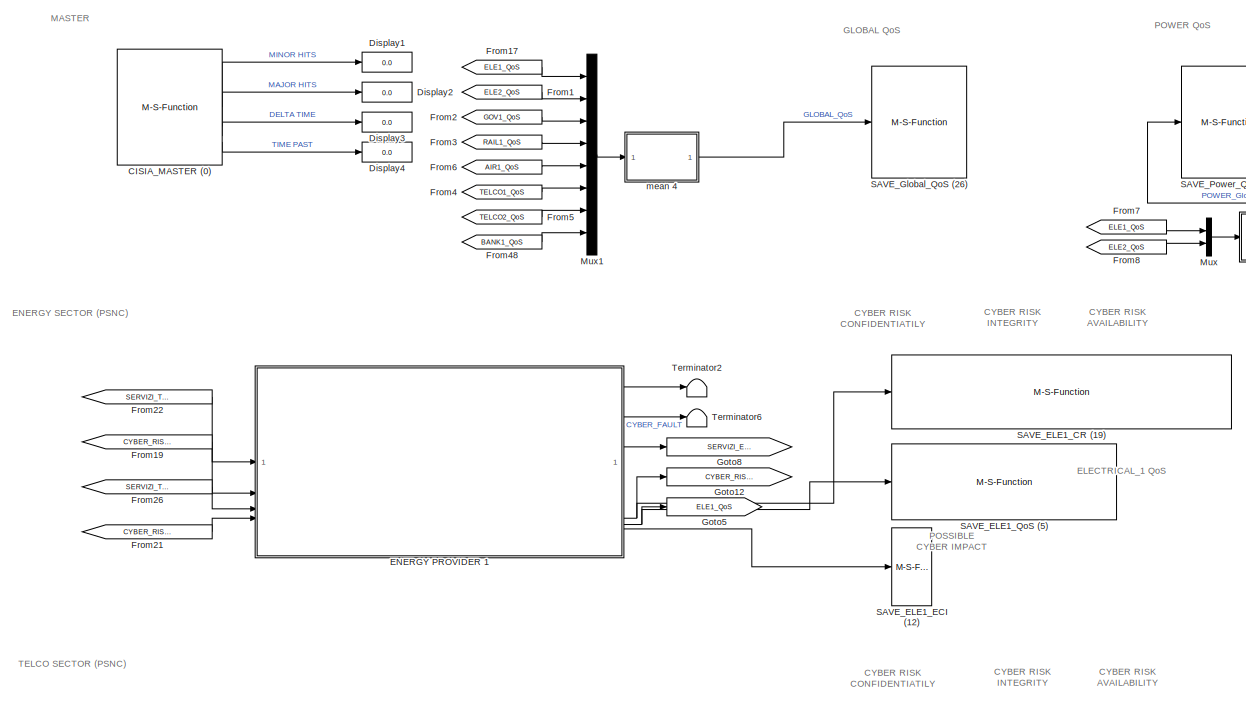
[diagram: root canvas - part 1/6, top left region]
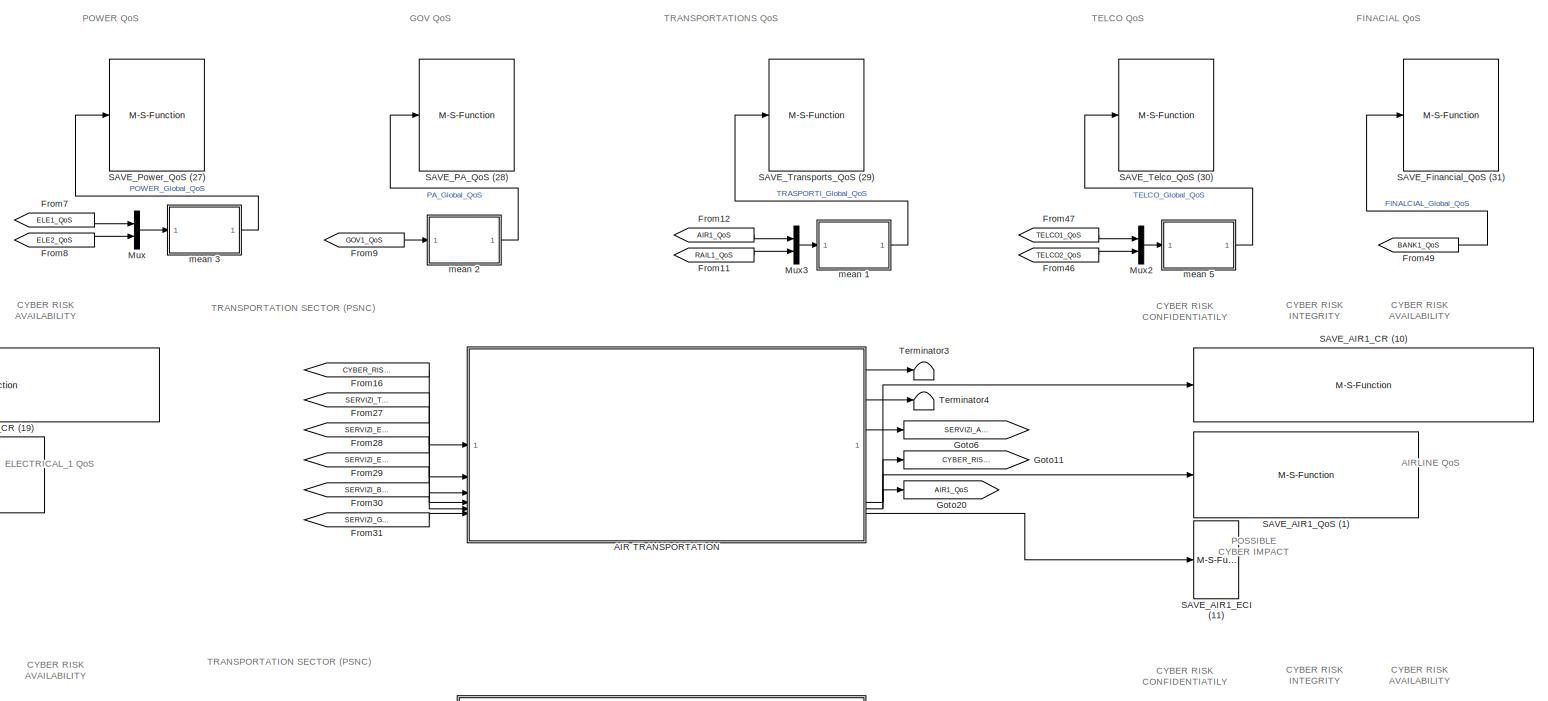
[diagram: root canvas - part 2/6, top right region]
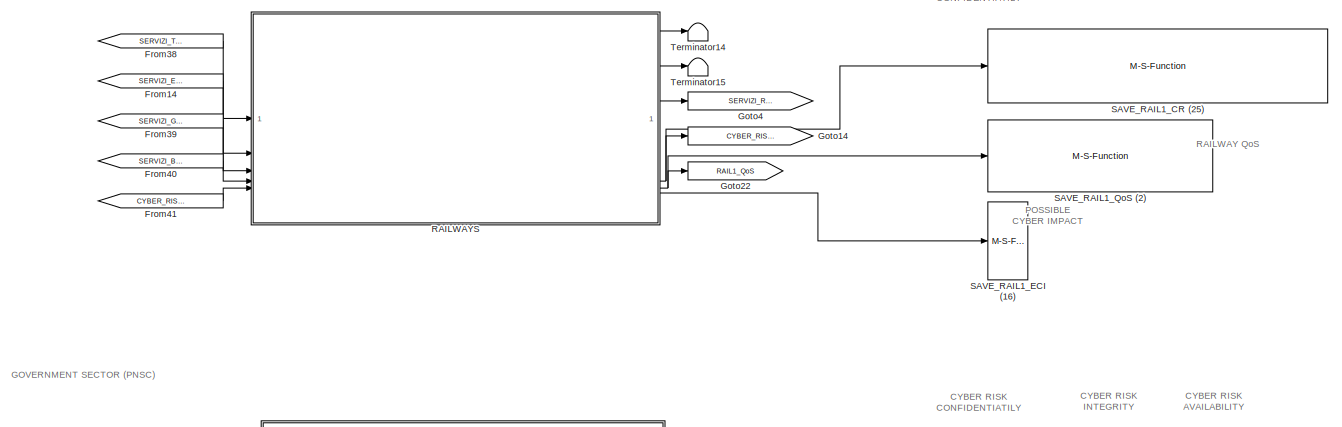
[diagram: root canvas - part 3/6, middle right region]
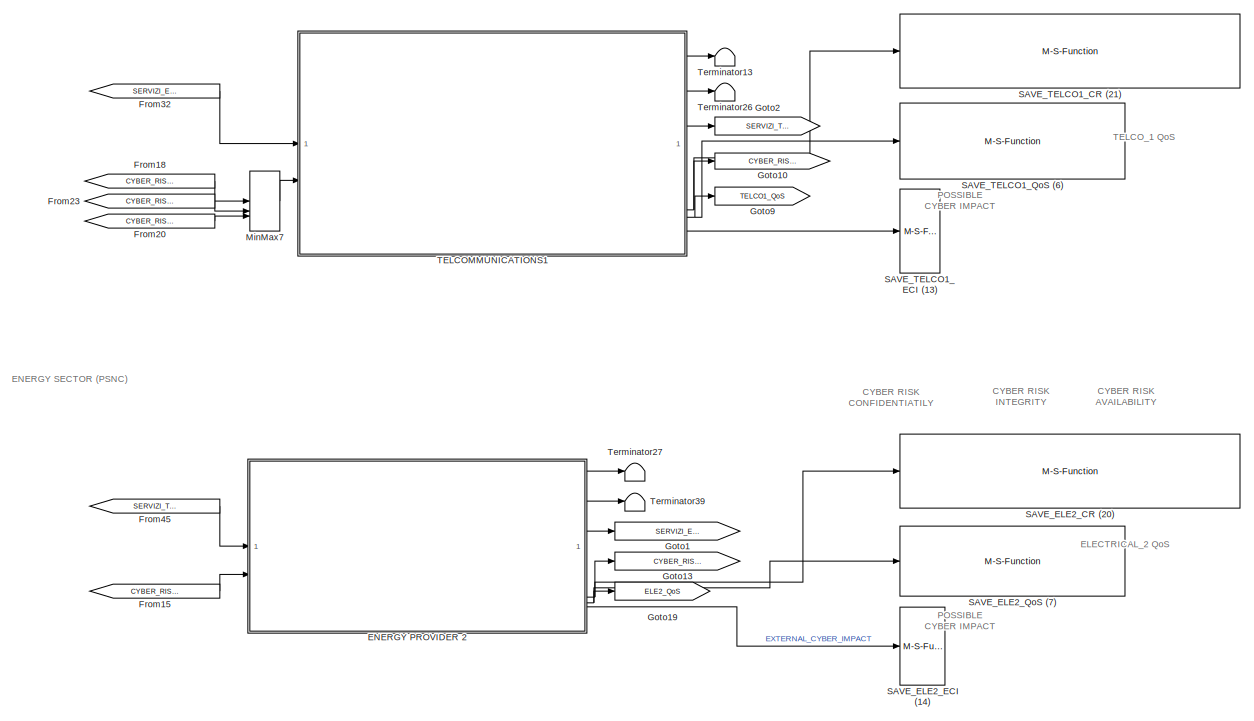
[diagram: root canvas - part 4/6, middle left region]
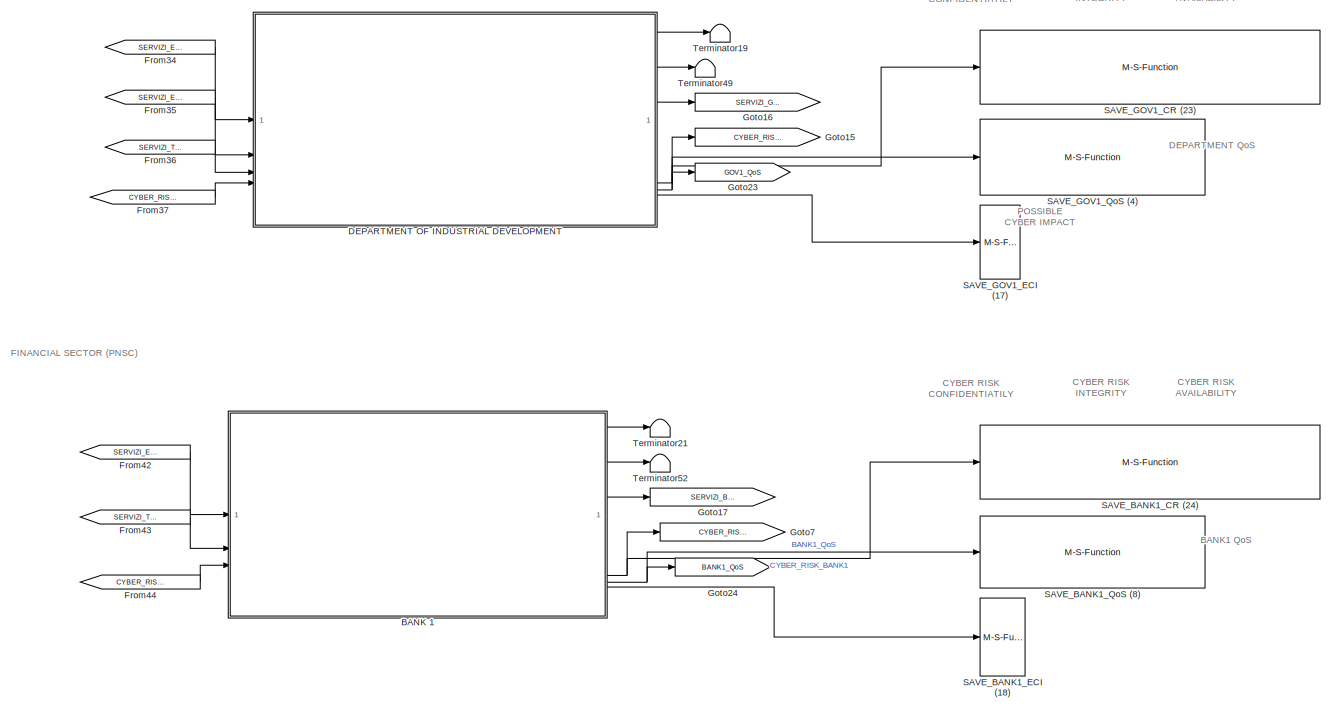
[diagram: root canvas - part 5/6, bottom right region]
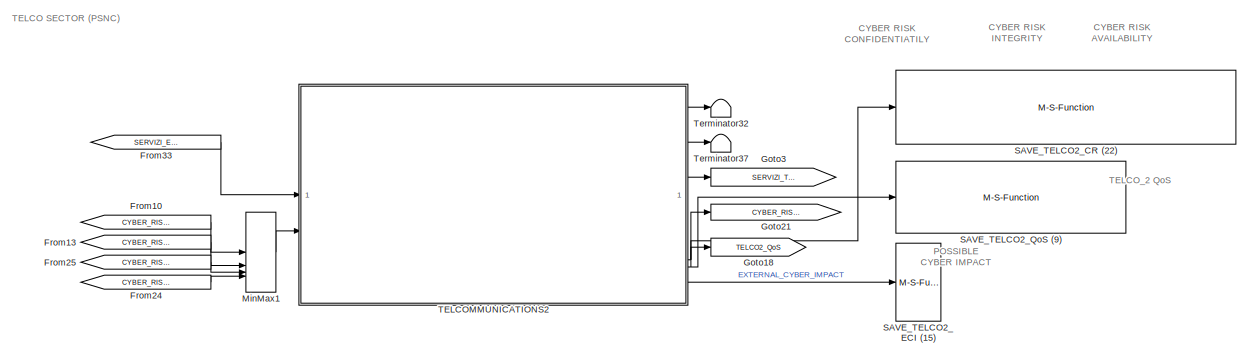
[diagram: root canvas - part 6/6, bottom left region]
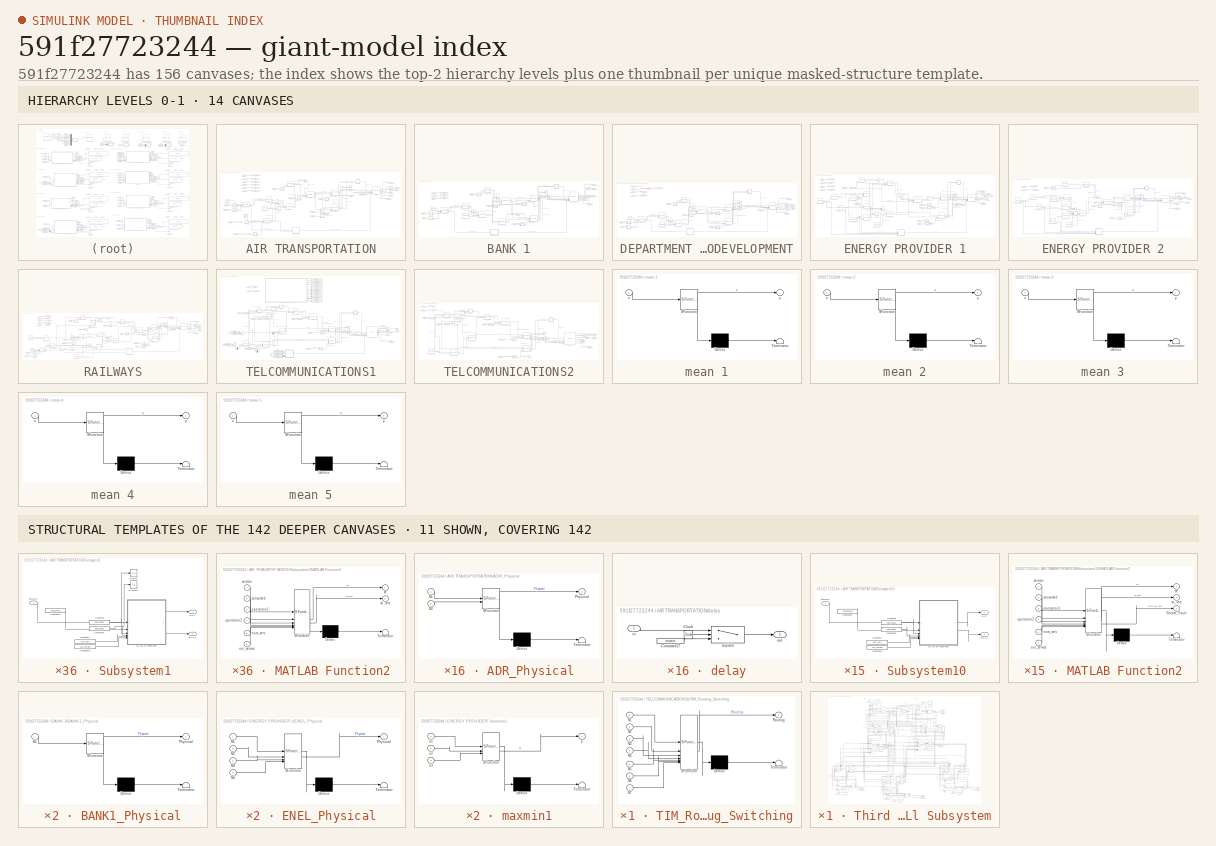
[diagram: thumbnail index - top-2 hierarchy levels (14 canvases) + 11 structural-template representatives of the remaining 142 canvases]
MODEL slx_591f27723244
KIND model
CONFIG AbsTol = auto
CONFIG EnableMultiTasking = off
CONFIG FixedStep = auto
CONFIG MaxStep = auto
CONFIG MinStep = auto
CONFIG RelTol = 1e-3
CONFIG SampleTimeConstraint = Unconstrained
CONFIG SolverName = VariableStepAuto
CONFIG StartTime = 0.0
CONFIG StopTime = 4
BLOCK [SubSystem] AIR TRANSPORTATION
BLOCK [M-S-Function] AIR TRANSPORTATION/ADR_Aeroporto_CIA (512)
  FunctionName = cisia_msfun
  Parameters = Parameter1, Parameter2, Parameter3, resources, Parameter10, codeupdate, step_received, step_computed, dynamic_computed, step_sended, id_entity, id_project, id_type, name_type, color
BLOCK [M-S-Function] AIR TRANSPORTATION/ADR_Aeroporto_FCO (399)
  FunctionName = cisia_msfun
  Parameters = Parameter1, Parameter2, Parameter3, resources, Parameter10, codeupdate, step_received, step_computed, dynamic_computed, step_sended, id_entity, id_project, id_type, name_type, color
BLOCK [M-S-Function] AIR TRANSPORTATION/ADR_BeneICT_1 (505)
  FunctionName = cisia_msfun
  Parameters = Parameter1, Parameter2, Parameter3, resources, Parameter10, codeupdate, step_received, step_computed, dynamic_computed, step_sended, id_entity, id_project, id_type, name_type, color
BLOCK [M-S-Function] AIR TRANSPORTATION/ADR_BeneICT_2 (506)
  FunctionName = cisia_msfun
  Parameters = Parameter1, Parameter2, Parameter3, resources, Parameter10, codeupdate, step_received, step_computed, dynamic_computed, step_sended, id_entity, id_project, id_type, name_type, color
BLOCK [M-S-Function] AIR TRANSPORTATION/ADR_Nodo_1 (511)
  FunctionName = cisia_msfun
  Parameters = Parameter1, Parameter2, Parameter3, resources, Parameter10, codeupdate, step_received, step_computed, dynamic_computed, step_sended, id_entity, id_project, id_type, name_type, color
BLOCK [SubSystem] AIR TRANSPORTATION/ADR_Physical
  ErrorFcn = Stateflow.Translate.translate
  LibrarySourceBlock = simulink/User-Defined\nFunctions/MATLAB Function
  PermitHierarchicalResolution = ExplicitOnly
  SFBlockType = MATLAB Function
  TreatAsAtomicUnit = on
BLOCK [Demux] AIR TRANSPORTATION/ADR_Physical/ Demux 
  Outputs = 1
BLOCK [S-Function] AIR TRANSPORTATION/ADR_Physical/ SFunction 
  EnableBusSupport = on
  FunctionName = sf_sfun
  PortCounts = [2 2]
  SFcnIsStateOwnerBlock = off
  SFunctionDeploymentMode = off
  Tag = Stateflow S-Function 10
BLOCK [Terminator] AIR TRANSPORTATION/ADR_Physical/ Terminator 
BLOCK [Inport] AIR TRANSPORTATION/ADR_Physical/N1
BLOCK [Inport] AIR TRANSPORTATION/ADR_Physical/N2
  Port = 2
BLOCK [Outport] AIR TRANSPORTATION/ADR_Physical/Physical
BLOCK [M-S-Function] AIR TRANSPORTATION/ADR_Rete_1 (509)
  FunctionName = cisia_msfun
  Parameters = Parameter1, Parameter2, Parameter3, resources, Parameter10, codeupdate, step_received, step_computed, dynamic_computed, step_sended, id_entity, id_project, id_type, name_type, color
BLOCK [M-S-Function] AIR TRANSPORTATION/ADR_Rete_2 (510)
  FunctionName = cisia_msfun
  Parameters = Parameter1, Parameter2, Parameter3, resources, Parameter10, codeupdate, step_received, step_computed, dynamic_computed, step_sended, id_entity, id_project, id_type, name_type, color
BLOCK [M-S-Function] AIR TRANSPORTATION/ADR_Serv_Informatico_1 (507)
  FunctionName = cisia_msfun
  Parameters = Parameter1, Parameter2, Parameter3, resources, Parameter10, codeupdate, step_received, step_computed, dynamic_computed, step_sended, id_entity, id_project, id_type, name_type, color
BLOCK [M-S-Function] AIR TRANSPORTATION/ADR_Sist_Informativi_1 (508)
  FunctionName = cisia_msfun
  Parameters = Parameter1, Parameter2, Parameter3, resources, Parameter10, codeupdate, step_received, step_computed, dynamic_computed, step_sended, id_entity, id_project, id_type, name_type, color
BLOCK [Outport] AIR TRANSPORTATION/AIR1_QoS
  Port = 5
BLOCK [M-S-Function] AIR TRANSPORTATION/AIR1_org (545)
  FunctionName = cisia_msfun
  Parameters = Parameter1, Parameter2, Parameter3, resources, Parameter10, codeupdate, step_received, step_computed, dynamic_computed, step_sended, id_entity, id_project, id_type, name_type, color
BLOCK [M-S-Function] AIR TRANSPORTATION/CIA_pers (513)
  FunctionName = cisia_msfun
  Parameters = Parameter1, Parameter2, Parameter3, resources, Parameter10, codeupdate, step_received, step_computed, dynamic_computed, step_sended, id_entity, id_project, id_type, name_type, color
BLOCK [Outport] AIR TRANSPORTATION/CYBER_FAULT
BLOCK [Outport] AIR TRANSPORTATION/CYBER_RISK_AIR1
  Port = 4
BLOCK [Inport] AIR TRANSPORTATION/CYBER_RISK_TELCO1
BLOCK [Outport] AIR TRANSPORTATION/EXTERNAL_CYBER_IMPACT
  Port = 6
BLOCK [M-S-Function] AIR TRANSPORTATION/FCO_pers (383)
  FunctionName = cisia_msfun
  Parameters = Parameter1, Parameter2, Parameter3, resources, Parameter10, codeupdate, step_received, step_computed, dynamic_computed, step_sended, id_entity, id_project, id_type, name_type, color
BLOCK [Outport] AIR TRANSPORTATION/FUNZIONI_AIR1
  Port = 2
BLOCK [From] AIR TRANSPORTATION/From
  GotoTag = SERVIZI_TELCO1
BLOCK [From] AIR TRANSPORTATION/From1
  GotoTag = SERVIZI_TELCO1
BLOCK [From] AIR TRANSPORTATION/From2
  GotoTag = SERVIZI_ELE1
BLOCK [From] AIR TRANSPORTATION/From3
  GotoTag = SERVIZI_ELE1
BLOCK [From] AIR TRANSPORTATION/From4
  GotoTag = SERVIZI_ELE1
BLOCK [From] AIR TRANSPORTATION/From5
  GotoTag = SERVIZI_TELCO1
BLOCK [From] AIR TRANSPORTATION/From6
  GotoTag = SERVIZI_ELE2
BLOCK [From] AIR TRANSPORTATION/From7
  GotoTag = SERVIZI_TELCO1
BLOCK [From] AIR TRANSPORTATION/From8
  GotoTag = SERVIZI_BANK1
BLOCK [From] AIR TRANSPORTATION/From9
  GotoTag = CYBER_RISK_TELCO1
BLOCK [Goto] AIR TRANSPORTATION/Goto
  GotoTag = CYBER_RISK_TELCO1
BLOCK [Goto] AIR TRANSPORTATION/Goto1
  GotoTag = SERVIZI_BANK1
BLOCK [Goto] AIR TRANSPORTATION/Goto2
  GotoTag = SERVIZI_TELCO1
BLOCK [Goto] AIR TRANSPORTATION/Goto3
  GotoTag = SERVIZI_ELE1
BLOCK [Goto] AIR TRANSPORTATION/Goto4
  GotoTag = SERVIZI_ELE2
BLOCK [Goto] AIR TRANSPORTATION/Goto5
  Commented = on
  GotoTag = SERVIZI_GOV1
BLOCK [MinMax] AIR TRANSPORTATION/MinMax2
  Function = max
  Inputs = 2
BLOCK [MinMax] AIR TRANSPORTATION/MinMax3
  Function = max
  Inputs = 2
BLOCK [MinMax] AIR TRANSPORTATION/MinMax4
  Function = max
  Inputs = 2
BLOCK [MinMax] AIR TRANSPORTATION/MinMax6
  Function = max
  Inputs = 2
BLOCK [MinMax] AIR TRANSPORTATION/MinMax7
  Function = max
  Inputs = 3
BLOCK [MinMax] AIR TRANSPORTATION/MinMax8
  Function = max
  Inputs = 2
BLOCK [Outport] AIR TRANSPORTATION/SERVIZI_AIR1
  Port = 3
BLOCK [Inport] AIR TRANSPORTATION/SERVIZI_BANK1
  Port = 5
BLOCK [Inport] AIR TRANSPORTATION/SERVIZI_ELE1
  Port = 3
BLOCK [Inport] AIR TRANSPORTATION/SERVIZI_ELE2
  Port = 4
BLOCK [Inport] AIR TRANSPORTATION/SERVIZI_GOV1
  Port = 6
BLOCK [Inport] AIR TRANSPORTATION/SERVIZI_TELCO1
  Port = 2
BLOCK [SubSystem] AIR TRANSPORTATION/Subsystem1
BLOCK [Constant] AIR TRANSPORTATION/Subsystem1/Constant
  Value = operation1
BLOCK [Constant] AIR TRANSPORTATION/Subsystem1/Constant2
  Value = consumed1
BLOCK [Constant] AIR TRANSPORTATION/Subsystem1/Constant6
  Value = operation2
BLOCK [Constant] AIR TRANSPORTATION/Subsystem1/Constant7
  Value = num_serv
BLOCK [Constant] AIR TRANSPORTATION/Subsystem1/Constant9
  Value = out_service
BLOCK [Display] AIR TRANSPORTATION/Subsystem1/Display
  Decimation = 1
BLOCK [Display] AIR TRANSPORTATION/Subsystem1/Display1
  Decimation = 1
BLOCK [Outport] AIR TRANSPORTATION/Subsystem1/EXT
BLOCK [Outport] AIR TRANSPORTATION/Subsystem1/EXT_V
  Port = 2
BLOCK [SubSystem] AIR TRANSPORTATION/Subsystem1/MATLAB Function2
  ErrorFcn = Stateflow.Translate.translate
  LibrarySourceBlock = simulink/User-Defined\nFunctions/MATLAB Function
  PermitHierarchicalResolution = ExplicitOnly
  SFBlockType = MATLAB Function
  TreatAsAtomicUnit = on
BLOCK [Demux] AIR TRANSPORTATION/Subsystem1/MATLAB Function2/ Demux 
  Outputs = 1
BLOCK [S-Function] AIR TRANSPORTATION/Subsystem1/MATLAB Function2/ SFunction 
  EnableBusSupport = on
  FunctionName = sf_sfun
  PortCounts = [6 3]
  SFcnIsStateOwnerBlock = off
  SFunctionDeploymentMode = off
  Tag = Stateflow S-Function 25
BLOCK [Terminator] AIR TRANSPORTATION/Subsystem1/MATLAB Function2/ Terminator 
BLOCK [Inport] AIR TRANSPORTATION/Subsystem1/MATLAB Function2/consumed
  Port = 2
BLOCK [Inport] AIR TRANSPORTATION/Subsystem1/MATLAB Function2/num_serv
  Port = 5
BLOCK [Inport] AIR TRANSPORTATION/Subsystem1/MATLAB Function2/operation1
  Port = 3
BLOCK [Inport] AIR TRANSPORTATION/Subsystem1/MATLAB Function2/operation2
  Port = 4
BLOCK [Inport] AIR TRANSPORTATION/Subsystem1/MATLAB Function2/out_service
  Port = 6
BLOCK [Outport] AIR TRANSPORTATION/Subsystem1/MATLAB Function2/se
BLOCK [Outport] AIR TRANSPORTATION/Subsystem1/MATLAB Function2/se_vect
  Port = 2
BLOCK [Inport] AIR TRANSPORTATION/Subsystem1/MATLAB Function2/servizio
BLOCK [Inport] AIR TRANSPORTATION/Subsystem1/servizio
BLOCK [SubSystem] AIR TRANSPORTATION/Subsystem10
BLOCK [Constant] AIR TRANSPORTATION/Subsystem10/Constant
  Value = operation1
BLOCK [Constant] AIR TRANSPORTATION/Subsystem10/Constant2
  Value = consumed1
BLOCK [Constant] AIR TRANSPORTATION/Subsystem10/Constant6
  Value = operation2
BLOCK [Constant] AIR TRANSPORTATION/Subsystem10/Constant7
  Value = num_serv
BLOCK [Constant] AIR TRANSPORTATION/Subsystem10/Constant9
  Value = out_service
BLOCK [Outport] AIR TRANSPORTATION/Subsystem10/EXT
BLOCK [Outport] AIR TRANSPORTATION/Subsystem10/EXT_V
  Port = 2
BLOCK [SubSystem] AIR TRANSPORTATION/Subsystem10/MATLAB Function2
  ErrorFcn = Stateflow.Translate.translate
  LibrarySourceBlock = simulink/User-Defined\nFunctions/MATLAB Function
  PermitHierarchicalResolution = ExplicitOnly
  SFBlockType = MATLAB Function
  TreatAsAtomicUnit = on
BLOCK [Demux] AIR TRANSPORTATION/Subsystem10/MATLAB Function2/ Demux 
  Outputs = 1
BLOCK [S-Function] AIR TRANSPORTATION/Subsystem10/MATLAB Function2/ SFunction 
  EnableBusSupport = on
  FunctionName = sf_sfun
  PortCounts = [6 4]
  SFcnIsStateOwnerBlock = off
  SFunctionDeploymentMode = off
  Tag = Stateflow S-Function 20
BLOCK [Terminator] AIR TRANSPORTATION/Subsystem10/MATLAB Function2/ Terminator 
BLOCK [Outport] AIR TRANSPORTATION/Subsystem10/MATLAB Function2/Service_Fault
  Port = 3
BLOCK [Inport] AIR TRANSPORTATION/Subsystem10/MATLAB Function2/consumed
  Port = 2
BLOCK [Inport] AIR TRANSPORTATION/Subsystem10/MATLAB Function2/num_serv
  Port = 5
BLOCK [Inport] AIR TRANSPORTATION/Subsystem10/MATLAB Function2/operation1
  Port = 3
BLOCK [Inport] AIR TRANSPORTATION/Subsystem10/MATLAB Function2/operation2
  Port = 4
BLOCK [Inport] AIR TRANSPORTATION/Subsystem10/MATLAB Function2/out_service
  Port = 6
BLOCK [Outport] AIR TRANSPORTATION/Subsystem10/MATLAB Function2/se
BLOCK [Outport] AIR TRANSPORTATION/Subsystem10/MATLAB Function2/se_vect
  Port = 2
BLOCK [Inport] AIR TRANSPORTATION/Subsystem10/MATLAB Function2/servizio
BLOCK [Inport] AIR TRANSPORTATION/Subsystem10/servizio
BLOCK [SubSystem] AIR TRANSPORTATION/Subsystem3
BLOCK [Constant] AIR TRANSPORTATION/Subsystem3/Constant
  Value = operation1
BLOCK [Constant] AIR TRANSPORTATION/Subsystem3/Constant2
  Value = consumed1
BLOCK [Constant] AIR TRANSPORTATION/Subsystem3/Constant6
  Value = operation2
BLOCK [Constant] AIR TRANSPORTATION/Subsystem3/Constant7
  Value = num_serv
BLOCK [Constant] AIR TRANSPORTATION/Subsystem3/Constant9
  Value = out_service
BLOCK [Display] AIR TRANSPORTATION/Subsystem3/Display
  Decimation = 1
BLOCK [Display] AIR TRANSPORTATION/Subsystem3/Display1
  Decimation = 1
BLOCK [Outport] AIR TRANSPORTATION/Subsystem3/EXT
BLOCK [Outport] AIR TRANSPORTATION/Subsystem3/EXT_V
  Port = 2
BLOCK [SubSystem] AIR TRANSPORTATION/Subsystem3/MATLAB Function2
  ErrorFcn = Stateflow.Translate.translate
  LibrarySourceBlock = simulink/User-Defined\nFunctions/MATLAB Function
  PermitHierarchicalResolution = ExplicitOnly
  SFBlockType = MATLAB Function
  TreatAsAtomicUnit = on
BLOCK [Demux] AIR TRANSPORTATION/Subsystem3/MATLAB Function2/ Demux 
  Outputs = 1
BLOCK [S-Function] AIR TRANSPORTATION/Subsystem3/MATLAB Function2/ SFunction 
  EnableBusSupport = on
  FunctionName = sf_sfun
  PortCounts = [6 3]
  SFcnIsStateOwnerBlock = off
  SFunctionDeploymentMode = off
  Tag = Stateflow S-Function 24
BLOCK [Terminator] AIR TRANSPORTATION/Subsystem3/MATLAB Function2/ Terminator 
BLOCK [Inport] AIR TRANSPORTATION/Subsystem3/MATLAB Function2/consumed
  Port = 2
BLOCK [Inport] AIR TRANSPORTATION/Subsystem3/MATLAB Function2/num_serv
  Port = 5
BLOCK [Inport] AIR TRANSPORTATION/Subsystem3/MATLAB Function2/operation1
  Port = 3
BLOCK [Inport] AIR TRANSPORTATION/Subsystem3/MATLAB Function2/operation2
  Port = 4
BLOCK [Inport] AIR TRANSPORTATION/Subsystem3/MATLAB Function2/out_service
  Port = 6
BLOCK [Outport] AIR TRANSPORTATION/Subsystem3/MATLAB Function2/se
BLOCK [Outport] AIR TRANSPORTATION/Subsystem3/MATLAB Function2/se_vect
  Port = 2
BLOCK [Inport] AIR TRANSPORTATION/Subsystem3/MATLAB Function2/servizio
BLOCK [Inport] AIR TRANSPORTATION/Subsystem3/servizio
BLOCK [SubSystem] AIR TRANSPORTATION/Subsystem4
BLOCK [Constant] AIR TRANSPORTATION/Subsystem4/Constant
  Value = operation1
BLOCK [Constant] AIR TRANSPORTATION/Subsystem4/Constant2
  Value = consumed1
BLOCK [Constant] AIR TRANSPORTATION/Subsystem4/Constant6
  Value = operation2
BLOCK [Constant] AIR TRANSPORTATION/Subsystem4/Constant7
  Value = num_serv
BLOCK [Constant] AIR TRANSPORTATION/Subsystem4/Constant9
  Value = out_service
BLOCK [Display] AIR TRANSPORTATION/Subsystem4/Display
  Decimation = 1
BLOCK [Display] AIR TRANSPORTATION/Subsystem4/Display1
  Decimation = 1
BLOCK [Outport] AIR TRANSPORTATION/Subsystem4/EXT
BLOCK [Outport] AIR TRANSPORTATION/Subsystem4/EXT_V
  Port = 2
BLOCK [SubSystem] AIR TRANSPORTATION/Subsystem4/MATLAB Function2
  ErrorFcn = Stateflow.Translate.translate
  LibrarySourceBlock = simulink/User-Defined\nFunctions/MATLAB Function
  PermitHierarchicalResolution = ExplicitOnly
  SFBlockType = MATLAB Function
  TreatAsAtomicUnit = on
BLOCK [Demux] AIR TRANSPORTATION/Subsystem4/MATLAB Function2/ Demux 
  Outputs = 1
BLOCK [S-Function] AIR TRANSPORTATION/Subsystem4/MATLAB Function2/ SFunction 
  EnableBusSupport = on
  FunctionName = sf_sfun
  PortCounts = [6 3]
  SFcnIsStateOwnerBlock = off
  SFunctionDeploymentMode = off
  Tag = Stateflow S-Function 27
BLOCK [Terminator] AIR TRANSPORTATION/Subsystem4/MATLAB Function2/ Terminator 
BLOCK [Inport] AIR TRANSPORTATION/Subsystem4/MATLAB Function2/consumed
  Port = 2
BLOCK [Inport] AIR TRANSPORTATION/Subsystem4/MATLAB Function2/num_serv
  Port = 5
BLOCK [Inport] AIR TRANSPORTATION/Subsystem4/MATLAB Function2/operation1
  Port = 3
BLOCK [Inport] AIR TRANSPORTATION/Subsystem4/MATLAB Function2/operation2
  Port = 4
BLOCK [Inport] AIR TRANSPORTATION/Subsystem4/MATLAB Function2/out_service
  Port = 6
BLOCK [Outport] AIR TRANSPORTATION/Subsystem4/MATLAB Function2/se
BLOCK [Outport] AIR TRANSPORTATION/Subsystem4/MATLAB Function2/se_vect
  Port = 2
BLOCK [Inport] AIR TRANSPORTATION/Subsystem4/MATLAB Function2/servizio
BLOCK [Inport] AIR TRANSPORTATION/Subsystem4/servizio
BLOCK [SubSystem] AIR TRANSPORTATION/Subsystem5
BLOCK [Constant] AIR TRANSPORTATION/Subsystem5/Constant
  Value = operation1
BLOCK [Constant] AIR TRANSPORTATION/Subsystem5/Constant2
  Value = consumed1
BLOCK [Constant] AIR TRANSPORTATION/Subsystem5/Constant6
  Value = operation2
BLOCK [Constant] AIR TRANSPORTATION/Subsystem5/Constant7
  Value = num_serv
BLOCK [Constant] AIR TRANSPORTATION/Subsystem5/Constant9
  Value = out_service
BLOCK [Display] AIR TRANSPORTATION/Subsystem5/Display
  Decimation = 1
BLOCK [Display] AIR TRANSPORTATION/Subsystem5/Display1
  Decimation = 1
BLOCK [Outport] AIR TRANSPORTATION/Subsystem5/EXT
BLOCK [Outport] AIR TRANSPORTATION/Subsystem5/EXT_V
  Port = 2
BLOCK [SubSystem] AIR TRANSPORTATION/Subsystem5/MATLAB Function2
  ErrorFcn = Stateflow.Translate.translate
  LibrarySourceBlock = simulink/User-Defined\nFunctions/MATLAB Function
  PermitHierarchicalResolution = ExplicitOnly
  SFBlockType = MATLAB Function
  TreatAsAtomicUnit = on
BLOCK [Demux] AIR TRANSPORTATION/Subsystem5/MATLAB Function2/ Demux 
  Outputs = 1
BLOCK [S-Function] AIR TRANSPORTATION/Subsystem5/MATLAB Function2/ SFunction 
  EnableBusSupport = on
  FunctionName = sf_sfun
  PortCounts = [6 3]
  SFcnIsStateOwnerBlock = off
  SFunctionDeploymentMode = off
  Tag = Stateflow S-Function 28
BLOCK [Terminator] AIR TRANSPORTATION/Subsystem5/MATLAB Function2/ Terminator 
BLOCK [Inport] AIR TRANSPORTATION/Subsystem5/MATLAB Function2/consumed
  Port = 2
BLOCK [Inport] AIR TRANSPORTATION/Subsystem5/MATLAB Function2/num_serv
  Port = 5
BLOCK [Inport] AIR TRANSPORTATION/Subsystem5/MATLAB Function2/operation1
  Port = 3
BLOCK [Inport] AIR TRANSPORTATION/Subsystem5/MATLAB Function2/operation2
  Port = 4
BLOCK [Inport] AIR TRANSPORTATION/Subsystem5/MATLAB Function2/out_service
  Port = 6
BLOCK [Outport] AIR TRANSPORTATION/Subsystem5/MATLAB Function2/se
BLOCK [Outport] AIR TRANSPORTATION/Subsystem5/MATLAB Function2/se_vect
  Port = 2
BLOCK [Inport] AIR TRANSPORTATION/Subsystem5/MATLAB Function2/servizio
BLOCK [Inport] AIR TRANSPORTATION/Subsystem5/servizio
BLOCK [SubSystem] AIR TRANSPORTATION/Subsystem6
BLOCK [Constant] AIR TRANSPORTATION/Subsystem6/Constant
  Value = operation1
BLOCK [Constant] AIR TRANSPORTATION/Subsystem6/Constant2
  Value = consumed1
BLOCK [Constant] AIR TRANSPORTATION/Subsystem6/Constant6
  Value = operation2
BLOCK [Constant] AIR TRANSPORTATION/Subsystem6/Constant7
  Value = num_serv
BLOCK [Constant] AIR TRANSPORTATION/Subsystem6/Constant9
  Value = out_service
BLOCK [Display] AIR TRANSPORTATION/Subsystem6/Display
  Decimation = 1
BLOCK [Display] AIR TRANSPORTATION/Subsystem6/Display1
  Decimation = 1
BLOCK [Outport] AIR TRANSPORTATION/Subsystem6/EXT
BLOCK [Outport] AIR TRANSPORTATION/Subsystem6/EXT_V
  Port = 2
BLOCK [SubSystem] AIR TRANSPORTATION/Subsystem6/MATLAB Function2
  ErrorFcn = Stateflow.Translate.translate
  LibrarySourceBlock = simulink/User-Defined\nFunctions/MATLAB Function
  PermitHierarchicalResolution = ExplicitOnly
  SFBlockType = MATLAB Function
  TreatAsAtomicUnit = on
BLOCK [Demux] AIR TRANSPORTATION/Subsystem6/MATLAB Function2/ Demux 
  Outputs = 1
BLOCK [S-Function] AIR TRANSPORTATION/Subsystem6/MATLAB Function2/ SFunction 
  EnableBusSupport = on
  FunctionName = sf_sfun
  PortCounts = [6 3]
  SFcnIsStateOwnerBlock = off
  SFunctionDeploymentMode = off
  Tag = Stateflow S-Function 29
BLOCK [Terminator] AIR TRANSPORTATION/Subsystem6/MATLAB Function2/ Terminator 
BLOCK [Inport] AIR TRANSPORTATION/Subsystem6/MATLAB Function2/consumed
  Port = 2
BLOCK [Inport] AIR TRANSPORTATION/Subsystem6/MATLAB Function2/num_serv
  Port = 5
BLOCK [Inport] AIR TRANSPORTATION/Subsystem6/MATLAB Function2/operation1
  Port = 3
BLOCK [Inport] AIR TRANSPORTATION/Subsystem6/MATLAB Function2/operation2
  Port = 4
BLOCK [Inport] AIR TRANSPORTATION/Subsystem6/MATLAB Function2/out_service
  Port = 6
BLOCK [Outport] AIR TRANSPORTATION/Subsystem6/MATLAB Function2/se
BLOCK [Outport] AIR TRANSPORTATION/Subsystem6/MATLAB Function2/se_vect
  Port = 2
BLOCK [Inport] AIR TRANSPORTATION/Subsystem6/MATLAB Function2/servizio
BLOCK [Inport] AIR TRANSPORTATION/Subsystem6/servizio
BLOCK [SubSystem] AIR TRANSPORTATION/Subsystem7
BLOCK [Constant] AIR TRANSPORTATION/Subsystem7/Constant
  Value = operation1
BLOCK [Constant] AIR TRANSPORTATION/Subsystem7/Constant2
  Value = consumed1
BLOCK [Constant] AIR TRANSPORTATION/Subsystem7/Constant6
  Value = operation2
BLOCK [Constant] AIR TRANSPORTATION/Subsystem7/Constant7
  Value = num_serv
BLOCK [Constant] AIR TRANSPORTATION/Subsystem7/Constant9
  Value = out_service
BLOCK [Display] AIR TRANSPORTATION/Subsystem7/Display
  Decimation = 1
BLOCK [Display] AIR TRANSPORTATION/Subsystem7/Display1
  Decimation = 1
BLOCK [Outport] AIR TRANSPORTATION/Subsystem7/EXT
BLOCK [Outport] AIR TRANSPORTATION/Subsystem7/EXT_V
  Port = 2
BLOCK [SubSystem] AIR TRANSPORTATION/Subsystem7/MATLAB Function2
  ErrorFcn = Stateflow.Translate.translate
  LibrarySourceBlock = simulink/User-Defined\nFunctions/MATLAB Function
  PermitHierarchicalResolution = ExplicitOnly
  SFBlockType = MATLAB Function
  TreatAsAtomicUnit = on
BLOCK [Demux] AIR TRANSPORTATION/Subsystem7/MATLAB Function2/ Demux 
  Outputs = 1
BLOCK [S-Function] AIR TRANSPORTATION/Subsystem7/MATLAB Function2/ SFunction 
  EnableBusSupport = on
  FunctionName = sf_sfun
  PortCounts = [6 3]
  SFcnIsStateOwnerBlock = off
  SFunctionDeploymentMode = off
  Tag = Stateflow S-Function 30
BLOCK [Terminator] AIR TRANSPORTATION/Subsystem7/MATLAB Function2/ Terminator 
BLOCK [Inport] AIR TRANSPORTATION/Subsystem7/MATLAB Function2/consumed
  Port = 2
BLOCK [Inport] AIR TRANSPORTATION/Subsystem7/MATLAB Function2/num_serv
  Port = 5
BLOCK [Inport] AIR TRANSPORTATION/Subsystem7/MATLAB Function2/operation1
  Port = 3
BLOCK [Inport] AIR TRANSPORTATION/Subsystem7/MATLAB Function2/operation2
  Port = 4
BLOCK [Inport] AIR TRANSPORTATION/Subsystem7/MATLAB Function2/out_service
  Port = 6
BLOCK [Outport] AIR TRANSPORTATION/Subsystem7/MATLAB Function2/se
BLOCK [Outport] AIR TRANSPORTATION/Subsystem7/MATLAB Function2/se_vect
  Port = 2
BLOCK [Inport] AIR TRANSPORTATION/Subsystem7/MATLAB Function2/servizio
BLOCK [Inport] AIR TRANSPORTATION/Subsystem7/servizio
BLOCK [SubSystem] AIR TRANSPORTATION/Subsystem8
BLOCK [Constant] AIR TRANSPORTATION/Subsystem8/Constant
  Value = operation1
BLOCK [Constant] AIR TRANSPORTATION/Subsystem8/Constant2
  Value = consumed1
BLOCK [Constant] AIR TRANSPORTATION/Subsystem8/Constant6
  Value = operation2
BLOCK [Constant] AIR TRANSPORTATION/Subsystem8/Constant7
  Value = num_serv
BLOCK [Constant] AIR TRANSPORTATION/Subsystem8/Constant9
  Value = out_service
BLOCK [Display] AIR TRANSPORTATION/Subsystem8/Display
  Decimation = 1
BLOCK [Display] AIR TRANSPORTATION/Subsystem8/Display1
  Decimation = 1
BLOCK [Outport] AIR TRANSPORTATION/Subsystem8/EXT
BLOCK [Outport] AIR TRANSPORTATION/Subsystem8/EXT_V
  Port = 2
BLOCK [SubSystem] AIR TRANSPORTATION/Subsystem8/MATLAB Function2
  ErrorFcn = Stateflow.Translate.translate
  LibrarySourceBlock = simulink/User-Defined\nFunctions/MATLAB Function
  PermitHierarchicalResolution = ExplicitOnly
  SFBlockType = MATLAB Function
  TreatAsAtomicUnit = on
BLOCK [Demux] AIR TRANSPORTATION/Subsystem8/MATLAB Function2/ Demux 
  Outputs = 1
BLOCK [S-Function] AIR TRANSPORTATION/Subsystem8/MATLAB Function2/ SFunction 
  EnableBusSupport = on
  FunctionName = sf_sfun
  PortCounts = [6 3]
  SFcnIsStateOwnerBlock = off
  SFunctionDeploymentMode = off
  Tag = Stateflow S-Function 31
BLOCK [Terminator] AIR TRANSPORTATION/Subsystem8/MATLAB Function2/ Terminator 
BLOCK [Inport] AIR TRANSPORTATION/Subsystem8/MATLAB Function2/consumed
  Port = 2
BLOCK [Inport] AIR TRANSPORTATION/Subsystem8/MATLAB Function2/num_serv
  Port = 5
BLOCK [Inport] AIR TRANSPORTATION/Subsystem8/MATLAB Function2/operation1
  Port = 3
BLOCK [Inport] AIR TRANSPORTATION/Subsystem8/MATLAB Function2/operation2
  Port = 4
BLOCK [Inport] AIR TRANSPORTATION/Subsystem8/MATLAB Function2/out_service
  Port = 6
BLOCK [Outport] AIR TRANSPORTATION/Subsystem8/MATLAB Function2/se
BLOCK [Outport] AIR TRANSPORTATION/Subsystem8/MATLAB Function2/se_vect
  Port = 2
BLOCK [Inport] AIR TRANSPORTATION/Subsystem8/MATLAB Function2/servizio
BLOCK [Inport] AIR TRANSPORTATION/Subsystem8/servizio
BLOCK [SubSystem] AIR TRANSPORTATION/Subsystem9
BLOCK [Constant] AIR TRANSPORTATION/Subsystem9/Constant
  Value = operation1
BLOCK [Constant] AIR TRANSPORTATION/Subsystem9/Constant2
  Value = consumed1
BLOCK [Constant] AIR TRANSPORTATION/Subsystem9/Constant6
  Value = operation2
BLOCK [Constant] AIR TRANSPORTATION/Subsystem9/Constant7
  Value = num_serv
BLOCK [Constant] AIR TRANSPORTATION/Subsystem9/Constant9
  Value = out_service
BLOCK [Outport] AIR TRANSPORTATION/Subsystem9/EXT
BLOCK [Outport] AIR TRANSPORTATION/Subsystem9/EXT_V
  Port = 2
BLOCK [SubSystem] AIR TRANSPORTATION/Subsystem9/MATLAB Function2
  ErrorFcn = Stateflow.Translate.translate
  LibrarySourceBlock = simulink/User-Defined\nFunctions/MATLAB Function
  PermitHierarchicalResolution = ExplicitOnly
  SFBlockType = MATLAB Function
  TreatAsAtomicUnit = on
BLOCK [Demux] AIR TRANSPORTATION/Subsystem9/MATLAB Function2/ Demux 
  Outputs = 1
BLOCK [S-Function] AIR TRANSPORTATION/Subsystem9/MATLAB Function2/ SFunction 
  EnableBusSupport = on
  FunctionName = sf_sfun
  PortCounts = [6 4]
  SFcnIsStateOwnerBlock = off
  SFunctionDeploymentMode = off
  Tag = Stateflow S-Function 54
BLOCK [Terminator] AIR TRANSPORTATION/Subsystem9/MATLAB Function2/ Terminator 
BLOCK [Outport] AIR TRANSPORTATION/Subsystem9/MATLAB Function2/Service_Fault
  Port = 3
BLOCK [Inport] AIR TRANSPORTATION/Subsystem9/MATLAB Function2/consumed
  Port = 2
BLOCK [Inport] AIR TRANSPORTATION/Subsystem9/MATLAB Function2/num_serv
  Port = 5
BLOCK [Inport] AIR TRANSPORTATION/Subsystem9/MATLAB Function2/operation1
  Port = 3
BLOCK [Inport] AIR TRANSPORTATION/Subsystem9/MATLAB Function2/operation2
  Port = 4
BLOCK [Inport] AIR TRANSPORTATION/Subsystem9/MATLAB Function2/out_service
  Port = 6
BLOCK [Outport] AIR TRANSPORTATION/Subsystem9/MATLAB Function2/se
BLOCK [Outport] AIR TRANSPORTATION/Subsystem9/MATLAB Function2/se_vect
  Port = 2
BLOCK [Inport] AIR TRANSPORTATION/Subsystem9/MATLAB Function2/servizio
BLOCK [Inport] AIR TRANSPORTATION/Subsystem9/servizio
BLOCK [SubSystem] AIR TRANSPORTATION/delay
BLOCK [Clock] AIR TRANSPORTATION/delay/Clock
BLOCK [Constant] AIR TRANSPORTATION/delay/Constant17
  Value = output
BLOCK [Switch] AIR TRANSPORTATION/delay/Switch
  Criteria = u2 > Threshold
  InputSameDT = off
  SaturateOnIntegerOverflow = off
  Threshold = delay
BLOCK [Inport] AIR TRANSPORTATION/delay/in
BLOCK [Outport] AIR TRANSPORTATION/delay/out
BLOCK [SubSystem] AIR TRANSPORTATION/delay1
BLOCK [Clock] AIR TRANSPORTATION/delay1/Clock
BLOCK [Constant] AIR TRANSPORTATION/delay1/Constant17
  Value = output
BLOCK [Switch] AIR TRANSPORTATION/delay1/Switch
  Criteria = u2 > Threshold
  InputSameDT = off
  SaturateOnIntegerOverflow = off
  Threshold = delay
BLOCK [Inport] AIR TRANSPORTATION/delay1/in
BLOCK [Outport] AIR TRANSPORTATION/delay1/out
BLOCK [SubSystem] AIR TRANSPORTATION/maxmin
  ErrorFcn = Stateflow.Translate.translate
  PermitHierarchicalResolution = ExplicitOnly
  SFBlockType = MATLAB Function
  TreatAsAtomicUnit = on
BLOCK [Demux] AIR TRANSPORTATION/maxmin/ Demux 
  Outputs = 1
BLOCK [S-Function] AIR TRANSPORTATION/maxmin/ SFunction 
  EnableBusSupport = on
  FunctionName = sf_sfun
  PortCounts = [2 2]
  SFcnIsStateOwnerBlock = off
  SFunctionDeploymentMode = off
  Tag = Stateflow S-Function 67
BLOCK [Terminator] AIR TRANSPORTATION/maxmin/ Terminator 
BLOCK [Inport] AIR TRANSPORTATION/maxmin/u1
BLOCK [Inport] AIR TRANSPORTATION/maxmin/u2
  Port = 2
BLOCK [Outport] AIR TRANSPORTATION/maxmin/y
BLOCK [SubSystem] AIR TRANSPORTATION/maxmin1
  ErrorFcn = Stateflow.Translate.translate
  PermitHierarchicalResolution = ExplicitOnly
  SFBlockType = MATLAB Function
  TreatAsAtomicUnit = on
BLOCK [Demux] AIR TRANSPORTATION/maxmin1/ Demux 
  Outputs = 1
BLOCK [S-Function] AIR TRANSPORTATION/maxmin1/ SFunction 
  EnableBusSupport = on
  FunctionName = sf_sfun
  PortCounts = [2 2]
  SFcnIsStateOwnerBlock = off
  SFunctionDeploymentMode = off
  Tag = Stateflow S-Function 65
BLOCK [Terminator] AIR TRANSPORTATION/maxmin1/ Terminator 
BLOCK [Inport] AIR TRANSPORTATION/maxmin1/u1
BLOCK [Inport] AIR TRANSPORTATION/maxmin1/u2
  Port = 2
BLOCK [Outport] AIR TRANSPORTATION/maxmin1/y
BLOCK [SubSystem] BANK 1
BLOCK [M-S-Function] BANK 1/BANK1_BeneICT_1 (526)
  FunctionName = cisia_msfun
  Parameters = Parameter1, Parameter2, Parameter3, resources, Parameter10, codeupdate, step_received, step_computed, dynamic_computed, step_sended, id_entity, id_project, id_type, name_type, color
BLOCK [M-S-Function] BANK 1/BANK1_BeneICT_2 (527)
  FunctionName = cisia_msfun
  Parameters = Parameter1, Parameter2, Parameter3, resources, Parameter10, codeupdate, step_received, step_computed, dynamic_computed, step_sended, id_entity, id_project, id_type, name_type, color
BLOCK [M-S-Function] BANK 1/BANK1_Nodo_1 (529)
  FunctionName = cisia_msfun
  Parameters = Parameter1, Parameter2, Parameter3, resources, Parameter10, codeupdate, step_received, step_computed, dynamic_computed, step_sended, id_entity, id_project, id_type, name_type, color
BLOCK [M-S-Function] BANK 1/BANK1_Palazzina_1 (521)
  FunctionName = cisia_msfun
  Parameters = Parameter1, Parameter2, Parameter3, resources, Parameter10, codeupdate, step_received, step_computed, dynamic_computed, step_sended, id_entity, id_project, id_type, name_type, color
BLOCK [SubSystem] BANK 1/BANK1_Physical
  ErrorFcn = Stateflow.Translate.translate
  LibrarySourceBlock = simulink/User-Defined\nFunctions/MATLAB Function
  PermitHierarchicalResolution = ExplicitOnly
  SFBlockType = MATLAB Function
  TreatAsAtomicUnit = on
BLOCK [Demux] BANK 1/BANK1_Physical/ Demux 
  Outputs = 1
BLOCK [S-Function] BANK 1/BANK1_Physical/ SFunction 
  EnableBusSupport = on
  FunctionName = sf_sfun
  PortCounts = [1 2]
  SFcnIsStateOwnerBlock = off
  SFunctionDeploymentMode = off
  Tag = Stateflow S-Function 11
BLOCK [Terminator] BANK 1/BANK1_Physical/ Terminator 
BLOCK [Inport] BANK 1/BANK1_Physical/N1
BLOCK [Outport] BANK 1/BANK1_Physical/Physical
BLOCK [Outport] BANK 1/BANK1_QoS
  Port = 5
BLOCK [M-S-Function] BANK 1/BANK1_Rete_1 (524)
  FunctionName = cisia_msfun
  Parameters = Parameter1, Parameter2, Parameter3, resources, Parameter10, codeupdate, step_received, step_computed, dynamic_computed, step_sended, id_entity, id_project, id_type, name_type, color
BLOCK [M-S-Function] BANK 1/BANK1_Rete_2 (525)
  FunctionName = cisia_msfun
  Parameters = Parameter1, Parameter2, Parameter3, resources, Parameter10, codeupdate, step_received, step_computed, dynamic_computed, step_sended, id_entity, id_project, id_type, name_type, color
BLOCK [M-S-Function] BANK 1/BANK1_Rete_3 (531)
  FunctionName = cisia_msfun
  Parameters = Parameter1, Parameter2, Parameter3, resources, Parameter10, codeupdate, step_received, step_computed, dynamic_computed, step_sended, id_entity, id_project, id_type, name_type, color
BLOCK [M-S-Function] BANK 1/BANK1_Serv_Informatico_1 (522)
  FunctionName = cisia_msfun
  Parameters = Parameter1, Parameter2, Parameter3, resources, Parameter10, codeupdate, step_received, step_computed, dynamic_computed, step_sended, id_entity, id_project, id_type, name_type, color
BLOCK [M-S-Function] BANK 1/BANK1_Sist_Informativo_1 (523)
  FunctionName = cisia_msfun
  Parameters = Parameter1, Parameter2, Parameter3, resources, Parameter10, codeupdate, step_received, step_computed, dynamic_computed, step_sended, id_entity, id_project, id_type, name_type, color
BLOCK [M-S-Function] BANK 1/BANK1_pers (530)
  FunctionName = cisia_msfun
  Parameters = Parameter1, Parameter2, Parameter3, resources, Parameter10, codeupdate, step_received, step_computed, dynamic_computed, step_sended, id_entity, id_project, id_type, name_type, color
BLOCK [M-S-Function] BANK 1/BANK1a_org (548)
  FunctionName = cisia_msfun
  Parameters = Parameter1, Parameter2, Parameter3, resources, Parameter10, codeupdate, step_received, step_computed, dynamic_computed, step_sended, id_entity, id_project, id_type, name_type, color
BLOCK [Outport] BANK 1/CYBER_FAULT
BLOCK [Outport] BANK 1/CYBER_RISK
  Port = 4
BLOCK [Inport] BANK 1/CYBER_RISK_TELCO1
  Port = 3
BLOCK [Outport] BANK 1/EXTERNAL_CYBER_IMPACT
  Port = 6
BLOCK [Outport] BANK 1/FUNZIONI_BANK1
  Port = 2
BLOCK [From] BANK 1/From
  GotoTag = SERVIZI_TELCO1
BLOCK [From] BANK 1/From1
  GotoTag = SERVIZI_TELCO1
BLOCK [From] BANK 1/From2
  GotoTag = SERVIZI_ELE1
BLOCK [From] BANK 1/From3
  GotoTag = CYBER_RISK
BLOCK [From] BANK 1/From4
  GotoTag = SERVIZI_ELE1
BLOCK [From] BANK 1/From5
  GotoTag = SERVIZI_ELE1
BLOCK [From] BANK 1/From6
  GotoTag = SERVIZI_TELCO1
BLOCK [Goto] BANK 1/Goto1
  GotoTag = SERVIZI_TELCO1
BLOCK [Goto] BANK 1/Goto2
  GotoTag = SERVIZI_ELE1
BLOCK [Goto] BANK 1/Goto3
  GotoTag = CYBER_RISK
BLOCK [MinMax] BANK 1/MinMax1
  Function = max
  Inputs = 2
BLOCK [MinMax] BANK 1/MinMax2
  Function = max
  Inputs = 2
BLOCK [MinMax] BANK 1/MinMax3
  Function = max
  Inputs = 2
BLOCK [MinMax] BANK 1/MinMax4
  Function = max
  Inputs = 2
BLOCK [MinMax] BANK 1/MinMax5
  Function = max
  Inputs = 2
BLOCK [MinMax] BANK 1/MinMax8
  Function = max
  Inputs = 2
BLOCK [Outport] BANK 1/SERVIZI_BANK1
  Port = 3
BLOCK [Inport] BANK 1/SERVIZI_ELE1
BLOCK [Inport] BANK 1/SERVIZI_TELCO1
  Port = 2
BLOCK [SubSystem] BANK 1/Subsystem1
BLOCK [Constant] BANK 1/Subsystem1/Constant
  Value = operation1
BLOCK [Constant] BANK 1/Subsystem1/Constant2
  Value = consumed1
BLOCK [Constant] BANK 1/Subsystem1/Constant6
  Value = operation2
BLOCK [Constant] BANK 1/Subsystem1/Constant7
  Value = num_serv
BLOCK [Constant] BANK 1/Subsystem1/Constant9
  Value = out_service
BLOCK [Display] BANK 1/Subsystem1/Display
  Decimation = 1
BLOCK [Display] BANK 1/Subsystem1/Display1
  Decimation = 1
BLOCK [Outport] BANK 1/Subsystem1/EXT
BLOCK [Outport] BANK 1/Subsystem1/EXT_V
  Port = 2
BLOCK [SubSystem] BANK 1/Subsystem1/MATLAB Function2
  ErrorFcn = Stateflow.Translate.translate
  LibrarySourceBlock = simulink/User-Defined\nFunctions/MATLAB Function
  PermitHierarchicalResolution = ExplicitOnly
  SFBlockType = MATLAB Function
  TreatAsAtomicUnit = on
BLOCK [Demux] BANK 1/Subsystem1/MATLAB Function2/ Demux 
  Outputs = 1
BLOCK [S-Function] BANK 1/Subsystem1/MATLAB Function2/ SFunction 
  EnableBusSupport = on
  FunctionName = sf_sfun
  PortCounts = [6 3]
  SFcnIsStateOwnerBlock = off
  SFunctionDeploymentMode = off
  Tag = Stateflow S-Function 48
BLOCK [Terminator] BANK 1/Subsystem1/MATLAB Function2/ Terminator 
BLOCK [Inport] BANK 1/Subsystem1/MATLAB Function2/consumed
  Port = 2
BLOCK [Inport] BANK 1/Subsystem1/MATLAB Function2/num_serv
  Port = 5
BLOCK [Inport] BANK 1/Subsystem1/MATLAB Function2/operation1
  Port = 3
BLOCK [Inport] BANK 1/Subsystem1/MATLAB Function2/operation2
  Port = 4
BLOCK [Inport] BANK 1/Subsystem1/MATLAB Function2/out_service
  Port = 6
BLOCK [Outport] BANK 1/Subsystem1/MATLAB Function2/se
BLOCK [Outport] BANK 1/Subsystem1/MATLAB Function2/se_vect
  Port = 2
BLOCK [Inport] BANK 1/Subsystem1/MATLAB Function2/servizio
BLOCK [Inport] BANK 1/Subsystem1/servizio
BLOCK [SubSystem] BANK 1/Subsystem2
BLOCK [Constant] BANK 1/Subsystem2/Constant
  Value = operation1
BLOCK [Constant] BANK 1/Subsystem2/Constant2
  Value = consumed1
BLOCK [Constant] BANK 1/Subsystem2/Constant6
  Value = operation2
BLOCK [Constant] BANK 1/Subsystem2/Constant7
  Value = num_serv
BLOCK [Constant] BANK 1/Subsystem2/Constant9
  Value = out_service
BLOCK [Display] BANK 1/Subsystem2/Display
  Decimation = 1
BLOCK [Display] BANK 1/Subsystem2/Display1
  Decimation = 1
BLOCK [Outport] BANK 1/Subsystem2/EXT
BLOCK [Outport] BANK 1/Subsystem2/EXT_V
  Port = 2
BLOCK [SubSystem] BANK 1/Subsystem2/MATLAB Function2
  ErrorFcn = Stateflow.Translate.translate
  LibrarySourceBlock = simulink/User-Defined\nFunctions/MATLAB Function
  PermitHierarchicalResolution = ExplicitOnly
  SFBlockType = MATLAB Function
  TreatAsAtomicUnit = on
BLOCK [Demux] BANK 1/Subsystem2/MATLAB Function2/ Demux 
  Outputs = 1
BLOCK [S-Function] BANK 1/Subsystem2/MATLAB Function2/ SFunction 
  EnableBusSupport = on
  FunctionName = sf_sfun
  PortCounts = [6 3]
  SFcnIsStateOwnerBlock = off
  SFunctionDeploymentMode = off
  Tag = Stateflow S-Function 49
BLOCK [Terminator] BANK 1/Subsystem2/MATLAB Function2/ Terminator 
BLOCK [Inport] BANK 1/Subsystem2/MATLAB Function2/consumed
  Port = 2
BLOCK [Inport] BANK 1/Subsystem2/MATLAB Function2/num_serv
  Port = 5
BLOCK [Inport] BANK 1/Subsystem2/MATLAB Function2/operation1
  Port = 3
BLOCK [Inport] BANK 1/Subsystem2/MATLAB Function2/operation2
  Port = 4
BLOCK [Inport] BANK 1/Subsystem2/MATLAB Function2/out_service
  Port = 6
BLOCK [Outport] BANK 1/Subsystem2/MATLAB Function2/se
BLOCK [Outport] BANK 1/Subsystem2/MATLAB Function2/se_vect
  Port = 2
BLOCK [Inport] BANK 1/Subsystem2/MATLAB Function2/servizio
BLOCK [Inport] BANK 1/Subsystem2/servizio
BLOCK [SubSystem] BANK 1/Subsystem3
BLOCK [Constant] BANK 1/Subsystem3/Constant
  Value = operation1
BLOCK [Constant] BANK 1/Subsystem3/Constant2
  Value = consumed1
BLOCK [Constant] BANK 1/Subsystem3/Constant6
  Value = operation2
BLOCK [Constant] BANK 1/Subsystem3/Constant7
  Value = num_serv
BLOCK [Constant] BANK 1/Subsystem3/Constant9
  Value = out_service
BLOCK [Display] BANK 1/Subsystem3/Display
  Decimation = 1
BLOCK [Display] BANK 1/Subsystem3/Display1
  Decimation = 1
BLOCK [Outport] BANK 1/Subsystem3/EXT
BLOCK [Outport] BANK 1/Subsystem3/EXT_V
  Port = 2
BLOCK [SubSystem] BANK 1/Subsystem3/MATLAB Function2
  ErrorFcn = Stateflow.Translate.translate
  LibrarySourceBlock = simulink/User-Defined\nFunctions/MATLAB Function
  PermitHierarchicalResolution = ExplicitOnly
  SFBlockType = MATLAB Function
  TreatAsAtomicUnit = on
BLOCK [Demux] BANK 1/Subsystem3/MATLAB Function2/ Demux 
  Outputs = 1
BLOCK [S-Function] BANK 1/Subsystem3/MATLAB Function2/ SFunction 
  EnableBusSupport = on
  FunctionName = sf_sfun
  PortCounts = [6 3]
  SFcnIsStateOwnerBlock = off
  SFunctionDeploymentMode = off
  Tag = Stateflow S-Function 50
BLOCK [Terminator] BANK 1/Subsystem3/MATLAB Function2/ Terminator 
BLOCK [Inport] BANK 1/Subsystem3/MATLAB Function2/consumed
  Port = 2
BLOCK [Inport] BANK 1/Subsystem3/MATLAB Function2/num_serv
  Port = 5
BLOCK [Inport] BANK 1/Subsystem3/MATLAB Function2/operation1
  Port = 3
BLOCK [Inport] BANK 1/Subsystem3/MATLAB Function2/operation2
  Port = 4
BLOCK [Inport] BANK 1/Subsystem3/MATLAB Function2/out_service
  Port = 6
BLOCK [Outport] BANK 1/Subsystem3/MATLAB Function2/se
BLOCK [Outport] BANK 1/Subsystem3/MATLAB Function2/se_vect
  Port = 2
BLOCK [Inport] BANK 1/Subsystem3/MATLAB Function2/servizio
BLOCK [Inport] BANK 1/Subsystem3/servizio
BLOCK [SubSystem] BANK 1/Subsystem4
BLOCK [Constant] BANK 1/Subsystem4/Constant
  Value = operation1
BLOCK [Constant] BANK 1/Subsystem4/Constant2
  Value = consumed1
BLOCK [Constant] BANK 1/Subsystem4/Constant6
  Value = operation2
BLOCK [Constant] BANK 1/Subsystem4/Constant7
  Value = num_serv
BLOCK [Constant] BANK 1/Subsystem4/Constant9
  Value = out_service
BLOCK [Display] BANK 1/Subsystem4/Display
  Decimation = 1
BLOCK [Display] BANK 1/Subsystem4/Display1
  Decimation = 1
BLOCK [Outport] BANK 1/Subsystem4/EXT
BLOCK [Outport] BANK 1/Subsystem4/EXT_V
  Port = 2
BLOCK [SubSystem] BANK 1/Subsystem4/MATLAB Function2
  ErrorFcn = Stateflow.Translate.translate
  LibrarySourceBlock = simulink/User-Defined\nFunctions/MATLAB Function
  PermitHierarchicalResolution = ExplicitOnly
  SFBlockType = MATLAB Function
  TreatAsAtomicUnit = on
BLOCK [Demux] BANK 1/Subsystem4/MATLAB Function2/ Demux 
  Outputs = 1
BLOCK [S-Function] BANK 1/Subsystem4/MATLAB Function2/ SFunction 
  EnableBusSupport = on
  FunctionName = sf_sfun
  PortCounts = [6 3]
  SFcnIsStateOwnerBlock = off
  SFunctionDeploymentMode = off
  Tag = Stateflow S-Function 51
BLOCK [Terminator] BANK 1/Subsystem4/MATLAB Function2/ Terminator 
BLOCK [Inport] BANK 1/Subsystem4/MATLAB Function2/consumed
  Port = 2
BLOCK [Inport] BANK 1/Subsystem4/MATLAB Function2/num_serv
  Port = 5
BLOCK [Inport] BANK 1/Subsystem4/MATLAB Function2/operation1
  Port = 3
BLOCK [Inport] BANK 1/Subsystem4/MATLAB Function2/operation2
  Port = 4
BLOCK [Inport] BANK 1/Subsystem4/MATLAB Function2/out_service
  Port = 6
BLOCK [Outport] BANK 1/Subsystem4/MATLAB Function2/se
BLOCK [Outport] BANK 1/Subsystem4/MATLAB Function2/se_vect
  Port = 2
BLOCK [Inport] BANK 1/Subsystem4/MATLAB Function2/servizio
BLOCK [Inport] BANK 1/Subsystem4/servizio
BLOCK [SubSystem] BANK 1/Subsystem5
BLOCK [Constant] BANK 1/Subsystem5/Constant
  Value = operation1
BLOCK [Constant] BANK 1/Subsystem5/Constant2
  Value = consumed1
BLOCK [Constant] BANK 1/Subsystem5/Constant6
  Value = operation2
BLOCK [Constant] BANK 1/Subsystem5/Constant7
  Value = num_serv
BLOCK [Constant] BANK 1/Subsystem5/Constant9
  Value = out_service
BLOCK [Display] BANK 1/Subsystem5/Display
  Decimation = 1
BLOCK [Display] BANK 1/Subsystem5/Display1
  Decimation = 1
BLOCK [Outport] BANK 1/Subsystem5/EXT
BLOCK [Outport] BANK 1/Subsystem5/EXT_V
  Port = 2
BLOCK [SubSystem] BANK 1/Subsystem5/MATLAB Function2
  ErrorFcn = Stateflow.Translate.translate
  LibrarySourceBlock = simulink/User-Defined\nFunctions/MATLAB Function
  PermitHierarchicalResolution = ExplicitOnly
  SFBlockType = MATLAB Function
  TreatAsAtomicUnit = on
BLOCK [Demux] BANK 1/Subsystem5/MATLAB Function2/ Demux 
  Outputs = 1
BLOCK [S-Function] BANK 1/Subsystem5/MATLAB Function2/ SFunction 
  EnableBusSupport = on
  FunctionName = sf_sfun
  PortCounts = [6 3]
  SFcnIsStateOwnerBlock = off
  SFunctionDeploymentMode = off
  Tag = Stateflow S-Function 52
BLOCK [Terminator] BANK 1/Subsystem5/MATLAB Function2/ Terminator 
BLOCK [Inport] BANK 1/Subsystem5/MATLAB Function2/consumed
  Port = 2
BLOCK [Inport] BANK 1/Subsystem5/MATLAB Function2/num_serv
  Port = 5
BLOCK [Inport] BANK 1/Subsystem5/MATLAB Function2/operation1
  Port = 3
BLOCK [Inport] BANK 1/Subsystem5/MATLAB Function2/operation2
  Port = 4
BLOCK [Inport] BANK 1/Subsystem5/MATLAB Function2/out_service
  Port = 6
BLOCK [Outport] BANK 1/Subsystem5/MATLAB Function2/se
BLOCK [Outport] BANK 1/Subsystem5/MATLAB Function2/se_vect
  Port = 2
BLOCK [Inport] BANK 1/Subsystem5/MATLAB Function2/servizio
BLOCK [Inport] BANK 1/Subsystem5/servizio
BLOCK [SubSystem] BANK 1/Subsystem6
BLOCK [Constant] BANK 1/Subsystem6/Constant
  Value = operation1
BLOCK [Constant] BANK 1/Subsystem6/Constant2
  Value = consumed1
BLOCK [Constant] BANK 1/Subsystem6/Constant6
  Value = operation2
BLOCK [Constant] BANK 1/Subsystem6/Constant7
  Value = num_serv
BLOCK [Constant] BANK 1/Subsystem6/Constant9
  Value = out_service
BLOCK [Display] BANK 1/Subsystem6/Display
  Decimation = 1
BLOCK [Display] BANK 1/Subsystem6/Display1
  Decimation = 1
BLOCK [Outport] BANK 1/Subsystem6/EXT
BLOCK [Outport] BANK 1/Subsystem6/EXT_V
  Port = 2
BLOCK [SubSystem] BANK 1/Subsystem6/MATLAB Function2
  ErrorFcn = Stateflow.Translate.translate
  LibrarySourceBlock = simulink/User-Defined\nFunctions/MATLAB Function
  PermitHierarchicalResolution = ExplicitOnly
  SFBlockType = MATLAB Function
  TreatAsAtomicUnit = on
BLOCK [Demux] BANK 1/Subsystem6/MATLAB Function2/ Demux 
  Outputs = 1
BLOCK [S-Function] BANK 1/Subsystem6/MATLAB Function2/ SFunction 
  EnableBusSupport = on
  FunctionName = sf_sfun
  PortCounts = [6 3]
  SFcnIsStateOwnerBlock = off
  SFunctionDeploymentMode = off
  Tag = Stateflow S-Function 53
BLOCK [Terminator] BANK 1/Subsystem6/MATLAB Function2/ Terminator 
BLOCK [Inport] BANK 1/Subsystem6/MATLAB Function2/consumed
  Port = 2
BLOCK [Inport] BANK 1/Subsystem6/MATLAB Function2/num_serv
  Port = 5
BLOCK [Inport] BANK 1/Subsystem6/MATLAB Function2/operation1
  Port = 3
BLOCK [Inport] BANK 1/Subsystem6/MATLAB Function2/operation2
  Port = 4
BLOCK [Inport] BANK 1/Subsystem6/MATLAB Function2/out_service
  Port = 6
BLOCK [Outport] BANK 1/Subsystem6/MATLAB Function2/se
BLOCK [Outport] BANK 1/Subsystem6/MATLAB Function2/se_vect
  Port = 2
BLOCK [Inport] BANK 1/Subsystem6/MATLAB Function2/servizio
BLOCK [Inport] BANK 1/Subsystem6/servizio
BLOCK [SubSystem] BANK 1/delay
BLOCK [Clock] BANK 1/delay/Clock
BLOCK [Constant] BANK 1/delay/Constant17
  Value = output
BLOCK [Switch] BANK 1/delay/Switch
  Criteria = u2 > Threshold
  InputSameDT = off
  SaturateOnIntegerOverflow = off
  Threshold = delay
BLOCK [Inport] BANK 1/delay/in
BLOCK [Outport] BANK 1/delay/out
BLOCK [SubSystem] BANK 1/delay1
BLOCK [Clock] BANK 1/delay1/Clock
BLOCK [Constant] BANK 1/delay1/Constant17
  Value = output
BLOCK [Switch] BANK 1/delay1/Switch
  Criteria = u2 > Threshold
  InputSameDT = off
  SaturateOnIntegerOverflow = off
  Threshold = delay
BLOCK [Inport] BANK 1/delay1/in
BLOCK [Outport] BANK 1/delay1/out
BLOCK [SubSystem] BANK 1/maxmin1
  ErrorFcn = Stateflow.Translate.translate
  PermitHierarchicalResolution = ExplicitOnly
  SFBlockType = MATLAB Function
  TreatAsAtomicUnit = on
BLOCK [Demux] BANK 1/maxmin1/ Demux 
  Outputs = 1
BLOCK [S-Function] BANK 1/maxmin1/ SFunction 
  EnableBusSupport = on
  FunctionName = sf_sfun
  PortCounts = [2 2]
  SFcnIsStateOwnerBlock = off
  SFunctionDeploymentMode = off
  Tag = Stateflow S-Function 63
BLOCK [Terminator] BANK 1/maxmin1/ Terminator 
BLOCK [Inport] BANK 1/maxmin1/u1
BLOCK [Inport] BANK 1/maxmin1/u2
  Port = 2
BLOCK [Outport] BANK 1/maxmin1/y
BLOCK [M-S-Function] CISIA_MASTER (0)
  FunctionName = cisia_msfun
  Parameters = Parameter1, Parameter2, Parameter3, resources, Parameter4, Parameter5, Parameter6, Parameter7, Parameter8, Parameter9,Parameter11,Parameter12
BLOCK [SubSystem] DEPARTMENT OF INDUSTRIAL DEVELOPMENT
BLOCK [Outport] DEPARTMENT OF INDUSTRIAL DEVELOPMENT/CYBER_FAULT
BLOCK [Outport] DEPARTMENT OF INDUSTRIAL DEVELOPMENT/CYBER_RISK
  Port = 4
BLOCK [Inport] DEPARTMENT OF INDUSTRIAL DEVELOPMENT/CYBER_RISK_IN
  Port = 4
BLOCK [Outport] DEPARTMENT OF INDUSTRIAL DEVELOPMENT/EXTERNAL_CYBER_IMPACT
  Port = 6
BLOCK [Outport] DEPARTMENT OF INDUSTRIAL DEVELOPMENT/FUNZIONI_GOV1
  Port = 2
BLOCK [From] DEPARTMENT OF INDUSTRIAL DEVELOPMENT/From
  GotoTag = SERVIZI_TELCO2
BLOCK [From] DEPARTMENT OF INDUSTRIAL DEVELOPMENT/From1
  GotoTag = SERVIZI_TELCO2
BLOCK [From] DEPARTMENT OF INDUSTRIAL DEVELOPMENT/From2
  GotoTag = SERVIZI_ELE
BLOCK [From] DEPARTMENT OF INDUSTRIAL DEVELOPMENT/From4
  GotoTag = SERVIZI_ELE
BLOCK [From] DEPARTMENT OF INDUSTRIAL DEVELOPMENT/From5
  GotoTag = SERVIZI_ELE
BLOCK [From] DEPARTMENT OF INDUSTRIAL DEVELOPMENT/From6
  GotoTag = SERVIZI_TELCO2
BLOCK [From] DEPARTMENT OF INDUSTRIAL DEVELOPMENT/From7
  GotoTag = CYBER_RISK
BLOCK [Outport] DEPARTMENT OF INDUSTRIAL DEVELOPMENT/GOV1_QoS
  Port = 5
BLOCK [M-S-Function] DEPARTMENT OF INDUSTRIAL DEVELOPMENT/GOV1_org (547)
  FunctionName = cisia_msfun
  Parameters = Parameter1, Parameter2, Parameter3, resources, Parameter10, codeupdate, step_received, step_computed, dynamic_computed, step_sended, id_entity, id_project, id_type, name_type, color
BLOCK [Goto] DEPARTMENT OF INDUSTRIAL DEVELOPMENT/Goto
  GotoTag = CYBER_RISK
BLOCK [Goto] DEPARTMENT OF INDUSTRIAL DEVELOPMENT/Goto1
  GotoTag = SERVIZI_TELCO2
BLOCK [Goto] DEPARTMENT OF INDUSTRIAL DEVELOPMENT/Goto3
  GotoTag = SERVIZI_ELE
BLOCK [M-S-Function] DEPARTMENT OF INDUSTRIAL DEVELOPMENT/MISE_BeneICT_1 (497)
  FunctionName = cisia_msfun
  Parameters = Parameter1, Parameter2, Parameter3, resources, Parameter10, codeupdate, step_received, step_computed, dynamic_computed, step_sended, id_entity, id_project, id_type, name_type, color
BLOCK [M-S-Function] DEPARTMENT OF INDUSTRIAL DEVELOPMENT/MISE_BeneICT_2 (496)
  FunctionName = cisia_msfun
  Parameters = Parameter1, Parameter2, Parameter3, resources, Parameter10, codeupdate, step_received, step_computed, dynamic_computed, step_sended, id_entity, id_project, id_type, name_type, color
BLOCK [M-S-Function] DEPARTMENT OF INDUSTRIAL DEVELOPMENT/MISE_Nodo_1 (489)
  FunctionName = cisia_msfun
  Parameters = Parameter1, Parameter2, Parameter3, resources, Parameter10, codeupdate, step_received, step_computed, dynamic_computed, step_sended, id_entity, id_project, id_type, name_type, color
BLOCK [M-S-Function] DEPARTMENT OF INDUSTRIAL DEVELOPMENT/MISE_Palazzina_1 (498)
  FunctionName = cisia_msfun
  Parameters = Parameter1, Parameter2, Parameter3, resources, Parameter10, codeupdate, step_received, step_computed, dynamic_computed, step_sended, id_entity, id_project, id_type, name_type, color
BLOCK [SubSystem] DEPARTMENT OF INDUSTRIAL DEVELOPMENT/MISE_Physical
  ErrorFcn = Stateflow.Translate.translate
  LibrarySourceBlock = simulink/User-Defined\nFunctions/MATLAB Function
  PermitHierarchicalResolution = ExplicitOnly
  SFBlockType = MATLAB Function
  TreatAsAtomicUnit = on
BLOCK [Demux] DEPARTMENT OF INDUSTRIAL DEVELOPMENT/MISE_Physical/ Demux 
  Outputs = 1
BLOCK [S-Function] DEPARTMENT OF INDUSTRIAL DEVELOPMENT/MISE_Physical/ SFunction 
  EnableBusSupport = on
  FunctionName = sf_sfun
  PortCounts = [1 2]
  SFcnIsStateOwnerBlock = off
  SFunctionDeploymentMode = off
  Tag = Stateflow S-Function 8
BLOCK [Terminator] DEPARTMENT OF INDUSTRIAL DEVELOPMENT/MISE_Physical/ Terminator 
BLOCK [Inport] DEPARTMENT OF INDUSTRIAL DEVELOPMENT/MISE_Physical/N1
BLOCK [Outport] DEPARTMENT OF INDUSTRIAL DEVELOPMENT/MISE_Physical/Physical
BLOCK [M-S-Function] DEPARTMENT OF INDUSTRIAL DEVELOPMENT/MISE_Rete_1 (490)
  FunctionName = cisia_msfun
  Parameters = Parameter1, Parameter2, Parameter3, resources, Parameter10, codeupdate, step_received, step_computed, dynamic_computed, step_sended, id_entity, id_project, id_type, name_type, color
BLOCK [M-S-Function] DEPARTMENT OF INDUSTRIAL DEVELOPMENT/MISE_Rete_2 (491)
  FunctionName = cisia_msfun
  Parameters = Parameter1, Parameter2, Parameter3, resources, Parameter10, codeupdate, step_received, step_computed, dynamic_computed, step_sended, id_entity, id_project, id_type, name_type, color
BLOCK [M-S-Function] DEPARTMENT OF INDUSTRIAL DEVELOPMENT/MISE_Serv_Informatico_1 (493)
  FunctionName = cisia_msfun
  Parameters = Parameter1, Parameter2, Parameter3, resources, Parameter10, codeupdate, step_received, step_computed, dynamic_computed, step_sended, id_entity, id_project, id_type, name_type, color
BLOCK [M-S-Function] DEPARTMENT OF INDUSTRIAL DEVELOPMENT/MISE_Sist_Informativo_1 (363)
  FunctionName = cisia_msfun
  Parameters = Parameter1, Parameter2, Parameter3, resources, Parameter10, codeupdate, step_received, step_computed, dynamic_computed, step_sended, id_entity, id_project, id_type, name_type, color
BLOCK [M-S-Function] DEPARTMENT OF INDUSTRIAL DEVELOPMENT/MISE_pers (382)
  FunctionName = cisia_msfun
  Parameters = Parameter1, Parameter2, Parameter3, resources, Parameter10, codeupdate, step_received, step_computed, dynamic_computed, step_sended, id_entity, id_project, id_type, name_type, color
BLOCK [MinMax] DEPARTMENT OF INDUSTRIAL DEVELOPMENT/MinMax1
  Function = max
  Inputs = 2
BLOCK [MinMax] DEPARTMENT OF INDUSTRIAL DEVELOPMENT/MinMax2
  Function = max
  Inputs = 2
BLOCK [MinMax] DEPARTMENT OF INDUSTRIAL DEVELOPMENT/MinMax3
  Function = max
  Inputs = 2
BLOCK [MinMax] DEPARTMENT OF INDUSTRIAL DEVELOPMENT/MinMax4
  Function = max
  Inputs = 2
BLOCK [MinMax] DEPARTMENT OF INDUSTRIAL DEVELOPMENT/MinMax5
  Function = max
  Inputs = 2
BLOCK [MinMax] DEPARTMENT OF INDUSTRIAL DEVELOPMENT/MinMax7
  Function = max
  Inputs = 2
BLOCK [Inport] DEPARTMENT OF INDUSTRIAL DEVELOPMENT/SERVIZI_ELE1
BLOCK [Inport] DEPARTMENT OF INDUSTRIAL DEVELOPMENT/SERVIZI_ELE_2
  Port = 2
BLOCK [Outport] DEPARTMENT OF INDUSTRIAL DEVELOPMENT/SERVIZI_GOV1
  Port = 3
BLOCK [Inport] DEPARTMENT OF INDUSTRIAL DEVELOPMENT/SERVIZI_TELCO2
  Port = 3
BLOCK [SubSystem] DEPARTMENT OF INDUSTRIAL DEVELOPMENT/Subsystem1
BLOCK [Constant] DEPARTMENT OF INDUSTRIAL DEVELOPMENT/Subsystem1/Constant
  Value = operation1
BLOCK [Constant] DEPARTMENT OF INDUSTRIAL DEVELOPMENT/Subsystem1/Constant2
  Value = consumed1
BLOCK [Constant] DEPARTMENT OF INDUSTRIAL DEVELOPMENT/Subsystem1/Constant6
  Value = operation2
BLOCK [Constant] DEPARTMENT OF INDUSTRIAL DEVELOPMENT/Subsystem1/Constant7
  Value = num_serv
BLOCK [Constant] DEPARTMENT OF INDUSTRIAL DEVELOPMENT/Subsystem1/Constant9
  Value = out_service
BLOCK [Display] DEPARTMENT OF INDUSTRIAL DEVELOPMENT/Subsystem1/Display
  Decimation = 1
BLOCK [Display] DEPARTMENT OF INDUSTRIAL DEVELOPMENT/Subsystem1/Display1
  Decimation = 1
BLOCK [Outport] DEPARTMENT OF INDUSTRIAL DEVELOPMENT/Subsystem1/EXT
BLOCK [Outport] DEPARTMENT OF INDUSTRIAL DEVELOPMENT/Subsystem1/EXT_V
  Port = 2
BLOCK [SubSystem] DEPARTMENT OF INDUSTRIAL DEVELOPMENT/Subsystem1/MATLAB Function2
  ErrorFcn = Stateflow.Translate.translate
  LibrarySourceBlock = simulink/User-Defined\nFunctions/MATLAB Function
  PermitHierarchicalResolution = ExplicitOnly
  SFBlockType = MATLAB Function
  TreatAsAtomicUnit = on
BLOCK [Demux] DEPARTMENT OF INDUSTRIAL DEVELOPMENT/Subsystem1/MATLAB Function2/ Demux 
  Outputs = 1
BLOCK [S-Function] DEPARTMENT OF INDUSTRIAL DEVELOPMENT/Subsystem1/MATLAB Function2/ SFunction 
  EnableBusSupport = on
  FunctionName = sf_sfun
  PortCounts = [6 3]
  SFcnIsStateOwnerBlock = off
  SFunctionDeploymentMode = off
  Tag = Stateflow S-Function 42
BLOCK [Terminator] DEPARTMENT OF INDUSTRIAL DEVELOPMENT/Subsystem1/MATLAB Function2/ Terminator 
BLOCK [Inport] DEPARTMENT OF INDUSTRIAL DEVELOPMENT/Subsystem1/MATLAB Function2/consumed
  Port = 2
BLOCK [Inport] DEPARTMENT OF INDUSTRIAL DEVELOPMENT/Subsystem1/MATLAB Function2/num_serv
  Port = 5
BLOCK [Inport] DEPARTMENT OF INDUSTRIAL DEVELOPMENT/Subsystem1/MATLAB Function2/operation1
  Port = 3
BLOCK [Inport] DEPARTMENT OF INDUSTRIAL DEVELOPMENT/Subsystem1/MATLAB Function2/operation2
  Port = 4
BLOCK [Inport] DEPARTMENT OF INDUSTRIAL DEVELOPMENT/Subsystem1/MATLAB Function2/out_service
  Port = 6
BLOCK [Outport] DEPARTMENT OF INDUSTRIAL DEVELOPMENT/Subsystem1/MATLAB Function2/se
BLOCK [Outport] DEPARTMENT OF INDUSTRIAL DEVELOPMENT/Subsystem1/MATLAB Function2/se_vect
  Port = 2
BLOCK [Inport] DEPARTMENT OF INDUSTRIAL DEVELOPMENT/Subsystem1/MATLAB Function2/servizio
BLOCK [Inport] DEPARTMENT OF INDUSTRIAL DEVELOPMENT/Subsystem1/servizio
BLOCK [SubSystem] DEPARTMENT OF INDUSTRIAL DEVELOPMENT/Subsystem2
BLOCK [Constant] DEPARTMENT OF INDUSTRIAL DEVELOPMENT/Subsystem2/Constant
  Value = operation1
BLOCK [Constant] DEPARTMENT OF INDUSTRIAL DEVELOPMENT/Subsystem2/Constant2
  Value = consumed1
BLOCK [Constant] DEPARTMENT OF INDUSTRIAL DEVELOPMENT/Subsystem2/Constant6
  Value = operation2
BLOCK [Constant] DEPARTMENT OF INDUSTRIAL DEVELOPMENT/Subsystem2/Constant7
  Value = num_serv
BLOCK [Constant] DEPARTMENT OF INDUSTRIAL DEVELOPMENT/Subsystem2/Constant9
  Value = out_service
BLOCK [Display] DEPARTMENT OF INDUSTRIAL DEVELOPMENT/Subsystem2/Display
  Decimation = 1
BLOCK [Display] DEPARTMENT OF INDUSTRIAL DEVELOPMENT/Subsystem2/Display1
  Decimation = 1
BLOCK [Outport] DEPARTMENT OF INDUSTRIAL DEVELOPMENT/Subsystem2/EXT
BLOCK [Outport] DEPARTMENT OF INDUSTRIAL DEVELOPMENT/Subsystem2/EXT_V
  Port = 2
BLOCK [SubSystem] DEPARTMENT OF INDUSTRIAL DEVELOPMENT/Subsystem2/MATLAB Function2
  ErrorFcn = Stateflow.Translate.translate
  LibrarySourceBlock = simulink/User-Defined\nFunctions/MATLAB Function
  PermitHierarchicalResolution = ExplicitOnly
  SFBlockType = MATLAB Function
  TreatAsAtomicUnit = on
BLOCK [Demux] DEPARTMENT OF INDUSTRIAL DEVELOPMENT/Subsystem2/MATLAB Function2/ Demux 
  Outputs = 1
BLOCK [S-Function] DEPARTMENT OF INDUSTRIAL DEVELOPMENT/Subsystem2/MATLAB Function2/ SFunction 
  EnableBusSupport = on
  FunctionName = sf_sfun
  PortCounts = [6 3]
  SFcnIsStateOwnerBlock = off
  SFunctionDeploymentMode = off
  Tag = Stateflow S-Function 43
BLOCK [Terminator] DEPARTMENT OF INDUSTRIAL DEVELOPMENT/Subsystem2/MATLAB Function2/ Terminator 
BLOCK [Inport] DEPARTMENT OF INDUSTRIAL DEVELOPMENT/Subsystem2/MATLAB Function2/consumed
  Port = 2
BLOCK [Inport] DEPARTMENT OF INDUSTRIAL DEVELOPMENT/Subsystem2/MATLAB Function2/num_serv
  Port = 5
BLOCK [Inport] DEPARTMENT OF INDUSTRIAL DEVELOPMENT/Subsystem2/MATLAB Function2/operation1
  Port = 3
BLOCK [Inport] DEPARTMENT OF INDUSTRIAL DEVELOPMENT/Subsystem2/MATLAB Function2/operation2
  Port = 4
BLOCK [Inport] DEPARTMENT OF INDUSTRIAL DEVELOPMENT/Subsystem2/MATLAB Function2/out_service
  Port = 6
BLOCK [Outport] DEPARTMENT OF INDUSTRIAL DEVELOPMENT/Subsystem2/MATLAB Function2/se
BLOCK [Outport] DEPARTMENT OF INDUSTRIAL DEVELOPMENT/Subsystem2/MATLAB Function2/se_vect
  Port = 2
BLOCK [Inport] DEPARTMENT OF INDUSTRIAL DEVELOPMENT/Subsystem2/MATLAB Function2/servizio
BLOCK [Inport] DEPARTMENT OF INDUSTRIAL DEVELOPMENT/Subsystem2/servizio
BLOCK [SubSystem] DEPARTMENT OF INDUSTRIAL DEVELOPMENT/Subsystem3
BLOCK [Constant] DEPARTMENT OF INDUSTRIAL DEVELOPMENT/Subsystem3/Constant
  Value = operation1
BLOCK [Constant] DEPARTMENT OF INDUSTRIAL DEVELOPMENT/Subsystem3/Constant2
  Value = consumed1
BLOCK [Constant] DEPARTMENT OF INDUSTRIAL DEVELOPMENT/Subsystem3/Constant6
  Value = operation2
BLOCK [Constant] DEPARTMENT OF INDUSTRIAL DEVELOPMENT/Subsystem3/Constant7
  Value = num_serv
BLOCK [Constant] DEPARTMENT OF INDUSTRIAL DEVELOPMENT/Subsystem3/Constant9
  Value = out_service
BLOCK [Display] DEPARTMENT OF INDUSTRIAL DEVELOPMENT/Subsystem3/Display
  Decimation = 1
BLOCK [Display] DEPARTMENT OF INDUSTRIAL DEVELOPMENT/Subsystem3/Display1
  Decimation = 1
BLOCK [Outport] DEPARTMENT OF INDUSTRIAL DEVELOPMENT/Subsystem3/EXT
BLOCK [Outport] DEPARTMENT OF INDUSTRIAL DEVELOPMENT/Subsystem3/EXT_V
  Port = 2
BLOCK [SubSystem] DEPARTMENT OF INDUSTRIAL DEVELOPMENT/Subsystem3/MATLAB Function2
  ErrorFcn = Stateflow.Translate.translate
  LibrarySourceBlock = simulink/User-Defined\nFunctions/MATLAB Function
  PermitHierarchicalResolution = ExplicitOnly
  SFBlockType = MATLAB Function
  TreatAsAtomicUnit = on
BLOCK [Demux] DEPARTMENT OF INDUSTRIAL DEVELOPMENT/Subsystem3/MATLAB Function2/ Demux 
  Outputs = 1
BLOCK [S-Function] DEPARTMENT OF INDUSTRIAL DEVELOPMENT/Subsystem3/MATLAB Function2/ SFunction 
  EnableBusSupport = on
  FunctionName = sf_sfun
  PortCounts = [6 3]
  SFcnIsStateOwnerBlock = off
  SFunctionDeploymentMode = off
  Tag = Stateflow S-Function 44
BLOCK [Terminator] DEPARTMENT OF INDUSTRIAL DEVELOPMENT/Subsystem3/MATLAB Function2/ Terminator 
BLOCK [Inport] DEPARTMENT OF INDUSTRIAL DEVELOPMENT/Subsystem3/MATLAB Function2/consumed
  Port = 2
BLOCK [Inport] DEPARTMENT OF INDUSTRIAL DEVELOPMENT/Subsystem3/MATLAB Function2/num_serv
  Port = 5
BLOCK [Inport] DEPARTMENT OF INDUSTRIAL DEVELOPMENT/Subsystem3/MATLAB Function2/operation1
  Port = 3
BLOCK [Inport] DEPARTMENT OF INDUSTRIAL DEVELOPMENT/Subsystem3/MATLAB Function2/operation2
  Port = 4
BLOCK [Inport] DEPARTMENT OF INDUSTRIAL DEVELOPMENT/Subsystem3/MATLAB Function2/out_service
  Port = 6
BLOCK [Outport] DEPARTMENT OF INDUSTRIAL DEVELOPMENT/Subsystem3/MATLAB Function2/se
BLOCK [Outport] DEPARTMENT OF INDUSTRIAL DEVELOPMENT/Subsystem3/MATLAB Function2/se_vect
  Port = 2
BLOCK [Inport] DEPARTMENT OF INDUSTRIAL DEVELOPMENT/Subsystem3/MATLAB Function2/servizio
BLOCK [Inport] DEPARTMENT OF INDUSTRIAL DEVELOPMENT/Subsystem3/servizio
BLOCK [SubSystem] DEPARTMENT OF INDUSTRIAL DEVELOPMENT/Subsystem4
BLOCK [Constant] DEPARTMENT OF INDUSTRIAL DEVELOPMENT/Subsystem4/Constant
  Value = operation1
BLOCK [Constant] DEPARTMENT OF INDUSTRIAL DEVELOPMENT/Subsystem4/Constant2
  Value = consumed1
BLOCK [Constant] DEPARTMENT OF INDUSTRIAL DEVELOPMENT/Subsystem4/Constant6
  Value = operation2
BLOCK [Constant] DEPARTMENT OF INDUSTRIAL DEVELOPMENT/Subsystem4/Constant7
  Value = num_serv
BLOCK [Constant] DEPARTMENT OF INDUSTRIAL DEVELOPMENT/Subsystem4/Constant9
  Value = out_service
BLOCK [Display] DEPARTMENT OF INDUSTRIAL DEVELOPMENT/Subsystem4/Display
  Decimation = 1
BLOCK [Display] DEPARTMENT OF INDUSTRIAL DEVELOPMENT/Subsystem4/Display1
  Decimation = 1
BLOCK [Outport] DEPARTMENT OF INDUSTRIAL DEVELOPMENT/Subsystem4/EXT
BLOCK [Outport] DEPARTMENT OF INDUSTRIAL DEVELOPMENT/Subsystem4/EXT_V
  Port = 2
BLOCK [SubSystem] DEPARTMENT OF INDUSTRIAL DEVELOPMENT/Subsystem4/MATLAB Function2
  ErrorFcn = Stateflow.Translate.translate
  LibrarySourceBlock = simulink/User-Defined\nFunctions/MATLAB Function
  PermitHierarchicalResolution = ExplicitOnly
  SFBlockType = MATLAB Function
  TreatAsAtomicUnit = on
BLOCK [Demux] DEPARTMENT OF INDUSTRIAL DEVELOPMENT/Subsystem4/MATLAB Function2/ Demux 
  Outputs = 1
BLOCK [S-Function] DEPARTMENT OF INDUSTRIAL DEVELOPMENT/Subsystem4/MATLAB Function2/ SFunction 
  EnableBusSupport = on
  FunctionName = sf_sfun
  PortCounts = [6 3]
  SFcnIsStateOwnerBlock = off
  SFunctionDeploymentMode = off
  Tag = Stateflow S-Function 45
BLOCK [Terminator] DEPARTMENT OF INDUSTRIAL DEVELOPMENT/Subsystem4/MATLAB Function2/ Terminator 
BLOCK [Inport] DEPARTMENT OF INDUSTRIAL DEVELOPMENT/Subsystem4/MATLAB Function2/consumed
  Port = 2
BLOCK [Inport] DEPARTMENT OF INDUSTRIAL DEVELOPMENT/Subsystem4/MATLAB Function2/num_serv
  Port = 5
BLOCK [Inport] DEPARTMENT OF INDUSTRIAL DEVELOPMENT/Subsystem4/MATLAB Function2/operation1
  Port = 3
BLOCK [Inport] DEPARTMENT OF INDUSTRIAL DEVELOPMENT/Subsystem4/MATLAB Function2/operation2
  Port = 4
BLOCK [Inport] DEPARTMENT OF INDUSTRIAL DEVELOPMENT/Subsystem4/MATLAB Function2/out_service
  Port = 6
BLOCK [Outport] DEPARTMENT OF INDUSTRIAL DEVELOPMENT/Subsystem4/MATLAB Function2/se
BLOCK [Outport] DEPARTMENT OF INDUSTRIAL DEVELOPMENT/Subsystem4/MATLAB Function2/se_vect
  Port = 2
BLOCK [Inport] DEPARTMENT OF INDUSTRIAL DEVELOPMENT/Subsystem4/MATLAB Function2/servizio
BLOCK [Inport] DEPARTMENT OF INDUSTRIAL DEVELOPMENT/Subsystem4/servizio
BLOCK [SubSystem] DEPARTMENT OF INDUSTRIAL DEVELOPMENT/Subsystem5
BLOCK [Constant] DEPARTMENT OF INDUSTRIAL DEVELOPMENT/Subsystem5/Constant
  Value = operation1
BLOCK [Constant] DEPARTMENT OF INDUSTRIAL DEVELOPMENT/Subsystem5/Constant2
  Value = consumed1
BLOCK [Constant] DEPARTMENT OF INDUSTRIAL DEVELOPMENT/Subsystem5/Constant6
  Value = operation2
BLOCK [Constant] DEPARTMENT OF INDUSTRIAL DEVELOPMENT/Subsystem5/Constant7
  Value = num_serv
BLOCK [Constant] DEPARTMENT OF INDUSTRIAL DEVELOPMENT/Subsystem5/Constant9
  Value = out_service
BLOCK [Display] DEPARTMENT OF INDUSTRIAL DEVELOPMENT/Subsystem5/Display
  Decimation = 1
BLOCK [Display] DEPARTMENT OF INDUSTRIAL DEVELOPMENT/Subsystem5/Display1
  Decimation = 1
BLOCK [Outport] DEPARTMENT OF INDUSTRIAL DEVELOPMENT/Subsystem5/EXT
BLOCK [Outport] DEPARTMENT OF INDUSTRIAL DEVELOPMENT/Subsystem5/EXT_V
  Port = 2
BLOCK [SubSystem] DEPARTMENT OF INDUSTRIAL DEVELOPMENT/Subsystem5/MATLAB Function2
  ErrorFcn = Stateflow.Translate.translate
  LibrarySourceBlock = simulink/User-Defined\nFunctions/MATLAB Function
  PermitHierarchicalResolution = ExplicitOnly
  SFBlockType = MATLAB Function
  TreatAsAtomicUnit = on
BLOCK [Demux] DEPARTMENT OF INDUSTRIAL DEVELOPMENT/Subsystem5/MATLAB Function2/ Demux 
  Outputs = 1
BLOCK [S-Function] DEPARTMENT OF INDUSTRIAL DEVELOPMENT/Subsystem5/MATLAB Function2/ SFunction 
  EnableBusSupport = on
  FunctionName = sf_sfun
  PortCounts = [6 3]
  SFcnIsStateOwnerBlock = off
  SFunctionDeploymentMode = off
  Tag = Stateflow S-Function 46
BLOCK [Terminator] DEPARTMENT OF INDUSTRIAL DEVELOPMENT/Subsystem5/MATLAB Function2/ Terminator 
BLOCK [Inport] DEPARTMENT OF INDUSTRIAL DEVELOPMENT/Subsystem5/MATLAB Function2/consumed
  Port = 2
BLOCK [Inport] DEPARTMENT OF INDUSTRIAL DEVELOPMENT/Subsystem5/MATLAB Function2/num_serv
  Port = 5
BLOCK [Inport] DEPARTMENT OF INDUSTRIAL DEVELOPMENT/Subsystem5/MATLAB Function2/operation1
  Port = 3
BLOCK [Inport] DEPARTMENT OF INDUSTRIAL DEVELOPMENT/Subsystem5/MATLAB Function2/operation2
  Port = 4
BLOCK [Inport] DEPARTMENT OF INDUSTRIAL DEVELOPMENT/Subsystem5/MATLAB Function2/out_service
  Port = 6
BLOCK [Outport] DEPARTMENT OF INDUSTRIAL DEVELOPMENT/Subsystem5/MATLAB Function2/se
BLOCK [Outport] DEPARTMENT OF INDUSTRIAL DEVELOPMENT/Subsystem5/MATLAB Function2/se_vect
  Port = 2
BLOCK [Inport] DEPARTMENT OF INDUSTRIAL DEVELOPMENT/Subsystem5/MATLAB Function2/servizio
BLOCK [Inport] DEPARTMENT OF INDUSTRIAL DEVELOPMENT/Subsystem5/servizio
BLOCK [SubSystem] DEPARTMENT OF INDUSTRIAL DEVELOPMENT/Subsystem6
BLOCK [Constant] DEPARTMENT OF INDUSTRIAL DEVELOPMENT/Subsystem6/Constant
  Value = operation1
BLOCK [Constant] DEPARTMENT OF INDUSTRIAL DEVELOPMENT/Subsystem6/Constant2
  Value = consumed1
BLOCK [Constant] DEPARTMENT OF INDUSTRIAL DEVELOPMENT/Subsystem6/Constant6
  Value = operation2
BLOCK [Constant] DEPARTMENT OF INDUSTRIAL DEVELOPMENT/Subsystem6/Constant7
  Value = num_serv
BLOCK [Constant] DEPARTMENT OF INDUSTRIAL DEVELOPMENT/Subsystem6/Constant9
  Value = out_service
BLOCK [Display] DEPARTMENT OF INDUSTRIAL DEVELOPMENT/Subsystem6/Display
  Decimation = 1
BLOCK [Display] DEPARTMENT OF INDUSTRIAL DEVELOPMENT/Subsystem6/Display1
  Decimation = 1
BLOCK [Outport] DEPARTMENT OF INDUSTRIAL DEVELOPMENT/Subsystem6/EXT
BLOCK [Outport] DEPARTMENT OF INDUSTRIAL DEVELOPMENT/Subsystem6/EXT_V
  Port = 2
BLOCK [SubSystem] DEPARTMENT OF INDUSTRIAL DEVELOPMENT/Subsystem6/MATLAB Function2
  ErrorFcn = Stateflow.Translate.translate
  LibrarySourceBlock = simulink/User-Defined\nFunctions/MATLAB Function
  PermitHierarchicalResolution = ExplicitOnly
  SFBlockType = MATLAB Function
  TreatAsAtomicUnit = on
BLOCK [Demux] DEPARTMENT OF INDUSTRIAL DEVELOPMENT/Subsystem6/MATLAB Function2/ Demux 
  Outputs = 1
BLOCK [S-Function] DEPARTMENT OF INDUSTRIAL DEVELOPMENT/Subsystem6/MATLAB Function2/ SFunction 
  EnableBusSupport = on
  FunctionName = sf_sfun
  PortCounts = [6 3]
  SFcnIsStateOwnerBlock = off
  SFunctionDeploymentMode = off
  Tag = Stateflow S-Function 47
BLOCK [Terminator] DEPARTMENT OF INDUSTRIAL DEVELOPMENT/Subsystem6/MATLAB Function2/ Terminator 
BLOCK [Inport] DEPARTMENT OF INDUSTRIAL DEVELOPMENT/Subsystem6/MATLAB Function2/consumed
  Port = 2
BLOCK [Inport] DEPARTMENT OF INDUSTRIAL DEVELOPMENT/Subsystem6/MATLAB Function2/num_serv
  Port = 5
BLOCK [Inport] DEPARTMENT OF INDUSTRIAL DEVELOPMENT/Subsystem6/MATLAB Function2/operation1
  Port = 3
BLOCK [Inport] DEPARTMENT OF INDUSTRIAL DEVELOPMENT/Subsystem6/MATLAB Function2/operation2
  Port = 4
BLOCK [Inport] DEPARTMENT OF INDUSTRIAL DEVELOPMENT/Subsystem6/MATLAB Function2/out_service
  Port = 6
BLOCK [Outport] DEPARTMENT OF INDUSTRIAL DEVELOPMENT/Subsystem6/MATLAB Function2/se
BLOCK [Outport] DEPARTMENT OF INDUSTRIAL DEVELOPMENT/Subsystem6/MATLAB Function2/se_vect
  Port = 2
BLOCK [Inport] DEPARTMENT OF INDUSTRIAL DEVELOPMENT/Subsystem6/MATLAB Function2/servizio
BLOCK [Inport] DEPARTMENT OF INDUSTRIAL DEVELOPMENT/Subsystem6/servizio
BLOCK [SubSystem] DEPARTMENT OF INDUSTRIAL DEVELOPMENT/delay
BLOCK [Clock] DEPARTMENT OF INDUSTRIAL DEVELOPMENT/delay/Clock
BLOCK [Constant] DEPARTMENT OF INDUSTRIAL DEVELOPMENT/delay/Constant17
  Value = output
BLOCK [Switch] DEPARTMENT OF INDUSTRIAL DEVELOPMENT/delay/Switch
  Criteria = u2 > Threshold
  InputSameDT = off
  SaturateOnIntegerOverflow = off
  Threshold = delay
BLOCK [Inport] DEPARTMENT OF INDUSTRIAL DEVELOPMENT/delay/in
BLOCK [Outport] DEPARTMENT OF INDUSTRIAL DEVELOPMENT/delay/out
BLOCK [SubSystem] DEPARTMENT OF INDUSTRIAL DEVELOPMENT/delay1
BLOCK [Clock] DEPARTMENT OF INDUSTRIAL DEVELOPMENT/delay1/Clock
BLOCK [Constant] DEPARTMENT OF INDUSTRIAL DEVELOPMENT/delay1/Constant17
  Value = output
BLOCK [Switch] DEPARTMENT OF INDUSTRIAL DEVELOPMENT/delay1/Switch
  Criteria = u2 > Threshold
  InputSameDT = off
  SaturateOnIntegerOverflow = off
  Threshold = delay
BLOCK [Inport] DEPARTMENT OF INDUSTRIAL DEVELOPMENT/delay1/in
BLOCK [Outport] DEPARTMENT OF INDUSTRIAL DEVELOPMENT/delay1/out
BLOCK [SubSystem] DEPARTMENT OF INDUSTRIAL DEVELOPMENT/maxmin1
  ErrorFcn = Stateflow.Translate.translate
  PermitHierarchicalResolution = ExplicitOnly
  SFBlockType = MATLAB Function
  TreatAsAtomicUnit = on
BLOCK [Demux] DEPARTMENT OF INDUSTRIAL DEVELOPMENT/maxmin1/ Demux 
  Outputs = 1
BLOCK [S-Function] DEPARTMENT OF INDUSTRIAL DEVELOPMENT/maxmin1/ SFunction 
  EnableBusSupport = on
  FunctionName = sf_sfun
  PortCounts = [2 2]
  SFcnIsStateOwnerBlock = off
  SFunctionDeploymentMode = off
  Tag = Stateflow S-Function 77
BLOCK [Terminator] DEPARTMENT OF INDUSTRIAL DEVELOPMENT/maxmin1/ Terminator 
BLOCK [Inport] DEPARTMENT OF INDUSTRIAL DEVELOPMENT/maxmin1/u1
BLOCK [Inport] DEPARTMENT OF INDUSTRIAL DEVELOPMENT/maxmin1/u2
  Port = 2
BLOCK [Outport] DEPARTMENT OF INDUSTRIAL DEVELOPMENT/maxmin1/y
BLOCK [Display] Display1
  Decimation = 1
BLOCK [Display] Display2
  Decimation = 1
BLOCK [Display] Display3
  Decimation = 1
BLOCK [Display] Display4
  Decimation = 1
BLOCK [SubSystem] ENERGY PROVIDER 1
BLOCK [Outport] ENERGY PROVIDER 1/CYBER_FAULT
BLOCK [Outport] ENERGY PROVIDER 1/CYBER_RISK_ELE1
  Port = 4
BLOCK [Inport] ENERGY PROVIDER 1/CYBER_RISK_TELCO1
  Port = 2
BLOCK [Inport] ENERGY PROVIDER 1/CYBER_RISK_TELCO2
  Port = 4
BLOCK [Constant] ENERGY PROVIDER 1/Constant12
  Value = zeros(1,25)
BLOCK [Outport] ENERGY PROVIDER 1/ELE1_QoS
  Port = 5
BLOCK [M-S-Function] ENERGY PROVIDER 1/ELE1_org (543)
  FunctionName = cisia_msfun
  Parameters = Parameter1, Parameter2, Parameter3, resources, Parameter10, codeupdate, step_received, step_computed, dynamic_computed, step_sended, id_entity, id_project, id_type, name_type, color
BLOCK [M-S-Function] ENERGY PROVIDER 1/ENEL_1_trasformatore (430)
  FunctionName = cisia_msfun
  Parameters = Parameter1, Parameter2, Parameter3, resources, Parameter10, codeupdate, step_received, step_computed, dynamic_computed, step_sended, id_entity, id_project, id_type, name_type, color
BLOCK [M-S-Function] ENERGY PROVIDER 1/ENEL_2_trasformatore (429)
  FunctionName = cisia_msfun
  Parameters = Parameter1, Parameter2, Parameter3, resources, Parameter10, codeupdate, step_received, step_computed, dynamic_computed, step_sended, id_entity, id_project, id_type, name_type, color
BLOCK [M-S-Function] ENERGY PROVIDER 1/ENEL_BeneICT_1 (478)
  FunctionName = cisia_msfun
  Parameters = Parameter1, Parameter2, Parameter3, resources, Parameter10, codeupdate, step_received, step_computed, dynamic_computed, step_sended, id_entity, id_project, id_type, name_type, color
BLOCK [M-S-Function] ENERGY PROVIDER 1/ENEL_BeneICT_2 (479)
  FunctionName = cisia_msfun
  Parameters = Parameter1, Parameter2, Parameter3, resources, Parameter10, codeupdate, step_received, step_computed, dynamic_computed, step_sended, id_entity, id_project, id_type, name_type, color
BLOCK [M-S-Function] ENERGY PROVIDER 1/ENEL_Nodo_1 (488)
  FunctionName = cisia_msfun
  Parameters = Parameter1, Parameter2, Parameter3, resources, Parameter10, codeupdate, step_received, step_computed, dynamic_computed, step_sended, id_entity, id_project, id_type, name_type, color
BLOCK [SubSystem] ENERGY PROVIDER 1/ENEL_Physical
  ErrorFcn = Stateflow.Translate.translate
  LibrarySourceBlock = simulink/User-Defined\nFunctions/MATLAB Function
  PermitHierarchicalResolution = ExplicitOnly
  SFBlockType = MATLAB Function
  TreatAsAtomicUnit = on
BLOCK [Demux] ENERGY PROVIDER 1/ENEL_Physical/ Demux 
  Outputs = 1
BLOCK [S-Function] ENERGY PROVIDER 1/ENEL_Physical/ SFunction 
  EnableBusSupport = on
  FunctionName = sf_sfun
  PortCounts = [4 2]
  SFcnIsStateOwnerBlock = off
  SFunctionDeploymentMode = off
  Tag = Stateflow S-Function 7
BLOCK [Terminator] ENERGY PROVIDER 1/ENEL_Physical/ Terminator 
BLOCK [Inport] ENERGY PROVIDER 1/ENEL_Physical/N1
BLOCK [Inport] ENERGY PROVIDER 1/ENEL_Physical/N2
  Port = 2
BLOCK [Inport] ENERGY PROVIDER 1/ENEL_Physical/N3
  Port = 3
BLOCK [Inport] ENERGY PROVIDER 1/ENEL_Physical/N4
  Port = 4
BLOCK [Outport] ENERGY PROVIDER 1/ENEL_Physical/Physical
BLOCK [M-S-Function] ENERGY PROVIDER 1/ENEL_Rete_1 (483)
  FunctionName = cisia_msfun
  Parameters = Parameter1, Parameter2, Parameter3, resources, Parameter10, codeupdate, step_received, step_computed, dynamic_computed, step_sended, id_entity, id_project, id_type, name_type, color
BLOCK [M-S-Function] ENERGY PROVIDER 1/ENEL_Rete_2 (484)
  FunctionName = cisia_msfun
  Parameters = Parameter1, Parameter2, Parameter3, resources, Parameter10, codeupdate, step_received, step_computed, dynamic_computed, step_sended, id_entity, id_project, id_type, name_type, color
BLOCK [M-S-Function] ENERGY PROVIDER 1/ENEL_Rete_3 (485)
  FunctionName = cisia_msfun
  Parameters = Parameter1, Parameter2, Parameter3, resources, Parameter10, codeupdate, step_received, step_computed, dynamic_computed, step_sended, id_entity, id_project, id_type, name_type, color
BLOCK [M-S-Function] ENERGY PROVIDER 1/ENEL_Rete_4 (486)
  FunctionName = cisia_msfun
  Parameters = Parameter1, Parameter2, Parameter3, resources, Parameter10, codeupdate, step_received, step_computed, dynamic_computed, step_sended, id_entity, id_project, id_type, name_type, color
BLOCK [M-S-Function] ENERGY PROVIDER 1/ENEL_Rete_5 (487)
  FunctionName = cisia_msfun
  Parameters = Parameter1, Parameter2, Parameter3, resources, Parameter10, codeupdate, step_received, step_computed, dynamic_computed, step_sended, id_entity, id_project, id_type, name_type, color
BLOCK [M-S-Function] ENERGY PROVIDER 1/ENEL_Serv_Informatico_1 (480)
  FunctionName = cisia_msfun
  Parameters = Parameter1, Parameter2, Parameter3, resources, Parameter10, codeupdate, step_received, step_computed, dynamic_computed, step_sended, id_entity, id_project, id_type, name_type, color
BLOCK [M-S-Function] ENERGY PROVIDER 1/ENEL_Sist_Informativo_1 (481)
  FunctionName = cisia_msfun
  Parameters = Parameter1, Parameter2, Parameter3, resources, Parameter10, codeupdate, step_received, step_computed, dynamic_computed, step_sended, id_entity, id_project, id_type, name_type, color
BLOCK [M-S-Function] ENERGY PROVIDER 1/ENEL_Sist_Informativo_2 (482)
  FunctionName = cisia_msfun
  Parameters = Parameter1, Parameter2, Parameter3, resources, Parameter10, codeupdate, step_received, step_computed, dynamic_computed, step_sended, id_entity, id_project, id_type, name_type, color
BLOCK [M-S-Function] ENERGY PROVIDER 1/ENEL_cabina_primaria (425)
  FunctionName = cisia_msfun
  Parameters = Parameter1, Parameter2, Parameter3, resources, Parameter10, codeupdate, step_received, step_computed, dynamic_computed, step_sended, id_entity, id_project, id_type, name_type, color
BLOCK [M-S-Function] ENERGY PROVIDER 1/ENEL_cabina_secondaria (438)
  FunctionName = cisia_msfun
  Parameters = Parameter1, Parameter2, Parameter3, resources, Parameter10, codeupdate, step_received, step_computed, dynamic_computed, step_sended, id_entity, id_project, id_type, name_type, color
BLOCK [Outport] ENERGY PROVIDER 1/EXTERNAL_CYBER_IMPACT
  Port = 6
BLOCK [Outport] ENERGY PROVIDER 1/FUNZIONI_ELE1
  Port = 2
BLOCK [From] ENERGY PROVIDER 1/From1
  GotoTag = CYBR_RISK_TELCO2
BLOCK [From] ENERGY PROVIDER 1/From2
  GotoTag = SERVIZI_TELCO1
BLOCK [From] ENERGY PROVIDER 1/From3
  GotoTag = SERVIZI_TELCO1
BLOCK [From] ENERGY PROVIDER 1/From4
  GotoTag = SERVIZI_TELCO2
BLOCK [From] ENERGY PROVIDER 1/From5
  GotoTag = SERVIZI_TELCO1
BLOCK [From] ENERGY PROVIDER 1/From6
  GotoTag = SERVIZI_TELCO2
BLOCK [From] ENERGY PROVIDER 1/From7
  GotoTag = CYBR_RISK_TELCO1
BLOCK [Goto] ENERGY PROVIDER 1/Goto
  GotoTag = SERVIZI_TELCO1
BLOCK [Goto] ENERGY PROVIDER 1/Goto1
  GotoTag = CYBR_RISK_TELCO1
BLOCK [Goto] ENERGY PROVIDER 1/Goto2
  GotoTag = SERVIZI_TELCO2
BLOCK [Goto] ENERGY PROVIDER 1/Goto3
  GotoTag = CYBR_RISK_TELCO2
BLOCK [MinMax] ENERGY PROVIDER 1/MinMax1
  Function = max
  Inputs = 4
BLOCK [MinMax] ENERGY PROVIDER 1/MinMax10
  Function = max
  Inputs = 2
BLOCK [MinMax] ENERGY PROVIDER 1/MinMax11
  Function = max
  Inputs = 2
BLOCK [MinMax] ENERGY PROVIDER 1/MinMax2
  Function = max
  Inputs = 2
BLOCK [MinMax] ENERGY PROVIDER 1/MinMax4
  Function = max
  Inputs = 2
BLOCK [MinMax] ENERGY PROVIDER 1/MinMax5
  Function = max
  Inputs = 2
BLOCK [MinMax] ENERGY PROVIDER 1/MinMax6
  Function = max
  Inputs = 2
BLOCK [MinMax] ENERGY PROVIDER 1/MinMax7
  Function = max
  Inputs = 2
BLOCK [MinMax] ENERGY PROVIDER 1/MinMax9
  Function = max
  Inputs = 2
BLOCK [Outport] ENERGY PROVIDER 1/SERVIZI_ELE1
  Port = 3
BLOCK [Inport] ENERGY PROVIDER 1/SERVIZI_TELCO1
BLOCK [Inport] ENERGY PROVIDER 1/SERVIZI_TELCO2
  Port = 3
BLOCK [SubSystem] ENERGY PROVIDER 1/Subsystem1
BLOCK [Constant] ENERGY PROVIDER 1/Subsystem1/Constant
  Value = operation1
BLOCK [Constant] ENERGY PROVIDER 1/Subsystem1/Constant2
  Value = consumed1
BLOCK [Constant] ENERGY PROVIDER 1/Subsystem1/Constant6
  Value = operation2
BLOCK [Constant] ENERGY PROVIDER 1/Subsystem1/Constant7
  Value = num_serv
BLOCK [Constant] ENERGY PROVIDER 1/Subsystem1/Constant9
  Value = out_service
BLOCK [Outport] ENERGY PROVIDER 1/Subsystem1/EXT
BLOCK [Outport] ENERGY PROVIDER 1/Subsystem1/EXT_V
  Port = 2
BLOCK [SubSystem] ENERGY PROVIDER 1/Subsystem1/MATLAB Function2
  ErrorFcn = Stateflow.Translate.translate
  LibrarySourceBlock = simulink/User-Defined\nFunctions/MATLAB Function
  PermitHierarchicalResolution = ExplicitOnly
  SFBlockType = MATLAB Function
  TreatAsAtomicUnit = on
BLOCK [Demux] ENERGY PROVIDER 1/Subsystem1/MATLAB Function2/ Demux 
  Outputs = 1
BLOCK [S-Function] ENERGY PROVIDER 1/Subsystem1/MATLAB Function2/ SFunction 
  EnableBusSupport = on
  FunctionName = sf_sfun
  PortCounts = [6 4]
  SFcnIsStateOwnerBlock = off
  SFunctionDeploymentMode = off
  Tag = Stateflow S-Function 62
BLOCK [Terminator] ENERGY PROVIDER 1/Subsystem1/MATLAB Function2/ Terminator 
BLOCK [Outport] ENERGY PROVIDER 1/Subsystem1/MATLAB Function2/Service_Fault
  Port = 3
BLOCK [Inport] ENERGY PROVIDER 1/Subsystem1/MATLAB Function2/consumed
  Port = 2
BLOCK [Inport] ENERGY PROVIDER 1/Subsystem1/MATLAB Function2/num_serv
  Port = 5
BLOCK [Inport] ENERGY PROVIDER 1/Subsystem1/MATLAB Function2/operation1
  Port = 3
BLOCK [Inport] ENERGY PROVIDER 1/Subsystem1/MATLAB Function2/operation2
  Port = 4
BLOCK [Inport] ENERGY PROVIDER 1/Subsystem1/MATLAB Function2/out_service
  Port = 6
BLOCK [Outport] ENERGY PROVIDER 1/Subsystem1/MATLAB Function2/se
BLOCK [Outport] ENERGY PROVIDER 1/Subsystem1/MATLAB Function2/se_vect
  Port = 2
BLOCK [Inport] ENERGY PROVIDER 1/Subsystem1/MATLAB Function2/servizio
BLOCK [Inport] ENERGY PROVIDER 1/Subsystem1/servizio
BLOCK [SubSystem] ENERGY PROVIDER 1/Subsystem10
BLOCK [Constant] ENERGY PROVIDER 1/Subsystem10/Constant
  Value = operation1
BLOCK [Constant] ENERGY PROVIDER 1/Subsystem10/Constant2
  Value = consumed1
BLOCK [Constant] ENERGY PROVIDER 1/Subsystem10/Constant6
  Value = operation2
BLOCK [Constant] ENERGY PROVIDER 1/Subsystem10/Constant7
  Value = num_serv
BLOCK [Constant] ENERGY PROVIDER 1/Subsystem10/Constant9
  Value = out_service
BLOCK [Outport] ENERGY PROVIDER 1/Subsystem10/EXT
BLOCK [Outport] ENERGY PROVIDER 1/Subsystem10/EXT_V
  Port = 2
BLOCK [SubSystem] ENERGY PROVIDER 1/Subsystem10/MATLAB Function2
  ErrorFcn = Stateflow.Translate.translate
  LibrarySourceBlock = simulink/User-Defined\nFunctions/MATLAB Function
  PermitHierarchicalResolution = ExplicitOnly
  SFBlockType = MATLAB Function
  TreatAsAtomicUnit = on
BLOCK [Demux] ENERGY PROVIDER 1/Subsystem10/MATLAB Function2/ Demux 
  Outputs = 1
BLOCK [S-Function] ENERGY PROVIDER 1/Subsystem10/MATLAB Function2/ SFunction 
  EnableBusSupport = on
  FunctionName = sf_sfun
  PortCounts = [6 4]
  SFcnIsStateOwnerBlock = off
  SFunctionDeploymentMode = off
  Tag = Stateflow S-Function 26
BLOCK [Terminator] ENERGY PROVIDER 1/Subsystem10/MATLAB Function2/ Terminator 
BLOCK [Outport] ENERGY PROVIDER 1/Subsystem10/MATLAB Function2/Service_Fault
  Port = 3
BLOCK [Inport] ENERGY PROVIDER 1/Subsystem10/MATLAB Function2/consumed
  Port = 2
BLOCK [Inport] ENERGY PROVIDER 1/Subsystem10/MATLAB Function2/num_serv
  Port = 5
BLOCK [Inport] ENERGY PROVIDER 1/Subsystem10/MATLAB Function2/operation1
  Port = 3
BLOCK [Inport] ENERGY PROVIDER 1/Subsystem10/MATLAB Function2/operation2
  Port = 4
BLOCK [Inport] ENERGY PROVIDER 1/Subsystem10/MATLAB Function2/out_service
  Port = 6
BLOCK [Outport] ENERGY PROVIDER 1/Subsystem10/MATLAB Function2/se
BLOCK [Outport] ENERGY PROVIDER 1/Subsystem10/MATLAB Function2/se_vect
  Port = 2
BLOCK [Inport] ENERGY PROVIDER 1/Subsystem10/MATLAB Function2/servizio
BLOCK [Inport] ENERGY PROVIDER 1/Subsystem10/servizio
BLOCK [SubSystem] ENERGY PROVIDER 1/Subsystem2
BLOCK [Constant] ENERGY PROVIDER 1/Subsystem2/Constant
  Value = operation1
BLOCK [Constant] ENERGY PROVIDER 1/Subsystem2/Constant2
  Value = consumed1
BLOCK [Constant] ENERGY PROVIDER 1/Subsystem2/Constant6
  Value = operation2
BLOCK [Constant] ENERGY PROVIDER 1/Subsystem2/Constant7
  Value = num_serv
BLOCK [Constant] ENERGY PROVIDER 1/Subsystem2/Constant9
  Value = out_service
BLOCK [Outport] ENERGY PROVIDER 1/Subsystem2/EXT
BLOCK [Outport] ENERGY PROVIDER 1/Subsystem2/EXT_V
  Port = 2
BLOCK [SubSystem] ENERGY PROVIDER 1/Subsystem2/MATLAB Function2
  ErrorFcn = Stateflow.Translate.translate
  LibrarySourceBlock = simulink/User-Defined\nFunctions/MATLAB Function
  PermitHierarchicalResolution = ExplicitOnly
  SFBlockType = MATLAB Function
  TreatAsAtomicUnit = on
BLOCK [Demux] ENERGY PROVIDER 1/Subsystem2/MATLAB Function2/ Demux 
  Outputs = 1
BLOCK [S-Function] ENERGY PROVIDER 1/Subsystem2/MATLAB Function2/ SFunction 
  EnableBusSupport = on
  FunctionName = sf_sfun
  PortCounts = [6 4]
  SFcnIsStateOwnerBlock = off
  SFunctionDeploymentMode = off
  Tag = Stateflow S-Function 57
BLOCK [Terminator] ENERGY PROVIDER 1/Subsystem2/MATLAB Function2/ Terminator 
BLOCK [Outport] ENERGY PROVIDER 1/Subsystem2/MATLAB Function2/Service_Fault
  Port = 3
BLOCK [Inport] ENERGY PROVIDER 1/Subsystem2/MATLAB Function2/consumed
  Port = 2
BLOCK [Inport] ENERGY PROVIDER 1/Subsystem2/MATLAB Function2/num_serv
  Port = 5
BLOCK [Inport] ENERGY PROVIDER 1/Subsystem2/MATLAB Function2/operation1
  Port = 3
BLOCK [Inport] ENERGY PROVIDER 1/Subsystem2/MATLAB Function2/operation2
  Port = 4
BLOCK [Inport] ENERGY PROVIDER 1/Subsystem2/MATLAB Function2/out_service
  Port = 6
BLOCK [Outport] ENERGY PROVIDER 1/Subsystem2/MATLAB Function2/se
BLOCK [Outport] ENERGY PROVIDER 1/Subsystem2/MATLAB Function2/se_vect
  Port = 2
BLOCK [Inport] ENERGY PROVIDER 1/Subsystem2/MATLAB Function2/servizio
BLOCK [Inport] ENERGY PROVIDER 1/Subsystem2/servizio
BLOCK [SubSystem] ENERGY PROVIDER 1/Subsystem3
BLOCK [Constant] ENERGY PROVIDER 1/Subsystem3/Constant
  Value = operation1
BLOCK [Constant] ENERGY PROVIDER 1/Subsystem3/Constant2
  Value = consumed1
BLOCK [Constant] ENERGY PROVIDER 1/Subsystem3/Constant6
  Value = operation2
BLOCK [Constant] ENERGY PROVIDER 1/Subsystem3/Constant7
  Value = num_serv
BLOCK [Constant] ENERGY PROVIDER 1/Subsystem3/Constant9
  Value = out_service
BLOCK [Display] ENERGY PROVIDER 1/Subsystem3/Display
  Decimation = 1
BLOCK [Display] ENERGY PROVIDER 1/Subsystem3/Display1
  Decimation = 1
BLOCK [Outport] ENERGY PROVIDER 1/Subsystem3/EXT
BLOCK [Outport] ENERGY PROVIDER 1/Subsystem3/EXT_V
  Port = 2
BLOCK [SubSystem] ENERGY PROVIDER 1/Subsystem3/MATLAB Function2
  ErrorFcn = Stateflow.Translate.translate
  LibrarySourceBlock = simulink/User-Defined\nFunctions/MATLAB Function
  PermitHierarchicalResolution = ExplicitOnly
  SFBlockType = MATLAB Function
  TreatAsAtomicUnit = on
BLOCK [Demux] ENERGY PROVIDER 1/Subsystem3/MATLAB Function2/ Demux 
  Outputs = 1
BLOCK [S-Function] ENERGY PROVIDER 1/Subsystem3/MATLAB Function2/ SFunction 
  EnableBusSupport = on
  FunctionName = sf_sfun
  PortCounts = [6 3]
  SFcnIsStateOwnerBlock = off
  SFunctionDeploymentMode = off
  Tag = Stateflow S-Function 14
BLOCK [Terminator] ENERGY PROVIDER 1/Subsystem3/MATLAB Function2/ Terminator 
BLOCK [Inport] ENERGY PROVIDER 1/Subsystem3/MATLAB Function2/consumed
  Port = 2
BLOCK [Inport] ENERGY PROVIDER 1/Subsystem3/MATLAB Function2/num_serv
  Port = 5
BLOCK [Inport] ENERGY PROVIDER 1/Subsystem3/MATLAB Function2/operation1
  Port = 3
BLOCK [Inport] ENERGY PROVIDER 1/Subsystem3/MATLAB Function2/operation2
  Port = 4
BLOCK [Inport] ENERGY PROVIDER 1/Subsystem3/MATLAB Function2/out_service
  Port = 6
BLOCK [Outport] ENERGY PROVIDER 1/Subsystem3/MATLAB Function2/se
BLOCK [Outport] ENERGY PROVIDER 1/Subsystem3/MATLAB Function2/se_vect
  Port = 2
BLOCK [Inport] ENERGY PROVIDER 1/Subsystem3/MATLAB Function2/servizio
BLOCK [Inport] ENERGY PROVIDER 1/Subsystem3/servizio
BLOCK [SubSystem] ENERGY PROVIDER 1/Subsystem4
BLOCK [Constant] ENERGY PROVIDER 1/Subsystem4/Constant
  Value = operation1
BLOCK [Constant] ENERGY PROVIDER 1/Subsystem4/Constant2
  Value = consumed1
BLOCK [Constant] ENERGY PROVIDER 1/Subsystem4/Constant6
  Value = operation2
BLOCK [Constant] ENERGY PROVIDER 1/Subsystem4/Constant7
  Value = num_serv
BLOCK [Constant] ENERGY PROVIDER 1/Subsystem4/Constant9
  Value = out_service
BLOCK [Outport] ENERGY PROVIDER 1/Subsystem4/EXT
BLOCK [Outport] ENERGY PROVIDER 1/Subsystem4/EXT_V
  Port = 2
BLOCK [SubSystem] ENERGY PROVIDER 1/Subsystem4/MATLAB Function2
  ErrorFcn = Stateflow.Translate.translate
  LibrarySourceBlock = simulink/User-Defined\nFunctions/MATLAB Function
  PermitHierarchicalResolution = ExplicitOnly
  SFBlockType = MATLAB Function
  TreatAsAtomicUnit = on
BLOCK [Demux] ENERGY PROVIDER 1/Subsystem4/MATLAB Function2/ Demux 
  Outputs = 1
BLOCK [S-Function] ENERGY PROVIDER 1/Subsystem4/MATLAB Function2/ SFunction 
  EnableBusSupport = on
  FunctionName = sf_sfun
  PortCounts = [6 4]
  SFcnIsStateOwnerBlock = off
  SFunctionDeploymentMode = off
  Tag = Stateflow S-Function 59
BLOCK [Terminator] ENERGY PROVIDER 1/Subsystem4/MATLAB Function2/ Terminator 
BLOCK [Outport] ENERGY PROVIDER 1/Subsystem4/MATLAB Function2/Service_Fault
  Port = 3
BLOCK [Inport] ENERGY PROVIDER 1/Subsystem4/MATLAB Function2/consumed
  Port = 2
BLOCK [Inport] ENERGY PROVIDER 1/Subsystem4/MATLAB Function2/num_serv
  Port = 5
BLOCK [Inport] ENERGY PROVIDER 1/Subsystem4/MATLAB Function2/operation1
  Port = 3
BLOCK [Inport] ENERGY PROVIDER 1/Subsystem4/MATLAB Function2/operation2
  Port = 4
BLOCK [Inport] ENERGY PROVIDER 1/Subsystem4/MATLAB Function2/out_service
  Port = 6
BLOCK [Outport] ENERGY PROVIDER 1/Subsystem4/MATLAB Function2/se
BLOCK [Outport] ENERGY PROVIDER 1/Subsystem4/MATLAB Function2/se_vect
  Port = 2
BLOCK [Inport] ENERGY PROVIDER 1/Subsystem4/MATLAB Function2/servizio
BLOCK [Inport] ENERGY PROVIDER 1/Subsystem4/servizio
BLOCK [Terminator] ENERGY PROVIDER 1/Terminator1
BLOCK [Terminator] ENERGY PROVIDER 1/Terminator2
BLOCK [SubSystem] ENERGY PROVIDER 1/delay
BLOCK [Clock] ENERGY PROVIDER 1/delay/Clock
BLOCK [Constant] ENERGY PROVIDER 1/delay/Constant17
  Value = output
BLOCK [Switch] ENERGY PROVIDER 1/delay/Switch
  Criteria = u2 > Threshold
  InputSameDT = off
  SaturateOnIntegerOverflow = off
  Threshold = delay
BLOCK [Inport] ENERGY PROVIDER 1/delay/in
BLOCK [Outport] ENERGY PROVIDER 1/delay/out
BLOCK [SubSystem] ENERGY PROVIDER 1/delay1
BLOCK [Clock] ENERGY PROVIDER 1/delay1/Clock
BLOCK [Constant] ENERGY PROVIDER 1/delay1/Constant17
  Value = output
BLOCK [Switch] ENERGY PROVIDER 1/delay1/Switch
  Criteria = u2 > Threshold
  InputSameDT = off
  SaturateOnIntegerOverflow = off
  Threshold = delay
BLOCK [Inport] ENERGY PROVIDER 1/delay1/in
BLOCK [Outport] ENERGY PROVIDER 1/delay1/out
BLOCK [SubSystem] ENERGY PROVIDER 1/maxmin
  ErrorFcn = Stateflow.Translate.translate
  PermitHierarchicalResolution = ExplicitOnly
  SFBlockType = MATLAB Function
  TreatAsAtomicUnit = on
BLOCK [Demux] ENERGY PROVIDER 1/maxmin/ Demux 
  Outputs = 1
BLOCK [S-Function] ENERGY PROVIDER 1/maxmin/ SFunction 
  EnableBusSupport = on
  FunctionName = sf_sfun
  PortCounts = [2 2]
  SFcnIsStateOwnerBlock = off
  SFunctionDeploymentMode = off
  Tag = Stateflow S-Function 68
BLOCK [Terminator] ENERGY PROVIDER 1/maxmin/ Terminator 
BLOCK [Inport] ENERGY PROVIDER 1/maxmin/u1
BLOCK [Inport] ENERGY PROVIDER 1/maxmin/u2
  Port = 2
BLOCK [Outport] ENERGY PROVIDER 1/maxmin/y
BLOCK [SubSystem] ENERGY PROVIDER 1/maxmin1
  ErrorFcn = Stateflow.Translate.translate
  PermitHierarchicalResolution = ExplicitOnly
  SFBlockType = MATLAB Function
  TreatAsAtomicUnit = on
BLOCK [Demux] ENERGY PROVIDER 1/maxmin1/ Demux 
  Outputs = 1
BLOCK [S-Function] ENERGY PROVIDER 1/maxmin1/ SFunction 
  EnableBusSupport = on
  FunctionName = sf_sfun
  PortCounts = [3 2]
  SFcnIsStateOwnerBlock = off
  SFunctionDeploymentMode = off
  Tag = Stateflow S-Function 69
BLOCK [Terminator] ENERGY PROVIDER 1/maxmin1/ Terminator 
BLOCK [Inport] ENERGY PROVIDER 1/maxmin1/u1
BLOCK [Inport] ENERGY PROVIDER 1/maxmin1/u2
  Port = 2
BLOCK [Inport] ENERGY PROVIDER 1/maxmin1/u3
  Port = 3
BLOCK [Outport] ENERGY PROVIDER 1/maxmin1/y
BLOCK [SubSystem] ENERGY PROVIDER 2
BLOCK [M-S-Function] ENERGY PROVIDER 2/ARETI_1_trasformatore (427)
  FunctionName = cisia_msfun
  Parameters = Parameter1, Parameter2, Parameter3, resources, Parameter10, codeupdate, step_received, step_computed, dynamic_computed, step_sended, id_entity, id_project, id_type, name_type, color
BLOCK [M-S-Function] ENERGY PROVIDER 2/ARETI_2_trasformatore (428)
  FunctionName = cisia_msfun
  Parameters = Parameter1, Parameter2, Parameter3, resources, Parameter10, codeupdate, step_received, step_computed, dynamic_computed, step_sended, id_entity, id_project, id_type, name_type, color
BLOCK [M-S-Function] ENERGY PROVIDER 2/ARETI_BeneICT_1 (467)
  FunctionName = cisia_msfun
  Parameters = Parameter1, Parameter2, Parameter3, resources, Parameter10, codeupdate, step_received, step_computed, dynamic_computed, step_sended, id_entity, id_project, id_type, name_type, color
BLOCK [M-S-Function] ENERGY PROVIDER 2/ARETI_BeneICT_2 (468)
  FunctionName = cisia_msfun
  Parameters = Parameter1, Parameter2, Parameter3, resources, Parameter10, codeupdate, step_received, step_computed, dynamic_computed, step_sended, id_entity, id_project, id_type, name_type, color
BLOCK [M-S-Function] ENERGY PROVIDER 2/ARETI_Nodo_1 (477)
  FunctionName = cisia_msfun
  Parameters = Parameter1, Parameter2, Parameter3, resources, Parameter10, codeupdate, step_received, step_computed, dynamic_computed, step_sended, id_entity, id_project, id_type, name_type, color
BLOCK [SubSystem] ENERGY PROVIDER 2/ARETI_Physical
  ErrorFcn = Stateflow.Translate.translate
  LibrarySourceBlock = simulink/User-Defined\nFunctions/MATLAB Function
  PermitHierarchicalResolution = ExplicitOnly
  SFBlockType = MATLAB Function
  TreatAsAtomicUnit = on
BLOCK [Demux] ENERGY PROVIDER 2/ARETI_Physical/ Demux 
  Outputs = 1
BLOCK [S-Function] ENERGY PROVIDER 2/ARETI_Physical/ SFunction 
  EnableBusSupport = on
  FunctionName = sf_sfun
  PortCounts = [4 2]
  SFcnIsStateOwnerBlock = off
  SFunctionDeploymentMode = off
  Tag = Stateflow S-Function 6
BLOCK [Terminator] ENERGY PROVIDER 2/ARETI_Physical/ Terminator 
BLOCK [Inport] ENERGY PROVIDER 2/ARETI_Physical/N1
BLOCK [Inport] ENERGY PROVIDER 2/ARETI_Physical/N2
  Port = 2
BLOCK [Inport] ENERGY PROVIDER 2/ARETI_Physical/N3
  Port = 3
BLOCK [Inport] ENERGY PROVIDER 2/ARETI_Physical/N4
  Port = 4
BLOCK [Outport] ENERGY PROVIDER 2/ARETI_Physical/Physical
BLOCK [M-S-Function] ENERGY PROVIDER 2/ARETI_Rete_1 (472)
  FunctionName = cisia_msfun
  Parameters = Parameter1, Parameter2, Parameter3, resources, Parameter10, codeupdate, step_received, step_computed, dynamic_computed, step_sended, id_entity, id_project, id_type, name_type, color
BLOCK [M-S-Function] ENERGY PROVIDER 2/ARETI_Rete_2 (473)
  FunctionName = cisia_msfun
  Parameters = Parameter1, Parameter2, Parameter3, resources, Parameter10, codeupdate, step_received, step_computed, dynamic_computed, step_sended, id_entity, id_project, id_type, name_type, color
BLOCK [M-S-Function] ENERGY PROVIDER 2/ARETI_Rete_3 (474)
  FunctionName = cisia_msfun
  Parameters = Parameter1, Parameter2, Parameter3, resources, Parameter10, codeupdate, step_received, step_computed, dynamic_computed, step_sended, id_entity, id_project, id_type, name_type, color
BLOCK [M-S-Function] ENERGY PROVIDER 2/ARETI_Rete_4 (475)
  FunctionName = cisia_msfun
  Parameters = Parameter1, Parameter2, Parameter3, resources, Parameter10, codeupdate, step_received, step_computed, dynamic_computed, step_sended, id_entity, id_project, id_type, name_type, color
BLOCK [M-S-Function] ENERGY PROVIDER 2/ARETI_Rete_5 (476)
  FunctionName = cisia_msfun
  Parameters = Parameter1, Parameter2, Parameter3, resources, Parameter10, codeupdate, step_received, step_computed, dynamic_computed, step_sended, id_entity, id_project, id_type, name_type, color
BLOCK [M-S-Function] ENERGY PROVIDER 2/ARETI_Serv_Informatico_1 (469)
  FunctionName = cisia_msfun
  Parameters = Parameter1, Parameter2, Parameter3, resources, Parameter10, codeupdate, step_received, step_computed, dynamic_computed, step_sended, id_entity, id_project, id_type, name_type, color
BLOCK [M-S-Function] ENERGY PROVIDER 2/ARETI_Sist_Informativo_1 (470)
  FunctionName = cisia_msfun
  Parameters = Parameter1, Parameter2, Parameter3, resources, Parameter10, codeupdate, step_received, step_computed, dynamic_computed, step_sended, id_entity, id_project, id_type, name_type, color
BLOCK [M-S-Function] ENERGY PROVIDER 2/ARETI_Sist_Informativo_2 (471)
  FunctionName = cisia_msfun
  Parameters = Parameter1, Parameter2, Parameter3, resources, Parameter10, codeupdate, step_received, step_computed, dynamic_computed, step_sended, id_entity, id_project, id_type, name_type, color
BLOCK [M-S-Function] ENERGY PROVIDER 2/ARETI_cabina_primaria (426)
  FunctionName = cisia_msfun
  Parameters = Parameter1, Parameter2, Parameter3, resources, Parameter10, codeupdate, step_received, step_computed, dynamic_computed, step_sended, id_entity, id_project, id_type, name_type, color
BLOCK [M-S-Function] ENERGY PROVIDER 2/ARETI_cabina_secondaria (439)
  FunctionName = cisia_msfun
  Parameters = Parameter1, Parameter2, Parameter3, resources, Parameter10, codeupdate, step_received, step_computed, dynamic_computed, step_sended, id_entity, id_project, id_type, name_type, color
BLOCK [Outport] ENERGY PROVIDER 2/CYBER_FAULT_ELE2
BLOCK [Outport] ENERGY PROVIDER 2/CYBER_RISK_ELE2
  Port = 4
BLOCK [Inport] ENERGY PROVIDER 2/CYBER_RSK_TELCO2
  Port = 2
BLOCK [Outport] ENERGY PROVIDER 2/ELE2_QoS
  Port = 5
BLOCK [M-S-Function] ENERGY PROVIDER 2/ELE2_org (544)
  FunctionName = cisia_msfun
  Parameters = Parameter1, Parameter2, Parameter3, resources, Parameter10, codeupdate, step_received, step_computed, dynamic_computed, step_sended, id_entity, id_project, id_type, name_type, color
BLOCK [Outport] ENERGY PROVIDER 2/EXTERNAL_CYBER_IMPACT
  Port = 6
BLOCK [Outport] ENERGY PROVIDER 2/FUNZIONI_ELE2
  Port = 2
BLOCK [From] ENERGY PROVIDER 2/From
  GotoTag = SERVIZI_TELCO2
BLOCK [From] ENERGY PROVIDER 2/From2
  GotoTag = SERVIZI_TELCO2
BLOCK [From] ENERGY PROVIDER 2/From3
  GotoTag = CYBER_RISK
BLOCK [From] ENERGY PROVIDER 2/From4
  GotoTag = SERVIZI_TELCO2
BLOCK [From] ENERGY PROVIDER 2/From5
  GotoTag = SERVIZI_TELCO2
BLOCK [Goto] ENERGY PROVIDER 2/Goto
  GotoTag = SERVIZI_TELCO2
BLOCK [Goto] ENERGY PROVIDER 2/Goto1
  GotoTag = CYBER_RISK
BLOCK [MinMax] ENERGY PROVIDER 2/MinMax2
  Function = max
  Inputs = 2
BLOCK [MinMax] ENERGY PROVIDER 2/MinMax3
  Function = max
  Inputs = 4
BLOCK [MinMax] ENERGY PROVIDER 2/MinMax5
  Function = max
  Inputs = 2
BLOCK [MinMax] ENERGY PROVIDER 2/MinMax6
  Function = max
  Inputs = 2
BLOCK [MinMax] ENERGY PROVIDER 2/MinMax7
  Function = max
  Inputs = 2
BLOCK [Outport] ENERGY PROVIDER 2/SERVIZI_ELE2
  Port = 3
BLOCK [Inport] ENERGY PROVIDER 2/SERVIZI_TELCO2
BLOCK [SubSystem] ENERGY PROVIDER 2/Subsystem1
BLOCK [Constant] ENERGY PROVIDER 2/Subsystem1/Constant
  Value = operation1
BLOCK [Constant] ENERGY PROVIDER 2/Subsystem1/Constant2
  Value = consumed1
BLOCK [Constant] ENERGY PROVIDER 2/Subsystem1/Constant6
  Value = operation2
BLOCK [Constant] ENERGY PROVIDER 2/Subsystem1/Constant7
  Value = num_serv
BLOCK [Constant] ENERGY PROVIDER 2/Subsystem1/Constant9
  Value = out_service
BLOCK [Outport] ENERGY PROVIDER 2/Subsystem1/EXT
BLOCK [Outport] ENERGY PROVIDER 2/Subsystem1/EXT_V
  Port = 2
BLOCK [SubSystem] ENERGY PROVIDER 2/Subsystem1/MATLAB Function2
  ErrorFcn = Stateflow.Translate.translate
  LibrarySourceBlock = simulink/User-Defined\nFunctions/MATLAB Function
  PermitHierarchicalResolution = ExplicitOnly
  SFBlockType = MATLAB Function
  TreatAsAtomicUnit = on
BLOCK [Demux] ENERGY PROVIDER 2/Subsystem1/MATLAB Function2/ Demux 
  Outputs = 1
BLOCK [S-Function] ENERGY PROVIDER 2/Subsystem1/MATLAB Function2/ SFunction 
  EnableBusSupport = on
  FunctionName = sf_sfun
  PortCounts = [6 4]
  SFcnIsStateOwnerBlock = off
  SFunctionDeploymentMode = off
  Tag = Stateflow S-Function 21
BLOCK [Terminator] ENERGY PROVIDER 2/Subsystem1/MATLAB Function2/ Terminator 
BLOCK [Outport] ENERGY PROVIDER 2/Subsystem1/MATLAB Function2/Service_Fault
  Port = 3
BLOCK [Inport] ENERGY PROVIDER 2/Subsystem1/MATLAB Function2/consumed
  Port = 2
BLOCK [Inport] ENERGY PROVIDER 2/Subsystem1/MATLAB Function2/num_serv
  Port = 5
BLOCK [Inport] ENERGY PROVIDER 2/Subsystem1/MATLAB Function2/operation1
  Port = 3
BLOCK [Inport] ENERGY PROVIDER 2/Subsystem1/MATLAB Function2/operation2
  Port = 4
BLOCK [Inport] ENERGY PROVIDER 2/Subsystem1/MATLAB Function2/out_service
  Port = 6
BLOCK [Outport] ENERGY PROVIDER 2/Subsystem1/MATLAB Function2/se
BLOCK [Outport] ENERGY PROVIDER 2/Subsystem1/MATLAB Function2/se_vect
  Port = 2
BLOCK [Inport] ENERGY PROVIDER 2/Subsystem1/MATLAB Function2/servizio
BLOCK [Inport] ENERGY PROVIDER 2/Subsystem1/servizio
BLOCK [SubSystem] ENERGY PROVIDER 2/Subsystem2
BLOCK [Constant] ENERGY PROVIDER 2/Subsystem2/Constant
  Value = operation1
BLOCK [Constant] ENERGY PROVIDER 2/Subsystem2/Constant2
  Value = consumed1
BLOCK [Constant] ENERGY PROVIDER 2/Subsystem2/Constant6
  Value = operation2
BLOCK [Constant] ENERGY PROVIDER 2/Subsystem2/Constant7
  Value = num_serv
BLOCK [Constant] ENERGY PROVIDER 2/Subsystem2/Constant9
  Value = out_service
BLOCK [Outport] ENERGY PROVIDER 2/Subsystem2/EXT
BLOCK [Outport] ENERGY PROVIDER 2/Subsystem2/EXT_V
  Port = 2
BLOCK [SubSystem] ENERGY PROVIDER 2/Subsystem2/MATLAB Function2
  ErrorFcn = Stateflow.Translate.translate
  LibrarySourceBlock = simulink/User-Defined\nFunctions/MATLAB Function
  PermitHierarchicalResolution = ExplicitOnly
  SFBlockType = MATLAB Function
  TreatAsAtomicUnit = on
BLOCK [Demux] ENERGY PROVIDER 2/Subsystem2/MATLAB Function2/ Demux 
  Outputs = 1
BLOCK [S-Function] ENERGY PROVIDER 2/Subsystem2/MATLAB Function2/ SFunction 
  EnableBusSupport = on
  FunctionName = sf_sfun
  PortCounts = [6 4]
  SFcnIsStateOwnerBlock = off
  SFunctionDeploymentMode = off
  Tag = Stateflow S-Function 22
BLOCK [Terminator] ENERGY PROVIDER 2/Subsystem2/MATLAB Function2/ Terminator 
BLOCK [Outport] ENERGY PROVIDER 2/Subsystem2/MATLAB Function2/Service_Fault
  Port = 3
BLOCK [Inport] ENERGY PROVIDER 2/Subsystem2/MATLAB Function2/consumed
  Port = 2
BLOCK [Inport] ENERGY PROVIDER 2/Subsystem2/MATLAB Function2/num_serv
  Port = 5
BLOCK [Inport] ENERGY PROVIDER 2/Subsystem2/MATLAB Function2/operation1
  Port = 3
BLOCK [Inport] ENERGY PROVIDER 2/Subsystem2/MATLAB Function2/operation2
  Port = 4
BLOCK [Inport] ENERGY PROVIDER 2/Subsystem2/MATLAB Function2/out_service
  Port = 6
BLOCK [Outport] ENERGY PROVIDER 2/Subsystem2/MATLAB Function2/se
BLOCK [Outport] ENERGY PROVIDER 2/Subsystem2/MATLAB Function2/se_vect
  Port = 2
BLOCK [Inport] ENERGY PROVIDER 2/Subsystem2/MATLAB Function2/servizio
BLOCK [Inport] ENERGY PROVIDER 2/Subsystem2/servizio
BLOCK [SubSystem] ENERGY PROVIDER 2/Subsystem4
BLOCK [Constant] ENERGY PROVIDER 2/Subsystem4/Constant
  Value = operation1
BLOCK [Constant] ENERGY PROVIDER 2/Subsystem4/Constant2
  Value = consumed1
BLOCK [Constant] ENERGY PROVIDER 2/Subsystem4/Constant6
  Value = operation2
BLOCK [Constant] ENERGY PROVIDER 2/Subsystem4/Constant7
  Value = num_serv
BLOCK [Constant] ENERGY PROVIDER 2/Subsystem4/Constant9
  Value = out_service
BLOCK [Outport] ENERGY PROVIDER 2/Subsystem4/EXT
BLOCK [Outport] ENERGY PROVIDER 2/Subsystem4/EXT_V
  Port = 2
BLOCK [SubSystem] ENERGY PROVIDER 2/Subsystem4/MATLAB Function2
  ErrorFcn = Stateflow.Translate.translate
  LibrarySourceBlock = simulink/User-Defined\nFunctions/MATLAB Function
  PermitHierarchicalResolution = ExplicitOnly
  SFBlockType = MATLAB Function
  TreatAsAtomicUnit = on
BLOCK [Demux] ENERGY PROVIDER 2/Subsystem4/MATLAB Function2/ Demux 
  Outputs = 1
BLOCK [S-Function] ENERGY PROVIDER 2/Subsystem4/MATLAB Function2/ SFunction 
  EnableBusSupport = on
  FunctionName = sf_sfun
  PortCounts = [6 4]
  SFcnIsStateOwnerBlock = off
  SFunctionDeploymentMode = off
  Tag = Stateflow S-Function 23
BLOCK [Terminator] ENERGY PROVIDER 2/Subsystem4/MATLAB Function2/ Terminator 
BLOCK [Outport] ENERGY PROVIDER 2/Subsystem4/MATLAB Function2/Service_Fault
  Port = 3
BLOCK [Inport] ENERGY PROVIDER 2/Subsystem4/MATLAB Function2/consumed
  Port = 2
BLOCK [Inport] ENERGY PROVIDER 2/Subsystem4/MATLAB Function2/num_serv
  Port = 5
BLOCK [Inport] ENERGY PROVIDER 2/Subsystem4/MATLAB Function2/operation1
  Port = 3
BLOCK [Inport] ENERGY PROVIDER 2/Subsystem4/MATLAB Function2/operation2
  Port = 4
BLOCK [Inport] ENERGY PROVIDER 2/Subsystem4/MATLAB Function2/out_service
  Port = 6
BLOCK [Outport] ENERGY PROVIDER 2/Subsystem4/MATLAB Function2/se
BLOCK [Outport] ENERGY PROVIDER 2/Subsystem4/MATLAB Function2/se_vect
  Port = 2
BLOCK [Inport] ENERGY PROVIDER 2/Subsystem4/MATLAB Function2/servizio
BLOCK [Inport] ENERGY PROVIDER 2/Subsystem4/servizio
BLOCK [SubSystem] ENERGY PROVIDER 2/Subsystem9
BLOCK [Constant] ENERGY PROVIDER 2/Subsystem9/Constant
  Value = operation1
BLOCK [Constant] ENERGY PROVIDER 2/Subsystem9/Constant2
  Value = consumed1
BLOCK [Constant] ENERGY PROVIDER 2/Subsystem9/Constant6
  Value = operation2
BLOCK [Constant] ENERGY PROVIDER 2/Subsystem9/Constant7
  Value = num_serv
BLOCK [Constant] ENERGY PROVIDER 2/Subsystem9/Constant9
  Value = out_service
BLOCK [Outport] ENERGY PROVIDER 2/Subsystem9/EXT
BLOCK [Outport] ENERGY PROVIDER 2/Subsystem9/EXT_V
  Port = 2
BLOCK [SubSystem] ENERGY PROVIDER 2/Subsystem9/MATLAB Function2
  ErrorFcn = Stateflow.Translate.translate
  LibrarySourceBlock = simulink/User-Defined\nFunctions/MATLAB Function
  PermitHierarchicalResolution = ExplicitOnly
  SFBlockType = MATLAB Function
  TreatAsAtomicUnit = on
BLOCK [Demux] ENERGY PROVIDER 2/Subsystem9/MATLAB Function2/ Demux 
  Outputs = 1
BLOCK [S-Function] ENERGY PROVIDER 2/Subsystem9/MATLAB Function2/ SFunction 
  EnableBusSupport = on
  FunctionName = sf_sfun
  PortCounts = [6 4]
  SFcnIsStateOwnerBlock = off
  SFunctionDeploymentMode = off
  Tag = Stateflow S-Function 18
BLOCK [Terminator] ENERGY PROVIDER 2/Subsystem9/MATLAB Function2/ Terminator 
BLOCK [Outport] ENERGY PROVIDER 2/Subsystem9/MATLAB Function2/Service_Fault
  Port = 3
BLOCK [Inport] ENERGY PROVIDER 2/Subsystem9/MATLAB Function2/consumed
  Port = 2
BLOCK [Inport] ENERGY PROVIDER 2/Subsystem9/MATLAB Function2/num_serv
  Port = 5
BLOCK [Inport] ENERGY PROVIDER 2/Subsystem9/MATLAB Function2/operation1
  Port = 3
BLOCK [Inport] ENERGY PROVIDER 2/Subsystem9/MATLAB Function2/operation2
  Port = 4
BLOCK [Inport] ENERGY PROVIDER 2/Subsystem9/MATLAB Function2/out_service
  Port = 6
BLOCK [Outport] ENERGY PROVIDER 2/Subsystem9/MATLAB Function2/se
BLOCK [Outport] ENERGY PROVIDER 2/Subsystem9/MATLAB Function2/se_vect
  Port = 2
BLOCK [Inport] ENERGY PROVIDER 2/Subsystem9/MATLAB Function2/servizio
BLOCK [Inport] ENERGY PROVIDER 2/Subsystem9/servizio
BLOCK [SubSystem] ENERGY PROVIDER 2/delay
BLOCK [Clock] ENERGY PROVIDER 2/delay/Clock
BLOCK [Constant] ENERGY PROVIDER 2/delay/Constant17
  Value = output
BLOCK [Switch] ENERGY PROVIDER 2/delay/Switch
  Criteria = u2 > Threshold
  InputSameDT = off
  SaturateOnIntegerOverflow = off
  Threshold = delay
BLOCK [Inport] ENERGY PROVIDER 2/delay/in
BLOCK [Outport] ENERGY PROVIDER 2/delay/out
BLOCK [SubSystem] ENERGY PROVIDER 2/delay1
BLOCK [Clock] ENERGY PROVIDER 2/delay1/Clock
BLOCK [Constant] ENERGY PROVIDER 2/delay1/Constant17
  Value = output
BLOCK [Switch] ENERGY PROVIDER 2/delay1/Switch
  Criteria = u2 > Threshold
  InputSameDT = off
  SaturateOnIntegerOverflow = off
  Threshold = delay
BLOCK [Inport] ENERGY PROVIDER 2/delay1/in
BLOCK [Outport] ENERGY PROVIDER 2/delay1/out
BLOCK [SubSystem] ENERGY PROVIDER 2/maxmin1
  ErrorFcn = Stateflow.Translate.translate
  PermitHierarchicalResolution = ExplicitOnly
  SFBlockType = MATLAB Function
  TreatAsAtomicUnit = on
BLOCK [Demux] ENERGY PROVIDER 2/maxmin1/ Demux 
  Outputs = 1
BLOCK [S-Function] ENERGY PROVIDER 2/maxmin1/ SFunction 
  EnableBusSupport = on
  FunctionName = sf_sfun
  PortCounts = [3 2]
  SFcnIsStateOwnerBlock = off
  SFunctionDeploymentMode = off
  Tag = Stateflow S-Function 75
BLOCK [Terminator] ENERGY PROVIDER 2/maxmin1/ Terminator 
BLOCK [Inport] ENERGY PROVIDER 2/maxmin1/u1
BLOCK [Inport] ENERGY PROVIDER 2/maxmin1/u2
  Port = 2
BLOCK [Inport] ENERGY PROVIDER 2/maxmin1/u3
  Port = 3
BLOCK [Outport] ENERGY PROVIDER 2/maxmin1/y
BLOCK [SubSystem] ENERGY PROVIDER 2/maxmin2
  ErrorFcn = Stateflow.Translate.translate
  PermitHierarchicalResolution = ExplicitOnly
  SFBlockType = MATLAB Function
  TreatAsAtomicUnit = on
BLOCK [Demux] ENERGY PROVIDER 2/maxmin2/ Demux 
  Outputs = 1
BLOCK [S-Function] ENERGY PROVIDER 2/maxmin2/ SFunction 
  EnableBusSupport = on
  FunctionName = sf_sfun
  PortCounts = [2 2]
  SFcnIsStateOwnerBlock = off
  SFunctionDeploymentMode = off
  Tag = Stateflow S-Function 76
BLOCK [Terminator] ENERGY PROVIDER 2/maxmin2/ Terminator 
BLOCK [Inport] ENERGY PROVIDER 2/maxmin2/u1
BLOCK [Inport] ENERGY PROVIDER 2/maxmin2/u2
  Port = 2
BLOCK [Outport] ENERGY PROVIDER 2/maxmin2/y
BLOCK [From] From1
  GotoTag = ELE2_QoS
  NameLocation = top
BLOCK [From] From10
  GotoTag = CYBER_RISK_ELE1
BLOCK [From] From11
  GotoTag = RAIL1_QoS
BLOCK [From] From12
  GotoTag = AIR1_QoS
BLOCK [From] From13
  GotoTag = CYBER_RISK_RAIL1
BLOCK [From] From14
  GotoTag = SERVIZI_ELE2
BLOCK [From] From15
  GotoTag = CYBER_RISK_TELCO2
BLOCK [From] From16
  GotoTag = CYBER_RISK_TELCO1
BLOCK [From] From17
  GotoTag = ELE1_QoS
BLOCK [From] From18
  GotoTag = CYBER_RISK_AIR1
BLOCK [From] From19
  GotoTag = CYBER_RISK_TELCO1
BLOCK [From] From2
  GotoTag = GOV1_QoS
BLOCK [From] From20
  GotoTag = CYBER_RISK_ELE1
BLOCK [From] From21
  GotoTag = CYBER_RISK_TELCO2
BLOCK [From] From22
  GotoTag = SERVIZI_TELCO1
BLOCK [From] From23
  GotoTag = CYBER_RISK_BANK1
BLOCK [From] From24
  GotoTag = CYBER_RISK_ELE2
BLOCK [From] From25
  GotoTag = CYBER_RISK_GOV1
BLOCK [From] From26
  GotoTag = SERVIZI_TELCO2
BLOCK [From] From27
  GotoTag = SERVIZI_TELCO1
BLOCK [From] From28
  GotoTag = SERVIZI_ELE1
BLOCK [From] From29
  GotoTag = SERVIZI_ELE2
BLOCK [From] From3
  GotoTag = RAIL1_QoS
BLOCK [From] From30
  GotoTag = SERVIZI_BANK1
BLOCK [From] From31
  GotoTag = SERVIZI_GOV1
BLOCK [From] From32
  GotoTag = SERVIZI_ELE1
BLOCK [From] From33
  GotoTag = SERVIZI_ELE2
BLOCK [From] From34
  GotoTag = SERVIZI_ELE1
BLOCK [From] From35
  GotoTag = SERVIZI_ELE2
BLOCK [From] From36
  GotoTag = SERVIZI_TELCO2
BLOCK [From] From37
  GotoTag = CYBER_RISK_TELCO2
BLOCK [From] From38
  GotoTag = SERVIZI_TELCO2
BLOCK [From] From39
  GotoTag = SERVIZI_GOV1
BLOCK [From] From4
  GotoTag = TELCO1_QoS
BLOCK [From] From40
  GotoTag = SERVIZI_BANK1
BLOCK [From] From41
  GotoTag = CYBER_RISK_TELCO2
BLOCK [From] From42
  GotoTag = SERVIZI_ELE1
BLOCK [From] From43
  GotoTag = SERVIZI_TELCO1
BLOCK [From] From44
  GotoTag = CYBER_RISK_TELCO1
BLOCK [From] From45
  GotoTag = SERVIZI_TELCO2
BLOCK [From] From46
  GotoTag = TELCO2_QoS
BLOCK [From] From47
  GotoTag = TELCO1_QoS
BLOCK [From] From48
  GotoTag = BANK1_QoS
BLOCK [From] From49
  GotoTag = BANK1_QoS
BLOCK [From] From5
  GotoTag = TELCO2_QoS
BLOCK [From] From6
  GotoTag = AIR1_QoS
  NameLocation = top
BLOCK [From] From7
  GotoTag = ELE1_QoS
BLOCK [From] From8
  GotoTag = ELE2_QoS
BLOCK [From] From9
  GotoTag = GOV1_QoS
BLOCK [Goto] Goto1
  GotoTag = SERVIZI_ELE2
BLOCK [Goto] Goto10
  GotoTag = CYBER_RISK_TELCO1
BLOCK [Goto] Goto11
  GotoTag = CYBER_RISK_AIR1
BLOCK [Goto] Goto12
  GotoTag = CYBER_RISK_ELE1
BLOCK [Goto] Goto13
  GotoTag = CYBER_RISK_ELE2
BLOCK [Goto] Goto14
  GotoTag = CYBER_RISK_RAIL1
BLOCK [Goto] Goto15
  GotoTag = CYBER_RISK_GOV1
BLOCK [Goto] Goto16
  GotoTag = SERVIZI_GOV1
BLOCK [Goto] Goto17
  GotoTag = SERVIZI_BANK1
BLOCK [Goto] Goto18
  GotoTag = TELCO2_QoS
BLOCK [Goto] Goto19
  GotoTag = ELE2_QoS
BLOCK [Goto] Goto2
  GotoTag = SERVIZI_TELCO1
BLOCK [Goto] Goto20
  GotoTag = AIR1_QoS
BLOCK [Goto] Goto21
  GotoTag = CYBER_RISK_TELCO2
BLOCK [Goto] Goto22
  GotoTag = RAIL1_QoS
BLOCK [Goto] Goto23
  GotoTag = GOV1_QoS
BLOCK [Goto] Goto24
  GotoTag = BANK1_QoS
BLOCK [Goto] Goto3
  GotoTag = SERVIZI_TELCO2
BLOCK [Goto] Goto4
  GotoTag = SERVIZI_RAIL1
BLOCK [Goto] Goto5
  GotoTag = ELE1_QoS
BLOCK [Goto] Goto6
  GotoTag = SERVIZI_AIR1
BLOCK [Goto] Goto7
  GotoTag = CYBER_RISK_BANK1
BLOCK [Goto] Goto8
  GotoTag = SERVIZI_ELE1
BLOCK [Goto] Goto9
  GotoTag = TELCO1_QoS
BLOCK [MinMax] MinMax1
  Function = max
  Inputs = 4
BLOCK [MinMax] MinMax7
  Function = max
  Inputs = 3
BLOCK [Mux] Mux
  DisplayOption = bar
  Inputs = 2
BLOCK [Mux] Mux1
  DisplayOption = bar
  Inputs = 8
BLOCK [Mux] Mux2
  DisplayOption = bar
  Inputs = 2
BLOCK [Mux] Mux3
  DisplayOption = bar
  Inputs = 2
BLOCK [SubSystem] RAILWAYS
BLOCK [Outport] RAILWAYS/CYBER_FAULT_RAIL1
BLOCK [Outport] RAILWAYS/CYBER_RISK_RAIL1
  Port = 4
BLOCK [Inport] RAILWAYS/CYBER_RISK_TELCO2
  Port = 5
BLOCK [Outport] RAILWAYS/EXTERNAL_CYBER_IMPACT
  Port = 6
BLOCK [Outport] RAILWAYS/FUNZIONI_RAIL1
  Port = 2
BLOCK [From] RAILWAYS/From
  GotoTag = SERVIZI_TELCO2
BLOCK [From] RAILWAYS/From1
  GotoTag = SERVIZI_TELCO2
BLOCK [From] RAILWAYS/From10
  GotoTag = SERVIZI_ELE2
BLOCK [From] RAILWAYS/From11
  GotoTag = SERVIZI_TELCO2
BLOCK [From] RAILWAYS/From12
  GotoTag = SERVIZI_ELE2
BLOCK [From] RAILWAYS/From14
  GotoTag = SERVIZI_BANK1
BLOCK [From] RAILWAYS/From2
  GotoTag = SERVIZI_ELE2
BLOCK [From] RAILWAYS/From3
  GotoTag = SERVIZI_ELE2
BLOCK [From] RAILWAYS/From4
  GotoTag = SERVIZI_ELE2
BLOCK [From] RAILWAYS/From5
  GotoTag = CYBER_RISK
BLOCK [From] RAILWAYS/From6
  GotoTag = SERVIZI_ELE2
BLOCK [From] RAILWAYS/From9
  GotoTag = SERVIZI_TELCO2
BLOCK [Goto] RAILWAYS/Goto
  GotoTag = CYBER_RISK
BLOCK [Goto] RAILWAYS/Goto1
  GotoTag = SERVIZI_ELE2
BLOCK [Goto] RAILWAYS/Goto2
  GotoTag = SERVIZI_TELCO2
BLOCK [Goto] RAILWAYS/Goto3
  GotoTag = SERVIZI_GOV1
BLOCK [Goto] RAILWAYS/Goto7
  GotoTag = SERVIZI_BANK1
BLOCK [MinMax] RAILWAYS/MinMax1
  Function = max
  Inputs = 3
BLOCK [MinMax] RAILWAYS/MinMax10
  Function = max
  Inputs = 2
BLOCK [MinMax] RAILWAYS/MinMax13
  Function = max
  Inputs = 2
BLOCK [MinMax] RAILWAYS/MinMax4
  Function = max
  Inputs = 2
BLOCK [MinMax] RAILWAYS/MinMax6
  Function = max
  Inputs = 2
BLOCK [MinMax] RAILWAYS/MinMax7
  Function = max
  Inputs = 2
BLOCK [MinMax] RAILWAYS/MinMax8
  Function = max
  Inputs = 2
BLOCK [MinMax] RAILWAYS/MinMax9
  Function = max
  Inputs = 2
BLOCK [Outport] RAILWAYS/RAIL1_QoS
  Port = 5
BLOCK [M-S-Function] RAILWAYS/RAIL1_org (546)
  FunctionName = cisia_msfun
  Parameters = Parameter1, Parameter2, Parameter3, resources, Parameter10, codeupdate, step_received, step_computed, dynamic_computed, step_sended, id_entity, id_project, id_type, name_type, color
BLOCK [M-S-Function] RAILWAYS/RFI_BeneICT_1 (451)
  FunctionName = cisia_msfun
  Parameters = Parameter1, Parameter2, Parameter3, resources, Parameter10, codeupdate, step_received, step_computed, dynamic_computed, step_sended, id_entity, id_project, id_type, name_type, color
BLOCK [M-S-Function] RAILWAYS/RFI_BeneICT_2 (452)
  FunctionName = cisia_msfun
  Parameters = Parameter1, Parameter2, Parameter3, resources, Parameter10, codeupdate, step_received, step_computed, dynamic_computed, step_sended, id_entity, id_project, id_type, name_type, color
BLOCK [M-S-Function] RAILWAYS/RFI_Nodo_1 (453)
  FunctionName = cisia_msfun
  Parameters = Parameter1, Parameter2, Parameter3, resources, Parameter10, codeupdate, step_received, step_computed, dynamic_computed, step_sended, id_entity, id_project, id_type, name_type, color
BLOCK [M-S-Function] RAILWAYS/RFI_Nodo_2 (454)
  FunctionName = cisia_msfun
  Parameters = Parameter1, Parameter2, Parameter3, resources, Parameter10, codeupdate, step_received, step_computed, dynamic_computed, step_sended, id_entity, id_project, id_type, name_type, color
BLOCK [SubSystem] RAILWAYS/RFI_Physical
  ErrorFcn = Stateflow.Translate.translate
  LibrarySourceBlock = simulink/User-Defined\nFunctions/MATLAB Function
  PermitHierarchicalResolution = ExplicitOnly
  SFBlockType = MATLAB Function
  TreatAsAtomicUnit = on
BLOCK [Demux] RAILWAYS/RFI_Physical/ Demux 
  Outputs = 1
BLOCK [S-Function] RAILWAYS/RFI_Physical/ SFunction 
  EnableBusSupport = on
  FunctionName = sf_sfun
  PortCounts = [2 2]
  SFcnIsStateOwnerBlock = off
  SFunctionDeploymentMode = off
  Tag = Stateflow S-Function 5
BLOCK [Terminator] RAILWAYS/RFI_Physical/ Terminator 
BLOCK [Inport] RAILWAYS/RFI_Physical/N1
BLOCK [Inport] RAILWAYS/RFI_Physical/N2
  Port = 2
BLOCK [Outport] RAILWAYS/RFI_Physical/Physical
BLOCK [M-S-Function] RAILWAYS/RFI_Rete_R2 (442)
  FunctionName = cisia_msfun
  Parameters = Parameter1, Parameter2, Parameter3, resources, Parameter10, codeupdate, step_received, step_computed, dynamic_computed, step_sended, id_entity, id_project, id_type, name_type, color
BLOCK [M-S-Function] RAILWAYS/RFI_Rete_R2C (443)
  FunctionName = cisia_msfun
  Parameters = Parameter1, Parameter2, Parameter3, resources, Parameter10, codeupdate, step_received, step_computed, dynamic_computed, step_sended, id_entity, id_project, id_type, name_type, color
BLOCK [M-S-Function] RAILWAYS/RFI_Rete_R2D (444)
  FunctionName = cisia_msfun
  Parameters = Parameter1, Parameter2, Parameter3, resources, Parameter10, codeupdate, step_received, step_computed, dynamic_computed, step_sended, id_entity, id_project, id_type, name_type, color
BLOCK [M-S-Function] RAILWAYS/RFI_Rete_R2D1 (446)
  FunctionName = cisia_msfun
  Parameters = Parameter1, Parameter2, Parameter3, resources, Parameter10, codeupdate, step_received, step_computed, dynamic_computed, step_sended, id_entity, id_project, id_type, name_type, color
BLOCK [M-S-Function] RAILWAYS/RFI_Rete_R2D2 (445)
  FunctionName = cisia_msfun
  Parameters = Parameter1, Parameter2, Parameter3, resources, Parameter10, codeupdate, step_received, step_computed, dynamic_computed, step_sended, id_entity, id_project, id_type, name_type, color
BLOCK [M-S-Function] RAILWAYS/RFI_Serv_Informatico_1 (450)
  FunctionName = cisia_msfun
  Parameters = Parameter1, Parameter2, Parameter3, resources, Parameter10, codeupdate, step_received, step_computed, dynamic_computed, step_sended, id_entity, id_project, id_type, name_type, color
BLOCK [M-S-Function] RAILWAYS/RFI_Sist_Informativo_1 (366)
  FunctionName = cisia_msfun
  Parameters = Parameter1, Parameter2, Parameter3, resources, Parameter10, codeupdate, step_received, step_computed, dynamic_computed, step_sended, id_entity, id_project, id_type, name_type, color
BLOCK [M-S-Function] RAILWAYS/RFI_Sist_Informativo_2 (447)
  FunctionName = cisia_msfun
  Parameters = Parameter1, Parameter2, Parameter3, resources, Parameter10, codeupdate, step_received, step_computed, dynamic_computed, step_sended, id_entity, id_project, id_type, name_type, color
BLOCK [M-S-Function] RAILWAYS/RFI_Sist_Informativo_3 (448)
  FunctionName = cisia_msfun
  Parameters = Parameter1, Parameter2, Parameter3, resources, Parameter10, codeupdate, step_received, step_computed, dynamic_computed, step_sended, id_entity, id_project, id_type, name_type, color
BLOCK [M-S-Function] RAILWAYS/RFI_Stazione_Ostiense (462)
  FunctionName = cisia_msfun
  Parameters = Parameter1, Parameter2, Parameter3, resources, Parameter10, codeupdate, step_received, step_computed, dynamic_computed, step_sended, id_entity, id_project, id_type, name_type, color
BLOCK [M-S-Function] RAILWAYS/RFI_Stazione_Tiburtina (461)
  FunctionName = cisia_msfun
  Parameters = Parameter1, Parameter2, Parameter3, resources, Parameter10, codeupdate, step_received, step_computed, dynamic_computed, step_sended, id_entity, id_project, id_type, name_type, color
BLOCK [Inport] RAILWAYS/SERVIZI_BANK1
  Port = 4
BLOCK [Inport] RAILWAYS/SERVIZI_ELE2
  Port = 2
BLOCK [Inport] RAILWAYS/SERVIZI_GOV1
  Port = 3
BLOCK [Outport] RAILWAYS/SERVIZI_RAIL1
  Port = 3
BLOCK [Inport] RAILWAYS/SERVIZI_TELCO2
BLOCK [M-S-Function] RAILWAYS/Stazione_Ostiense_pers (464)
  FunctionName = cisia_msfun
  Parameters = Parameter1, Parameter2, Parameter3, resources, Parameter10, codeupdate, step_received, step_computed, dynamic_computed, step_sended, id_entity, id_project, id_type, name_type, color
BLOCK [M-S-Function] RAILWAYS/Stazione_Tiburtina_pers (463)
  FunctionName = cisia_msfun
  Parameters = Parameter1, Parameter2, Parameter3, resources, Parameter10, codeupdate, step_received, step_computed, dynamic_computed, step_sended, id_entity, id_project, id_type, name_type, color
BLOCK [SubSystem] RAILWAYS/Subsystem1
BLOCK [Constant] RAILWAYS/Subsystem1/Constant
  Value = operation1
BLOCK [Constant] RAILWAYS/Subsystem1/Constant2
  Value = consumed1
BLOCK [Constant] RAILWAYS/Subsystem1/Constant6
  Value = operation2
BLOCK [Constant] RAILWAYS/Subsystem1/Constant7
  Value = num_serv
BLOCK [Constant] RAILWAYS/Subsystem1/Constant9
  Value = out_service
BLOCK [Display] RAILWAYS/Subsystem1/Display
  Decimation = 1
BLOCK [Display] RAILWAYS/Subsystem1/Display1
  Decimation = 1
BLOCK [Outport] RAILWAYS/Subsystem1/EXT
BLOCK [Outport] RAILWAYS/Subsystem1/EXT_V
  Port = 2
BLOCK [SubSystem] RAILWAYS/Subsystem1/MATLAB Function2
  ErrorFcn = Stateflow.Translate.translate
  LibrarySourceBlock = simulink/User-Defined\nFunctions/MATLAB Function
  PermitHierarchicalResolution = ExplicitOnly
  SFBlockType = MATLAB Function
  TreatAsAtomicUnit = on
BLOCK [Demux] RAILWAYS/Subsystem1/MATLAB Function2/ Demux 
  Outputs = 1
BLOCK [S-Function] RAILWAYS/Subsystem1/MATLAB Function2/ SFunction 
  EnableBusSupport = on
  FunctionName = sf_sfun
  PortCounts = [6 3]
  SFcnIsStateOwnerBlock = off
  SFunctionDeploymentMode = off
  Tag = Stateflow S-Function 34
BLOCK [Terminator] RAILWAYS/Subsystem1/MATLAB Function2/ Terminator 
BLOCK [Inport] RAILWAYS/Subsystem1/MATLAB Function2/consumed
  Port = 2
BLOCK [Inport] RAILWAYS/Subsystem1/MATLAB Function2/num_serv
  Port = 5
BLOCK [Inport] RAILWAYS/Subsystem1/MATLAB Function2/operation1
  Port = 3
BLOCK [Inport] RAILWAYS/Subsystem1/MATLAB Function2/operation2
  Port = 4
BLOCK [Inport] RAILWAYS/Subsystem1/MATLAB Function2/out_service
  Port = 6
BLOCK [Outport] RAILWAYS/Subsystem1/MATLAB Function2/se
BLOCK [Outport] RAILWAYS/Subsystem1/MATLAB Function2/se_vect
  Port = 2
BLOCK [Inport] RAILWAYS/Subsystem1/MATLAB Function2/servizio
BLOCK [Inport] RAILWAYS/Subsystem1/servizio
BLOCK [SubSystem] RAILWAYS/Subsystem10
BLOCK [Constant] RAILWAYS/Subsystem10/Constant
  Value = operation1
BLOCK [Constant] RAILWAYS/Subsystem10/Constant2
  Value = consumed1
BLOCK [Constant] RAILWAYS/Subsystem10/Constant6
  Value = operation2
BLOCK [Constant] RAILWAYS/Subsystem10/Constant7
  Value = num_serv
BLOCK [Constant] RAILWAYS/Subsystem10/Constant9
  Value = out_service
BLOCK [Display] RAILWAYS/Subsystem10/Display
  Decimation = 1
BLOCK [Display] RAILWAYS/Subsystem10/Display1
  Decimation = 1
BLOCK [Outport] RAILWAYS/Subsystem10/EXT
BLOCK [Outport] RAILWAYS/Subsystem10/EXT_V
  Port = 2
BLOCK [SubSystem] RAILWAYS/Subsystem10/MATLAB Function2
  ErrorFcn = Stateflow.Translate.translate
  LibrarySourceBlock = simulink/User-Defined\nFunctions/MATLAB Function
  PermitHierarchicalResolution = ExplicitOnly
  SFBlockType = MATLAB Function
  TreatAsAtomicUnit = on
BLOCK [Demux] RAILWAYS/Subsystem10/MATLAB Function2/ Demux 
  Outputs = 1
BLOCK [S-Function] RAILWAYS/Subsystem10/MATLAB Function2/ SFunction 
  EnableBusSupport = on
  FunctionName = sf_sfun
  PortCounts = [6 3]
  SFcnIsStateOwnerBlock = off
  SFunctionDeploymentMode = off
  Tag = Stateflow S-Function 41
BLOCK [Terminator] RAILWAYS/Subsystem10/MATLAB Function2/ Terminator 
BLOCK [Inport] RAILWAYS/Subsystem10/MATLAB Function2/consumed
  Port = 2
BLOCK [Inport] RAILWAYS/Subsystem10/MATLAB Function2/num_serv
  Port = 5
BLOCK [Inport] RAILWAYS/Subsystem10/MATLAB Function2/operation1
  Port = 3
BLOCK [Inport] RAILWAYS/Subsystem10/MATLAB Function2/operation2
  Port = 4
BLOCK [Inport] RAILWAYS/Subsystem10/MATLAB Function2/out_service
  Port = 6
BLOCK [Outport] RAILWAYS/Subsystem10/MATLAB Function2/se
BLOCK [Outport] RAILWAYS/Subsystem10/MATLAB Function2/se_vect
  Port = 2
BLOCK [Inport] RAILWAYS/Subsystem10/MATLAB Function2/servizio
BLOCK [Inport] RAILWAYS/Subsystem10/servizio
BLOCK [SubSystem] RAILWAYS/Subsystem11
BLOCK [Constant] RAILWAYS/Subsystem11/Constant
  Value = operation1
BLOCK [Constant] RAILWAYS/Subsystem11/Constant2
  Value = consumed1
BLOCK [Constant] RAILWAYS/Subsystem11/Constant6
  Value = operation2
BLOCK [Constant] RAILWAYS/Subsystem11/Constant7
  Value = num_serv
BLOCK [Constant] RAILWAYS/Subsystem11/Constant9
  Value = out_service
BLOCK [Outport] RAILWAYS/Subsystem11/EXT
BLOCK [Outport] RAILWAYS/Subsystem11/EXT_V
  Port = 2
BLOCK [SubSystem] RAILWAYS/Subsystem11/MATLAB Function2
  ErrorFcn = Stateflow.Translate.translate
  LibrarySourceBlock = simulink/User-Defined\nFunctions/MATLAB Function
  PermitHierarchicalResolution = ExplicitOnly
  SFBlockType = MATLAB Function
  TreatAsAtomicUnit = on
BLOCK [Demux] RAILWAYS/Subsystem11/MATLAB Function2/ Demux 
  Outputs = 1
BLOCK [S-Function] RAILWAYS/Subsystem11/MATLAB Function2/ SFunction 
  EnableBusSupport = on
  FunctionName = sf_sfun
  PortCounts = [6 4]
  SFcnIsStateOwnerBlock = off
  SFunctionDeploymentMode = off
  Tag = Stateflow S-Function 55
BLOCK [Terminator] RAILWAYS/Subsystem11/MATLAB Function2/ Terminator 
BLOCK [Outport] RAILWAYS/Subsystem11/MATLAB Function2/Service_Fault
  Port = 3
BLOCK [Inport] RAILWAYS/Subsystem11/MATLAB Function2/consumed
  Port = 2
BLOCK [Inport] RAILWAYS/Subsystem11/MATLAB Function2/num_serv
  Port = 5
BLOCK [Inport] RAILWAYS/Subsystem11/MATLAB Function2/operation1
  Port = 3
BLOCK [Inport] RAILWAYS/Subsystem11/MATLAB Function2/operation2
  Port = 4
BLOCK [Inport] RAILWAYS/Subsystem11/MATLAB Function2/out_service
  Port = 6
BLOCK [Outport] RAILWAYS/Subsystem11/MATLAB Function2/se
BLOCK [Outport] RAILWAYS/Subsystem11/MATLAB Function2/se_vect
  Port = 2
BLOCK [Inport] RAILWAYS/Subsystem11/MATLAB Function2/servizio
BLOCK [Inport] RAILWAYS/Subsystem11/servizio
BLOCK [SubSystem] RAILWAYS/Subsystem2
BLOCK [Constant] RAILWAYS/Subsystem2/Constant
  Value = operation1
BLOCK [Constant] RAILWAYS/Subsystem2/Constant2
  Value = consumed1
BLOCK [Constant] RAILWAYS/Subsystem2/Constant6
  Value = operation2
BLOCK [Constant] RAILWAYS/Subsystem2/Constant7
  Value = num_serv
BLOCK [Constant] RAILWAYS/Subsystem2/Constant9
  Value = out_service
BLOCK [Display] RAILWAYS/Subsystem2/Display
  Decimation = 1
BLOCK [Display] RAILWAYS/Subsystem2/Display1
  Decimation = 1
BLOCK [Outport] RAILWAYS/Subsystem2/EXT
BLOCK [Outport] RAILWAYS/Subsystem2/EXT_V
  Port = 2
BLOCK [SubSystem] RAILWAYS/Subsystem2/MATLAB Function2
  ErrorFcn = Stateflow.Translate.translate
  LibrarySourceBlock = simulink/User-Defined\nFunctions/MATLAB Function
  PermitHierarchicalResolution = ExplicitOnly
  SFBlockType = MATLAB Function
  TreatAsAtomicUnit = on
BLOCK [Demux] RAILWAYS/Subsystem2/MATLAB Function2/ Demux 
  Outputs = 1
BLOCK [S-Function] RAILWAYS/Subsystem2/MATLAB Function2/ SFunction 
  EnableBusSupport = on
  FunctionName = sf_sfun
  PortCounts = [6 3]
  SFcnIsStateOwnerBlock = off
  SFunctionDeploymentMode = off
  Tag = Stateflow S-Function 35
BLOCK [Terminator] RAILWAYS/Subsystem2/MATLAB Function2/ Terminator 
BLOCK [Inport] RAILWAYS/Subsystem2/MATLAB Function2/consumed
  Port = 2
BLOCK [Inport] RAILWAYS/Subsystem2/MATLAB Function2/num_serv
  Port = 5
BLOCK [Inport] RAILWAYS/Subsystem2/MATLAB Function2/operation1
  Port = 3
BLOCK [Inport] RAILWAYS/Subsystem2/MATLAB Function2/operation2
  Port = 4
BLOCK [Inport] RAILWAYS/Subsystem2/MATLAB Function2/out_service
  Port = 6
BLOCK [Outport] RAILWAYS/Subsystem2/MATLAB Function2/se
BLOCK [Outport] RAILWAYS/Subsystem2/MATLAB Function2/se_vect
  Port = 2
BLOCK [Inport] RAILWAYS/Subsystem2/MATLAB Function2/servizio
BLOCK [Inport] RAILWAYS/Subsystem2/servizio
BLOCK [SubSystem] RAILWAYS/Subsystem3
BLOCK [Constant] RAILWAYS/Subsystem3/Constant
  Value = operation1
BLOCK [Constant] RAILWAYS/Subsystem3/Constant2
  Value = consumed1
BLOCK [Constant] RAILWAYS/Subsystem3/Constant6
  Value = operation2
BLOCK [Constant] RAILWAYS/Subsystem3/Constant7
  Value = num_serv
BLOCK [Constant] RAILWAYS/Subsystem3/Constant9
  Value = out_service
BLOCK [Display] RAILWAYS/Subsystem3/Display
  Decimation = 1
BLOCK [Display] RAILWAYS/Subsystem3/Display1
  Decimation = 1
BLOCK [Outport] RAILWAYS/Subsystem3/EXT
BLOCK [Outport] RAILWAYS/Subsystem3/EXT_V
  Port = 2
BLOCK [SubSystem] RAILWAYS/Subsystem3/MATLAB Function2
  ErrorFcn = Stateflow.Translate.translate
  LibrarySourceBlock = simulink/User-Defined\nFunctions/MATLAB Function
  PermitHierarchicalResolution = ExplicitOnly
  SFBlockType = MATLAB Function
  TreatAsAtomicUnit = on
BLOCK [Demux] RAILWAYS/Subsystem3/MATLAB Function2/ Demux 
  Outputs = 1
BLOCK [S-Function] RAILWAYS/Subsystem3/MATLAB Function2/ SFunction 
  EnableBusSupport = on
  FunctionName = sf_sfun
  PortCounts = [6 3]
  SFcnIsStateOwnerBlock = off
  SFunctionDeploymentMode = off
  Tag = Stateflow S-Function 36
BLOCK [Terminator] RAILWAYS/Subsystem3/MATLAB Function2/ Terminator 
BLOCK [Inport] RAILWAYS/Subsystem3/MATLAB Function2/consumed
  Port = 2
BLOCK [Inport] RAILWAYS/Subsystem3/MATLAB Function2/num_serv
  Port = 5
BLOCK [Inport] RAILWAYS/Subsystem3/MATLAB Function2/operation1
  Port = 3
BLOCK [Inport] RAILWAYS/Subsystem3/MATLAB Function2/operation2
  Port = 4
BLOCK [Inport] RAILWAYS/Subsystem3/MATLAB Function2/out_service
  Port = 6
BLOCK [Outport] RAILWAYS/Subsystem3/MATLAB Function2/se
BLOCK [Outport] RAILWAYS/Subsystem3/MATLAB Function2/se_vect
  Port = 2
BLOCK [Inport] RAILWAYS/Subsystem3/MATLAB Function2/servizio
BLOCK [Inport] RAILWAYS/Subsystem3/servizio
BLOCK [SubSystem] RAILWAYS/Subsystem4
BLOCK [Constant] RAILWAYS/Subsystem4/Constant
  Value = operation1
BLOCK [Constant] RAILWAYS/Subsystem4/Constant2
  Value = consumed1
BLOCK [Constant] RAILWAYS/Subsystem4/Constant6
  Value = operation2
BLOCK [Constant] RAILWAYS/Subsystem4/Constant7
  Value = num_serv
BLOCK [Constant] RAILWAYS/Subsystem4/Constant9
  Value = out_service
BLOCK [Display] RAILWAYS/Subsystem4/Display
  Decimation = 1
BLOCK [Display] RAILWAYS/Subsystem4/Display1
  Decimation = 1
BLOCK [Outport] RAILWAYS/Subsystem4/EXT
BLOCK [Outport] RAILWAYS/Subsystem4/EXT_V
  Port = 2
BLOCK [SubSystem] RAILWAYS/Subsystem4/MATLAB Function2
  ErrorFcn = Stateflow.Translate.translate
  LibrarySourceBlock = simulink/User-Defined\nFunctions/MATLAB Function
  PermitHierarchicalResolution = ExplicitOnly
  SFBlockType = MATLAB Function
  TreatAsAtomicUnit = on
BLOCK [Demux] RAILWAYS/Subsystem4/MATLAB Function2/ Demux 
  Outputs = 1
BLOCK [S-Function] RAILWAYS/Subsystem4/MATLAB Function2/ SFunction 
  EnableBusSupport = on
  FunctionName = sf_sfun
  PortCounts = [6 3]
  SFcnIsStateOwnerBlock = off
  SFunctionDeploymentMode = off
  Tag = Stateflow S-Function 37
BLOCK [Terminator] RAILWAYS/Subsystem4/MATLAB Function2/ Terminator 
BLOCK [Inport] RAILWAYS/Subsystem4/MATLAB Function2/consumed
  Port = 2
BLOCK [Inport] RAILWAYS/Subsystem4/MATLAB Function2/num_serv
  Port = 5
BLOCK [Inport] RAILWAYS/Subsystem4/MATLAB Function2/operation1
  Port = 3
BLOCK [Inport] RAILWAYS/Subsystem4/MATLAB Function2/operation2
  Port = 4
BLOCK [Inport] RAILWAYS/Subsystem4/MATLAB Function2/out_service
  Port = 6
BLOCK [Outport] RAILWAYS/Subsystem4/MATLAB Function2/se
BLOCK [Outport] RAILWAYS/Subsystem4/MATLAB Function2/se_vect
  Port = 2
BLOCK [Inport] RAILWAYS/Subsystem4/MATLAB Function2/servizio
BLOCK [Inport] RAILWAYS/Subsystem4/servizio
BLOCK [SubSystem] RAILWAYS/Subsystem5
BLOCK [Constant] RAILWAYS/Subsystem5/Constant
  Value = operation1
BLOCK [Constant] RAILWAYS/Subsystem5/Constant2
  Value = consumed1
BLOCK [Constant] RAILWAYS/Subsystem5/Constant6
  Value = operation2
BLOCK [Constant] RAILWAYS/Subsystem5/Constant7
  Value = num_serv
BLOCK [Constant] RAILWAYS/Subsystem5/Constant9
  Value = out_service
BLOCK [Display] RAILWAYS/Subsystem5/Display
  Decimation = 1
BLOCK [Display] RAILWAYS/Subsystem5/Display1
  Decimation = 1
BLOCK [Outport] RAILWAYS/Subsystem5/EXT
BLOCK [Outport] RAILWAYS/Subsystem5/EXT_V
  Port = 2
BLOCK [SubSystem] RAILWAYS/Subsystem5/MATLAB Function2
  ErrorFcn = Stateflow.Translate.translate
  LibrarySourceBlock = simulink/User-Defined\nFunctions/MATLAB Function
  PermitHierarchicalResolution = ExplicitOnly
  SFBlockType = MATLAB Function
  TreatAsAtomicUnit = on
BLOCK [Demux] RAILWAYS/Subsystem5/MATLAB Function2/ Demux 
  Outputs = 1
BLOCK [S-Function] RAILWAYS/Subsystem5/MATLAB Function2/ SFunction 
  EnableBusSupport = on
  FunctionName = sf_sfun
  PortCounts = [6 3]
  SFcnIsStateOwnerBlock = off
  SFunctionDeploymentMode = off
  Tag = Stateflow S-Function 32
BLOCK [Terminator] RAILWAYS/Subsystem5/MATLAB Function2/ Terminator 
BLOCK [Inport] RAILWAYS/Subsystem5/MATLAB Function2/consumed
  Port = 2
BLOCK [Inport] RAILWAYS/Subsystem5/MATLAB Function2/num_serv
  Port = 5
BLOCK [Inport] RAILWAYS/Subsystem5/MATLAB Function2/operation1
  Port = 3
BLOCK [Inport] RAILWAYS/Subsystem5/MATLAB Function2/operation2
  Port = 4
BLOCK [Inport] RAILWAYS/Subsystem5/MATLAB Function2/out_service
  Port = 6
BLOCK [Outport] RAILWAYS/Subsystem5/MATLAB Function2/se
BLOCK [Outport] RAILWAYS/Subsystem5/MATLAB Function2/se_vect
  Port = 2
BLOCK [Inport] RAILWAYS/Subsystem5/MATLAB Function2/servizio
BLOCK [Inport] RAILWAYS/Subsystem5/servizio
BLOCK [SubSystem] RAILWAYS/Subsystem6
BLOCK [Constant] RAILWAYS/Subsystem6/Constant
  Value = operation1
BLOCK [Constant] RAILWAYS/Subsystem6/Constant2
  Value = consumed1
BLOCK [Constant] RAILWAYS/Subsystem6/Constant6
  Value = operation2
BLOCK [Constant] RAILWAYS/Subsystem6/Constant7
  Value = num_serv
BLOCK [Constant] RAILWAYS/Subsystem6/Constant9
  Value = out_service
BLOCK [Display] RAILWAYS/Subsystem6/Display
  Decimation = 1
BLOCK [Display] RAILWAYS/Subsystem6/Display1
  Decimation = 1
BLOCK [Outport] RAILWAYS/Subsystem6/EXT
BLOCK [Outport] RAILWAYS/Subsystem6/EXT_V
  Port = 2
BLOCK [SubSystem] RAILWAYS/Subsystem6/MATLAB Function2
  ErrorFcn = Stateflow.Translate.translate
  LibrarySourceBlock = simulink/User-Defined\nFunctions/MATLAB Function
  PermitHierarchicalResolution = ExplicitOnly
  SFBlockType = MATLAB Function
  TreatAsAtomicUnit = on
BLOCK [Demux] RAILWAYS/Subsystem6/MATLAB Function2/ Demux 
  Outputs = 1
BLOCK [S-Function] RAILWAYS/Subsystem6/MATLAB Function2/ SFunction 
  EnableBusSupport = on
  FunctionName = sf_sfun
  PortCounts = [6 3]
  SFcnIsStateOwnerBlock = off
  SFunctionDeploymentMode = off
  Tag = Stateflow S-Function 33
BLOCK [Terminator] RAILWAYS/Subsystem6/MATLAB Function2/ Terminator 
BLOCK [Inport] RAILWAYS/Subsystem6/MATLAB Function2/consumed
  Port = 2
BLOCK [Inport] RAILWAYS/Subsystem6/MATLAB Function2/num_serv
  Port = 5
BLOCK [Inport] RAILWAYS/Subsystem6/MATLAB Function2/operation1
  Port = 3
BLOCK [Inport] RAILWAYS/Subsystem6/MATLAB Function2/operation2
  Port = 4
BLOCK [Inport] RAILWAYS/Subsystem6/MATLAB Function2/out_service
  Port = 6
BLOCK [Outport] RAILWAYS/Subsystem6/MATLAB Function2/se
BLOCK [Outport] RAILWAYS/Subsystem6/MATLAB Function2/se_vect
  Port = 2
BLOCK [Inport] RAILWAYS/Subsystem6/MATLAB Function2/servizio
BLOCK [Inport] RAILWAYS/Subsystem6/servizio
BLOCK [SubSystem] RAILWAYS/Subsystem7
BLOCK [Constant] RAILWAYS/Subsystem7/Constant
  Value = operation1
BLOCK [Constant] RAILWAYS/Subsystem7/Constant2
  Value = consumed1
BLOCK [Constant] RAILWAYS/Subsystem7/Constant6
  Value = operation2
BLOCK [Constant] RAILWAYS/Subsystem7/Constant7
  Value = num_serv
BLOCK [Constant] RAILWAYS/Subsystem7/Constant9
  Value = out_service
BLOCK [Display] RAILWAYS/Subsystem7/Display
  Decimation = 1
BLOCK [Display] RAILWAYS/Subsystem7/Display1
  Decimation = 1
BLOCK [Outport] RAILWAYS/Subsystem7/EXT
BLOCK [Outport] RAILWAYS/Subsystem7/EXT_V
  Port = 2
BLOCK [SubSystem] RAILWAYS/Subsystem7/MATLAB Function2
  ErrorFcn = Stateflow.Translate.translate
  LibrarySourceBlock = simulink/User-Defined\nFunctions/MATLAB Function
  PermitHierarchicalResolution = ExplicitOnly
  SFBlockType = MATLAB Function
  TreatAsAtomicUnit = on
BLOCK [Demux] RAILWAYS/Subsystem7/MATLAB Function2/ Demux 
  Outputs = 1
BLOCK [S-Function] RAILWAYS/Subsystem7/MATLAB Function2/ SFunction 
  EnableBusSupport = on
  FunctionName = sf_sfun
  PortCounts = [6 3]
  SFcnIsStateOwnerBlock = off
  SFunctionDeploymentMode = off
  Tag = Stateflow S-Function 38
BLOCK [Terminator] RAILWAYS/Subsystem7/MATLAB Function2/ Terminator 
BLOCK [Inport] RAILWAYS/Subsystem7/MATLAB Function2/consumed
  Port = 2
BLOCK [Inport] RAILWAYS/Subsystem7/MATLAB Function2/num_serv
  Port = 5
BLOCK [Inport] RAILWAYS/Subsystem7/MATLAB Function2/operation1
  Port = 3
BLOCK [Inport] RAILWAYS/Subsystem7/MATLAB Function2/operation2
  Port = 4
BLOCK [Inport] RAILWAYS/Subsystem7/MATLAB Function2/out_service
  Port = 6
BLOCK [Outport] RAILWAYS/Subsystem7/MATLAB Function2/se
BLOCK [Outport] RAILWAYS/Subsystem7/MATLAB Function2/se_vect
  Port = 2
BLOCK [Inport] RAILWAYS/Subsystem7/MATLAB Function2/servizio
BLOCK [Inport] RAILWAYS/Subsystem7/servizio
BLOCK [SubSystem] RAILWAYS/Subsystem8
BLOCK [Constant] RAILWAYS/Subsystem8/Constant
  Value = operation1
BLOCK [Constant] RAILWAYS/Subsystem8/Constant2
  Value = consumed1
BLOCK [Constant] RAILWAYS/Subsystem8/Constant6
  Value = operation2
BLOCK [Constant] RAILWAYS/Subsystem8/Constant7
  Value = num_serv
BLOCK [Constant] RAILWAYS/Subsystem8/Constant9
  Value = out_service
BLOCK [Display] RAILWAYS/Subsystem8/Display
  Decimation = 1
BLOCK [Display] RAILWAYS/Subsystem8/Display1
  Decimation = 1
BLOCK [Outport] RAILWAYS/Subsystem8/EXT
BLOCK [Outport] RAILWAYS/Subsystem8/EXT_V
  Port = 2
BLOCK [SubSystem] RAILWAYS/Subsystem8/MATLAB Function2
  ErrorFcn = Stateflow.Translate.translate
  LibrarySourceBlock = simulink/User-Defined\nFunctions/MATLAB Function
  PermitHierarchicalResolution = ExplicitOnly
  SFBlockType = MATLAB Function
  TreatAsAtomicUnit = on
BLOCK [Demux] RAILWAYS/Subsystem8/MATLAB Function2/ Demux 
  Outputs = 1
BLOCK [S-Function] RAILWAYS/Subsystem8/MATLAB Function2/ SFunction 
  EnableBusSupport = on
  FunctionName = sf_sfun
  PortCounts = [6 3]
  SFcnIsStateOwnerBlock = off
  SFunctionDeploymentMode = off
  Tag = Stateflow S-Function 39
BLOCK [Terminator] RAILWAYS/Subsystem8/MATLAB Function2/ Terminator 
BLOCK [Inport] RAILWAYS/Subsystem8/MATLAB Function2/consumed
  Port = 2
BLOCK [Inport] RAILWAYS/Subsystem8/MATLAB Function2/num_serv
  Port = 5
BLOCK [Inport] RAILWAYS/Subsystem8/MATLAB Function2/operation1
  Port = 3
BLOCK [Inport] RAILWAYS/Subsystem8/MATLAB Function2/operation2
  Port = 4
BLOCK [Inport] RAILWAYS/Subsystem8/MATLAB Function2/out_service
  Port = 6
BLOCK [Outport] RAILWAYS/Subsystem8/MATLAB Function2/se
BLOCK [Outport] RAILWAYS/Subsystem8/MATLAB Function2/se_vect
  Port = 2
BLOCK [Inport] RAILWAYS/Subsystem8/MATLAB Function2/servizio
BLOCK [Inport] RAILWAYS/Subsystem8/servizio
BLOCK [SubSystem] RAILWAYS/Subsystem9
BLOCK [Constant] RAILWAYS/Subsystem9/Constant
  Value = operation1
BLOCK [Constant] RAILWAYS/Subsystem9/Constant2
  Value = consumed1
BLOCK [Constant] RAILWAYS/Subsystem9/Constant6
  Value = operation2
BLOCK [Constant] RAILWAYS/Subsystem9/Constant7
  Value = num_serv
BLOCK [Constant] RAILWAYS/Subsystem9/Constant9
  Value = out_service
BLOCK [Display] RAILWAYS/Subsystem9/Display
  Decimation = 1
BLOCK [Display] RAILWAYS/Subsystem9/Display1
  Decimation = 1
BLOCK [Outport] RAILWAYS/Subsystem9/EXT
BLOCK [Outport] RAILWAYS/Subsystem9/EXT_V
  Port = 2
BLOCK [SubSystem] RAILWAYS/Subsystem9/MATLAB Function2
  ErrorFcn = Stateflow.Translate.translate
  LibrarySourceBlock = simulink/User-Defined\nFunctions/MATLAB Function
  PermitHierarchicalResolution = ExplicitOnly
  SFBlockType = MATLAB Function
  TreatAsAtomicUnit = on
BLOCK [Demux] RAILWAYS/Subsystem9/MATLAB Function2/ Demux 
  Outputs = 1
BLOCK [S-Function] RAILWAYS/Subsystem9/MATLAB Function2/ SFunction 
  EnableBusSupport = on
  FunctionName = sf_sfun
  PortCounts = [6 3]
  SFcnIsStateOwnerBlock = off
  SFunctionDeploymentMode = off
  Tag = Stateflow S-Function 40
BLOCK [Terminator] RAILWAYS/Subsystem9/MATLAB Function2/ Terminator 
BLOCK [Inport] RAILWAYS/Subsystem9/MATLAB Function2/consumed
  Port = 2
BLOCK [Inport] RAILWAYS/Subsystem9/MATLAB Function2/num_serv
  Port = 5
BLOCK [Inport] RAILWAYS/Subsystem9/MATLAB Function2/operation1
  Port = 3
BLOCK [Inport] RAILWAYS/Subsystem9/MATLAB Function2/operation2
  Port = 4
BLOCK [Inport] RAILWAYS/Subsystem9/MATLAB Function2/out_service
  Port = 6
BLOCK [Outport] RAILWAYS/Subsystem9/MATLAB Function2/se
BLOCK [Outport] RAILWAYS/Subsystem9/MATLAB Function2/se_vect
  Port = 2
BLOCK [Inport] RAILWAYS/Subsystem9/MATLAB Function2/servizio
BLOCK [Inport] RAILWAYS/Subsystem9/servizio
BLOCK [SubSystem] RAILWAYS/delay
BLOCK [Clock] RAILWAYS/delay/Clock
BLOCK [Constant] RAILWAYS/delay/Constant17
  Value = output
BLOCK [Switch] RAILWAYS/delay/Switch
  Criteria = u2 > Threshold
  InputSameDT = off
  SaturateOnIntegerOverflow = off
  Threshold = delay
BLOCK [Inport] RAILWAYS/delay/in
BLOCK [Outport] RAILWAYS/delay/out
BLOCK [SubSystem] RAILWAYS/delay1
BLOCK [Clock] RAILWAYS/delay1/Clock
BLOCK [Constant] RAILWAYS/delay1/Constant17
  Value = output
BLOCK [Switch] RAILWAYS/delay1/Switch
  Criteria = u2 > Threshold
  InputSameDT = off
  SaturateOnIntegerOverflow = off
  Threshold = delay
BLOCK [Inport] RAILWAYS/delay1/in
BLOCK [Outport] RAILWAYS/delay1/out
BLOCK [SubSystem] RAILWAYS/maxmin
  ErrorFcn = Stateflow.Translate.translate
  PermitHierarchicalResolution = ExplicitOnly
  SFBlockType = MATLAB Function
  TreatAsAtomicUnit = on
BLOCK [Demux] RAILWAYS/maxmin/ Demux 
  Outputs = 1
BLOCK [S-Function] RAILWAYS/maxmin/ SFunction 
  EnableBusSupport = on
  FunctionName = sf_sfun
  PortCounts = [2 2]
  SFcnIsStateOwnerBlock = off
  SFunctionDeploymentMode = off
  Tag = Stateflow S-Function 72
BLOCK [Terminator] RAILWAYS/maxmin/ Terminator 
BLOCK [Inport] RAILWAYS/maxmin/u1
BLOCK [Inport] RAILWAYS/maxmin/u2
  Port = 2
BLOCK [Outport] RAILWAYS/maxmin/y
BLOCK [SubSystem] RAILWAYS/maxmin1
  ErrorFcn = Stateflow.Translate.translate
  PermitHierarchicalResolution = ExplicitOnly
  SFBlockType = MATLAB Function
  TreatAsAtomicUnit = on
BLOCK [Demux] RAILWAYS/maxmin1/ Demux 
  Outputs = 1
BLOCK [S-Function] RAILWAYS/maxmin1/ SFunction 
  EnableBusSupport = on
  FunctionName = sf_sfun
  PortCounts = [2 2]
  SFcnIsStateOwnerBlock = off
  SFunctionDeploymentMode = off
  Tag = Stateflow S-Function 73
BLOCK [Terminator] RAILWAYS/maxmin1/ Terminator 
BLOCK [Inport] RAILWAYS/maxmin1/u1
BLOCK [Inport] RAILWAYS/maxmin1/u2
  Port = 2
BLOCK [Outport] RAILWAYS/maxmin1/y
BLOCK [SubSystem] RAILWAYS/maxmin2
  ErrorFcn = Stateflow.Translate.translate
  PermitHierarchicalResolution = ExplicitOnly
  SFBlockType = MATLAB Function
  TreatAsAtomicUnit = on
BLOCK [Demux] RAILWAYS/maxmin2/ Demux 
  Outputs = 1
BLOCK [S-Function] RAILWAYS/maxmin2/ SFunction 
  EnableBusSupport = on
  FunctionName = sf_sfun
  PortCounts = [2 2]
  SFcnIsStateOwnerBlock = off
  SFunctionDeploymentMode = off
  Tag = Stateflow S-Function 74
BLOCK [Terminator] RAILWAYS/maxmin2/ Terminator 
BLOCK [Inport] RAILWAYS/maxmin2/u1
BLOCK [Inport] RAILWAYS/maxmin2/u2
  Port = 2
BLOCK [Outport] RAILWAYS/maxmin2/y
BLOCK [SubSystem] RAILWAYS/maxmin3
  ErrorFcn = Stateflow.Translate.translate
  PermitHierarchicalResolution = ExplicitOnly
  SFBlockType = MATLAB Function
  TreatAsAtomicUnit = on
BLOCK [Demux] RAILWAYS/maxmin3/ Demux 
  Outputs = 1
BLOCK [S-Function] RAILWAYS/maxmin3/ SFunction 
  EnableBusSupport = on
  FunctionName = sf_sfun
  PortCounts = [2 2]
  SFcnIsStateOwnerBlock = off
  SFunctionDeploymentMode = off
  Tag = Stateflow S-Function 64
BLOCK [Terminator] RAILWAYS/maxmin3/ Terminator 
BLOCK [Inport] RAILWAYS/maxmin3/u1
BLOCK [Inport] RAILWAYS/maxmin3/u2
  Port = 2
BLOCK [Outport] RAILWAYS/maxmin3/y
BLOCK [M-S-Function] SAVE_AIR1_CR (10)
  FunctionName = cisia_msfun
  Parameters = Parameter1, Parameter2, Parameter3, Parameter4,Parameter5,Parameter6,Parameter7
BLOCK [M-S-Function] SAVE_AIR1_ECI (11)
  FunctionName = cisia_msfun
  Parameters = Parameter1, Parameter2, Parameter3, Parameter4,Parameter5,Parameter6,Parameter7
BLOCK [M-S-Function] SAVE_AIR1_QoS (1)
  FunctionName = cisia_msfun
  Parameters = Parameter1, Parameter2, Parameter3, Parameter4,Parameter5,Parameter6,Parameter7
BLOCK [M-S-Function] SAVE_BANK1_CR (24)
  FunctionName = cisia_msfun
  Parameters = Parameter1, Parameter2, Parameter3, Parameter4,Parameter5,Parameter6,Parameter7
BLOCK [M-S-Function] SAVE_BANK1_ECI (18)
  FunctionName = cisia_msfun
  Parameters = Parameter1, Parameter2, Parameter3, Parameter4,Parameter5,Parameter6,Parameter7
BLOCK [M-S-Function] SAVE_BANK1_QoS (8)
  FunctionName = cisia_msfun
  Parameters = Parameter1, Parameter2, Parameter3, Parameter4,Parameter5,Parameter6,Parameter7
BLOCK [M-S-Function] SAVE_ELE1_CR (19)
  FunctionName = cisia_msfun
  Parameters = Parameter1, Parameter2, Parameter3, Parameter4,Parameter5,Parameter6,Parameter7
BLOCK [M-S-Function] SAVE_ELE1_ECI (12)
  FunctionName = cisia_msfun
  Parameters = Parameter1, Parameter2, Parameter3, Parameter4,Parameter5,Parameter6,Parameter7
BLOCK [M-S-Function] SAVE_ELE1_QoS (5)
  FunctionName = cisia_msfun
  Parameters = Parameter1, Parameter2, Parameter3, Parameter4,Parameter5,Parameter6,Parameter7
BLOCK [M-S-Function] SAVE_ELE2_CR (20)
  FunctionName = cisia_msfun
  Parameters = Parameter1, Parameter2, Parameter3, Parameter4,Parameter5,Parameter6,Parameter7
BLOCK [M-S-Function] SAVE_ELE2_ECI (14)
  FunctionName = cisia_msfun
  Parameters = Parameter1, Parameter2, Parameter3, Parameter4,Parameter5,Parameter6,Parameter7
BLOCK [M-S-Function] SAVE_ELE2_QoS (7)
  FunctionName = cisia_msfun
  Parameters = Parameter1, Parameter2, Parameter3, Parameter4,Parameter5,Parameter6,Parameter7
BLOCK [M-S-Function] SAVE_Financial_QoS (31)
  FunctionName = cisia_msfun
  Parameters = Parameter1, Parameter2, Parameter3, Parameter4,Parameter5,Parameter6,Parameter7
BLOCK [M-S-Function] SAVE_GOV1_CR (23)
  FunctionName = cisia_msfun
  Parameters = Parameter1, Parameter2, Parameter3, Parameter4,Parameter5,Parameter6,Parameter7
BLOCK [M-S-Function] SAVE_GOV1_ECI (17)
  FunctionName = cisia_msfun
  Parameters = Parameter1, Parameter2, Parameter3, Parameter4,Parameter5,Parameter6,Parameter7
BLOCK [M-S-Function] SAVE_GOV1_QoS (4)
  FunctionName = cisia_msfun
  Parameters = Parameter1, Parameter2, Parameter3, Parameter4,Parameter5,Parameter6,Parameter7
BLOCK [M-S-Function] SAVE_Global_QoS (26)
  FunctionName = cisia_msfun
  Parameters = Parameter1, Parameter2, Parameter3, Parameter4,Parameter5,Parameter6,Parameter7
BLOCK [M-S-Function] SAVE_PA_QoS (28)
  FunctionName = cisia_msfun
  Parameters = Parameter1, Parameter2, Parameter3, Parameter4,Parameter5,Parameter6,Parameter7
BLOCK [M-S-Function] SAVE_Power_QoS (27)
  FunctionName = cisia_msfun
  Parameters = Parameter1, Parameter2, Parameter3, Parameter4,Parameter5,Parameter6,Parameter7
BLOCK [M-S-Function] SAVE_RAIL1_CR (25)
  FunctionName = cisia_msfun
  Parameters = Parameter1, Parameter2, Parameter3, Parameter4,Parameter5,Parameter6,Parameter7
BLOCK [M-S-Function] SAVE_RAIL1_ECI (16)
  FunctionName = cisia_msfun
  Parameters = Parameter1, Parameter2, Parameter3, Parameter4,Parameter5,Parameter6,Parameter7
BLOCK [M-S-Function] SAVE_RAIL1_QoS (2)
  FunctionName = cisia_msfun
  Parameters = Parameter1, Parameter2, Parameter3, Parameter4,Parameter5,Parameter6,Parameter7
BLOCK [M-S-Function] SAVE_TELCO1_CR (21)
  FunctionName = cisia_msfun
  Parameters = Parameter1, Parameter2, Parameter3, Parameter4,Parameter5,Parameter6,Parameter7
BLOCK [M-S-Function] SAVE_TELCO1_ECI (13)
  FunctionName = cisia_msfun
  Parameters = Parameter1, Parameter2, Parameter3, Parameter4,Parameter5,Parameter6,Parameter7
BLOCK [M-S-Function] SAVE_TELCO1_QoS (6)
  FunctionName = cisia_msfun
  Parameters = Parameter1, Parameter2, Parameter3, Parameter4,Parameter5,Parameter6,Parameter7
BLOCK [M-S-Function] SAVE_TELCO2_CR (22)
  FunctionName = cisia_msfun
  Parameters = Parameter1, Parameter2, Parameter3, Parameter4,Parameter5,Parameter6,Parameter7
BLOCK [M-S-Function] SAVE_TELCO2_ECI (15)
  FunctionName = cisia_msfun
  Parameters = Parameter1, Parameter2, Parameter3, Parameter4,Parameter5,Parameter6,Parameter7
BLOCK [M-S-Function] SAVE_TELCO2_QoS (9)
  FunctionName = cisia_msfun
  Parameters = Parameter1, Parameter2, Parameter3, Parameter4,Parameter5,Parameter6,Parameter7
BLOCK [M-S-Function] SAVE_Telco_QoS (30)
  FunctionName = cisia_msfun
  Parameters = Parameter1, Parameter2, Parameter3, Parameter4,Parameter5,Parameter6,Parameter7
BLOCK [M-S-Function] SAVE_Transports_QoS (29)
  FunctionName = cisia_msfun
  Parameters = Parameter1, Parameter2, Parameter3, Parameter4,Parameter5,Parameter6,Parameter7
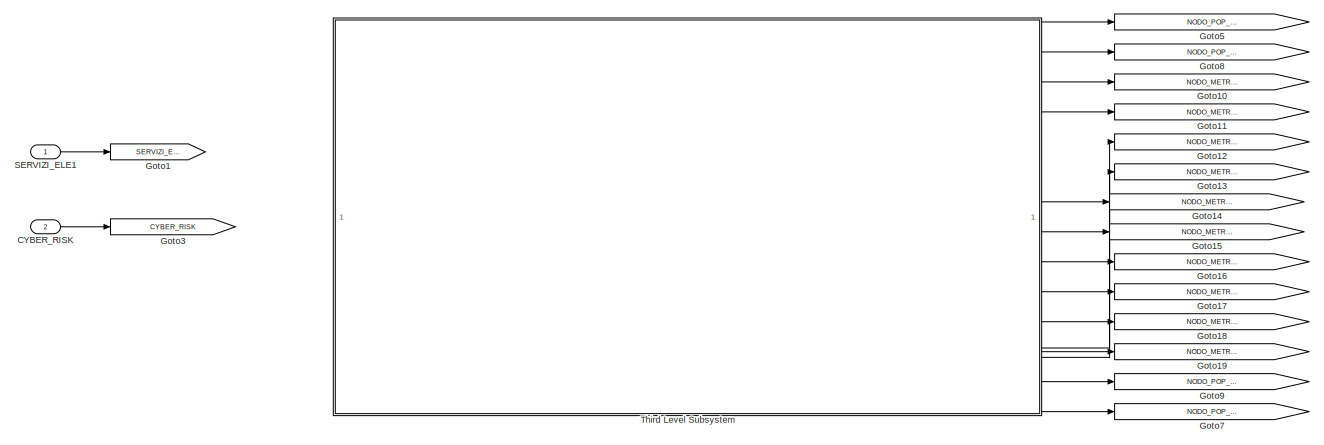
[diagram: TELCOMMUNICATIONS1 - part 1/5, top center region]
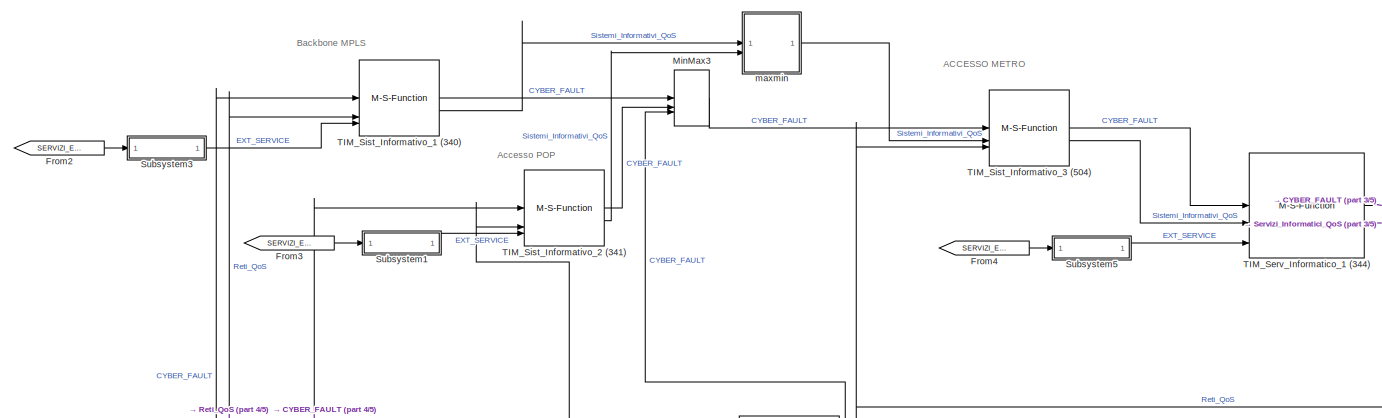
[diagram: TELCOMMUNICATIONS1 - part 2/5, middle left region]
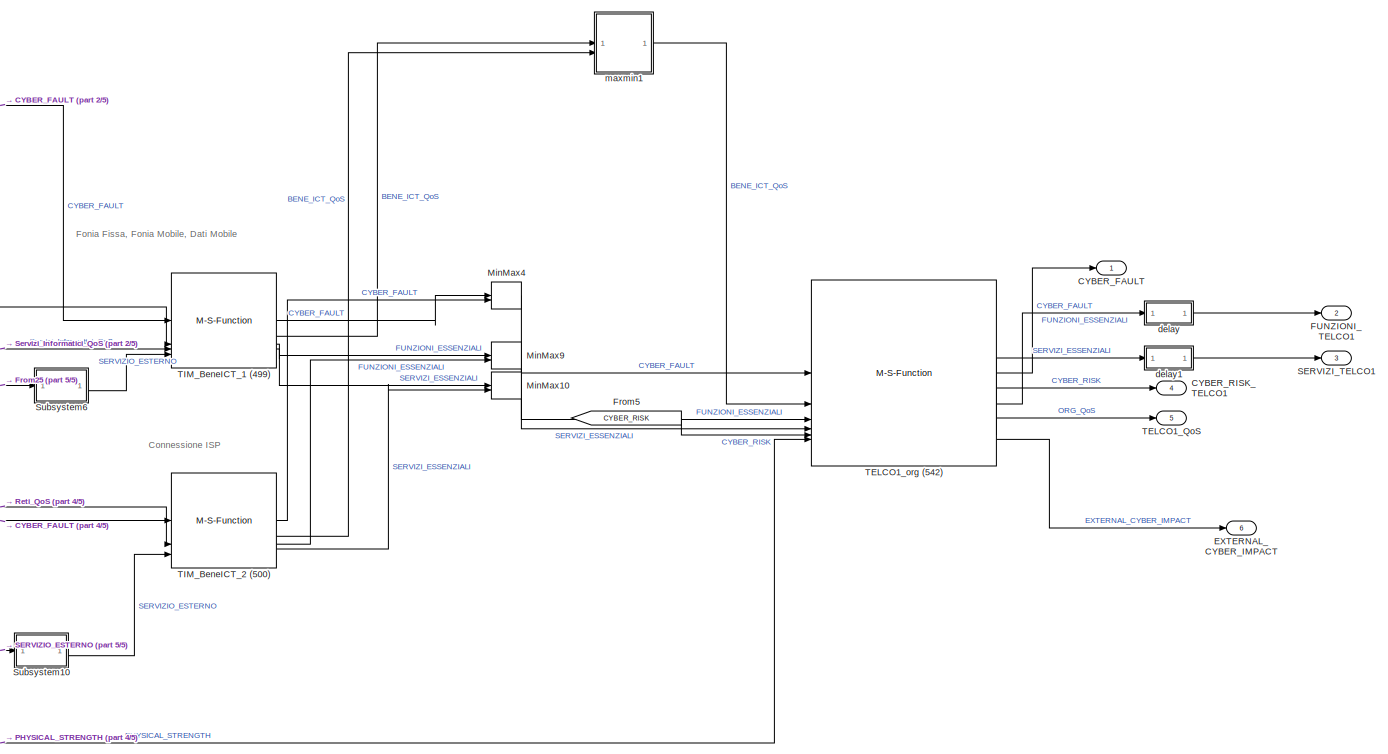
[diagram: TELCOMMUNICATIONS1 - part 3/5, bottom right region]
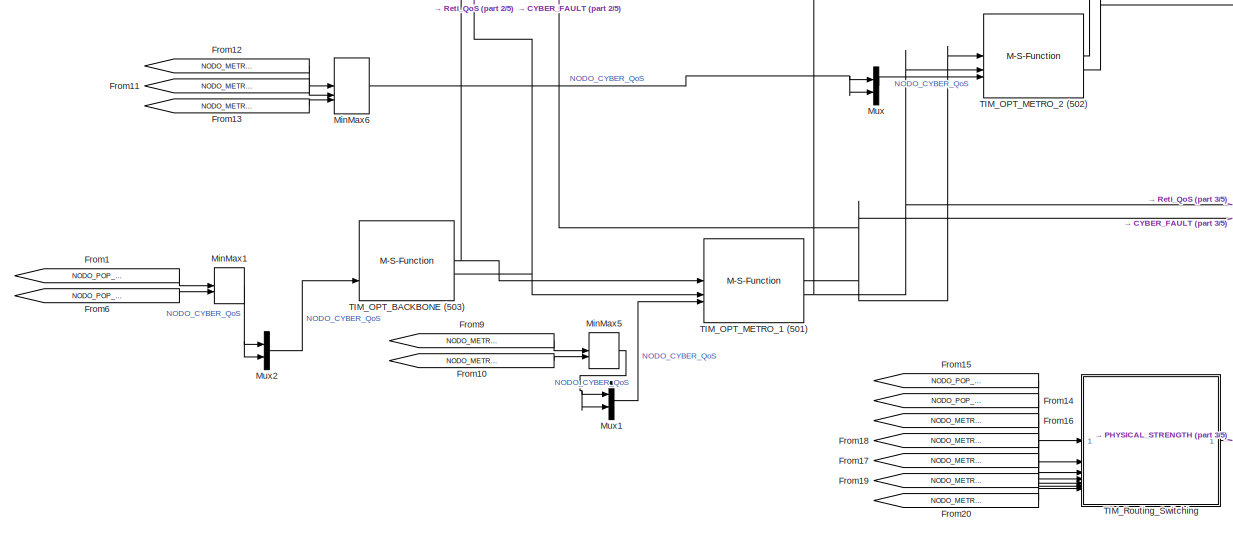
[diagram: TELCOMMUNICATIONS1 - part 4/5, bottom left region]
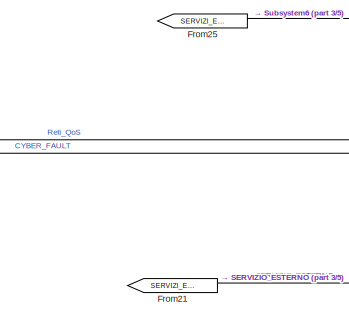
[diagram: TELCOMMUNICATIONS1 - part 5/5, bottom center region]
BLOCK [SubSystem] TELCOMMUNICATIONS1
BLOCK [Outport] TELCOMMUNICATIONS1/CYBER_FAULT
BLOCK [Inport] TELCOMMUNICATIONS1/CYBER_RISK
  Port = 2
BLOCK [Outport] TELCOMMUNICATIONS1/CYBER_RISK_TELCO1
  Port = 4
BLOCK [Outport] TELCOMMUNICATIONS1/EXTERNAL_CYBER_IMPACT
  Port = 6
BLOCK [Outport] TELCOMMUNICATIONS1/FUNZIONI_TELCO1
  Port = 2
BLOCK [From] TELCOMMUNICATIONS1/From1
  GotoTag = NODO_POP_1_Cyber_QoS
BLOCK [From] TELCOMMUNICATIONS1/From10
  GotoTag = NODO_METRO_2_Cyber_QoS
BLOCK [From] TELCOMMUNICATIONS1/From11
  GotoTag = NODO_METRO_4_Cyber_QoS
BLOCK [From] TELCOMMUNICATIONS1/From12
  GotoTag = NODO_METRO_3_Cyber_QoS
BLOCK [From] TELCOMMUNICATIONS1/From13
  GotoTag = NODO_METRO_5_Cyber_QoS
BLOCK [From] TELCOMMUNICATIONS1/From14
  GotoTag = NODO_POP_2_Switching_QoS
BLOCK [From] TELCOMMUNICATIONS1/From15
  GotoTag = NODO_POP_1_Switching_QoS
BLOCK [From] TELCOMMUNICATIONS1/From16
  GotoTag = NODO_METRO_1_Routing_QoS
BLOCK [From] TELCOMMUNICATIONS1/From17
  GotoTag = NODO_METRO_3_Routing_QoS
BLOCK [From] TELCOMMUNICATIONS1/From18
  GotoTag = NODO_METRO_2_Routing_QoS
BLOCK [From] TELCOMMUNICATIONS1/From19
  GotoTag = NODO_METRO_4_Routing_QoS
BLOCK [From] TELCOMMUNICATIONS1/From2
  GotoTag = SERVIZI_ELE1
BLOCK [From] TELCOMMUNICATIONS1/From20
  GotoTag = NODO_METRO_5_Routing_QoS
BLOCK [From] TELCOMMUNICATIONS1/From21
  GotoTag = SERVIZI_ELE1
BLOCK [From] TELCOMMUNICATIONS1/From25
  GotoTag = SERVIZI_ELE1
BLOCK [From] TELCOMMUNICATIONS1/From3
  GotoTag = SERVIZI_ELE1
BLOCK [From] TELCOMMUNICATIONS1/From4
  GotoTag = SERVIZI_ELE1
BLOCK [From] TELCOMMUNICATIONS1/From5
  GotoTag = CYBER_RISK
BLOCK [From] TELCOMMUNICATIONS1/From6
  GotoTag = NODO_POP_2_Cyber_QoS
BLOCK [From] TELCOMMUNICATIONS1/From9
  GotoTag = NODO_METRO_1_Cyber_QoS
BLOCK [Goto] TELCOMMUNICATIONS1/Goto1
  GotoTag = SERVIZI_ELE1
BLOCK [Goto] TELCOMMUNICATIONS1/Goto10
  GotoTag = NODO_METRO_1_Routing_QoS
BLOCK [Goto] TELCOMMUNICATIONS1/Goto11
  GotoTag = NODO_METRO_1_Cyber_QoS
BLOCK [Goto] TELCOMMUNICATIONS1/Goto12
  GotoTag = NODO_METRO_2_Routing_QoS
BLOCK [Goto] TELCOMMUNICATIONS1/Goto13
  GotoTag = NODO_METRO_2_Cyber_QoS
BLOCK [Goto] TELCOMMUNICATIONS1/Goto14
  GotoTag = NODO_METRO_3_Routing_QoS
BLOCK [Goto] TELCOMMUNICATIONS1/Goto15
  GotoTag = NODO_METRO_3_Cyber_QoS
BLOCK [Goto] TELCOMMUNICATIONS1/Goto16
  GotoTag = NODO_METRO_4_Routing_QoS
BLOCK [Goto] TELCOMMUNICATIONS1/Goto17
  GotoTag = NODO_METRO_4_Cyber_QoS
BLOCK [Goto] TELCOMMUNICATIONS1/Goto18
  GotoTag = NODO_METRO_5_Routing_QoS
BLOCK [Goto] TELCOMMUNICATIONS1/Goto19
  GotoTag = NODO_METRO_5_Cyber_QoS
BLOCK [Goto] TELCOMMUNICATIONS1/Goto3
  GotoTag = CYBER_RISK
BLOCK [Goto] TELCOMMUNICATIONS1/Goto5
  GotoTag = NODO_POP_1_Switching_QoS
BLOCK [Goto] TELCOMMUNICATIONS1/Goto7
  GotoTag = NODO_POP_2_Cyber_QoS
BLOCK [Goto] TELCOMMUNICATIONS1/Goto8
  GotoTag = NODO_POP_1_Cyber_QoS
BLOCK [Goto] TELCOMMUNICATIONS1/Goto9
  GotoTag = NODO_POP_2_Switching_QoS
BLOCK [MinMax] TELCOMMUNICATIONS1/MinMax1
  Inputs = 2
BLOCK [MinMax] TELCOMMUNICATIONS1/MinMax10
  Function = max
  Inputs = 2
BLOCK [MinMax] TELCOMMUNICATIONS1/MinMax3
  Function = max
  Inputs = 3
BLOCK [MinMax] TELCOMMUNICATIONS1/MinMax4
  Function = max
  Inputs = 2
BLOCK [MinMax] TELCOMMUNICATIONS1/MinMax5
  Inputs = 2
BLOCK [MinMax] TELCOMMUNICATIONS1/MinMax6
  Inputs = 3
BLOCK [MinMax] TELCOMMUNICATIONS1/MinMax9
  Function = max
  Inputs = 2
BLOCK [Mux] TELCOMMUNICATIONS1/Mux
  DisplayOption = bar
  Inputs = 2
BLOCK [Mux] TELCOMMUNICATIONS1/Mux1
  DisplayOption = bar
  Inputs = 2
BLOCK [Mux] TELCOMMUNICATIONS1/Mux2
  DisplayOption = bar
  Inputs = 2
BLOCK [Inport] TELCOMMUNICATIONS1/SERVIZI_ELE1
BLOCK [Outport] TELCOMMUNICATIONS1/SERVIZI_TELCO1
  Port = 3
BLOCK [SubSystem] TELCOMMUNICATIONS1/Subsystem1
BLOCK [Constant] TELCOMMUNICATIONS1/Subsystem1/Constant
  Value = operation1
BLOCK [Constant] TELCOMMUNICATIONS1/Subsystem1/Constant2
  Value = consumed1
BLOCK [Constant] TELCOMMUNICATIONS1/Subsystem1/Constant6
  Value = operation2
BLOCK [Constant] TELCOMMUNICATIONS1/Subsystem1/Constant7
  Value = num_serv
BLOCK [Constant] TELCOMMUNICATIONS1/Subsystem1/Constant9
  Value = out_service
BLOCK [Display] TELCOMMUNICATIONS1/Subsystem1/Display
  Decimation = 1
BLOCK [Display] TELCOMMUNICATIONS1/Subsystem1/Display1
  Decimation = 1
BLOCK [Outport] TELCOMMUNICATIONS1/Subsystem1/EXT
BLOCK [Outport] TELCOMMUNICATIONS1/Subsystem1/EXT_V
  Port = 2
BLOCK [SubSystem] TELCOMMUNICATIONS1/Subsystem1/MATLAB Function2
  ErrorFcn = Stateflow.Translate.translate
  LibrarySourceBlock = simulink/User-Defined\nFunctions/MATLAB Function
  PermitHierarchicalResolution = ExplicitOnly
  SFBlockType = MATLAB Function
  TreatAsAtomicUnit = on
BLOCK [Demux] TELCOMMUNICATIONS1/Subsystem1/MATLAB Function2/ Demux 
  Outputs = 1
BLOCK [S-Function] TELCOMMUNICATIONS1/Subsystem1/MATLAB Function2/ SFunction 
  EnableBusSupport = on
  FunctionName = sf_sfun
  PortCounts = [6 3]
  SFcnIsStateOwnerBlock = off
  SFunctionDeploymentMode = off
  Tag = Stateflow S-Function 16
BLOCK [Terminator] TELCOMMUNICATIONS1/Subsystem1/MATLAB Function2/ Terminator 
BLOCK [Inport] TELCOMMUNICATIONS1/Subsystem1/MATLAB Function2/consumed
  Port = 2
BLOCK [Inport] TELCOMMUNICATIONS1/Subsystem1/MATLAB Function2/num_serv
  Port = 5
BLOCK [Inport] TELCOMMUNICATIONS1/Subsystem1/MATLAB Function2/operation1
  Port = 3
BLOCK [Inport] TELCOMMUNICATIONS1/Subsystem1/MATLAB Function2/operation2
  Port = 4
BLOCK [Inport] TELCOMMUNICATIONS1/Subsystem1/MATLAB Function2/out_service
  Port = 6
BLOCK [Outport] TELCOMMUNICATIONS1/Subsystem1/MATLAB Function2/se
BLOCK [Outport] TELCOMMUNICATIONS1/Subsystem1/MATLAB Function2/se_vect
  Port = 2
BLOCK [Inport] TELCOMMUNICATIONS1/Subsystem1/MATLAB Function2/servizio
BLOCK [Inport] TELCOMMUNICATIONS1/Subsystem1/servizio
BLOCK [SubSystem] TELCOMMUNICATIONS1/Subsystem10
BLOCK [Constant] TELCOMMUNICATIONS1/Subsystem10/Constant
  Value = operation1
BLOCK [Constant] TELCOMMUNICATIONS1/Subsystem10/Constant2
  Value = consumed1
BLOCK [Constant] TELCOMMUNICATIONS1/Subsystem10/Constant6
  Value = operation2
BLOCK [Constant] TELCOMMUNICATIONS1/Subsystem10/Constant7
  Value = num_serv
BLOCK [Constant] TELCOMMUNICATIONS1/Subsystem10/Constant9
  Value = out_service
BLOCK [Outport] TELCOMMUNICATIONS1/Subsystem10/EXT
BLOCK [Outport] TELCOMMUNICATIONS1/Subsystem10/EXT_V
  Port = 2
BLOCK [SubSystem] TELCOMMUNICATIONS1/Subsystem10/MATLAB Function2
  ErrorFcn = Stateflow.Translate.translate
  LibrarySourceBlock = simulink/User-Defined\nFunctions/MATLAB Function
  PermitHierarchicalResolution = ExplicitOnly
  SFBlockType = MATLAB Function
  TreatAsAtomicUnit = on
BLOCK [Demux] TELCOMMUNICATIONS1/Subsystem10/MATLAB Function2/ Demux 
  Outputs = 1
BLOCK [S-Function] TELCOMMUNICATIONS1/Subsystem10/MATLAB Function2/ SFunction 
  EnableBusSupport = on
  FunctionName = sf_sfun
  PortCounts = [6 4]
  SFcnIsStateOwnerBlock = off
  SFunctionDeploymentMode = off
  Tag = Stateflow S-Function 19
BLOCK [Terminator] TELCOMMUNICATIONS1/Subsystem10/MATLAB Function2/ Terminator 
BLOCK [Outport] TELCOMMUNICATIONS1/Subsystem10/MATLAB Function2/Service_Fault
  Port = 3
BLOCK [Inport] TELCOMMUNICATIONS1/Subsystem10/MATLAB Function2/consumed
  Port = 2
BLOCK [Inport] TELCOMMUNICATIONS1/Subsystem10/MATLAB Function2/num_serv
  Port = 5
BLOCK [Inport] TELCOMMUNICATIONS1/Subsystem10/MATLAB Function2/operation1
  Port = 3
BLOCK [Inport] TELCOMMUNICATIONS1/Subsystem10/MATLAB Function2/operation2
  Port = 4
BLOCK [Inport] TELCOMMUNICATIONS1/Subsystem10/MATLAB Function2/out_service
  Port = 6
BLOCK [Outport] TELCOMMUNICATIONS1/Subsystem10/MATLAB Function2/se
BLOCK [Outport] TELCOMMUNICATIONS1/Subsystem10/MATLAB Function2/se_vect
  Port = 2
BLOCK [Inport] TELCOMMUNICATIONS1/Subsystem10/MATLAB Function2/servizio
BLOCK [Inport] TELCOMMUNICATIONS1/Subsystem10/servizio
BLOCK [SubSystem] TELCOMMUNICATIONS1/Subsystem3
BLOCK [Constant] TELCOMMUNICATIONS1/Subsystem3/Constant
  Value = operation1
BLOCK [Constant] TELCOMMUNICATIONS1/Subsystem3/Constant2
  Value = consumed1
BLOCK [Constant] TELCOMMUNICATIONS1/Subsystem3/Constant6
  Value = operation2
BLOCK [Constant] TELCOMMUNICATIONS1/Subsystem3/Constant7
  Value = num_serv
BLOCK [Constant] TELCOMMUNICATIONS1/Subsystem3/Constant9
  Value = out_service
BLOCK [Display] TELCOMMUNICATIONS1/Subsystem3/Display
  Decimation = 1
BLOCK [Display] TELCOMMUNICATIONS1/Subsystem3/Display1
  Decimation = 1
BLOCK [Outport] TELCOMMUNICATIONS1/Subsystem3/EXT
BLOCK [Outport] TELCOMMUNICATIONS1/Subsystem3/EXT_V
  Port = 2
BLOCK [SubSystem] TELCOMMUNICATIONS1/Subsystem3/MATLAB Function2
  ErrorFcn = Stateflow.Translate.translate
  LibrarySourceBlock = simulink/User-Defined\nFunctions/MATLAB Function
  PermitHierarchicalResolution = ExplicitOnly
  SFBlockType = MATLAB Function
  TreatAsAtomicUnit = on
BLOCK [Demux] TELCOMMUNICATIONS1/Subsystem3/MATLAB Function2/ Demux 
  Outputs = 1
BLOCK [S-Function] TELCOMMUNICATIONS1/Subsystem3/MATLAB Function2/ SFunction 
  EnableBusSupport = on
  FunctionName = sf_sfun
  PortCounts = [6 3]
  SFcnIsStateOwnerBlock = off
  SFunctionDeploymentMode = off
  Tag = Stateflow S-Function 15
BLOCK [Terminator] TELCOMMUNICATIONS1/Subsystem3/MATLAB Function2/ Terminator 
BLOCK [Inport] TELCOMMUNICATIONS1/Subsystem3/MATLAB Function2/consumed
  Port = 2
BLOCK [Inport] TELCOMMUNICATIONS1/Subsystem3/MATLAB Function2/num_serv
  Port = 5
BLOCK [Inport] TELCOMMUNICATIONS1/Subsystem3/MATLAB Function2/operation1
  Port = 3
BLOCK [Inport] TELCOMMUNICATIONS1/Subsystem3/MATLAB Function2/operation2
  Port = 4
BLOCK [Inport] TELCOMMUNICATIONS1/Subsystem3/MATLAB Function2/out_service
  Port = 6
BLOCK [Outport] TELCOMMUNICATIONS1/Subsystem3/MATLAB Function2/se
BLOCK [Outport] TELCOMMUNICATIONS1/Subsystem3/MATLAB Function2/se_vect
  Port = 2
BLOCK [Inport] TELCOMMUNICATIONS1/Subsystem3/MATLAB Function2/servizio
BLOCK [Inport] TELCOMMUNICATIONS1/Subsystem3/servizio
BLOCK [SubSystem] TELCOMMUNICATIONS1/Subsystem5
BLOCK [Constant] TELCOMMUNICATIONS1/Subsystem5/Constant
  Value = operation1
BLOCK [Constant] TELCOMMUNICATIONS1/Subsystem5/Constant2
  Value = consumed1
BLOCK [Constant] TELCOMMUNICATIONS1/Subsystem5/Constant6
  Value = operation2
BLOCK [Constant] TELCOMMUNICATIONS1/Subsystem5/Constant7
  Value = num_serv
BLOCK [Constant] TELCOMMUNICATIONS1/Subsystem5/Constant9
  Value = out_service
BLOCK [Display] TELCOMMUNICATIONS1/Subsystem5/Display
  Decimation = 1
BLOCK [Display] TELCOMMUNICATIONS1/Subsystem5/Display1
  Decimation = 1
BLOCK [Outport] TELCOMMUNICATIONS1/Subsystem5/EXT
BLOCK [Outport] TELCOMMUNICATIONS1/Subsystem5/EXT_V
  Port = 2
BLOCK [SubSystem] TELCOMMUNICATIONS1/Subsystem5/MATLAB Function2
  ErrorFcn = Stateflow.Translate.translate
  LibrarySourceBlock = simulink/User-Defined\nFunctions/MATLAB Function
  PermitHierarchicalResolution = ExplicitOnly
  SFBlockType = MATLAB Function
  TreatAsAtomicUnit = on
BLOCK [Demux] TELCOMMUNICATIONS1/Subsystem5/MATLAB Function2/ Demux 
  Outputs = 1
BLOCK [S-Function] TELCOMMUNICATIONS1/Subsystem5/MATLAB Function2/ SFunction 
  EnableBusSupport = on
  FunctionName = sf_sfun
  PortCounts = [6 3]
  SFcnIsStateOwnerBlock = off
  SFunctionDeploymentMode = off
  Tag = Stateflow S-Function 17
BLOCK [Terminator] TELCOMMUNICATIONS1/Subsystem5/MATLAB Function2/ Terminator 
BLOCK [Inport] TELCOMMUNICATIONS1/Subsystem5/MATLAB Function2/consumed
  Port = 2
BLOCK [Inport] TELCOMMUNICATIONS1/Subsystem5/MATLAB Function2/num_serv
  Port = 5
BLOCK [Inport] TELCOMMUNICATIONS1/Subsystem5/MATLAB Function2/operation1
  Port = 3
BLOCK [Inport] TELCOMMUNICATIONS1/Subsystem5/MATLAB Function2/operation2
  Port = 4
BLOCK [Inport] TELCOMMUNICATIONS1/Subsystem5/MATLAB Function2/out_service
  Port = 6
BLOCK [Outport] TELCOMMUNICATIONS1/Subsystem5/MATLAB Function2/se
BLOCK [Outport] TELCOMMUNICATIONS1/Subsystem5/MATLAB Function2/se_vect
  Port = 2
BLOCK [Inport] TELCOMMUNICATIONS1/Subsystem5/MATLAB Function2/servizio
BLOCK [Inport] TELCOMMUNICATIONS1/Subsystem5/servizio
BLOCK [SubSystem] TELCOMMUNICATIONS1/Subsystem6
BLOCK [Constant] TELCOMMUNICATIONS1/Subsystem6/Constant
  Value = operation1
BLOCK [Constant] TELCOMMUNICATIONS1/Subsystem6/Constant2
  Value = consumed1
BLOCK [Constant] TELCOMMUNICATIONS1/Subsystem6/Constant6
  Value = operation2
BLOCK [Constant] TELCOMMUNICATIONS1/Subsystem6/Constant7
  Value = num_serv
BLOCK [Constant] TELCOMMUNICATIONS1/Subsystem6/Constant9
  Value = out_service
BLOCK [Outport] TELCOMMUNICATIONS1/Subsystem6/EXT
BLOCK [Outport] TELCOMMUNICATIONS1/Subsystem6/EXT_V
  Port = 2
BLOCK [SubSystem] TELCOMMUNICATIONS1/Subsystem6/MATLAB Function2
  ErrorFcn = Stateflow.Translate.translate
  LibrarySourceBlock = simulink/User-Defined\nFunctions/MATLAB Function
  PermitHierarchicalResolution = ExplicitOnly
  SFBlockType = MATLAB Function
  TreatAsAtomicUnit = on
BLOCK [Demux] TELCOMMUNICATIONS1/Subsystem6/MATLAB Function2/ Demux 
  Outputs = 1
BLOCK [S-Function] TELCOMMUNICATIONS1/Subsystem6/MATLAB Function2/ SFunction 
  EnableBusSupport = on
  FunctionName = sf_sfun
  PortCounts = [6 4]
  SFcnIsStateOwnerBlock = off
  SFunctionDeploymentMode = off
  Tag = Stateflow S-Function 61
BLOCK [Terminator] TELCOMMUNICATIONS1/Subsystem6/MATLAB Function2/ Terminator 
BLOCK [Outport] TELCOMMUNICATIONS1/Subsystem6/MATLAB Function2/Service_Fault
  Port = 3
BLOCK [Inport] TELCOMMUNICATIONS1/Subsystem6/MATLAB Function2/consumed
  Port = 2
BLOCK [Inport] TELCOMMUNICATIONS1/Subsystem6/MATLAB Function2/num_serv
  Port = 5
BLOCK [Inport] TELCOMMUNICATIONS1/Subsystem6/MATLAB Function2/operation1
  Port = 3
BLOCK [Inport] TELCOMMUNICATIONS1/Subsystem6/MATLAB Function2/operation2
  Port = 4
BLOCK [Inport] TELCOMMUNICATIONS1/Subsystem6/MATLAB Function2/out_service
  Port = 6
BLOCK [Outport] TELCOMMUNICATIONS1/Subsystem6/MATLAB Function2/se
BLOCK [Outport] TELCOMMUNICATIONS1/Subsystem6/MATLAB Function2/se_vect
  Port = 2
BLOCK [Inport] TELCOMMUNICATIONS1/Subsystem6/MATLAB Function2/servizio
BLOCK [Inport] TELCOMMUNICATIONS1/Subsystem6/servizio
BLOCK [Outport] TELCOMMUNICATIONS1/TELCO1_QoS
  Port = 5
BLOCK [M-S-Function] TELCOMMUNICATIONS1/TELCO1_org (542)
  FunctionName = cisia_msfun
  Parameters = Parameter1, Parameter2, Parameter3, resources, Parameter10, codeupdate, step_received, step_computed, dynamic_computed, step_sended, id_entity, id_project, id_type, name_type, color
BLOCK [M-S-Function] TELCOMMUNICATIONS1/TIM_BeneICT_1 (499)
  FunctionName = cisia_msfun
  Parameters = Parameter1, Parameter2, Parameter3, resources, Parameter10, codeupdate, step_received, step_computed, dynamic_computed, step_sended, id_entity, id_project, id_type, name_type, color
BLOCK [M-S-Function] TELCOMMUNICATIONS1/TIM_BeneICT_2 (500)
  FunctionName = cisia_msfun
  Parameters = Parameter1, Parameter2, Parameter3, resources, Parameter10, codeupdate, step_received, step_computed, dynamic_computed, step_sended, id_entity, id_project, id_type, name_type, color
BLOCK [M-S-Function] TELCOMMUNICATIONS1/TIM_OPT_BACKBONE (503)
  FunctionName = cisia_msfun
  Parameters = Parameter1, Parameter2, Parameter3, resources, Parameter10, codeupdate, step_received, step_computed, dynamic_computed, step_sended, id_entity, id_project, id_type, name_type, color
BLOCK [M-S-Function] TELCOMMUNICATIONS1/TIM_OPT_METRO_1 (501)
  FunctionName = cisia_msfun
  Parameters = Parameter1, Parameter2, Parameter3, resources, Parameter10, codeupdate, step_received, step_computed, dynamic_computed, step_sended, id_entity, id_project, id_type, name_type, color
BLOCK [M-S-Function] TELCOMMUNICATIONS1/TIM_OPT_METRO_2 (502)
  FunctionName = cisia_msfun
  Parameters = Parameter1, Parameter2, Parameter3, resources, Parameter10, codeupdate, step_received, step_computed, dynamic_computed, step_sended, id_entity, id_project, id_type, name_type, color
BLOCK [SubSystem] TELCOMMUNICATIONS1/TIM_Routing_Switching
  ErrorFcn = Stateflow.Translate.translate
  LibrarySourceBlock = simulink/User-Defined\nFunctions/MATLAB Function
  PermitHierarchicalResolution = ExplicitOnly
  SFBlockType = MATLAB Function
  TreatAsAtomicUnit = on
BLOCK [Demux] TELCOMMUNICATIONS1/TIM_Routing_Switching/ Demux 
  Outputs = 1
BLOCK [S-Function] TELCOMMUNICATIONS1/TIM_Routing_Switching/ SFunction 
  EnableBusSupport = on
  FunctionName = sf_sfun
  PortCounts = [7 2]
  SFcnIsStateOwnerBlock = off
  SFunctionDeploymentMode = off
  Tag = Stateflow S-Function 9
BLOCK [Terminator] TELCOMMUNICATIONS1/TIM_Routing_Switching/ Terminator 
BLOCK [Inport] TELCOMMUNICATIONS1/TIM_Routing_Switching/N1
BLOCK [Inport] TELCOMMUNICATIONS1/TIM_Routing_Switching/N2
  Port = 2
BLOCK [Inport] TELCOMMUNICATIONS1/TIM_Routing_Switching/N3
  Port = 3
BLOCK [Inport] TELCOMMUNICATIONS1/TIM_Routing_Switching/N4
  Port = 4
BLOCK [Inport] TELCOMMUNICATIONS1/TIM_Routing_Switching/N5
  Port = 5
BLOCK [Inport] TELCOMMUNICATIONS1/TIM_Routing_Switching/N6
  Port = 6
BLOCK [Inport] TELCOMMUNICATIONS1/TIM_Routing_Switching/N7
  Port = 7
BLOCK [Outport] TELCOMMUNICATIONS1/TIM_Routing_Switching/Routing
BLOCK [M-S-Function] TELCOMMUNICATIONS1/TIM_Serv_Informatico_1 (344)
  FunctionName = cisia_msfun
  Parameters = Parameter1, Parameter2, Parameter3, resources, Parameter10, codeupdate, step_received, step_computed, dynamic_computed, step_sended, id_entity, id_project, id_type, name_type, color
BLOCK [M-S-Function] TELCOMMUNICATIONS1/TIM_Sist_Informativo_1 (340)
  FunctionName = cisia_msfun
  Parameters = Parameter1, Parameter2, Parameter3, resources, Parameter10, codeupdate, step_received, step_computed, dynamic_computed, step_sended, id_entity, id_project, id_type, name_type, color
BLOCK [M-S-Function] TELCOMMUNICATIONS1/TIM_Sist_Informativo_2 (341)
  FunctionName = cisia_msfun
  Parameters = Parameter1, Parameter2, Parameter3, resources, Parameter10, codeupdate, step_received, step_computed, dynamic_computed, step_sended, id_entity, id_project, id_type, name_type, color
BLOCK [M-S-Function] TELCOMMUNICATIONS1/TIM_Sist_Informativo_3 (504)
  FunctionName = cisia_msfun
  Parameters = Parameter1, Parameter2, Parameter3, resources, Parameter10, codeupdate, step_received, step_computed, dynamic_computed, step_sended, id_entity, id_project, id_type, name_type, color
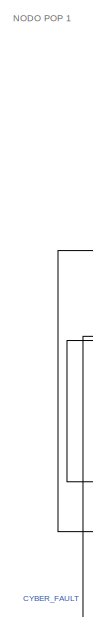
[diagram: TELCOMMUNICATIONS1/Third Level Subsystem - part 1/7, top left region]
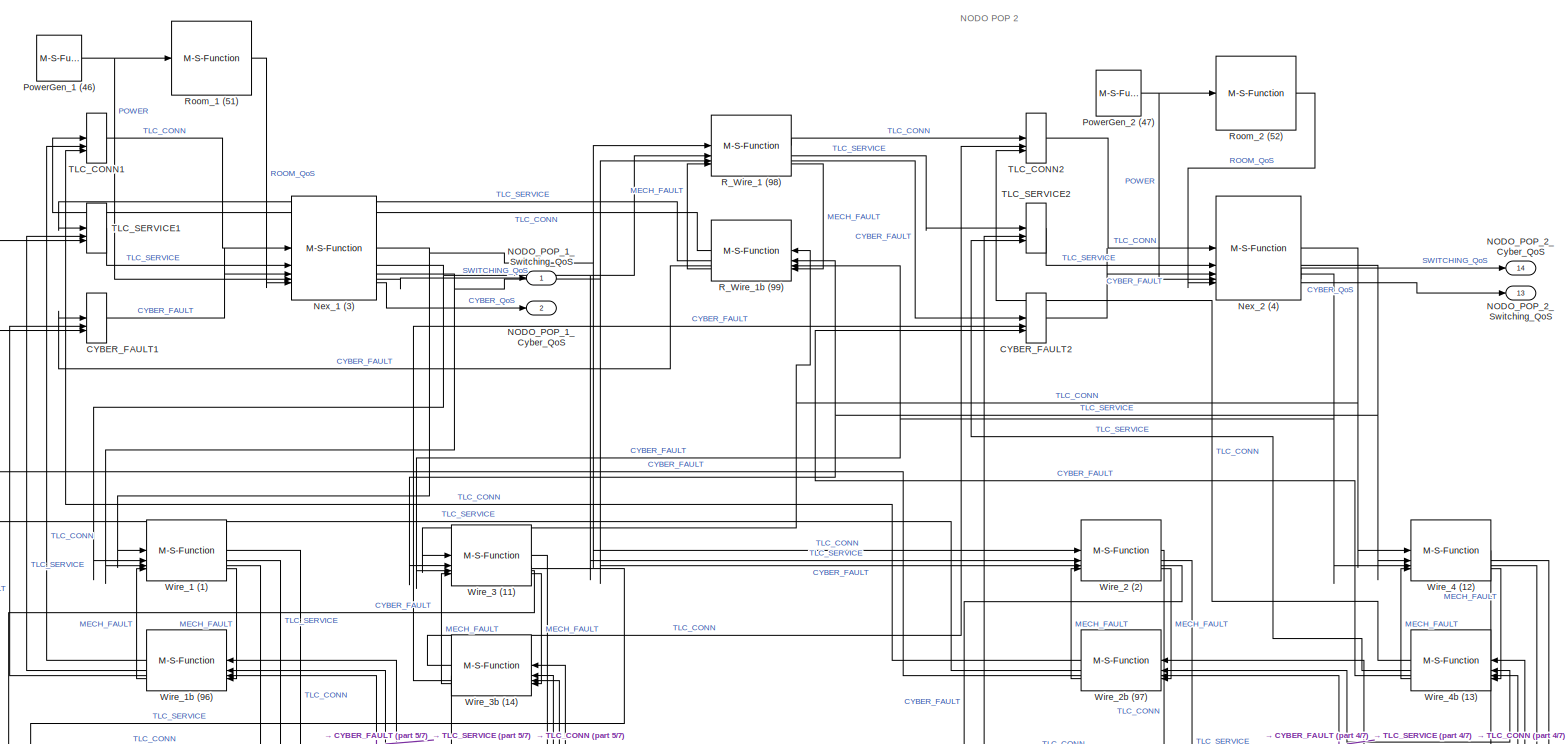
[diagram: TELCOMMUNICATIONS1/Third Level Subsystem - part 2/7, top center region]
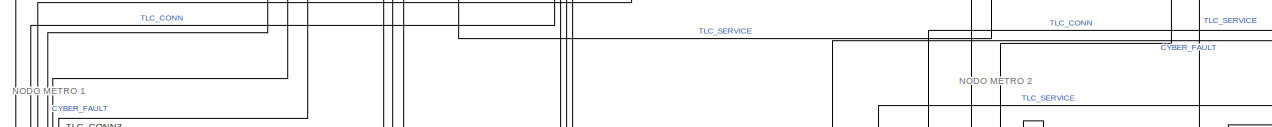
[diagram: TELCOMMUNICATIONS1/Third Level Subsystem - part 3/7, central region]
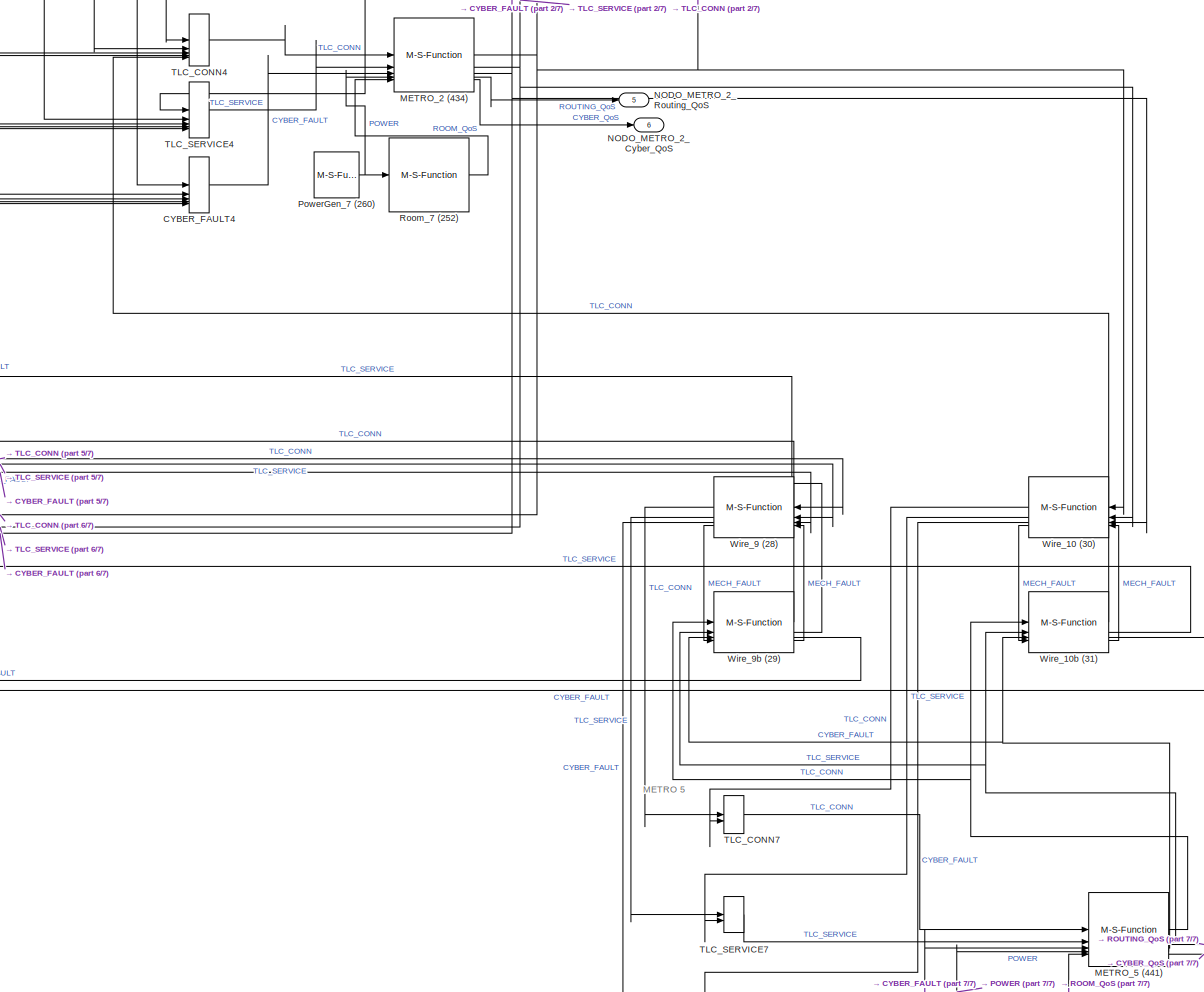
[diagram: TELCOMMUNICATIONS1/Third Level Subsystem - part 4/7, middle right region]
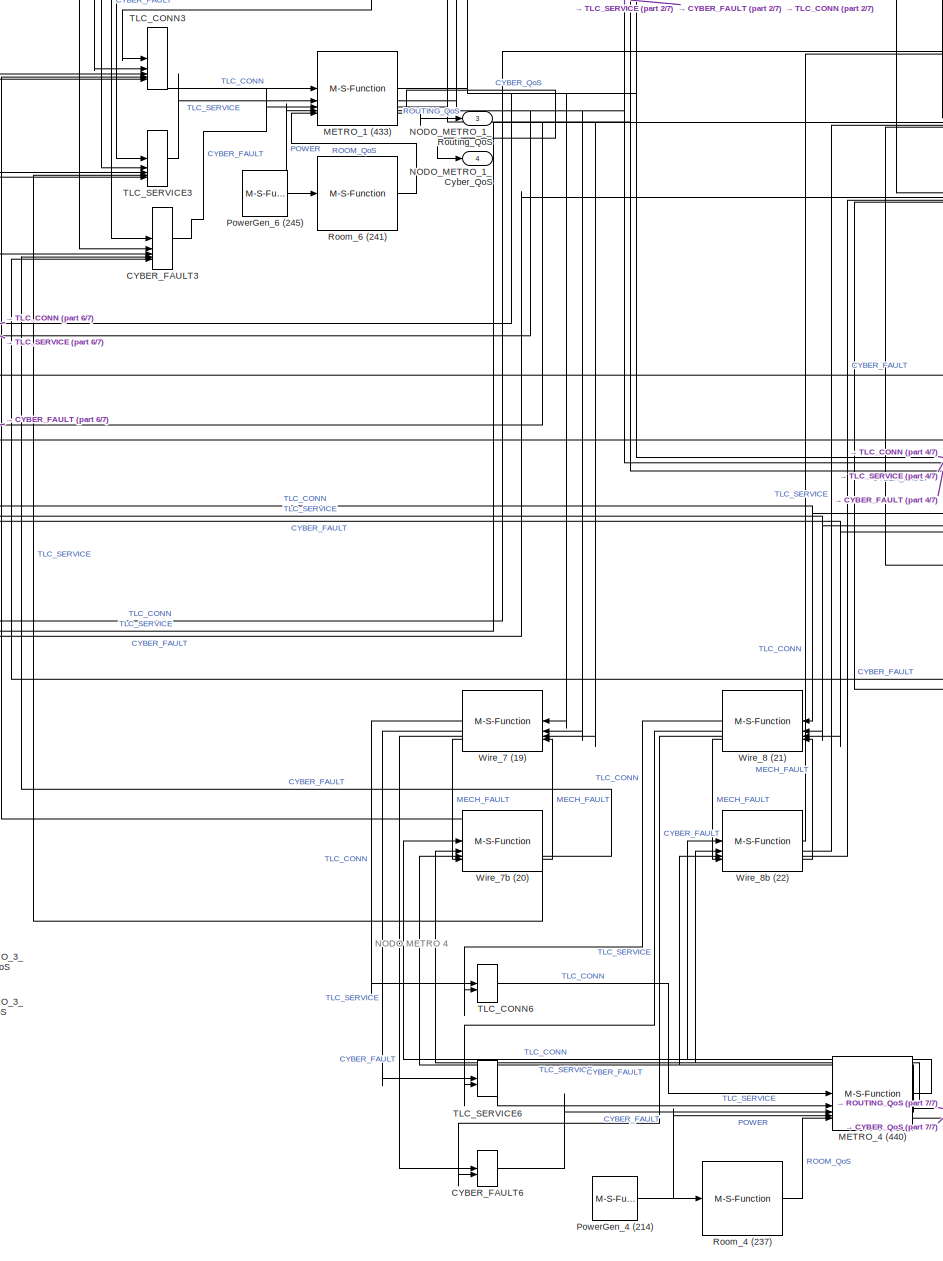
[diagram: TELCOMMUNICATIONS1/Third Level Subsystem - part 5/7, bottom center region]
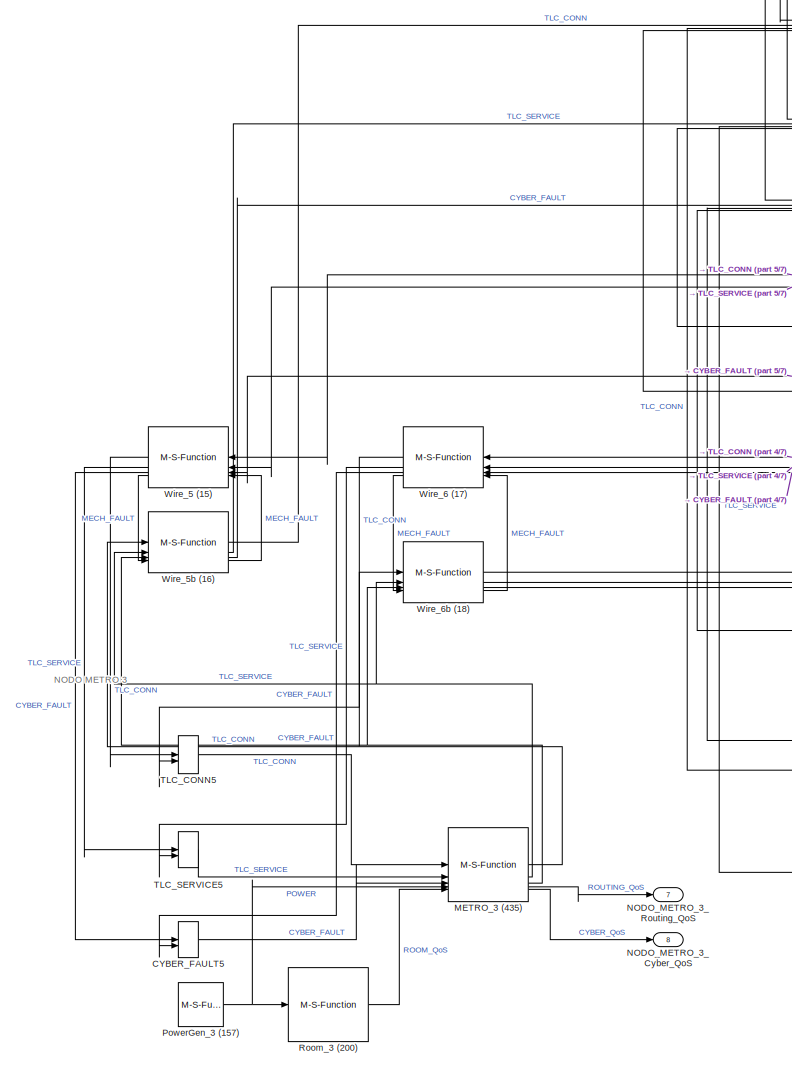
[diagram: TELCOMMUNICATIONS1/Third Level Subsystem - part 6/7, bottom left region]
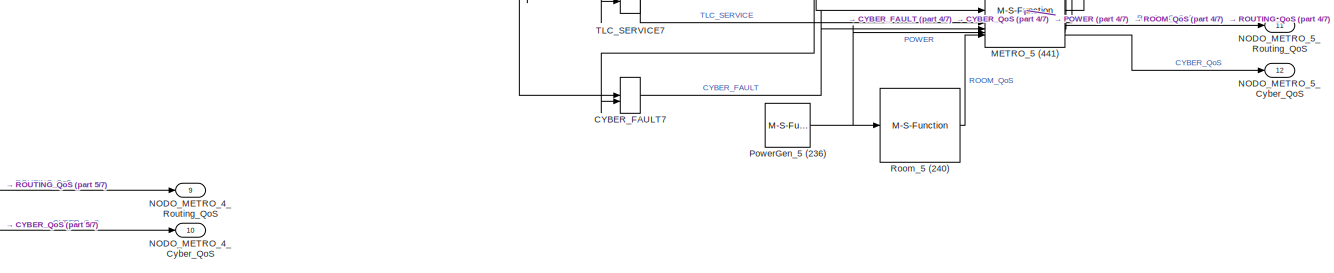
[diagram: TELCOMMUNICATIONS1/Third Level Subsystem - part 7/7, bottom right region]
BLOCK [SubSystem] TELCOMMUNICATIONS1/Third Level Subsystem
BLOCK [MinMax] TELCOMMUNICATIONS1/Third Level Subsystem/CYBER_FAULT1
  Function = max
  Inputs = 3
BLOCK [MinMax] TELCOMMUNICATIONS1/Third Level Subsystem/CYBER_FAULT2
  Function = max
  Inputs = 3
BLOCK [MinMax] TELCOMMUNICATIONS1/Third Level Subsystem/CYBER_FAULT3
  Function = max
  Inputs = 5
BLOCK [MinMax] TELCOMMUNICATIONS1/Third Level Subsystem/CYBER_FAULT4
  Function = max
  Inputs = 5
BLOCK [MinMax] TELCOMMUNICATIONS1/Third Level Subsystem/CYBER_FAULT5
  Function = max
  Inputs = 2
BLOCK [MinMax] TELCOMMUNICATIONS1/Third Level Subsystem/CYBER_FAULT6
  Function = max
  Inputs = 2
BLOCK [MinMax] TELCOMMUNICATIONS1/Third Level Subsystem/CYBER_FAULT7
  Function = max
  Inputs = 2
BLOCK [M-S-Function] TELCOMMUNICATIONS1/Third Level Subsystem/METRO_1 (433)
  FunctionName = cisia_msfun
  Parameters = Parameter1, Parameter2, Parameter3, resources, Parameter10, codeupdate, step_received, step_computed, dynamic_computed, step_sended, id_entity, id_project, id_type, name_type, color
BLOCK [M-S-Function] TELCOMMUNICATIONS1/Third Level Subsystem/METRO_2 (434)
  FunctionName = cisia_msfun
  Parameters = Parameter1, Parameter2, Parameter3, resources, Parameter10, codeupdate, step_received, step_computed, dynamic_computed, step_sended, id_entity, id_project, id_type, name_type, color
BLOCK [M-S-Function] TELCOMMUNICATIONS1/Third Level Subsystem/METRO_3 (435)
  FunctionName = cisia_msfun
  Parameters = Parameter1, Parameter2, Parameter3, resources, Parameter10, codeupdate, step_received, step_computed, dynamic_computed, step_sended, id_entity, id_project, id_type, name_type, color
BLOCK [M-S-Function] TELCOMMUNICATIONS1/Third Level Subsystem/METRO_4 (440)
  FunctionName = cisia_msfun
  Parameters = Parameter1, Parameter2, Parameter3, resources, Parameter10, codeupdate, step_received, step_computed, dynamic_computed, step_sended, id_entity, id_project, id_type, name_type, color
BLOCK [M-S-Function] TELCOMMUNICATIONS1/Third Level Subsystem/METRO_5 (441)
  FunctionName = cisia_msfun
  Parameters = Parameter1, Parameter2, Parameter3, resources, Parameter10, codeupdate, step_received, step_computed, dynamic_computed, step_sended, id_entity, id_project, id_type, name_type, color
BLOCK [Outport] TELCOMMUNICATIONS1/Third Level Subsystem/NODO_METRO_1_Cyber_QoS
  Port = 4
BLOCK [Outport] TELCOMMUNICATIONS1/Third Level Subsystem/NODO_METRO_1_Routing_QoS
  Port = 3
BLOCK [Outport] TELCOMMUNICATIONS1/Third Level Subsystem/NODO_METRO_2_Cyber_QoS
  Port = 6
BLOCK [Outport] TELCOMMUNICATIONS1/Third Level Subsystem/NODO_METRO_2_Routing_QoS
  Port = 5
BLOCK [Outport] TELCOMMUNICATIONS1/Third Level Subsystem/NODO_METRO_3_Cyber_QoS
  Port = 8
BLOCK [Outport] TELCOMMUNICATIONS1/Third Level Subsystem/NODO_METRO_3_Routing_QoS
  Port = 7
BLOCK [Outport] TELCOMMUNICATIONS1/Third Level Subsystem/NODO_METRO_4_Cyber_QoS
  Port = 10
BLOCK [Outport] TELCOMMUNICATIONS1/Third Level Subsystem/NODO_METRO_4_Routing_QoS
  Port = 9
BLOCK [Outport] TELCOMMUNICATIONS1/Third Level Subsystem/NODO_METRO_5_Cyber_QoS
  Port = 12
BLOCK [Outport] TELCOMMUNICATIONS1/Third Level Subsystem/NODO_METRO_5_Routing_QoS
  Port = 11
BLOCK [Outport] TELCOMMUNICATIONS1/Third Level Subsystem/NODO_POP_1_Cyber_QoS
  Port = 2
BLOCK [Outport] TELCOMMUNICATIONS1/Third Level Subsystem/NODO_POP_1_Switching_QoS
BLOCK [Outport] TELCOMMUNICATIONS1/Third Level Subsystem/NODO_POP_2_Cyber_QoS
  Port = 14
BLOCK [Outport] TELCOMMUNICATIONS1/Third Level Subsystem/NODO_POP_2_Switching_QoS
  Port = 13
BLOCK [M-S-Function] TELCOMMUNICATIONS1/Third Level Subsystem/Nex_1 (3)
  FunctionName = cisia_msfun
  Parameters = Parameter1, Parameter2, Parameter3, resources, Parameter10, codeupdate, step_received, step_computed, dynamic_computed, step_sended, id_entity, id_project, id_type, name_type, color
BLOCK [M-S-Function] TELCOMMUNICATIONS1/Third Level Subsystem/Nex_2 (4)
  FunctionName = cisia_msfun
  Parameters = Parameter1, Parameter2, Parameter3, resources, Parameter10, codeupdate, step_received, step_computed, dynamic_computed, step_sended, id_entity, id_project, id_type, name_type, color
BLOCK [M-S-Function] TELCOMMUNICATIONS1/Third Level Subsystem/PowerGen_1 (46)
  FunctionName = cisia_msfun
  Parameters = Parameter1, Parameter2, Parameter3, resources, Parameter10, codeupdate, step_received, step_computed, dynamic_computed, step_sended, id_entity, id_project, id_type, name_type, color
BLOCK [M-S-Function] TELCOMMUNICATIONS1/Third Level Subsystem/PowerGen_2 (47)
  FunctionName = cisia_msfun
  Parameters = Parameter1, Parameter2, Parameter3, resources, Parameter10, codeupdate, step_received, step_computed, dynamic_computed, step_sended, id_entity, id_project, id_type, name_type, color
BLOCK [M-S-Function] TELCOMMUNICATIONS1/Third Level Subsystem/PowerGen_3 (157)
  FunctionName = cisia_msfun
  Parameters = Parameter1, Parameter2, Parameter3, resources, Parameter10, codeupdate, step_received, step_computed, dynamic_computed, step_sended, id_entity, id_project, id_type, name_type, color
BLOCK [M-S-Function] TELCOMMUNICATIONS1/Third Level Subsystem/PowerGen_4 (214)
  FunctionName = cisia_msfun
  Parameters = Parameter1, Parameter2, Parameter3, resources, Parameter10, codeupdate, step_received, step_computed, dynamic_computed, step_sended, id_entity, id_project, id_type, name_type, color
BLOCK [M-S-Function] TELCOMMUNICATIONS1/Third Level Subsystem/PowerGen_5 (236)
  FunctionName = cisia_msfun
  Parameters = Parameter1, Parameter2, Parameter3, resources, Parameter10, codeupdate, step_received, step_computed, dynamic_computed, step_sended, id_entity, id_project, id_type, name_type, color
BLOCK [M-S-Function] TELCOMMUNICATIONS1/Third Level Subsystem/PowerGen_6 (245)
  FunctionName = cisia_msfun
  Parameters = Parameter1, Parameter2, Parameter3, resources, Parameter10, codeupdate, step_received, step_computed, dynamic_computed, step_sended, id_entity, id_project, id_type, name_type, color
BLOCK [M-S-Function] TELCOMMUNICATIONS1/Third Level Subsystem/PowerGen_7 (260)
  FunctionName = cisia_msfun
  Parameters = Parameter1, Parameter2, Parameter3, resources, Parameter10, codeupdate, step_received, step_computed, dynamic_computed, step_sended, id_entity, id_project, id_type, name_type, color
BLOCK [M-S-Function] TELCOMMUNICATIONS1/Third Level Subsystem/R_Wire_1 (98)
  FunctionName = cisia_msfun
  Parameters = Parameter1, Parameter2, Parameter3, resources, Parameter10, codeupdate, step_received, step_computed, dynamic_computed, step_sended, id_entity, id_project, id_type, name_type, color
BLOCK [M-S-Function] TELCOMMUNICATIONS1/Third Level Subsystem/R_Wire_1b (99)
  FunctionName = cisia_msfun
  NameLocation = top
  Parameters = Parameter1, Parameter2, Parameter3, resources, Parameter10, codeupdate, step_received, step_computed, dynamic_computed, step_sended, id_entity, id_project, id_type, name_type, color
BLOCK [M-S-Function] TELCOMMUNICATIONS1/Third Level Subsystem/Room_1 (51)
  FunctionName = cisia_msfun
  Parameters = Parameter1, Parameter2, Parameter3, resources, Parameter10, codeupdate, step_received, step_computed, dynamic_computed, step_sended, id_entity, id_project, id_type, name_type, color
BLOCK [M-S-Function] TELCOMMUNICATIONS1/Third Level Subsystem/Room_2 (52)
  FunctionName = cisia_msfun
  Parameters = Parameter1, Parameter2, Parameter3, resources, Parameter10, codeupdate, step_received, step_computed, dynamic_computed, step_sended, id_entity, id_project, id_type, name_type, color
BLOCK [M-S-Function] TELCOMMUNICATIONS1/Third Level Subsystem/Room_3 (200)
  FunctionName = cisia_msfun
  Parameters = Parameter1, Parameter2, Parameter3, resources, Parameter10, codeupdate, step_received, step_computed, dynamic_computed, step_sended, id_entity, id_project, id_type, name_type, color
BLOCK [M-S-Function] TELCOMMUNICATIONS1/Third Level Subsystem/Room_4 (237)
  FunctionName = cisia_msfun
  Parameters = Parameter1, Parameter2, Parameter3, resources, Parameter10, codeupdate, step_received, step_computed, dynamic_computed, step_sended, id_entity, id_project, id_type, name_type, color
BLOCK [M-S-Function] TELCOMMUNICATIONS1/Third Level Subsystem/Room_5 (240)
  FunctionName = cisia_msfun
  Parameters = Parameter1, Parameter2, Parameter3, resources, Parameter10, codeupdate, step_received, step_computed, dynamic_computed, step_sended, id_entity, id_project, id_type, name_type, color
BLOCK [M-S-Function] TELCOMMUNICATIONS1/Third Level Subsystem/Room_6 (241)
  FunctionName = cisia_msfun
  Parameters = Parameter1, Parameter2, Parameter3, resources, Parameter10, codeupdate, step_received, step_computed, dynamic_computed, step_sended, id_entity, id_project, id_type, name_type, color
BLOCK [M-S-Function] TELCOMMUNICATIONS1/Third Level Subsystem/Room_7 (252)
  FunctionName = cisia_msfun
  Parameters = Parameter1, Parameter2, Parameter3, resources, Parameter10, codeupdate, step_received, step_computed, dynamic_computed, step_sended, id_entity, id_project, id_type, name_type, color
BLOCK [MinMax] TELCOMMUNICATIONS1/Third Level Subsystem/TLC_CONN1
  Function = max
  Inputs = 3
BLOCK [MinMax] TELCOMMUNICATIONS1/Third Level Subsystem/TLC_CONN2
  Function = max
  Inputs = 3
BLOCK [MinMax] TELCOMMUNICATIONS1/Third Level Subsystem/TLC_CONN3
  Function = max
  Inputs = 5
BLOCK [MinMax] TELCOMMUNICATIONS1/Third Level Subsystem/TLC_CONN4
  Function = max
  Inputs = 5
BLOCK [MinMax] TELCOMMUNICATIONS1/Third Level Subsystem/TLC_CONN5
  Function = max
  Inputs = 2
BLOCK [MinMax] TELCOMMUNICATIONS1/Third Level Subsystem/TLC_CONN6
  Function = max
  Inputs = 2
BLOCK [MinMax] TELCOMMUNICATIONS1/Third Level Subsystem/TLC_CONN7
  Function = max
  Inputs = 2
BLOCK [MinMax] TELCOMMUNICATIONS1/Third Level Subsystem/TLC_SERVICE1
  Function = max
  Inputs = 3
BLOCK [MinMax] TELCOMMUNICATIONS1/Third Level Subsystem/TLC_SERVICE2
  Function = max
  Inputs = 3
BLOCK [MinMax] TELCOMMUNICATIONS1/Third Level Subsystem/TLC_SERVICE3
  Function = max
  Inputs = 5
BLOCK [MinMax] TELCOMMUNICATIONS1/Third Level Subsystem/TLC_SERVICE4
  Function = max
  Inputs = 5
BLOCK [MinMax] TELCOMMUNICATIONS1/Third Level Subsystem/TLC_SERVICE5
  Function = max
  Inputs = 2
BLOCK [MinMax] TELCOMMUNICATIONS1/Third Level Subsystem/TLC_SERVICE6
  Function = max
  Inputs = 2
BLOCK [MinMax] TELCOMMUNICATIONS1/Third Level Subsystem/TLC_SERVICE7
  Function = max
  Inputs = 2
BLOCK [M-S-Function] TELCOMMUNICATIONS1/Third Level Subsystem/Wire_1 (1)
  FunctionName = cisia_msfun
  Parameters = Parameter1, Parameter2, Parameter3, resources, Parameter10, codeupdate, step_received, step_computed, dynamic_computed, step_sended, id_entity, id_project, id_type, name_type, color
BLOCK [M-S-Function] TELCOMMUNICATIONS1/Third Level Subsystem/Wire_10 (30)
  FunctionName = cisia_msfun
  NameLocation = top
  Parameters = Parameter1, Parameter2, Parameter3, resources, Parameter10, codeupdate, step_received, step_computed, dynamic_computed, step_sended, id_entity, id_project, id_type, name_type, color
BLOCK [M-S-Function] TELCOMMUNICATIONS1/Third Level Subsystem/Wire_10b (31)
  FunctionName = cisia_msfun
  Parameters = Parameter1, Parameter2, Parameter3, resources, Parameter10, codeupdate, step_received, step_computed, dynamic_computed, step_sended, id_entity, id_project, id_type, name_type, color
BLOCK [M-S-Function] TELCOMMUNICATIONS1/Third Level Subsystem/Wire_1b (96)
  FunctionName = cisia_msfun
  NameLocation = top
  Parameters = Parameter1, Parameter2, Parameter3, resources, Parameter10, codeupdate, step_received, step_computed, dynamic_computed, step_sended, id_entity, id_project, id_type, name_type, color
BLOCK [M-S-Function] TELCOMMUNICATIONS1/Third Level Subsystem/Wire_2 (2)
  FunctionName = cisia_msfun
  Parameters = Parameter1, Parameter2, Parameter3, resources, Parameter10, codeupdate, step_received, step_computed, dynamic_computed, step_sended, id_entity, id_project, id_type, name_type, color
BLOCK [M-S-Function] TELCOMMUNICATIONS1/Third Level Subsystem/Wire_2b (97)
  FunctionName = cisia_msfun
  NameLocation = top
  Parameters = Parameter1, Parameter2, Parameter3, resources, Parameter10, codeupdate, step_received, step_computed, dynamic_computed, step_sended, id_entity, id_project, id_type, name_type, color
BLOCK [M-S-Function] TELCOMMUNICATIONS1/Third Level Subsystem/Wire_3 (11)
  FunctionName = cisia_msfun
  Parameters = Parameter1, Parameter2, Parameter3, resources, Parameter10, codeupdate, step_received, step_computed, dynamic_computed, step_sended, id_entity, id_project, id_type, name_type, color
BLOCK [M-S-Function] TELCOMMUNICATIONS1/Third Level Subsystem/Wire_3b (14)
  FunctionName = cisia_msfun
  NameLocation = top
  Parameters = Parameter1, Parameter2, Parameter3, resources, Parameter10, codeupdate, step_received, step_computed, dynamic_computed, step_sended, id_entity, id_project, id_type, name_type, color
BLOCK [M-S-Function] TELCOMMUNICATIONS1/Third Level Subsystem/Wire_4 (12)
  FunctionName = cisia_msfun
  Parameters = Parameter1, Parameter2, Parameter3, resources, Parameter10, codeupdate, step_received, step_computed, dynamic_computed, step_sended, id_entity, id_project, id_type, name_type, color
BLOCK [M-S-Function] TELCOMMUNICATIONS1/Third Level Subsystem/Wire_4b (13)
  FunctionName = cisia_msfun
  NameLocation = top
  Parameters = Parameter1, Parameter2, Parameter3, resources, Parameter10, codeupdate, step_received, step_computed, dynamic_computed, step_sended, id_entity, id_project, id_type, name_type, color
BLOCK [M-S-Function] TELCOMMUNICATIONS1/Third Level Subsystem/Wire_5 (15)
  FunctionName = cisia_msfun
  NameLocation = top
  Parameters = Parameter1, Parameter2, Parameter3, resources, Parameter10, codeupdate, step_received, step_computed, dynamic_computed, step_sended, id_entity, id_project, id_type, name_type, color
BLOCK [M-S-Function] TELCOMMUNICATIONS1/Third Level Subsystem/Wire_5b (16)
  FunctionName = cisia_msfun
  Parameters = Parameter1, Parameter2, Parameter3, resources, Parameter10, codeupdate, step_received, step_computed, dynamic_computed, step_sended, id_entity, id_project, id_type, name_type, color
BLOCK [M-S-Function] TELCOMMUNICATIONS1/Third Level Subsystem/Wire_6 (17)
  FunctionName = cisia_msfun
  NameLocation = top
  Parameters = Parameter1, Parameter2, Parameter3, resources, Parameter10, codeupdate, step_received, step_computed, dynamic_computed, step_sended, id_entity, id_project, id_type, name_type, color
BLOCK [M-S-Function] TELCOMMUNICATIONS1/Third Level Subsystem/Wire_6b (18)
  FunctionName = cisia_msfun
  Parameters = Parameter1, Parameter2, Parameter3, resources, Parameter10, codeupdate, step_received, step_computed, dynamic_computed, step_sended, id_entity, id_project, id_type, name_type, color
BLOCK [M-S-Function] TELCOMMUNICATIONS1/Third Level Subsystem/Wire_7 (19)
  FunctionName = cisia_msfun
  NameLocation = top
  Parameters = Parameter1, Parameter2, Parameter3, resources, Parameter10, codeupdate, step_received, step_computed, dynamic_computed, step_sended, id_entity, id_project, id_type, name_type, color
BLOCK [M-S-Function] TELCOMMUNICATIONS1/Third Level Subsystem/Wire_7b (20)
  FunctionName = cisia_msfun
  Parameters = Parameter1, Parameter2, Parameter3, resources, Parameter10, codeupdate, step_received, step_computed, dynamic_computed, step_sended, id_entity, id_project, id_type, name_type, color
BLOCK [M-S-Function] TELCOMMUNICATIONS1/Third Level Subsystem/Wire_8 (21)
  FunctionName = cisia_msfun
  NameLocation = top
  Parameters = Parameter1, Parameter2, Parameter3, resources, Parameter10, codeupdate, step_received, step_computed, dynamic_computed, step_sended, id_entity, id_project, id_type, name_type, color
BLOCK [M-S-Function] TELCOMMUNICATIONS1/Third Level Subsystem/Wire_8b (22)
  FunctionName = cisia_msfun
  Parameters = Parameter1, Parameter2, Parameter3, resources, Parameter10, codeupdate, step_received, step_computed, dynamic_computed, step_sended, id_entity, id_project, id_type, name_type, color
BLOCK [M-S-Function] TELCOMMUNICATIONS1/Third Level Subsystem/Wire_9 (28)
  FunctionName = cisia_msfun
  NameLocation = top
  Parameters = Parameter1, Parameter2, Parameter3, resources, Parameter10, codeupdate, step_received, step_computed, dynamic_computed, step_sended, id_entity, id_project, id_type, name_type, color
BLOCK [M-S-Function] TELCOMMUNICATIONS1/Third Level Subsystem/Wire_9b (29)
  FunctionName = cisia_msfun
  Parameters = Parameter1, Parameter2, Parameter3, resources, Parameter10, codeupdate, step_received, step_computed, dynamic_computed, step_sended, id_entity, id_project, id_type, name_type, color
BLOCK [SubSystem] TELCOMMUNICATIONS1/delay
BLOCK [Clock] TELCOMMUNICATIONS1/delay/Clock
BLOCK [Constant] TELCOMMUNICATIONS1/delay/Constant17
  Value = output
BLOCK [Switch] TELCOMMUNICATIONS1/delay/Switch
  Criteria = u2 > Threshold
  InputSameDT = off
  SaturateOnIntegerOverflow = off
  Threshold = delay
BLOCK [Inport] TELCOMMUNICATIONS1/delay/in
BLOCK [Outport] TELCOMMUNICATIONS1/delay/out
BLOCK [SubSystem] TELCOMMUNICATIONS1/delay1
BLOCK [Clock] TELCOMMUNICATIONS1/delay1/Clock
BLOCK [Constant] TELCOMMUNICATIONS1/delay1/Constant17
  Value = output
BLOCK [Switch] TELCOMMUNICATIONS1/delay1/Switch
  Criteria = u2 > Threshold
  InputSameDT = off
  SaturateOnIntegerOverflow = off
  Threshold = delay
BLOCK [Inport] TELCOMMUNICATIONS1/delay1/in
BLOCK [Outport] TELCOMMUNICATIONS1/delay1/out
BLOCK [SubSystem] TELCOMMUNICATIONS1/maxmin
  ErrorFcn = Stateflow.Translate.translate
  PermitHierarchicalResolution = ExplicitOnly
  SFBlockType = MATLAB Function
  TreatAsAtomicUnit = on
BLOCK [Demux] TELCOMMUNICATIONS1/maxmin/ Demux 
  Outputs = 1
BLOCK [S-Function] TELCOMMUNICATIONS1/maxmin/ SFunction 
  EnableBusSupport = on
  FunctionName = sf_sfun
  PortCounts = [2 2]
  SFcnIsStateOwnerBlock = off
  SFunctionDeploymentMode = off
  Tag = Stateflow S-Function 70
BLOCK [Terminator] TELCOMMUNICATIONS1/maxmin/ Terminator 
BLOCK [Inport] TELCOMMUNICATIONS1/maxmin/u1
BLOCK [Inport] TELCOMMUNICATIONS1/maxmin/u2
  Port = 2
BLOCK [Outport] TELCOMMUNICATIONS1/maxmin/y
BLOCK [SubSystem] TELCOMMUNICATIONS1/maxmin1
  ErrorFcn = Stateflow.Translate.translate
  PermitHierarchicalResolution = ExplicitOnly
  SFBlockType = MATLAB Function
  TreatAsAtomicUnit = on
BLOCK [Demux] TELCOMMUNICATIONS1/maxmin1/ Demux 
  Outputs = 1
BLOCK [S-Function] TELCOMMUNICATIONS1/maxmin1/ SFunction 
  EnableBusSupport = on
  FunctionName = sf_sfun
  PortCounts = [2 2]
  SFcnIsStateOwnerBlock = off
  SFunctionDeploymentMode = off
  Tag = Stateflow S-Function 71
BLOCK [Terminator] TELCOMMUNICATIONS1/maxmin1/ Terminator 
BLOCK [Inport] TELCOMMUNICATIONS1/maxmin1/u1
BLOCK [Inport] TELCOMMUNICATIONS1/maxmin1/u2
  Port = 2
BLOCK [Outport] TELCOMMUNICATIONS1/maxmin1/y
BLOCK [SubSystem] TELCOMMUNICATIONS2
BLOCK [Outport] TELCOMMUNICATIONS2/CYBER_FAULT
BLOCK [Outport] TELCOMMUNICATIONS2/CYBER_RISK
  Port = 4
BLOCK [Inport] TELCOMMUNICATIONS2/CYBER_RISK_IN
  Port = 2
BLOCK [Outport] TELCOMMUNICATIONS2/EXTERNAL_CYBER_IMPACT
  Port = 6
BLOCK [Outport] TELCOMMUNICATIONS2/FUNZIONI_TELCO2
  Port = 2
BLOCK [From] TELCOMMUNICATIONS2/From2
  GotoTag = SERVIZI_ELE2
BLOCK [From] TELCOMMUNICATIONS2/From21
  GotoTag = SERVIZI_ELE2
BLOCK [From] TELCOMMUNICATIONS2/From3
  GotoTag = SERVIZI_ELE2
BLOCK [From] TELCOMMUNICATIONS2/From4
  GotoTag = SERVIZI_ELE2
BLOCK [From] TELCOMMUNICATIONS2/From5
  GotoTag = CYBER_RISK
BLOCK [From] TELCOMMUNICATIONS2/From7
  GotoTag = SERVIZI_ELE2
BLOCK [Goto] TELCOMMUNICATIONS2/Goto3
  GotoTag = CYBER_RISK
BLOCK [Goto] TELCOMMUNICATIONS2/Goto4
  GotoTag = SERVIZI_ELE2
BLOCK [MinMax] TELCOMMUNICATIONS2/MinMax10
  Function = max
  Inputs = 2
BLOCK [MinMax] TELCOMMUNICATIONS2/MinMax3
  Function = max
  Inputs = 3
BLOCK [MinMax] TELCOMMUNICATIONS2/MinMax4
  Function = max
  Inputs = 2
BLOCK [MinMax] TELCOMMUNICATIONS2/MinMax9
  Function = max
  Inputs = 2
BLOCK [Inport] TELCOMMUNICATIONS2/SERVIZI_ELE2
BLOCK [Outport] TELCOMMUNICATIONS2/SERVIZI_TELCO2
  Port = 3
BLOCK [Scope] TELCOMMUNICATIONS2/Scope2
  Floating = off
  NumInputPorts = 1
  ScopeSpecificationString = Simulink.scopes.TimeScopeBlockCfg('CurrentConfiguration', extmgr.ConfigurationSet(extmgr.Configuration('Core','General UI',true),extmgr.Configuration('Core','Source UI',true),extmgr.Configuration('Sources','WiredSimulink',true,'DataLoggingVariableName','ScopeData2'),extmgr.Configuration('Visuals','Time Domain',true,'SerializedDisplays',{struct('MinYLimReal','-0.125','MaxYLimReal','1.125','YLabelRe...<+1804ch>
BLOCK [SubSystem] TELCOMMUNICATIONS2/Subsystem1
BLOCK [Constant] TELCOMMUNICATIONS2/Subsystem1/Constant
  Value = operation1
BLOCK [Constant] TELCOMMUNICATIONS2/Subsystem1/Constant2
  Value = consumed1
BLOCK [Constant] TELCOMMUNICATIONS2/Subsystem1/Constant6
  Value = operation2
BLOCK [Constant] TELCOMMUNICATIONS2/Subsystem1/Constant7
  Value = num_serv
BLOCK [Constant] TELCOMMUNICATIONS2/Subsystem1/Constant9
  Value = out_service
BLOCK [Display] TELCOMMUNICATIONS2/Subsystem1/Display
  Decimation = 1
BLOCK [Display] TELCOMMUNICATIONS2/Subsystem1/Display1
  Decimation = 1
BLOCK [Outport] TELCOMMUNICATIONS2/Subsystem1/EXT
BLOCK [Outport] TELCOMMUNICATIONS2/Subsystem1/EXT_V
  Port = 2
BLOCK [SubSystem] TELCOMMUNICATIONS2/Subsystem1/MATLAB Function2
  ErrorFcn = Stateflow.Translate.translate
  LibrarySourceBlock = simulink/User-Defined\nFunctions/MATLAB Function
  PermitHierarchicalResolution = ExplicitOnly
  SFBlockType = MATLAB Function
  TreatAsAtomicUnit = on
BLOCK [Demux] TELCOMMUNICATIONS2/Subsystem1/MATLAB Function2/ Demux 
  Outputs = 1
BLOCK [S-Function] TELCOMMUNICATIONS2/Subsystem1/MATLAB Function2/ SFunction 
  EnableBusSupport = on
  FunctionName = sf_sfun
  PortCounts = [6 3]
  SFcnIsStateOwnerBlock = off
  SFunctionDeploymentMode = off
  Tag = Stateflow S-Function 56
BLOCK [Terminator] TELCOMMUNICATIONS2/Subsystem1/MATLAB Function2/ Terminator 
BLOCK [Inport] TELCOMMUNICATIONS2/Subsystem1/MATLAB Function2/consumed
  Port = 2
BLOCK [Inport] TELCOMMUNICATIONS2/Subsystem1/MATLAB Function2/num_serv
  Port = 5
BLOCK [Inport] TELCOMMUNICATIONS2/Subsystem1/MATLAB Function2/operation1
  Port = 3
BLOCK [Inport] TELCOMMUNICATIONS2/Subsystem1/MATLAB Function2/operation2
  Port = 4
BLOCK [Inport] TELCOMMUNICATIONS2/Subsystem1/MATLAB Function2/out_service
  Port = 6
BLOCK [Outport] TELCOMMUNICATIONS2/Subsystem1/MATLAB Function2/se
BLOCK [Outport] TELCOMMUNICATIONS2/Subsystem1/MATLAB Function2/se_vect
  Port = 2
BLOCK [Inport] TELCOMMUNICATIONS2/Subsystem1/MATLAB Function2/servizio
BLOCK [Inport] TELCOMMUNICATIONS2/Subsystem1/servizio
BLOCK [SubSystem] TELCOMMUNICATIONS2/Subsystem3
BLOCK [Constant] TELCOMMUNICATIONS2/Subsystem3/Constant
  Value = operation1
BLOCK [Constant] TELCOMMUNICATIONS2/Subsystem3/Constant2
  Value = consumed1
BLOCK [Constant] TELCOMMUNICATIONS2/Subsystem3/Constant6
  Value = operation2
BLOCK [Constant] TELCOMMUNICATIONS2/Subsystem3/Constant7
  Value = num_serv
BLOCK [Constant] TELCOMMUNICATIONS2/Subsystem3/Constant9
  Value = out_service
BLOCK [Display] TELCOMMUNICATIONS2/Subsystem3/Display
  Decimation = 1
BLOCK [Display] TELCOMMUNICATIONS2/Subsystem3/Display1
  Decimation = 1
BLOCK [Outport] TELCOMMUNICATIONS2/Subsystem3/EXT
BLOCK [Outport] TELCOMMUNICATIONS2/Subsystem3/EXT_V
  Port = 2
BLOCK [SubSystem] TELCOMMUNICATIONS2/Subsystem3/MATLAB Function2
  ErrorFcn = Stateflow.Translate.translate
  LibrarySourceBlock = simulink/User-Defined\nFunctions/MATLAB Function
  PermitHierarchicalResolution = ExplicitOnly
  SFBlockType = MATLAB Function
  TreatAsAtomicUnit = on
BLOCK [Demux] TELCOMMUNICATIONS2/Subsystem3/MATLAB Function2/ Demux 
  Outputs = 1
BLOCK [S-Function] TELCOMMUNICATIONS2/Subsystem3/MATLAB Function2/ SFunction 
  EnableBusSupport = on
  FunctionName = sf_sfun
  PortCounts = [6 3]
  SFcnIsStateOwnerBlock = off
  SFunctionDeploymentMode = off
  Tag = Stateflow S-Function 58
BLOCK [Terminator] TELCOMMUNICATIONS2/Subsystem3/MATLAB Function2/ Terminator 
BLOCK [Inport] TELCOMMUNICATIONS2/Subsystem3/MATLAB Function2/consumed
  Port = 2
BLOCK [Inport] TELCOMMUNICATIONS2/Subsystem3/MATLAB Function2/num_serv
  Port = 5
BLOCK [Inport] TELCOMMUNICATIONS2/Subsystem3/MATLAB Function2/operation1
  Port = 3
BLOCK [Inport] TELCOMMUNICATIONS2/Subsystem3/MATLAB Function2/operation2
  Port = 4
BLOCK [Inport] TELCOMMUNICATIONS2/Subsystem3/MATLAB Function2/out_service
  Port = 6
BLOCK [Outport] TELCOMMUNICATIONS2/Subsystem3/MATLAB Function2/se
BLOCK [Outport] TELCOMMUNICATIONS2/Subsystem3/MATLAB Function2/se_vect
  Port = 2
BLOCK [Inport] TELCOMMUNICATIONS2/Subsystem3/MATLAB Function2/servizio
BLOCK [Inport] TELCOMMUNICATIONS2/Subsystem3/servizio
BLOCK [SubSystem] TELCOMMUNICATIONS2/Subsystem5
BLOCK [Constant] TELCOMMUNICATIONS2/Subsystem5/Constant
  Value = operation1
BLOCK [Constant] TELCOMMUNICATIONS2/Subsystem5/Constant2
  Value = consumed1
BLOCK [Constant] TELCOMMUNICATIONS2/Subsystem5/Constant6
  Value = operation2
BLOCK [Constant] TELCOMMUNICATIONS2/Subsystem5/Constant7
  Value = num_serv
BLOCK [Constant] TELCOMMUNICATIONS2/Subsystem5/Constant9
  Value = out_service
BLOCK [Display] TELCOMMUNICATIONS2/Subsystem5/Display
  Decimation = 1
BLOCK [Display] TELCOMMUNICATIONS2/Subsystem5/Display1
  Decimation = 1
BLOCK [Outport] TELCOMMUNICATIONS2/Subsystem5/EXT
BLOCK [Outport] TELCOMMUNICATIONS2/Subsystem5/EXT_V
  Port = 2
BLOCK [SubSystem] TELCOMMUNICATIONS2/Subsystem5/MATLAB Function2
  ErrorFcn = Stateflow.Translate.translate
  LibrarySourceBlock = simulink/User-Defined\nFunctions/MATLAB Function
  PermitHierarchicalResolution = ExplicitOnly
  SFBlockType = MATLAB Function
  TreatAsAtomicUnit = on
BLOCK [Demux] TELCOMMUNICATIONS2/Subsystem5/MATLAB Function2/ Demux 
  Outputs = 1
BLOCK [S-Function] TELCOMMUNICATIONS2/Subsystem5/MATLAB Function2/ SFunction 
  EnableBusSupport = on
  FunctionName = sf_sfun
  PortCounts = [6 3]
  SFcnIsStateOwnerBlock = off
  SFunctionDeploymentMode = off
  Tag = Stateflow S-Function 60
BLOCK [Terminator] TELCOMMUNICATIONS2/Subsystem5/MATLAB Function2/ Terminator 
BLOCK [Inport] TELCOMMUNICATIONS2/Subsystem5/MATLAB Function2/consumed
  Port = 2
BLOCK [Inport] TELCOMMUNICATIONS2/Subsystem5/MATLAB Function2/num_serv
  Port = 5
BLOCK [Inport] TELCOMMUNICATIONS2/Subsystem5/MATLAB Function2/operation1
  Port = 3
BLOCK [Inport] TELCOMMUNICATIONS2/Subsystem5/MATLAB Function2/operation2
  Port = 4
BLOCK [Inport] TELCOMMUNICATIONS2/Subsystem5/MATLAB Function2/out_service
  Port = 6
BLOCK [Outport] TELCOMMUNICATIONS2/Subsystem5/MATLAB Function2/se
BLOCK [Outport] TELCOMMUNICATIONS2/Subsystem5/MATLAB Function2/se_vect
  Port = 2
BLOCK [Inport] TELCOMMUNICATIONS2/Subsystem5/MATLAB Function2/servizio
BLOCK [Inport] TELCOMMUNICATIONS2/Subsystem5/servizio
BLOCK [SubSystem] TELCOMMUNICATIONS2/Subsystem6
BLOCK [Constant] TELCOMMUNICATIONS2/Subsystem6/Constant
  Value = operation1
BLOCK [Constant] TELCOMMUNICATIONS2/Subsystem6/Constant2
  Value = consumed1
BLOCK [Constant] TELCOMMUNICATIONS2/Subsystem6/Constant6
  Value = operation2
BLOCK [Constant] TELCOMMUNICATIONS2/Subsystem6/Constant7
  Value = num_serv
BLOCK [Constant] TELCOMMUNICATIONS2/Subsystem6/Constant9
  Value = out_service
BLOCK [Outport] TELCOMMUNICATIONS2/Subsystem6/EXT
BLOCK [Outport] TELCOMMUNICATIONS2/Subsystem6/EXT_V
  Port = 2
BLOCK [SubSystem] TELCOMMUNICATIONS2/Subsystem6/MATLAB Function2
  ErrorFcn = Stateflow.Translate.translate
  LibrarySourceBlock = simulink/User-Defined\nFunctions/MATLAB Function
  PermitHierarchicalResolution = ExplicitOnly
  SFBlockType = MATLAB Function
  TreatAsAtomicUnit = on
BLOCK [Demux] TELCOMMUNICATIONS2/Subsystem6/MATLAB Function2/ Demux 
  Outputs = 1
BLOCK [S-Function] TELCOMMUNICATIONS2/Subsystem6/MATLAB Function2/ SFunction 
  EnableBusSupport = on
  FunctionName = sf_sfun
  PortCounts = [6 4]
  SFcnIsStateOwnerBlock = off
  SFunctionDeploymentMode = off
  Tag = Stateflow S-Function 12
BLOCK [Terminator] TELCOMMUNICATIONS2/Subsystem6/MATLAB Function2/ Terminator 
BLOCK [Outport] TELCOMMUNICATIONS2/Subsystem6/MATLAB Function2/Service_Fault
  Port = 3
BLOCK [Inport] TELCOMMUNICATIONS2/Subsystem6/MATLAB Function2/consumed
  Port = 2
BLOCK [Inport] TELCOMMUNICATIONS2/Subsystem6/MATLAB Function2/num_serv
  Port = 5
BLOCK [Inport] TELCOMMUNICATIONS2/Subsystem6/MATLAB Function2/operation1
  Port = 3
BLOCK [Inport] TELCOMMUNICATIONS2/Subsystem6/MATLAB Function2/operation2
  Port = 4
BLOCK [Inport] TELCOMMUNICATIONS2/Subsystem6/MATLAB Function2/out_service
  Port = 6
BLOCK [Outport] TELCOMMUNICATIONS2/Subsystem6/MATLAB Function2/se
BLOCK [Outport] TELCOMMUNICATIONS2/Subsystem6/MATLAB Function2/se_vect
  Port = 2
BLOCK [Inport] TELCOMMUNICATIONS2/Subsystem6/MATLAB Function2/servizio
BLOCK [Inport] TELCOMMUNICATIONS2/Subsystem6/servizio
BLOCK [SubSystem] TELCOMMUNICATIONS2/Subsystem7
BLOCK [Constant] TELCOMMUNICATIONS2/Subsystem7/Constant
  Value = operation1
BLOCK [Constant] TELCOMMUNICATIONS2/Subsystem7/Constant2
  Value = consumed1
BLOCK [Constant] TELCOMMUNICATIONS2/Subsystem7/Constant6
  Value = operation2
BLOCK [Constant] TELCOMMUNICATIONS2/Subsystem7/Constant7
  Value = num_serv
BLOCK [Constant] TELCOMMUNICATIONS2/Subsystem7/Constant9
  Value = out_service
BLOCK [Outport] TELCOMMUNICATIONS2/Subsystem7/EXT
BLOCK [Outport] TELCOMMUNICATIONS2/Subsystem7/EXT_V
  Port = 2
BLOCK [SubSystem] TELCOMMUNICATIONS2/Subsystem7/MATLAB Function2
  ErrorFcn = Stateflow.Translate.translate
  LibrarySourceBlock = simulink/User-Defined\nFunctions/MATLAB Function
  PermitHierarchicalResolution = ExplicitOnly
  SFBlockType = MATLAB Function
  TreatAsAtomicUnit = on
BLOCK [Demux] TELCOMMUNICATIONS2/Subsystem7/MATLAB Function2/ Demux 
  Outputs = 1
BLOCK [S-Function] TELCOMMUNICATIONS2/Subsystem7/MATLAB Function2/ SFunction 
  EnableBusSupport = on
  FunctionName = sf_sfun
  PortCounts = [6 4]
  SFcnIsStateOwnerBlock = off
  SFunctionDeploymentMode = off
  Tag = Stateflow S-Function 13
BLOCK [Terminator] TELCOMMUNICATIONS2/Subsystem7/MATLAB Function2/ Terminator 
BLOCK [Outport] TELCOMMUNICATIONS2/Subsystem7/MATLAB Function2/Service_Fault
  Port = 3
BLOCK [Inport] TELCOMMUNICATIONS2/Subsystem7/MATLAB Function2/consumed
  Port = 2
BLOCK [Inport] TELCOMMUNICATIONS2/Subsystem7/MATLAB Function2/num_serv
  Port = 5
BLOCK [Inport] TELCOMMUNICATIONS2/Subsystem7/MATLAB Function2/operation1
  Port = 3
BLOCK [Inport] TELCOMMUNICATIONS2/Subsystem7/MATLAB Function2/operation2
  Port = 4
BLOCK [Inport] TELCOMMUNICATIONS2/Subsystem7/MATLAB Function2/out_service
  Port = 6
BLOCK [Outport] TELCOMMUNICATIONS2/Subsystem7/MATLAB Function2/se
BLOCK [Outport] TELCOMMUNICATIONS2/Subsystem7/MATLAB Function2/se_vect
  Port = 2
BLOCK [Inport] TELCOMMUNICATIONS2/Subsystem7/MATLAB Function2/servizio
BLOCK [Inport] TELCOMMUNICATIONS2/Subsystem7/servizio
BLOCK [M-S-Function] TELCOMMUNICATIONS2/TELCO2_BeneICT_1 (539)
  FunctionName = cisia_msfun
  Parameters = Parameter1, Parameter2, Parameter3, resources, Parameter10, codeupdate, step_received, step_computed, dynamic_computed, step_sended, id_entity, id_project, id_type, name_type, color
BLOCK [M-S-Function] TELCOMMUNICATIONS2/TELCO2_BeneICT_2 (540)
  FunctionName = cisia_msfun
  Parameters = Parameter1, Parameter2, Parameter3, resources, Parameter10, codeupdate, step_received, step_computed, dynamic_computed, step_sended, id_entity, id_project, id_type, name_type, color
BLOCK [Outport] TELCOMMUNICATIONS2/TELCO2_QoS
  Port = 5
BLOCK [M-S-Function] TELCOMMUNICATIONS2/TELCO2_Rete_1 (536)
  FunctionName = cisia_msfun
  Parameters = Parameter1, Parameter2, Parameter3, resources, Parameter10, codeupdate, step_received, step_computed, dynamic_computed, step_sended, id_entity, id_project, id_type, name_type, color
BLOCK [M-S-Function] TELCOMMUNICATIONS2/TELCO2_Rete_2 (537)
  FunctionName = cisia_msfun
  Parameters = Parameter1, Parameter2, Parameter3, resources, Parameter10, codeupdate, step_received, step_computed, dynamic_computed, step_sended, id_entity, id_project, id_type, name_type, color
BLOCK [M-S-Function] TELCOMMUNICATIONS2/TELCO2_Rete_3 (538)
  FunctionName = cisia_msfun
  Parameters = Parameter1, Parameter2, Parameter3, resources, Parameter10, codeupdate, step_received, step_computed, dynamic_computed, step_sended, id_entity, id_project, id_type, name_type, color
BLOCK [M-S-Function] TELCOMMUNICATIONS2/TELCO2_Serv_Informatico_1 (535)
  FunctionName = cisia_msfun
  Parameters = Parameter1, Parameter2, Parameter3, resources, Parameter10, codeupdate, step_received, step_computed, dynamic_computed, step_sended, id_entity, id_project, id_type, name_type, color
BLOCK [M-S-Function] TELCOMMUNICATIONS2/TELCO2_Sist_Informativo_1 (532)
  FunctionName = cisia_msfun
  Parameters = Parameter1, Parameter2, Parameter3, resources, Parameter10, codeupdate, step_received, step_computed, dynamic_computed, step_sended, id_entity, id_project, id_type, name_type, color
BLOCK [M-S-Function] TELCOMMUNICATIONS2/TELCO2_Sist_Informativo_2 (533)
  FunctionName = cisia_msfun
  Parameters = Parameter1, Parameter2, Parameter3, resources, Parameter10, codeupdate, step_received, step_computed, dynamic_computed, step_sended, id_entity, id_project, id_type, name_type, color
BLOCK [M-S-Function] TELCOMMUNICATIONS2/TELCO2_Sist_Informativo_3 (534)
  FunctionName = cisia_msfun
  Parameters = Parameter1, Parameter2, Parameter3, resources, Parameter10, codeupdate, step_received, step_computed, dynamic_computed, step_sended, id_entity, id_project, id_type, name_type, color
BLOCK [M-S-Function] TELCOMMUNICATIONS2/TELCO2_org (541)
  FunctionName = cisia_msfun
  Parameters = Parameter1, Parameter2, Parameter3, resources, Parameter10, codeupdate, step_received, step_computed, dynamic_computed, step_sended, id_entity, id_project, id_type, name_type, color
BLOCK [SubSystem] TELCOMMUNICATIONS2/delay
BLOCK [Clock] TELCOMMUNICATIONS2/delay/Clock
BLOCK [Constant] TELCOMMUNICATIONS2/delay/Constant17
  Value = output
BLOCK [Switch] TELCOMMUNICATIONS2/delay/Switch
  Criteria = u2 > Threshold
  InputSameDT = off
  SaturateOnIntegerOverflow = off
  Threshold = delay
BLOCK [Inport] TELCOMMUNICATIONS2/delay/in
BLOCK [Outport] TELCOMMUNICATIONS2/delay/out
BLOCK [SubSystem] TELCOMMUNICATIONS2/delay1
BLOCK [Clock] TELCOMMUNICATIONS2/delay1/Clock
BLOCK [Constant] TELCOMMUNICATIONS2/delay1/Constant17
  Value = output
BLOCK [Switch] TELCOMMUNICATIONS2/delay1/Switch
  Criteria = u2 > Threshold
  InputSameDT = off
  SaturateOnIntegerOverflow = off
  Threshold = delay
BLOCK [Inport] TELCOMMUNICATIONS2/delay1/in
BLOCK [Outport] TELCOMMUNICATIONS2/delay1/out
BLOCK [SubSystem] TELCOMMUNICATIONS2/maxmin1
  ErrorFcn = Stateflow.Translate.translate
  PermitHierarchicalResolution = ExplicitOnly
  SFBlockType = MATLAB Function
  TreatAsAtomicUnit = on
BLOCK [Demux] TELCOMMUNICATIONS2/maxmin1/ Demux 
  Outputs = 1
BLOCK [S-Function] TELCOMMUNICATIONS2/maxmin1/ SFunction 
  EnableBusSupport = on
  FunctionName = sf_sfun
  PortCounts = [2 2]
  SFcnIsStateOwnerBlock = off
  SFunctionDeploymentMode = off
  Tag = Stateflow S-Function 78
BLOCK [Terminator] TELCOMMUNICATIONS2/maxmin1/ Terminator 
BLOCK [Inport] TELCOMMUNICATIONS2/maxmin1/u1
BLOCK [Inport] TELCOMMUNICATIONS2/maxmin1/u2
  Port = 2
BLOCK [Outport] TELCOMMUNICATIONS2/maxmin1/y
BLOCK [SubSystem] TELCOMMUNICATIONS2/maxmin2
  ErrorFcn = Stateflow.Translate.translate
  PermitHierarchicalResolution = ExplicitOnly
  SFBlockType = MATLAB Function
  TreatAsAtomicUnit = on
BLOCK [Demux] TELCOMMUNICATIONS2/maxmin2/ Demux 
  Outputs = 1
BLOCK [S-Function] TELCOMMUNICATIONS2/maxmin2/ SFunction 
  EnableBusSupport = on
  FunctionName = sf_sfun
  PortCounts = [2 2]
  SFcnIsStateOwnerBlock = off
  SFunctionDeploymentMode = off
  Tag = Stateflow S-Function 79
BLOCK [Terminator] TELCOMMUNICATIONS2/maxmin2/ Terminator 
BLOCK [Inport] TELCOMMUNICATIONS2/maxmin2/u1
BLOCK [Inport] TELCOMMUNICATIONS2/maxmin2/u2
  Port = 2
BLOCK [Outport] TELCOMMUNICATIONS2/maxmin2/y
BLOCK [Terminator] Terminator13
BLOCK [Terminator] Terminator14
BLOCK [Terminator] Terminator15
BLOCK [Terminator] Terminator19
BLOCK [Terminator] Terminator2
BLOCK [Terminator] Terminator21
BLOCK [Terminator] Terminator26
BLOCK [Terminator] Terminator27
BLOCK [Terminator] Terminator3
BLOCK [Terminator] Terminator32
BLOCK [Terminator] Terminator37
BLOCK [Terminator] Terminator39
BLOCK [Terminator] Terminator4
BLOCK [Terminator] Terminator49
BLOCK [Terminator] Terminator52
BLOCK [Terminator] Terminator6
BLOCK [SubSystem] mean 1
  ErrorFcn = Stateflow.Translate.translate
  PermitHierarchicalResolution = ExplicitOnly
  SFBlockType = MATLAB Function
  TreatAsAtomicUnit = on
BLOCK [Demux] mean 1/ Demux 
  Outputs = 1
BLOCK [S-Function] mean 1/ SFunction 
  EnableBusSupport = on
  FunctionName = sf_sfun
  PortCounts = [1 2]
  SFcnIsStateOwnerBlock = off
  SFunctionDeploymentMode = off
  Tag = Stateflow S-Function 1
BLOCK [Terminator] mean 1/ Terminator 
BLOCK [Inport] mean 1/u
BLOCK [Outport] mean 1/y
BLOCK [SubSystem] mean 2
  ErrorFcn = Stateflow.Translate.translate
  PermitHierarchicalResolution = ExplicitOnly
  SFBlockType = MATLAB Function
  TreatAsAtomicUnit = on
BLOCK [Demux] mean 2/ Demux 
  Outputs = 1
BLOCK [S-Function] mean 2/ SFunction 
  EnableBusSupport = on
  FunctionName = sf_sfun
  PortCounts = [1 2]
  SFcnIsStateOwnerBlock = off
  SFunctionDeploymentMode = off
  Tag = Stateflow S-Function 2
BLOCK [Terminator] mean 2/ Terminator 
BLOCK [Inport] mean 2/u
BLOCK [Outport] mean 2/y
BLOCK [SubSystem] mean 3
  ErrorFcn = Stateflow.Translate.translate
  PermitHierarchicalResolution = ExplicitOnly
  SFBlockType = MATLAB Function
  TreatAsAtomicUnit = on
BLOCK [Demux] mean 3/ Demux 
  Outputs = 1
BLOCK [S-Function] mean 3/ SFunction 
  EnableBusSupport = on
  FunctionName = sf_sfun
  PortCounts = [1 2]
  SFcnIsStateOwnerBlock = off
  SFunctionDeploymentMode = off
  Tag = Stateflow S-Function 3
BLOCK [Terminator] mean 3/ Terminator 
BLOCK [Inport] mean 3/u
BLOCK [Outport] mean 3/y
BLOCK [SubSystem] mean 4
  ErrorFcn = Stateflow.Translate.translate
  PermitHierarchicalResolution = ExplicitOnly
  SFBlockType = MATLAB Function
  TreatAsAtomicUnit = on
BLOCK [Demux] mean 4/ Demux 
  Outputs = 1
BLOCK [S-Function] mean 4/ SFunction 
  EnableBusSupport = on
  FunctionName = sf_sfun
  PortCounts = [1 2]
  SFcnIsStateOwnerBlock = off
  SFunctionDeploymentMode = off
  Tag = Stateflow S-Function 4
BLOCK [Terminator] mean 4/ Terminator 
BLOCK [Inport] mean 4/u
BLOCK [Outport] mean 4/y
BLOCK [SubSystem] mean 5
  ErrorFcn = Stateflow.Translate.translate
  PermitHierarchicalResolution = ExplicitOnly
  SFBlockType = MATLAB Function
  TreatAsAtomicUnit = on
BLOCK [Demux] mean 5/ Demux 
  Outputs = 1
BLOCK [S-Function] mean 5/ SFunction 
  EnableBusSupport = on
  FunctionName = sf_sfun
  PortCounts = [1 2]
  SFcnIsStateOwnerBlock = off
  SFunctionDeploymentMode = off
  Tag = Stateflow S-Function 66
BLOCK [Terminator] mean 5/ Terminator 
BLOCK [Inport] mean 5/u
BLOCK [Outport] mean 5/y
ANNOTATION (root): CYBER RISK CONFIDENTIATILY
ANNOTATION (root): CYBER RISK AVAILABILITY
ANNOTATION (root): CYBER RISK INTEGRITY
ANNOTATION (root): POSSIBLE CYBER IMPACT
ANNOTATION (root): AIRLINE QoS
ANNOTATION (root): BANK1 QoS
ANNOTATION (root): DEPARTMENT QoS
ANNOTATION (root): ELECTRICAL_1 QoS
ANNOTATION (root): ELECTRICAL_2 QoS
ANNOTATION (root): FINACIAL QoS
ANNOTATION (root): GLOBAL QoS
ANNOTATION (root): GOV QoS
ANNOTATION (root): POWER QoS
ANNOTATION (root): RAILWAY QoS
ANNOTATION (root): TELCO QoS
ANNOTATION (root): TELCO_1 QoS
ANNOTATION (root): TELCO_2 QoS
ANNOTATION (root): TRANSPORTATIONS QoS
ANNOTATION (root): ENERGY SECTOR (PSNC)
ANNOTATION (root): FINANCIAL SECTOR (PNSC)
ANNOTATION (root): GOVERNMENT SECTOR (PNSC)
ANNOTATION (root): TELCO SECTOR (PSNC)
ANNOTATION (root): TRANSPORTATION SECTOR (PSNC)
ANNOTATION (root): MASTER
ANNOTATION TELCOMMUNICATIONS1: ACCESSO METRO
ANNOTATION TELCOMMUNICATIONS1: Accesso POP
ANNOTATION TELCOMMUNICATIONS1: Backbone MPLS
ANNOTATION TELCOMMUNICATIONS1: Connessione ISP
ANNOTATION TELCOMMUNICATIONS1: Fonia Fissa, Fonia Mobile, Dati Mobile
ANNOTATION TELCOMMUNICATIONS1/Third Level Subsystem: METRO 5
ANNOTATION TELCOMMUNICATIONS1/Third Level Subsystem: NODO METRO 1
ANNOTATION TELCOMMUNICATIONS1/Third Level Subsystem: NODO METRO 2
ANNOTATION TELCOMMUNICATIONS1/Third Level Subsystem: NODO METRO 3
ANNOTATION TELCOMMUNICATIONS1/Third Level Subsystem: NODO METRO 4
ANNOTATION TELCOMMUNICATIONS1/Third Level Subsystem: NODO POP 1
ANNOTATION TELCOMMUNICATIONS1/Third Level Subsystem: NODO POP 2
ANNOTATION TELCOMMUNICATIONS2: Accesso POP
ANNOTATION TELCOMMUNICATIONS2: Backbone MPLS
ANNOTATION TELCOMMUNICATIONS2: Connessione ISP
ANNOTATION TELCOMMUNICATIONS2: Fonia Fissa, Fonia Mobile, Dati Mobile
LINE AIR TRANSPORTATION/ADR_Aeroporto_CIA (512):1 -> AIR TRANSPORTATION/MinMax7:3
LINE AIR TRANSPORTATION/ADR_Aeroporto_CIA (512):2 -> AIR TRANSPORTATION/maxmin:2
LINE AIR TRANSPORTATION/ADR_Aeroporto_CIA (512):3 -> AIR TRANSPORTATION/ADR_Physical:2
LINE AIR TRANSPORTATION/ADR_Aeroporto_FCO (399):1 -> AIR TRANSPORTATION/ADR_Rete_1 (509):1
LINE AIR TRANSPORTATION/ADR_Aeroporto_FCO (399):2 -> AIR TRANSPORTATION/ADR_Rete_1 (509):3
LINE AIR TRANSPORTATION/ADR_Aeroporto_FCO (399):3 -> AIR TRANSPORTATION/ADR_Physical:1
LINE AIR TRANSPORTATION/ADR_BeneICT_1 (505):1 -> AIR TRANSPORTATION/MinMax4:1
LINE AIR TRANSPORTATION/ADR_BeneICT_1 (505):2 -> AIR TRANSPORTATION/maxmin1:2
LINE AIR TRANSPORTATION/ADR_BeneICT_1 (505):3 -> AIR TRANSPORTATION/MinMax3:1
LINE AIR TRANSPORTATION/ADR_BeneICT_1 (505):4 -> AIR TRANSPORTATION/MinMax6:1
LINE AIR TRANSPORTATION/ADR_BeneICT_2 (506):1 -> AIR TRANSPORTATION/MinMax4:2
LINE AIR TRANSPORTATION/ADR_BeneICT_2 (506):2 -> AIR TRANSPORTATION/maxmin1:1
LINE AIR TRANSPORTATION/ADR_BeneICT_2 (506):3 -> AIR TRANSPORTATION/MinMax3:2
LINE AIR TRANSPORTATION/ADR_BeneICT_2 (506):4 -> AIR TRANSPORTATION/MinMax6:2
LINE AIR TRANSPORTATION/ADR_Nodo_1 (511):1 -> AIR TRANSPORTATION/MinMax7:2
LINE AIR TRANSPORTATION/ADR_Nodo_1 (511):2 -> AIR TRANSPORTATION/maxmin:1
LINE AIR TRANSPORTATION/ADR_Physical:1 -> AIR TRANSPORTATION/AIR1_org (545):6
LINE AIR TRANSPORTATION/ADR_Rete_1 (509):1 -> AIR TRANSPORTATION/MinMax7:1
LINE AIR TRANSPORTATION/ADR_Rete_1 (509):2 -> AIR TRANSPORTATION/ADR_Rete_2 (510):2
LINE AIR TRANSPORTATION/ADR_Rete_2 (510):1 -> AIR TRANSPORTATION/MinMax2:2
LINE AIR TRANSPORTATION/ADR_Rete_2 (510):2 -> AIR TRANSPORTATION/ADR_Serv_Informatico_1 (507):3
NET AIR TRANSPORTATION/ADR_Serv_Informatico_1 (507):1 -> AIR TRANSPORTATION/ADR_BeneICT_1 (505):1, AIR TRANSPORTATION/ADR_BeneICT_2 (506):1
NET AIR TRANSPORTATION/ADR_Serv_Informatico_1 (507):2 -> AIR TRANSPORTATION/ADR_BeneICT_1 (505):4, AIR TRANSPORTATION/ADR_BeneICT_2 (506):4
LINE AIR TRANSPORTATION/ADR_Sist_Informativi_1 (508):1 -> AIR TRANSPORTATION/MinMax2:1
LINE AIR TRANSPORTATION/ADR_Sist_Informativi_1 (508):2 -> AIR TRANSPORTATION/ADR_Serv_Informatico_1 (507):2
LINE AIR TRANSPORTATION/AIR1_org (545):1 -> AIR TRANSPORTATION/CYBER_FAULT:1
LINE AIR TRANSPORTATION/AIR1_org (545):2 -> AIR TRANSPORTATION/delay:1
LINE AIR TRANSPORTATION/AIR1_org (545):3 -> AIR TRANSPORTATION/delay1:1
LINE AIR TRANSPORTATION/AIR1_org (545):4 -> AIR TRANSPORTATION/CYBER_RISK_AIR1:1
LINE AIR TRANSPORTATION/AIR1_org (545):5 -> AIR TRANSPORTATION/AIR1_QoS:1
LINE AIR TRANSPORTATION/AIR1_org (545):6 -> AIR TRANSPORTATION/EXTERNAL_CYBER_IMPACT:1
LINE AIR TRANSPORTATION/CIA_pers (513):1 -> AIR TRANSPORTATION/ADR_Aeroporto_CIA (512):2
LINE AIR TRANSPORTATION/CYBER_RISK_TELCO1:1 -> AIR TRANSPORTATION/Goto:1
LINE AIR TRANSPORTATION/FCO_pers (383):1 -> AIR TRANSPORTATION/ADR_Aeroporto_FCO (399):2
LINE AIR TRANSPORTATION/From1:1 -> AIR TRANSPORTATION/Subsystem10:1
LINE AIR TRANSPORTATION/From2:1 -> AIR TRANSPORTATION/Subsystem1:1
LINE AIR TRANSPORTATION/From3:1 -> AIR TRANSPORTATION/Subsystem3:1
LINE AIR TRANSPORTATION/From4:1 -> AIR TRANSPORTATION/Subsystem8:1
LINE AIR TRANSPORTATION/From5:1 -> AIR TRANSPORTATION/Subsystem7:1
LINE AIR TRANSPORTATION/From6:1 -> AIR TRANSPORTATION/Subsystem6:1
LINE AIR TRANSPORTATION/From7:1 -> AIR TRANSPORTATION/Subsystem5:1
LINE AIR TRANSPORTATION/From8:1 -> AIR TRANSPORTATION/Subsystem9:1
LINE AIR TRANSPORTATION/From9:1 -> AIR TRANSPORTATION/AIR1_org (545):5
LINE AIR TRANSPORTATION/From:1 -> AIR TRANSPORTATION/Subsystem4:1
LINE AIR TRANSPORTATION/MinMax2:1 -> AIR TRANSPORTATION/ADR_Serv_Informatico_1 (507):1
LINE AIR TRANSPORTATION/MinMax3:1 -> AIR TRANSPORTATION/AIR1_org (545):3
LINE AIR TRANSPORTATION/MinMax4:1 -> AIR TRANSPORTATION/AIR1_org (545):1
LINE AIR TRANSPORTATION/MinMax6:1 -> AIR TRANSPORTATION/AIR1_org (545):4
LINE AIR TRANSPORTATION/MinMax7:1 -> AIR TRANSPORTATION/ADR_Rete_2 (510):1
LINE AIR TRANSPORTATION/MinMax8:1 -> AIR TRANSPORTATION/ADR_BeneICT_2 (506):6
LINE AIR TRANSPORTATION/SERVIZI_BANK1:1 -> AIR TRANSPORTATION/Goto1:1
LINE AIR TRANSPORTATION/SERVIZI_ELE1:1 -> AIR TRANSPORTATION/Goto3:1
LINE AIR TRANSPORTATION/SERVIZI_ELE2:1 -> AIR TRANSPORTATION/Goto4:1
LINE AIR TRANSPORTATION/SERVIZI_GOV1:1 -> AIR TRANSPORTATION/Goto5:1
LINE AIR TRANSPORTATION/SERVIZI_TELCO1:1 -> AIR TRANSPORTATION/Goto2:1
LINE AIR TRANSPORTATION/Subsystem1/Constant2:1 -> AIR TRANSPORTATION/Subsystem1/MATLAB Function2:2
NET AIR TRANSPORTATION/Subsystem1/Constant6:1 -> AIR TRANSPORTATION/Subsystem1/Display1:1, AIR TRANSPORTATION/Subsystem1/MATLAB Function2:4
LINE AIR TRANSPORTATION/Subsystem1/Constant7:1 -> AIR TRANSPORTATION/Subsystem1/MATLAB Function2:5
LINE AIR TRANSPORTATION/Subsystem1/Constant9:1 -> AIR TRANSPORTATION/Subsystem1/MATLAB Function2:6
NET AIR TRANSPORTATION/Subsystem1/Constant:1 -> AIR TRANSPORTATION/Subsystem1/Display:1, AIR TRANSPORTATION/Subsystem1/MATLAB Function2:3
LINE AIR TRANSPORTATION/Subsystem1/MATLAB Function2:1 -> AIR TRANSPORTATION/Subsystem1/EXT:1
LINE AIR TRANSPORTATION/Subsystem1/MATLAB Function2:2 -> AIR TRANSPORTATION/Subsystem1/EXT_V:1
LINE AIR TRANSPORTATION/Subsystem1/servizio:1 -> AIR TRANSPORTATION/Subsystem1/MATLAB Function2:1
LINE AIR TRANSPORTATION/Subsystem10/Constant2:1 -> AIR TRANSPORTATION/Subsystem10/MATLAB Function2:2
LINE AIR TRANSPORTATION/Subsystem10/Constant6:1 -> AIR TRANSPORTATION/Subsystem10/MATLAB Function2:4
LINE AIR TRANSPORTATION/Subsystem10/Constant7:1 -> AIR TRANSPORTATION/Subsystem10/MATLAB Function2:5
LINE AIR TRANSPORTATION/Subsystem10/Constant9:1 -> AIR TRANSPORTATION/Subsystem10/MATLAB Function2:6
LINE AIR TRANSPORTATION/Subsystem10/Constant:1 -> AIR TRANSPORTATION/Subsystem10/MATLAB Function2:3
LINE AIR TRANSPORTATION/Subsystem10/MATLAB Function2:1 -> AIR TRANSPORTATION/Subsystem10/EXT:1
LINE AIR TRANSPORTATION/Subsystem10/MATLAB Function2:2 -> AIR TRANSPORTATION/Subsystem10/EXT_V:1
LINE AIR TRANSPORTATION/Subsystem10/servizio:1 -> AIR TRANSPORTATION/Subsystem10/MATLAB Function2:1
LINE AIR TRANSPORTATION/Subsystem10:2 -> AIR TRANSPORTATION/MinMax8:1
LINE AIR TRANSPORTATION/Subsystem1:1 -> AIR TRANSPORTATION/ADR_Serv_Informatico_1 (507):6
LINE AIR TRANSPORTATION/Subsystem3/Constant2:1 -> AIR TRANSPORTATION/Subsystem3/MATLAB Function2:2
NET AIR TRANSPORTATION/Subsystem3/Constant6:1 -> AIR TRANSPORTATION/Subsystem3/Display1:1, AIR TRANSPORTATION/Subsystem3/MATLAB Function2:4
LINE AIR TRANSPORTATION/Subsystem3/Constant7:1 -> AIR TRANSPORTATION/Subsystem3/MATLAB Function2:5
LINE AIR TRANSPORTATION/Subsystem3/Constant9:1 -> AIR TRANSPORTATION/Subsystem3/MATLAB Function2:6
NET AIR TRANSPORTATION/Subsystem3/Constant:1 -> AIR TRANSPORTATION/Subsystem3/Display:1, AIR TRANSPORTATION/Subsystem3/MATLAB Function2:3
LINE AIR TRANSPORTATION/Subsystem3/MATLAB Function2:1 -> AIR TRANSPORTATION/Subsystem3/EXT:1
LINE AIR TRANSPORTATION/Subsystem3/MATLAB Function2:2 -> AIR TRANSPORTATION/Subsystem3/EXT_V:1
LINE AIR TRANSPORTATION/Subsystem3/servizio:1 -> AIR TRANSPORTATION/Subsystem3/MATLAB Function2:1
LINE AIR TRANSPORTATION/Subsystem3:1 -> AIR TRANSPORTATION/ADR_Sist_Informativi_1 (508):5
LINE AIR TRANSPORTATION/Subsystem4/Constant2:1 -> AIR TRANSPORTATION/Subsystem4/MATLAB Function2:2
NET AIR TRANSPORTATION/Subsystem4/Constant6:1 -> AIR TRANSPORTATION/Subsystem4/Display1:1, AIR TRANSPORTATION/Subsystem4/MATLAB Function2:4
LINE AIR TRANSPORTATION/Subsystem4/Constant7:1 -> AIR TRANSPORTATION/Subsystem4/MATLAB Function2:5
LINE AIR TRANSPORTATION/Subsystem4/Constant9:1 -> AIR TRANSPORTATION/Subsystem4/MATLAB Function2:6
NET AIR TRANSPORTATION/Subsystem4/Constant:1 -> AIR TRANSPORTATION/Subsystem4/Display:1, AIR TRANSPORTATION/Subsystem4/MATLAB Function2:3
LINE AIR TRANSPORTATION/Subsystem4/MATLAB Function2:1 -> AIR TRANSPORTATION/Subsystem4/EXT:1
LINE AIR TRANSPORTATION/Subsystem4/MATLAB Function2:2 -> AIR TRANSPORTATION/Subsystem4/EXT_V:1
LINE AIR TRANSPORTATION/Subsystem4/servizio:1 -> AIR TRANSPORTATION/Subsystem4/MATLAB Function2:1
LINE AIR TRANSPORTATION/Subsystem4:2 -> AIR TRANSPORTATION/ADR_BeneICT_1 (505):6
LINE AIR TRANSPORTATION/Subsystem5/Constant2:1 -> AIR TRANSPORTATION/Subsystem5/MATLAB Function2:2
NET AIR TRANSPORTATION/Subsystem5/Constant6:1 -> AIR TRANSPORTATION/Subsystem5/Display1:1, AIR TRANSPORTATION/Subsystem5/MATLAB Function2:4
LINE AIR TRANSPORTATION/Subsystem5/Constant7:1 -> AIR TRANSPORTATION/Subsystem5/MATLAB Function2:5
LINE AIR TRANSPORTATION/Subsystem5/Constant9:1 -> AIR TRANSPORTATION/Subsystem5/MATLAB Function2:6
NET AIR TRANSPORTATION/Subsystem5/Constant:1 -> AIR TRANSPORTATION/Subsystem5/Display:1, AIR TRANSPORTATION/Subsystem5/MATLAB Function2:3
LINE AIR TRANSPORTATION/Subsystem5/MATLAB Function2:1 -> AIR TRANSPORTATION/Subsystem5/EXT:1
LINE AIR TRANSPORTATION/Subsystem5/MATLAB Function2:2 -> AIR TRANSPORTATION/Subsystem5/EXT_V:1
LINE AIR TRANSPORTATION/Subsystem5/servizio:1 -> AIR TRANSPORTATION/Subsystem5/MATLAB Function2:1
LINE AIR TRANSPORTATION/Subsystem5:1 -> AIR TRANSPORTATION/ADR_Aeroporto_CIA (512):4
LINE AIR TRANSPORTATION/Subsystem6/Constant2:1 -> AIR TRANSPORTATION/Subsystem6/MATLAB Function2:2
NET AIR TRANSPORTATION/Subsystem6/Constant6:1 -> AIR TRANSPORTATION/Subsystem6/Display1:1, AIR TRANSPORTATION/Subsystem6/MATLAB Function2:4
LINE AIR TRANSPORTATION/Subsystem6/Constant7:1 -> AIR TRANSPORTATION/Subsystem6/MATLAB Function2:5
LINE AIR TRANSPORTATION/Subsystem6/Constant9:1 -> AIR TRANSPORTATION/Subsystem6/MATLAB Function2:6
NET AIR TRANSPORTATION/Subsystem6/Constant:1 -> AIR TRANSPORTATION/Subsystem6/Display:1, AIR TRANSPORTATION/Subsystem6/MATLAB Function2:3
LINE AIR TRANSPORTATION/Subsystem6/MATLAB Function2:1 -> AIR TRANSPORTATION/Subsystem6/EXT:1
LINE AIR TRANSPORTATION/Subsystem6/MATLAB Function2:2 -> AIR TRANSPORTATION/Subsystem6/EXT_V:1
LINE AIR TRANSPORTATION/Subsystem6/servizio:1 -> AIR TRANSPORTATION/Subsystem6/MATLAB Function2:1
LINE AIR TRANSPORTATION/Subsystem6:1 -> AIR TRANSPORTATION/ADR_Aeroporto_CIA (512):3
LINE AIR TRANSPORTATION/Subsystem7/Constant2:1 -> AIR TRANSPORTATION/Subsystem7/MATLAB Function2:2
NET AIR TRANSPORTATION/Subsystem7/Constant6:1 -> AIR TRANSPORTATION/Subsystem7/Display1:1, AIR TRANSPORTATION/Subsystem7/MATLAB Function2:4
LINE AIR TRANSPORTATION/Subsystem7/Constant7:1 -> AIR TRANSPORTATION/Subsystem7/MATLAB Function2:5
LINE AIR TRANSPORTATION/Subsystem7/Constant9:1 -> AIR TRANSPORTATION/Subsystem7/MATLAB Function2:6
NET AIR TRANSPORTATION/Subsystem7/Constant:1 -> AIR TRANSPORTATION/Subsystem7/Display:1, AIR TRANSPORTATION/Subsystem7/MATLAB Function2:3
LINE AIR TRANSPORTATION/Subsystem7/MATLAB Function2:1 -> AIR TRANSPORTATION/Subsystem7/EXT:1
LINE AIR TRANSPORTATION/Subsystem7/MATLAB Function2:2 -> AIR TRANSPORTATION/Subsystem7/EXT_V:1
LINE AIR TRANSPORTATION/Subsystem7/servizio:1 -> AIR TRANSPORTATION/Subsystem7/MATLAB Function2:1
LINE AIR TRANSPORTATION/Subsystem7:1 -> AIR TRANSPORTATION/ADR_Aeroporto_FCO (399):4
LINE AIR TRANSPORTATION/Subsystem8/Constant2:1 -> AIR TRANSPORTATION/Subsystem8/MATLAB Function2:2
NET AIR TRANSPORTATION/Subsystem8/Constant6:1 -> AIR TRANSPORTATION/Subsystem8/Display1:1, AIR TRANSPORTATION/Subsystem8/MATLAB Function2:4
LINE AIR TRANSPORTATION/Subsystem8/Constant7:1 -> AIR TRANSPORTATION/Subsystem8/MATLAB Function2:5
LINE AIR TRANSPORTATION/Subsystem8/Constant9:1 -> AIR TRANSPORTATION/Subsystem8/MATLAB Function2:6
NET AIR TRANSPORTATION/Subsystem8/Constant:1 -> AIR TRANSPORTATION/Subsystem8/Display:1, AIR TRANSPORTATION/Subsystem8/MATLAB Function2:3
LINE AIR TRANSPORTATION/Subsystem8/MATLAB Function2:1 -> AIR TRANSPORTATION/Subsystem8/EXT:1
LINE AIR TRANSPORTATION/Subsystem8/MATLAB Function2:2 -> AIR TRANSPORTATION/Subsystem8/EXT_V:1
LINE AIR TRANSPORTATION/Subsystem8/servizio:1 -> AIR TRANSPORTATION/Subsystem8/MATLAB Function2:1
LINE AIR TRANSPORTATION/Subsystem8:1 -> AIR TRANSPORTATION/ADR_Aeroporto_FCO (399):3
LINE AIR TRANSPORTATION/Subsystem9/Constant2:1 -> AIR TRANSPORTATION/Subsystem9/MATLAB Function2:2
LINE AIR TRANSPORTATION/Subsystem9/Constant6:1 -> AIR TRANSPORTATION/Subsystem9/MATLAB Function2:4
LINE AIR TRANSPORTATION/Subsystem9/Constant7:1 -> AIR TRANSPORTATION/Subsystem9/MATLAB Function2:5
LINE AIR TRANSPORTATION/Subsystem9/Constant9:1 -> AIR TRANSPORTATION/Subsystem9/MATLAB Function2:6
LINE AIR TRANSPORTATION/Subsystem9/Constant:1 -> AIR TRANSPORTATION/Subsystem9/MATLAB Function2:3
LINE AIR TRANSPORTATION/Subsystem9/MATLAB Function2:1 -> AIR TRANSPORTATION/Subsystem9/EXT:1
LINE AIR TRANSPORTATION/Subsystem9/MATLAB Function2:2 -> AIR TRANSPORTATION/Subsystem9/EXT_V:1
LINE AIR TRANSPORTATION/Subsystem9/servizio:1 -> AIR TRANSPORTATION/Subsystem9/MATLAB Function2:1
LINE AIR TRANSPORTATION/Subsystem9:2 -> AIR TRANSPORTATION/MinMax8:2
LINE AIR TRANSPORTATION/delay/Clock:1 -> AIR TRANSPORTATION/delay/Switch:2
LINE AIR TRANSPORTATION/delay/Constant17:1 -> AIR TRANSPORTATION/delay/Switch:3
LINE AIR TRANSPORTATION/delay/Switch:1 -> AIR TRANSPORTATION/delay/out:1
LINE AIR TRANSPORTATION/delay/in:1 -> AIR TRANSPORTATION/delay/Switch:1
LINE AIR TRANSPORTATION/delay1/Clock:1 -> AIR TRANSPORTATION/delay1/Switch:2
LINE AIR TRANSPORTATION/delay1/Constant17:1 -> AIR TRANSPORTATION/delay1/Switch:3
LINE AIR TRANSPORTATION/delay1/Switch:1 -> AIR TRANSPORTATION/delay1/out:1
LINE AIR TRANSPORTATION/delay1/in:1 -> AIR TRANSPORTATION/delay1/Switch:1
LINE AIR TRANSPORTATION/delay1:1 -> AIR TRANSPORTATION/SERVIZI_AIR1:1
LINE AIR TRANSPORTATION/delay:1 -> AIR TRANSPORTATION/FUNZIONI_AIR1:1
LINE AIR TRANSPORTATION/maxmin1:1 -> AIR TRANSPORTATION/AIR1_org (545):2
LINE AIR TRANSPORTATION/maxmin:1 -> AIR TRANSPORTATION/ADR_Rete_2 (510):3
LINE AIR TRANSPORTATION:1 -> Terminator3:1
LINE AIR TRANSPORTATION:2 -> Terminator4:1
LINE AIR TRANSPORTATION:3 -> Goto6:1
NET AIR TRANSPORTATION:4 -> Goto11:1, SAVE_AIR1_CR (10):1
NET AIR TRANSPORTATION:5 -> Goto20:1, SAVE_AIR1_QoS (1):1
LINE AIR TRANSPORTATION:6 -> SAVE_AIR1_ECI (11):1
LINE BANK 1/BANK1_BeneICT_1 (526):1 -> BANK 1/MinMax3:1
LINE BANK 1/BANK1_BeneICT_1 (526):2 -> BANK 1/maxmin1:1
LINE BANK 1/BANK1_BeneICT_1 (526):3 -> BANK 1/MinMax4:1
LINE BANK 1/BANK1_BeneICT_1 (526):4 -> BANK 1/MinMax5:1
LINE BANK 1/BANK1_BeneICT_2 (527):1 -> BANK 1/MinMax3:2
LINE BANK 1/BANK1_BeneICT_2 (527):2 -> BANK 1/maxmin1:2
LINE BANK 1/BANK1_BeneICT_2 (527):3 -> BANK 1/MinMax4:2
LINE BANK 1/BANK1_BeneICT_2 (527):4 -> BANK 1/MinMax5:2
LINE BANK 1/BANK1_Nodo_1 (529):1 -> BANK 1/MinMax1:2
LINE BANK 1/BANK1_Nodo_1 (529):2 -> BANK 1/BANK1_Rete_2 (525):3
LINE BANK 1/BANK1_Palazzina_1 (521):1 -> BANK 1/BANK1_Rete_1 (524):1
LINE BANK 1/BANK1_Palazzina_1 (521):2 -> BANK 1/BANK1_Rete_1 (524):3
LINE BANK 1/BANK1_Palazzina_1 (521):3 -> BANK 1/BANK1_Physical:1
LINE BANK 1/BANK1_Physical:1 -> BANK 1/BANK1a_org (548):6
LINE BANK 1/BANK1_Rete_1 (524):1 -> BANK 1/MinMax1:1
LINE BANK 1/BANK1_Rete_1 (524):2 -> BANK 1/BANK1_Rete_2 (525):2
NET BANK 1/BANK1_Rete_2 (525):1 -> BANK 1/BANK1_Rete_3 (531):1, BANK 1/MinMax2:2
NET BANK 1/BANK1_Rete_2 (525):2 -> BANK 1/BANK1_Rete_3 (531):2, BANK 1/BANK1_Serv_Informatico_1 (522):3
LINE BANK 1/BANK1_Rete_3 (531):1 -> BANK 1/MinMax8:2
LINE BANK 1/BANK1_Rete_3 (531):2 -> BANK 1/BANK1_BeneICT_2 (527):3
NET BANK 1/BANK1_Serv_Informatico_1 (522):1 -> BANK 1/BANK1_BeneICT_1 (526):1, BANK 1/MinMax8:1
NET BANK 1/BANK1_Serv_Informatico_1 (522):2 -> BANK 1/BANK1_BeneICT_1 (526):4, BANK 1/BANK1_BeneICT_2 (527):4
LINE BANK 1/BANK1_Sist_Informativo_1 (523):1 -> BANK 1/MinMax2:1
LINE BANK 1/BANK1_Sist_Informativo_1 (523):2 -> BANK 1/BANK1_Serv_Informatico_1 (522):2
LINE BANK 1/BANK1_pers (530):1 -> BANK 1/BANK1_Palazzina_1 (521):2
LINE BANK 1/BANK1a_org (548):1 -> BANK 1/CYBER_FAULT:1
LINE BANK 1/BANK1a_org (548):2 -> BANK 1/delay1:1
LINE BANK 1/BANK1a_org (548):3 -> BANK 1/delay:1
LINE BANK 1/BANK1a_org (548):4 -> BANK 1/CYBER_RISK:1
LINE BANK 1/BANK1a_org (548):5 -> BANK 1/BANK1_QoS:1
LINE BANK 1/BANK1a_org (548):6 -> BANK 1/EXTERNAL_CYBER_IMPACT:1
LINE BANK 1/CYBER_RISK_TELCO1:1 -> BANK 1/Goto3:1
LINE BANK 1/From1:1 -> BANK 1/Subsystem4:1
LINE BANK 1/From2:1 -> BANK 1/Subsystem2:1
LINE BANK 1/From3:1 -> BANK 1/BANK1a_org (548):5
LINE BANK 1/From4:1 -> BANK 1/Subsystem5:1
LINE BANK 1/From5:1 -> BANK 1/Subsystem1:1
LINE BANK 1/From6:1 -> BANK 1/Subsystem6:1
LINE BANK 1/From:1 -> BANK 1/Subsystem3:1
LINE BANK 1/MinMax1:1 -> BANK 1/BANK1_Rete_2 (525):1
LINE BANK 1/MinMax2:1 -> BANK 1/BANK1_Serv_Informatico_1 (522):1
LINE BANK 1/MinMax3:1 -> BANK 1/BANK1a_org (548):1
LINE BANK 1/MinMax4:1 -> BANK 1/BANK1a_org (548):3
LINE BANK 1/MinMax5:1 -> BANK 1/BANK1a_org (548):4
LINE BANK 1/MinMax8:1 -> BANK 1/BANK1_BeneICT_2 (527):1
LINE BANK 1/SERVIZI_ELE1:1 -> BANK 1/Goto2:1
LINE BANK 1/SERVIZI_TELCO1:1 -> BANK 1/Goto1:1
LINE BANK 1/Subsystem1/Constant2:1 -> BANK 1/Subsystem1/MATLAB Function2:2
NET BANK 1/Subsystem1/Constant6:1 -> BANK 1/Subsystem1/Display1:1, BANK 1/Subsystem1/MATLAB Function2:4
LINE BANK 1/Subsystem1/Constant7:1 -> BANK 1/Subsystem1/MATLAB Function2:5
LINE BANK 1/Subsystem1/Constant9:1 -> BANK 1/Subsystem1/MATLAB Function2:6
NET BANK 1/Subsystem1/Constant:1 -> BANK 1/Subsystem1/Display:1, BANK 1/Subsystem1/MATLAB Function2:3
LINE BANK 1/Subsystem1/MATLAB Function2:1 -> BANK 1/Subsystem1/EXT:1
LINE BANK 1/Subsystem1/MATLAB Function2:2 -> BANK 1/Subsystem1/EXT_V:1
LINE BANK 1/Subsystem1/servizio:1 -> BANK 1/Subsystem1/MATLAB Function2:1
LINE BANK 1/Subsystem1:1 -> BANK 1/BANK1_Serv_Informatico_1 (522):6
LINE BANK 1/Subsystem2/Constant2:1 -> BANK 1/Subsystem2/MATLAB Function2:2
NET BANK 1/Subsystem2/Constant6:1 -> BANK 1/Subsystem2/Display1:1, BANK 1/Subsystem2/MATLAB Function2:4
LINE BANK 1/Subsystem2/Constant7:1 -> BANK 1/Subsystem2/MATLAB Function2:5
LINE BANK 1/Subsystem2/Constant9:1 -> BANK 1/Subsystem2/MATLAB Function2:6
NET BANK 1/Subsystem2/Constant:1 -> BANK 1/Subsystem2/Display:1, BANK 1/Subsystem2/MATLAB Function2:3
LINE BANK 1/Subsystem2/MATLAB Function2:1 -> BANK 1/Subsystem2/EXT:1
LINE BANK 1/Subsystem2/MATLAB Function2:2 -> BANK 1/Subsystem2/EXT_V:1
LINE BANK 1/Subsystem2/servizio:1 -> BANK 1/Subsystem2/MATLAB Function2:1
LINE BANK 1/Subsystem2:1 -> BANK 1/BANK1_Sist_Informativo_1 (523):5
LINE BANK 1/Subsystem3/Constant2:1 -> BANK 1/Subsystem3/MATLAB Function2:2
NET BANK 1/Subsystem3/Constant6:1 -> BANK 1/Subsystem3/Display1:1, BANK 1/Subsystem3/MATLAB Function2:4
LINE BANK 1/Subsystem3/Constant7:1 -> BANK 1/Subsystem3/MATLAB Function2:5
LINE BANK 1/Subsystem3/Constant9:1 -> BANK 1/Subsystem3/MATLAB Function2:6
NET BANK 1/Subsystem3/Constant:1 -> BANK 1/Subsystem3/Display:1, BANK 1/Subsystem3/MATLAB Function2:3
LINE BANK 1/Subsystem3/MATLAB Function2:1 -> BANK 1/Subsystem3/EXT:1
LINE BANK 1/Subsystem3/MATLAB Function2:2 -> BANK 1/Subsystem3/EXT_V:1
LINE BANK 1/Subsystem3/servizio:1 -> BANK 1/Subsystem3/MATLAB Function2:1
LINE BANK 1/Subsystem3:2 -> BANK 1/BANK1_BeneICT_1 (526):6
LINE BANK 1/Subsystem4/Constant2:1 -> BANK 1/Subsystem4/MATLAB Function2:2
NET BANK 1/Subsystem4/Constant6:1 -> BANK 1/Subsystem4/Display1:1, BANK 1/Subsystem4/MATLAB Function2:4
LINE BANK 1/Subsystem4/Constant7:1 -> BANK 1/Subsystem4/MATLAB Function2:5
LINE BANK 1/Subsystem4/Constant9:1 -> BANK 1/Subsystem4/MATLAB Function2:6
NET BANK 1/Subsystem4/Constant:1 -> BANK 1/Subsystem4/Display:1, BANK 1/Subsystem4/MATLAB Function2:3
LINE BANK 1/Subsystem4/MATLAB Function2:1 -> BANK 1/Subsystem4/EXT:1
LINE BANK 1/Subsystem4/MATLAB Function2:2 -> BANK 1/Subsystem4/EXT_V:1
LINE BANK 1/Subsystem4/servizio:1 -> BANK 1/Subsystem4/MATLAB Function2:1
LINE BANK 1/Subsystem4:2 -> BANK 1/BANK1_BeneICT_2 (527):6
LINE BANK 1/Subsystem5/Constant2:1 -> BANK 1/Subsystem5/MATLAB Function2:2
NET BANK 1/Subsystem5/Constant6:1 -> BANK 1/Subsystem5/Display1:1, BANK 1/Subsystem5/MATLAB Function2:4
LINE BANK 1/Subsystem5/Constant7:1 -> BANK 1/Subsystem5/MATLAB Function2:5
LINE BANK 1/Subsystem5/Constant9:1 -> BANK 1/Subsystem5/MATLAB Function2:6
NET BANK 1/Subsystem5/Constant:1 -> BANK 1/Subsystem5/Display:1, BANK 1/Subsystem5/MATLAB Function2:3
LINE BANK 1/Subsystem5/MATLAB Function2:1 -> BANK 1/Subsystem5/EXT:1
LINE BANK 1/Subsystem5/MATLAB Function2:2 -> BANK 1/Subsystem5/EXT_V:1
LINE BANK 1/Subsystem5/servizio:1 -> BANK 1/Subsystem5/MATLAB Function2:1
LINE BANK 1/Subsystem5:1 -> BANK 1/BANK1_Palazzina_1 (521):3
LINE BANK 1/Subsystem6/Constant2:1 -> BANK 1/Subsystem6/MATLAB Function2:2
NET BANK 1/Subsystem6/Constant6:1 -> BANK 1/Subsystem6/Display1:1, BANK 1/Subsystem6/MATLAB Function2:4
LINE BANK 1/Subsystem6/Constant7:1 -> BANK 1/Subsystem6/MATLAB Function2:5
LINE BANK 1/Subsystem6/Constant9:1 -> BANK 1/Subsystem6/MATLAB Function2:6
NET BANK 1/Subsystem6/Constant:1 -> BANK 1/Subsystem6/Display:1, BANK 1/Subsystem6/MATLAB Function2:3
LINE BANK 1/Subsystem6/MATLAB Function2:1 -> BANK 1/Subsystem6/EXT:1
LINE BANK 1/Subsystem6/MATLAB Function2:2 -> BANK 1/Subsystem6/EXT_V:1
LINE BANK 1/Subsystem6/servizio:1 -> BANK 1/Subsystem6/MATLAB Function2:1
LINE BANK 1/Subsystem6:1 -> BANK 1/BANK1_Palazzina_1 (521):4
LINE BANK 1/delay/Clock:1 -> BANK 1/delay/Switch:2
LINE BANK 1/delay/Constant17:1 -> BANK 1/delay/Switch:3
LINE BANK 1/delay/Switch:1 -> BANK 1/delay/out:1
LINE BANK 1/delay/in:1 -> BANK 1/delay/Switch:1
LINE BANK 1/delay1/Clock:1 -> BANK 1/delay1/Switch:2
LINE BANK 1/delay1/Constant17:1 -> BANK 1/delay1/Switch:3
LINE BANK 1/delay1/Switch:1 -> BANK 1/delay1/out:1
LINE BANK 1/delay1/in:1 -> BANK 1/delay1/Switch:1
LINE BANK 1/delay1:1 -> BANK 1/FUNZIONI_BANK1:1
LINE BANK 1/delay:1 -> BANK 1/SERVIZI_BANK1:1
LINE BANK 1/maxmin1:1 -> BANK 1/BANK1a_org (548):2
LINE BANK 1:1 -> Terminator21:1
LINE BANK 1:2 -> Terminator52:1
LINE BANK 1:3 -> Goto17:1
NET BANK 1:4 -> Goto7:1, SAVE_BANK1_CR (24):1
NET BANK 1:5 -> Goto24:1, SAVE_BANK1_QoS (8):1
LINE BANK 1:6 -> SAVE_BANK1_ECI (18):1
LINE CISIA_MASTER (0):1 -> Display1:1
LINE CISIA_MASTER (0):2 -> Display2:1
LINE CISIA_MASTER (0):3 -> Display3:1
LINE CISIA_MASTER (0):4 -> Display4:1
LINE DEPARTMENT OF INDUSTRIAL DEVELOPMENT/CYBER_RISK_IN:1 -> DEPARTMENT OF INDUSTRIAL DEVELOPMENT/Goto:1
LINE DEPARTMENT OF INDUSTRIAL DEVELOPMENT/From1:1 -> DEPARTMENT OF INDUSTRIAL DEVELOPMENT/Subsystem4:1
LINE DEPARTMENT OF INDUSTRIAL DEVELOPMENT/From2:1 -> DEPARTMENT OF INDUSTRIAL DEVELOPMENT/Subsystem2:1
LINE DEPARTMENT OF INDUSTRIAL DEVELOPMENT/From4:1 -> DEPARTMENT OF INDUSTRIAL DEVELOPMENT/Subsystem5:1
LINE DEPARTMENT OF INDUSTRIAL DEVELOPMENT/From5:1 -> DEPARTMENT OF INDUSTRIAL DEVELOPMENT/Subsystem1:1
LINE DEPARTMENT OF INDUSTRIAL DEVELOPMENT/From6:1 -> DEPARTMENT OF INDUSTRIAL DEVELOPMENT/Subsystem6:1
LINE DEPARTMENT OF INDUSTRIAL DEVELOPMENT/From7:1 -> DEPARTMENT OF INDUSTRIAL DEVELOPMENT/GOV1_org (547):5
LINE DEPARTMENT OF INDUSTRIAL DEVELOPMENT/From:1 -> DEPARTMENT OF INDUSTRIAL DEVELOPMENT/Subsystem3:1
LINE DEPARTMENT OF INDUSTRIAL DEVELOPMENT/GOV1_org (547):1 -> DEPARTMENT OF INDUSTRIAL DEVELOPMENT/CYBER_FAULT:1
LINE DEPARTMENT OF INDUSTRIAL DEVELOPMENT/GOV1_org (547):2 -> DEPARTMENT OF INDUSTRIAL DEVELOPMENT/delay:1
LINE DEPARTMENT OF INDUSTRIAL DEVELOPMENT/GOV1_org (547):3 -> DEPARTMENT OF INDUSTRIAL DEVELOPMENT/delay1:1
LINE DEPARTMENT OF INDUSTRIAL DEVELOPMENT/GOV1_org (547):4 -> DEPARTMENT OF INDUSTRIAL DEVELOPMENT/CYBER_RISK:1
LINE DEPARTMENT OF INDUSTRIAL DEVELOPMENT/GOV1_org (547):5 -> DEPARTMENT OF INDUSTRIAL DEVELOPMENT/GOV1_QoS:1
LINE DEPARTMENT OF INDUSTRIAL DEVELOPMENT/GOV1_org (547):6 -> DEPARTMENT OF INDUSTRIAL DEVELOPMENT/EXTERNAL_CYBER_IMPACT:1
LINE DEPARTMENT OF INDUSTRIAL DEVELOPMENT/MISE_BeneICT_1 (497):1 -> DEPARTMENT OF INDUSTRIAL DEVELOPMENT/MinMax3:1
LINE DEPARTMENT OF INDUSTRIAL DEVELOPMENT/MISE_BeneICT_1 (497):2 -> DEPARTMENT OF INDUSTRIAL DEVELOPMENT/maxmin1:1
LINE DEPARTMENT OF INDUSTRIAL DEVELOPMENT/MISE_BeneICT_1 (497):3 -> DEPARTMENT OF INDUSTRIAL DEVELOPMENT/MinMax4:1
LINE DEPARTMENT OF INDUSTRIAL DEVELOPMENT/MISE_BeneICT_1 (497):4 -> DEPARTMENT OF INDUSTRIAL DEVELOPMENT/MinMax5:1
LINE DEPARTMENT OF INDUSTRIAL DEVELOPMENT/MISE_BeneICT_2 (496):1 -> DEPARTMENT OF INDUSTRIAL DEVELOPMENT/MinMax3:2
LINE DEPARTMENT OF INDUSTRIAL DEVELOPMENT/MISE_BeneICT_2 (496):2 -> DEPARTMENT OF INDUSTRIAL DEVELOPMENT/maxmin1:2
LINE DEPARTMENT OF INDUSTRIAL DEVELOPMENT/MISE_BeneICT_2 (496):3 -> DEPARTMENT OF INDUSTRIAL DEVELOPMENT/MinMax4:2
LINE DEPARTMENT OF INDUSTRIAL DEVELOPMENT/MISE_BeneICT_2 (496):4 -> DEPARTMENT OF INDUSTRIAL DEVELOPMENT/MinMax5:2
LINE DEPARTMENT OF INDUSTRIAL DEVELOPMENT/MISE_Nodo_1 (489):1 -> DEPARTMENT OF INDUSTRIAL DEVELOPMENT/MinMax1:2
LINE DEPARTMENT OF INDUSTRIAL DEVELOPMENT/MISE_Nodo_1 (489):2 -> DEPARTMENT OF INDUSTRIAL DEVELOPMENT/MISE_Rete_2 (491):3
LINE DEPARTMENT OF INDUSTRIAL DEVELOPMENT/MISE_Palazzina_1 (498):1 -> DEPARTMENT OF INDUSTRIAL DEVELOPMENT/MISE_Rete_1 (490):1
LINE DEPARTMENT OF INDUSTRIAL DEVELOPMENT/MISE_Palazzina_1 (498):2 -> DEPARTMENT OF INDUSTRIAL DEVELOPMENT/MISE_Rete_1 (490):3
LINE DEPARTMENT OF INDUSTRIAL DEVELOPMENT/MISE_Palazzina_1 (498):3 -> DEPARTMENT OF INDUSTRIAL DEVELOPMENT/MISE_Physical:1
LINE DEPARTMENT OF INDUSTRIAL DEVELOPMENT/MISE_Physical:1 -> DEPARTMENT OF INDUSTRIAL DEVELOPMENT/GOV1_org (547):6
LINE DEPARTMENT OF INDUSTRIAL DEVELOPMENT/MISE_Rete_1 (490):1 -> DEPARTMENT OF INDUSTRIAL DEVELOPMENT/MinMax1:1
LINE DEPARTMENT OF INDUSTRIAL DEVELOPMENT/MISE_Rete_1 (490):2 -> DEPARTMENT OF INDUSTRIAL DEVELOPMENT/MISE_Rete_2 (491):2
LINE DEPARTMENT OF INDUSTRIAL DEVELOPMENT/MISE_Rete_2 (491):1 -> DEPARTMENT OF INDUSTRIAL DEVELOPMENT/MinMax2:2
LINE DEPARTMENT OF INDUSTRIAL DEVELOPMENT/MISE_Rete_2 (491):2 -> DEPARTMENT OF INDUSTRIAL DEVELOPMENT/MISE_Serv_Informatico_1 (493):3
NET DEPARTMENT OF INDUSTRIAL DEVELOPMENT/MISE_Serv_Informatico_1 (493):1 -> DEPARTMENT OF INDUSTRIAL DEVELOPMENT/MISE_BeneICT_1 (497):1, DEPARTMENT OF INDUSTRIAL DEVELOPMENT/MISE_BeneICT_2 (496):1
NET DEPARTMENT OF INDUSTRIAL DEVELOPMENT/MISE_Serv_Informatico_1 (493):2 -> DEPARTMENT OF INDUSTRIAL DEVELOPMENT/MISE_BeneICT_1 (497):4, DEPARTMENT OF INDUSTRIAL DEVELOPMENT/MISE_BeneICT_2 (496):4
LINE DEPARTMENT OF INDUSTRIAL DEVELOPMENT/MISE_Sist_Informativo_1 (363):1 -> DEPARTMENT OF INDUSTRIAL DEVELOPMENT/MinMax2:1
LINE DEPARTMENT OF INDUSTRIAL DEVELOPMENT/MISE_Sist_Informativo_1 (363):2 -> DEPARTMENT OF INDUSTRIAL DEVELOPMENT/MISE_Serv_Informatico_1 (493):2
LINE DEPARTMENT OF INDUSTRIAL DEVELOPMENT/MISE_pers (382):1 -> DEPARTMENT OF INDUSTRIAL DEVELOPMENT/MISE_Palazzina_1 (498):2
LINE DEPARTMENT OF INDUSTRIAL DEVELOPMENT/MinMax1:1 -> DEPARTMENT OF INDUSTRIAL DEVELOPMENT/MISE_Rete_2 (491):1
LINE DEPARTMENT OF INDUSTRIAL DEVELOPMENT/MinMax2:1 -> DEPARTMENT OF INDUSTRIAL DEVELOPMENT/MISE_Serv_Informatico_1 (493):1
LINE DEPARTMENT OF INDUSTRIAL DEVELOPMENT/MinMax3:1 -> DEPARTMENT OF INDUSTRIAL DEVELOPMENT/GOV1_org (547):1
LINE DEPARTMENT OF INDUSTRIAL DEVELOPMENT/MinMax4:1 -> DEPARTMENT OF INDUSTRIAL DEVELOPMENT/GOV1_org (547):3
LINE DEPARTMENT OF INDUSTRIAL DEVELOPMENT/MinMax5:1 -> DEPARTMENT OF INDUSTRIAL DEVELOPMENT/GOV1_org (547):4
LINE DEPARTMENT OF INDUSTRIAL DEVELOPMENT/MinMax7:1 -> DEPARTMENT OF INDUSTRIAL DEVELOPMENT/Goto3:1
LINE DEPARTMENT OF INDUSTRIAL DEVELOPMENT/SERVIZI_ELE1:1 -> DEPARTMENT OF INDUSTRIAL DEVELOPMENT/MinMax7:1
LINE DEPARTMENT OF INDUSTRIAL DEVELOPMENT/SERVIZI_ELE_2:1 -> DEPARTMENT OF INDUSTRIAL DEVELOPMENT/MinMax7:2
LINE DEPARTMENT OF INDUSTRIAL DEVELOPMENT/SERVIZI_TELCO2:1 -> DEPARTMENT OF INDUSTRIAL DEVELOPMENT/Goto1:1
LINE DEPARTMENT OF INDUSTRIAL DEVELOPMENT/Subsystem1/Constant2:1 -> DEPARTMENT OF INDUSTRIAL DEVELOPMENT/Subsystem1/MATLAB Function2:2
NET DEPARTMENT OF INDUSTRIAL DEVELOPMENT/Subsystem1/Constant6:1 -> DEPARTMENT OF INDUSTRIAL DEVELOPMENT/Subsystem1/Display1:1, DEPARTMENT OF INDUSTRIAL DEVELOPMENT/Subsystem1/MATLAB Function2:4
LINE DEPARTMENT OF INDUSTRIAL DEVELOPMENT/Subsystem1/Constant7:1 -> DEPARTMENT OF INDUSTRIAL DEVELOPMENT/Subsystem1/MATLAB Function2:5
LINE DEPARTMENT OF INDUSTRIAL DEVELOPMENT/Subsystem1/Constant9:1 -> DEPARTMENT OF INDUSTRIAL DEVELOPMENT/Subsystem1/MATLAB Function2:6
NET DEPARTMENT OF INDUSTRIAL DEVELOPMENT/Subsystem1/Constant:1 -> DEPARTMENT OF INDUSTRIAL DEVELOPMENT/Subsystem1/Display:1, DEPARTMENT OF INDUSTRIAL DEVELOPMENT/Subsystem1/MATLAB Function2:3
LINE DEPARTMENT OF INDUSTRIAL DEVELOPMENT/Subsystem1/MATLAB Function2:1 -> DEPARTMENT OF INDUSTRIAL DEVELOPMENT/Subsystem1/EXT:1
LINE DEPARTMENT OF INDUSTRIAL DEVELOPMENT/Subsystem1/MATLAB Function2:2 -> DEPARTMENT OF INDUSTRIAL DEVELOPMENT/Subsystem1/EXT_V:1
LINE DEPARTMENT OF INDUSTRIAL DEVELOPMENT/Subsystem1/servizio:1 -> DEPARTMENT OF INDUSTRIAL DEVELOPMENT/Subsystem1/MATLAB Function2:1
LINE DEPARTMENT OF INDUSTRIAL DEVELOPMENT/Subsystem1:1 -> DEPARTMENT OF INDUSTRIAL DEVELOPMENT/MISE_Serv_Informatico_1 (493):6
LINE DEPARTMENT OF INDUSTRIAL DEVELOPMENT/Subsystem2/Constant2:1 -> DEPARTMENT OF INDUSTRIAL DEVELOPMENT/Subsystem2/MATLAB Function2:2
NET DEPARTMENT OF INDUSTRIAL DEVELOPMENT/Subsystem2/Constant6:1 -> DEPARTMENT OF INDUSTRIAL DEVELOPMENT/Subsystem2/Display1:1, DEPARTMENT OF INDUSTRIAL DEVELOPMENT/Subsystem2/MATLAB Function2:4
LINE DEPARTMENT OF INDUSTRIAL DEVELOPMENT/Subsystem2/Constant7:1 -> DEPARTMENT OF INDUSTRIAL DEVELOPMENT/Subsystem2/MATLAB Function2:5
LINE DEPARTMENT OF INDUSTRIAL DEVELOPMENT/Subsystem2/Constant9:1 -> DEPARTMENT OF INDUSTRIAL DEVELOPMENT/Subsystem2/MATLAB Function2:6
NET DEPARTMENT OF INDUSTRIAL DEVELOPMENT/Subsystem2/Constant:1 -> DEPARTMENT OF INDUSTRIAL DEVELOPMENT/Subsystem2/Display:1, DEPARTMENT OF INDUSTRIAL DEVELOPMENT/Subsystem2/MATLAB Function2:3
LINE DEPARTMENT OF INDUSTRIAL DEVELOPMENT/Subsystem2/MATLAB Function2:1 -> DEPARTMENT OF INDUSTRIAL DEVELOPMENT/Subsystem2/EXT:1
LINE DEPARTMENT OF INDUSTRIAL DEVELOPMENT/Subsystem2/MATLAB Function2:2 -> DEPARTMENT OF INDUSTRIAL DEVELOPMENT/Subsystem2/EXT_V:1
LINE DEPARTMENT OF INDUSTRIAL DEVELOPMENT/Subsystem2/servizio:1 -> DEPARTMENT OF INDUSTRIAL DEVELOPMENT/Subsystem2/MATLAB Function2:1
LINE DEPARTMENT OF INDUSTRIAL DEVELOPMENT/Subsystem2:1 -> DEPARTMENT OF INDUSTRIAL DEVELOPMENT/MISE_Sist_Informativo_1 (363):5
LINE DEPARTMENT OF INDUSTRIAL DEVELOPMENT/Subsystem3/Constant2:1 -> DEPARTMENT OF INDUSTRIAL DEVELOPMENT/Subsystem3/MATLAB Function2:2
NET DEPARTMENT OF INDUSTRIAL DEVELOPMENT/Subsystem3/Constant6:1 -> DEPARTMENT OF INDUSTRIAL DEVELOPMENT/Subsystem3/Display1:1, DEPARTMENT OF INDUSTRIAL DEVELOPMENT/Subsystem3/MATLAB Function2:4
LINE DEPARTMENT OF INDUSTRIAL DEVELOPMENT/Subsystem3/Constant7:1 -> DEPARTMENT OF INDUSTRIAL DEVELOPMENT/Subsystem3/MATLAB Function2:5
LINE DEPARTMENT OF INDUSTRIAL DEVELOPMENT/Subsystem3/Constant9:1 -> DEPARTMENT OF INDUSTRIAL DEVELOPMENT/Subsystem3/MATLAB Function2:6
NET DEPARTMENT OF INDUSTRIAL DEVELOPMENT/Subsystem3/Constant:1 -> DEPARTMENT OF INDUSTRIAL DEVELOPMENT/Subsystem3/Display:1, DEPARTMENT OF INDUSTRIAL DEVELOPMENT/Subsystem3/MATLAB Function2:3
LINE DEPARTMENT OF INDUSTRIAL DEVELOPMENT/Subsystem3/MATLAB Function2:1 -> DEPARTMENT OF INDUSTRIAL DEVELOPMENT/Subsystem3/EXT:1
LINE DEPARTMENT OF INDUSTRIAL DEVELOPMENT/Subsystem3/MATLAB Function2:2 -> DEPARTMENT OF INDUSTRIAL DEVELOPMENT/Subsystem3/EXT_V:1
LINE DEPARTMENT OF INDUSTRIAL DEVELOPMENT/Subsystem3/servizio:1 -> DEPARTMENT OF INDUSTRIAL DEVELOPMENT/Subsystem3/MATLAB Function2:1
LINE DEPARTMENT OF INDUSTRIAL DEVELOPMENT/Subsystem3:2 -> DEPARTMENT OF INDUSTRIAL DEVELOPMENT/MISE_BeneICT_1 (497):6
LINE DEPARTMENT OF INDUSTRIAL DEVELOPMENT/Subsystem4/Constant2:1 -> DEPARTMENT OF INDUSTRIAL DEVELOPMENT/Subsystem4/MATLAB Function2:2
NET DEPARTMENT OF INDUSTRIAL DEVELOPMENT/Subsystem4/Constant6:1 -> DEPARTMENT OF INDUSTRIAL DEVELOPMENT/Subsystem4/Display1:1, DEPARTMENT OF INDUSTRIAL DEVELOPMENT/Subsystem4/MATLAB Function2:4
LINE DEPARTMENT OF INDUSTRIAL DEVELOPMENT/Subsystem4/Constant7:1 -> DEPARTMENT OF INDUSTRIAL DEVELOPMENT/Subsystem4/MATLAB Function2:5
LINE DEPARTMENT OF INDUSTRIAL DEVELOPMENT/Subsystem4/Constant9:1 -> DEPARTMENT OF INDUSTRIAL DEVELOPMENT/Subsystem4/MATLAB Function2:6
NET DEPARTMENT OF INDUSTRIAL DEVELOPMENT/Subsystem4/Constant:1 -> DEPARTMENT OF INDUSTRIAL DEVELOPMENT/Subsystem4/Display:1, DEPARTMENT OF INDUSTRIAL DEVELOPMENT/Subsystem4/MATLAB Function2:3
LINE DEPARTMENT OF INDUSTRIAL DEVELOPMENT/Subsystem4/MATLAB Function2:1 -> DEPARTMENT OF INDUSTRIAL DEVELOPMENT/Subsystem4/EXT:1
LINE DEPARTMENT OF INDUSTRIAL DEVELOPMENT/Subsystem4/MATLAB Function2:2 -> DEPARTMENT OF INDUSTRIAL DEVELOPMENT/Subsystem4/EXT_V:1
LINE DEPARTMENT OF INDUSTRIAL DEVELOPMENT/Subsystem4/servizio:1 -> DEPARTMENT OF INDUSTRIAL DEVELOPMENT/Subsystem4/MATLAB Function2:1
LINE DEPARTMENT OF INDUSTRIAL DEVELOPMENT/Subsystem4:2 -> DEPARTMENT OF INDUSTRIAL DEVELOPMENT/MISE_BeneICT_2 (496):6
LINE DEPARTMENT OF INDUSTRIAL DEVELOPMENT/Subsystem5/Constant2:1 -> DEPARTMENT OF INDUSTRIAL DEVELOPMENT/Subsystem5/MATLAB Function2:2
NET DEPARTMENT OF INDUSTRIAL DEVELOPMENT/Subsystem5/Constant6:1 -> DEPARTMENT OF INDUSTRIAL DEVELOPMENT/Subsystem5/Display1:1, DEPARTMENT OF INDUSTRIAL DEVELOPMENT/Subsystem5/MATLAB Function2:4
LINE DEPARTMENT OF INDUSTRIAL DEVELOPMENT/Subsystem5/Constant7:1 -> DEPARTMENT OF INDUSTRIAL DEVELOPMENT/Subsystem5/MATLAB Function2:5
LINE DEPARTMENT OF INDUSTRIAL DEVELOPMENT/Subsystem5/Constant9:1 -> DEPARTMENT OF INDUSTRIAL DEVELOPMENT/Subsystem5/MATLAB Function2:6
NET DEPARTMENT OF INDUSTRIAL DEVELOPMENT/Subsystem5/Constant:1 -> DEPARTMENT OF INDUSTRIAL DEVELOPMENT/Subsystem5/Display:1, DEPARTMENT OF INDUSTRIAL DEVELOPMENT/Subsystem5/MATLAB Function2:3
LINE DEPARTMENT OF INDUSTRIAL DEVELOPMENT/Subsystem5/MATLAB Function2:1 -> DEPARTMENT OF INDUSTRIAL DEVELOPMENT/Subsystem5/EXT:1
LINE DEPARTMENT OF INDUSTRIAL DEVELOPMENT/Subsystem5/MATLAB Function2:2 -> DEPARTMENT OF INDUSTRIAL DEVELOPMENT/Subsystem5/EXT_V:1
LINE DEPARTMENT OF INDUSTRIAL DEVELOPMENT/Subsystem5/servizio:1 -> DEPARTMENT OF INDUSTRIAL DEVELOPMENT/Subsystem5/MATLAB Function2:1
LINE DEPARTMENT OF INDUSTRIAL DEVELOPMENT/Subsystem5:1 -> DEPARTMENT OF INDUSTRIAL DEVELOPMENT/MISE_Palazzina_1 (498):3
LINE DEPARTMENT OF INDUSTRIAL DEVELOPMENT/Subsystem6/Constant2:1 -> DEPARTMENT OF INDUSTRIAL DEVELOPMENT/Subsystem6/MATLAB Function2:2
NET DEPARTMENT OF INDUSTRIAL DEVELOPMENT/Subsystem6/Constant6:1 -> DEPARTMENT OF INDUSTRIAL DEVELOPMENT/Subsystem6/Display1:1, DEPARTMENT OF INDUSTRIAL DEVELOPMENT/Subsystem6/MATLAB Function2:4
LINE DEPARTMENT OF INDUSTRIAL DEVELOPMENT/Subsystem6/Constant7:1 -> DEPARTMENT OF INDUSTRIAL DEVELOPMENT/Subsystem6/MATLAB Function2:5
LINE DEPARTMENT OF INDUSTRIAL DEVELOPMENT/Subsystem6/Constant9:1 -> DEPARTMENT OF INDUSTRIAL DEVELOPMENT/Subsystem6/MATLAB Function2:6
NET DEPARTMENT OF INDUSTRIAL DEVELOPMENT/Subsystem6/Constant:1 -> DEPARTMENT OF INDUSTRIAL DEVELOPMENT/Subsystem6/Display:1, DEPARTMENT OF INDUSTRIAL DEVELOPMENT/Subsystem6/MATLAB Function2:3
LINE DEPARTMENT OF INDUSTRIAL DEVELOPMENT/Subsystem6/MATLAB Function2:1 -> DEPARTMENT OF INDUSTRIAL DEVELOPMENT/Subsystem6/EXT:1
LINE DEPARTMENT OF INDUSTRIAL DEVELOPMENT/Subsystem6/MATLAB Function2:2 -> DEPARTMENT OF INDUSTRIAL DEVELOPMENT/Subsystem6/EXT_V:1
LINE DEPARTMENT OF INDUSTRIAL DEVELOPMENT/Subsystem6/servizio:1 -> DEPARTMENT OF INDUSTRIAL DEVELOPMENT/Subsystem6/MATLAB Function2:1
LINE DEPARTMENT OF INDUSTRIAL DEVELOPMENT/Subsystem6:1 -> DEPARTMENT OF INDUSTRIAL DEVELOPMENT/MISE_Palazzina_1 (498):4
LINE DEPARTMENT OF INDUSTRIAL DEVELOPMENT/delay/Clock:1 -> DEPARTMENT OF INDUSTRIAL DEVELOPMENT/delay/Switch:2
LINE DEPARTMENT OF INDUSTRIAL DEVELOPMENT/delay/Constant17:1 -> DEPARTMENT OF INDUSTRIAL DEVELOPMENT/delay/Switch:3
LINE DEPARTMENT OF INDUSTRIAL DEVELOPMENT/delay/Switch:1 -> DEPARTMENT OF INDUSTRIAL DEVELOPMENT/delay/out:1
LINE DEPARTMENT OF INDUSTRIAL DEVELOPMENT/delay/in:1 -> DEPARTMENT OF INDUSTRIAL DEVELOPMENT/delay/Switch:1
LINE DEPARTMENT OF INDUSTRIAL DEVELOPMENT/delay1/Clock:1 -> DEPARTMENT OF INDUSTRIAL DEVELOPMENT/delay1/Switch:2
LINE DEPARTMENT OF INDUSTRIAL DEVELOPMENT/delay1/Constant17:1 -> DEPARTMENT OF INDUSTRIAL DEVELOPMENT/delay1/Switch:3
LINE DEPARTMENT OF INDUSTRIAL DEVELOPMENT/delay1/Switch:1 -> DEPARTMENT OF INDUSTRIAL DEVELOPMENT/delay1/out:1
LINE DEPARTMENT OF INDUSTRIAL DEVELOPMENT/delay1/in:1 -> DEPARTMENT OF INDUSTRIAL DEVELOPMENT/delay1/Switch:1
LINE DEPARTMENT OF INDUSTRIAL DEVELOPMENT/delay1:1 -> DEPARTMENT OF INDUSTRIAL DEVELOPMENT/SERVIZI_GOV1:1
LINE DEPARTMENT OF INDUSTRIAL DEVELOPMENT/delay:1 -> DEPARTMENT OF INDUSTRIAL DEVELOPMENT/FUNZIONI_GOV1:1
LINE DEPARTMENT OF INDUSTRIAL DEVELOPMENT/maxmin1:1 -> DEPARTMENT OF INDUSTRIAL DEVELOPMENT/GOV1_org (547):2
LINE DEPARTMENT OF INDUSTRIAL DEVELOPMENT:1 -> Terminator19:1
LINE DEPARTMENT OF INDUSTRIAL DEVELOPMENT:2 -> Terminator49:1
LINE DEPARTMENT OF INDUSTRIAL DEVELOPMENT:3 -> Goto16:1
NET DEPARTMENT OF INDUSTRIAL DEVELOPMENT:4 -> Goto15:1, SAVE_GOV1_CR (23):1
NET DEPARTMENT OF INDUSTRIAL DEVELOPMENT:5 -> Goto23:1, SAVE_GOV1_QoS (4):1
LINE DEPARTMENT OF INDUSTRIAL DEVELOPMENT:6 -> SAVE_GOV1_ECI (17):1
LINE ENERGY PROVIDER 1/CYBER_RISK_TELCO1:1 -> ENERGY PROVIDER 1/Goto1:1
LINE ENERGY PROVIDER 1/CYBER_RISK_TELCO2:1 -> ENERGY PROVIDER 1/Goto3:1
LINE ENERGY PROVIDER 1/Constant12:1 -> ENERGY PROVIDER 1/ENEL_Rete_3 (485):1
LINE ENERGY PROVIDER 1/ELE1_org (543):1 -> ENERGY PROVIDER 1/CYBER_FAULT:1
LINE ENERGY PROVIDER 1/ELE1_org (543):2 -> ENERGY PROVIDER 1/delay1:1
LINE ENERGY PROVIDER 1/ELE1_org (543):3 -> ENERGY PROVIDER 1/delay:1
LINE ENERGY PROVIDER 1/ELE1_org (543):4 -> ENERGY PROVIDER 1/CYBER_RISK_ELE1:1
LINE ENERGY PROVIDER 1/ELE1_org (543):5 -> ENERGY PROVIDER 1/ELE1_QoS:1
LINE ENERGY PROVIDER 1/ELE1_org (543):6 -> ENERGY PROVIDER 1/EXTERNAL_CYBER_IMPACT:1
LINE ENERGY PROVIDER 1/ENEL_1_trasformatore (430):1 -> ENERGY PROVIDER 1/Terminator2:1
LINE ENERGY PROVIDER 1/ENEL_1_trasformatore (430):2 -> ENERGY PROVIDER 1/ENEL_Rete_4 (486):3
LINE ENERGY PROVIDER 1/ENEL_1_trasformatore (430):3 -> ENERGY PROVIDER 1/ENEL_Physical:2
LINE ENERGY PROVIDER 1/ENEL_2_trasformatore (429):1 -> ENERGY PROVIDER 1/Terminator1:1
LINE ENERGY PROVIDER 1/ENEL_2_trasformatore (429):2 -> ENERGY PROVIDER 1/ENEL_Rete_2 (484):3
LINE ENERGY PROVIDER 1/ENEL_2_trasformatore (429):3 -> ENERGY PROVIDER 1/ENEL_Physical:1
LINE ENERGY PROVIDER 1/ENEL_BeneICT_1 (478):1 -> ENERGY PROVIDER 1/MinMax7:1
LINE ENERGY PROVIDER 1/ENEL_BeneICT_1 (478):2 -> ENERGY PROVIDER 1/maxmin:2
LINE ENERGY PROVIDER 1/ENEL_BeneICT_1 (478):3 -> ENERGY PROVIDER 1/MinMax10:1
LINE ENERGY PROVIDER 1/ENEL_BeneICT_1 (478):4 -> ENERGY PROVIDER 1/MinMax9:1
LINE ENERGY PROVIDER 1/ENEL_BeneICT_2 (479):1 -> ENERGY PROVIDER 1/MinMax7:2
LINE ENERGY PROVIDER 1/ENEL_BeneICT_2 (479):2 -> ENERGY PROVIDER 1/maxmin:1
LINE ENERGY PROVIDER 1/ENEL_BeneICT_2 (479):3 -> ENERGY PROVIDER 1/MinMax10:2
LINE ENERGY PROVIDER 1/ENEL_BeneICT_2 (479):4 -> ENERGY PROVIDER 1/MinMax9:2
LINE ENERGY PROVIDER 1/ENEL_Nodo_1 (488):1 -> ENERGY PROVIDER 1/MinMax1:4
LINE ENERGY PROVIDER 1/ENEL_Nodo_1 (488):2 -> ENERGY PROVIDER 1/ENEL_Rete_5 (487):3
LINE ENERGY PROVIDER 1/ENEL_Physical:1 -> ENERGY PROVIDER 1/ELE1_org (543):6
LINE ENERGY PROVIDER 1/ENEL_Rete_1 (483):1 -> ENERGY PROVIDER 1/ENEL_Rete_2 (484):1
LINE ENERGY PROVIDER 1/ENEL_Rete_1 (483):2 -> ENERGY PROVIDER 1/ENEL_Rete_2 (484):2
NET ENERGY PROVIDER 1/ENEL_Rete_2 (484):1 -> ENERGY PROVIDER 1/MinMax1:1, ENERGY PROVIDER 1/MinMax2:2
NET ENERGY PROVIDER 1/ENEL_Rete_2 (484):2 -> ENERGY PROVIDER 1/ENEL_Sist_Informativo_1 (481):3, ENERGY PROVIDER 1/maxmin1:1
LINE ENERGY PROVIDER 1/ENEL_Rete_3 (485):1 -> ENERGY PROVIDER 1/MinMax1:2
LINE ENERGY PROVIDER 1/ENEL_Rete_3 (485):2 -> ENERGY PROVIDER 1/maxmin1:2
LINE ENERGY PROVIDER 1/ENEL_Rete_4 (486):1 -> ENERGY PROVIDER 1/MinMax1:3
LINE ENERGY PROVIDER 1/ENEL_Rete_4 (486):2 -> ENERGY PROVIDER 1/maxmin1:3
NET ENERGY PROVIDER 1/ENEL_Rete_5 (487):1 -> ENERGY PROVIDER 1/ENEL_BeneICT_2 (479):1, ENERGY PROVIDER 1/MinMax4:2
NET ENERGY PROVIDER 1/ENEL_Rete_5 (487):2 -> ENERGY PROVIDER 1/ENEL_BeneICT_2 (479):3, ENERGY PROVIDER 1/ENEL_Serv_Informatico_1 (480):3
LINE ENERGY PROVIDER 1/ENEL_Serv_Informatico_1 (480):1 -> ENERGY PROVIDER 1/ENEL_BeneICT_1 (478):1
LINE ENERGY PROVIDER 1/ENEL_Serv_Informatico_1 (480):2 -> ENERGY PROVIDER 1/ENEL_BeneICT_1 (478):4
LINE ENERGY PROVIDER 1/ENEL_Sist_Informativo_1 (481):1 -> ENERGY PROVIDER 1/MinMax4:1
LINE ENERGY PROVIDER 1/ENEL_Sist_Informativo_1 (481):2 -> ENERGY PROVIDER 1/ENEL_Serv_Informatico_1 (480):2
LINE ENERGY PROVIDER 1/ENEL_Sist_Informativo_2 (482):1 -> ENERGY PROVIDER 1/MinMax2:1
LINE ENERGY PROVIDER 1/ENEL_Sist_Informativo_2 (482):2 -> ENERGY PROVIDER 1/ENEL_Sist_Informativo_1 (481):2
LINE ENERGY PROVIDER 1/ENEL_cabina_primaria (425):1 -> ENERGY PROVIDER 1/ENEL_cabina_secondaria (438):1
LINE ENERGY PROVIDER 1/ENEL_cabina_primaria (425):2 -> ENERGY PROVIDER 1/ENEL_Rete_1 (483):3
LINE ENERGY PROVIDER 1/ENEL_cabina_primaria (425):3 -> ENERGY PROVIDER 1/ENEL_Physical:4
NET ENERGY PROVIDER 1/ENEL_cabina_secondaria (438):1 -> ENERGY PROVIDER 1/ENEL_1_trasformatore (430):1, ENERGY PROVIDER 1/ENEL_2_trasformatore (429):1
LINE ENERGY PROVIDER 1/ENEL_cabina_secondaria (438):2 -> ENERGY PROVIDER 1/ENEL_Rete_3 (485):3
LINE ENERGY PROVIDER 1/ENEL_cabina_secondaria (438):3 -> ENERGY PROVIDER 1/ENEL_Physical:3
LINE ENERGY PROVIDER 1/From1:1 -> ENERGY PROVIDER 1/MinMax6:2
LINE ENERGY PROVIDER 1/From2:1 -> ENERGY PROVIDER 1/Subsystem1:1
LINE ENERGY PROVIDER 1/From3:1 -> ENERGY PROVIDER 1/Subsystem3:1
LINE ENERGY PROVIDER 1/From4:1 -> ENERGY PROVIDER 1/Subsystem10:1
LINE ENERGY PROVIDER 1/From5:1 -> ENERGY PROVIDER 1/Subsystem2:1
LINE ENERGY PROVIDER 1/From6:1 -> ENERGY PROVIDER 1/Subsystem4:1
LINE ENERGY PROVIDER 1/From7:1 -> ENERGY PROVIDER 1/MinMax6:1
LINE ENERGY PROVIDER 1/MinMax10:1 -> ENERGY PROVIDER 1/ELE1_org (543):3
LINE ENERGY PROVIDER 1/MinMax11:1 -> ENERGY PROVIDER 1/ENEL_BeneICT_2 (479):6
LINE ENERGY PROVIDER 1/MinMax1:1 -> ENERGY PROVIDER 1/ENEL_Rete_5 (487):1
LINE ENERGY PROVIDER 1/MinMax2:1 -> ENERGY PROVIDER 1/ENEL_Sist_Informativo_1 (481):1
LINE ENERGY PROVIDER 1/MinMax4:1 -> ENERGY PROVIDER 1/ENEL_Serv_Informatico_1 (480):1
LINE ENERGY PROVIDER 1/MinMax5:1 -> ENERGY PROVIDER 1/ENEL_BeneICT_1 (478):6
LINE ENERGY PROVIDER 1/MinMax6:1 -> ENERGY PROVIDER 1/ELE1_org (543):5
LINE ENERGY PROVIDER 1/MinMax7:1 -> ENERGY PROVIDER 1/ELE1_org (543):1
LINE ENERGY PROVIDER 1/MinMax9:1 -> ENERGY PROVIDER 1/ELE1_org (543):4
LINE ENERGY PROVIDER 1/SERVIZI_TELCO1:1 -> ENERGY PROVIDER 1/Goto:1
LINE ENERGY PROVIDER 1/SERVIZI_TELCO2:1 -> ENERGY PROVIDER 1/Goto2:1
LINE ENERGY PROVIDER 1/Subsystem1/Constant2:1 -> ENERGY PROVIDER 1/Subsystem1/MATLAB Function2:2
LINE ENERGY PROVIDER 1/Subsystem1/Constant6:1 -> ENERGY PROVIDER 1/Subsystem1/MATLAB Function2:4
LINE ENERGY PROVIDER 1/Subsystem1/Constant7:1 -> ENERGY PROVIDER 1/Subsystem1/MATLAB Function2:5
LINE ENERGY PROVIDER 1/Subsystem1/Constant9:1 -> ENERGY PROVIDER 1/Subsystem1/MATLAB Function2:6
LINE ENERGY PROVIDER 1/Subsystem1/Constant:1 -> ENERGY PROVIDER 1/Subsystem1/MATLAB Function2:3
LINE ENERGY PROVIDER 1/Subsystem1/MATLAB Function2:1 -> ENERGY PROVIDER 1/Subsystem1/EXT:1
LINE ENERGY PROVIDER 1/Subsystem1/MATLAB Function2:2 -> ENERGY PROVIDER 1/Subsystem1/EXT_V:1
LINE ENERGY PROVIDER 1/Subsystem1/servizio:1 -> ENERGY PROVIDER 1/Subsystem1/MATLAB Function2:1
LINE ENERGY PROVIDER 1/Subsystem10/Constant2:1 -> ENERGY PROVIDER 1/Subsystem10/MATLAB Function2:2
LINE ENERGY PROVIDER 1/Subsystem10/Constant6:1 -> ENERGY PROVIDER 1/Subsystem10/MATLAB Function2:4
LINE ENERGY PROVIDER 1/Subsystem10/Constant7:1 -> ENERGY PROVIDER 1/Subsystem10/MATLAB Function2:5
LINE ENERGY PROVIDER 1/Subsystem10/Constant9:1 -> ENERGY PROVIDER 1/Subsystem10/MATLAB Function2:6
LINE ENERGY PROVIDER 1/Subsystem10/Constant:1 -> ENERGY PROVIDER 1/Subsystem10/MATLAB Function2:3
LINE ENERGY PROVIDER 1/Subsystem10/MATLAB Function2:1 -> ENERGY PROVIDER 1/Subsystem10/EXT:1
LINE ENERGY PROVIDER 1/Subsystem10/MATLAB Function2:2 -> ENERGY PROVIDER 1/Subsystem10/EXT_V:1
LINE ENERGY PROVIDER 1/Subsystem10/servizio:1 -> ENERGY PROVIDER 1/Subsystem10/MATLAB Function2:1
LINE ENERGY PROVIDER 1/Subsystem10:2 -> ENERGY PROVIDER 1/MinMax5:2
LINE ENERGY PROVIDER 1/Subsystem1:2 -> ENERGY PROVIDER 1/MinMax5:1
LINE ENERGY PROVIDER 1/Subsystem2/Constant2:1 -> ENERGY PROVIDER 1/Subsystem2/MATLAB Function2:2
LINE ENERGY PROVIDER 1/Subsystem2/Constant6:1 -> ENERGY PROVIDER 1/Subsystem2/MATLAB Function2:4
LINE ENERGY PROVIDER 1/Subsystem2/Constant7:1 -> ENERGY PROVIDER 1/Subsystem2/MATLAB Function2:5
LINE ENERGY PROVIDER 1/Subsystem2/Constant9:1 -> ENERGY PROVIDER 1/Subsystem2/MATLAB Function2:6
LINE ENERGY PROVIDER 1/Subsystem2/Constant:1 -> ENERGY PROVIDER 1/Subsystem2/MATLAB Function2:3
LINE ENERGY PROVIDER 1/Subsystem2/MATLAB Function2:1 -> ENERGY PROVIDER 1/Subsystem2/EXT:1
LINE ENERGY PROVIDER 1/Subsystem2/MATLAB Function2:2 -> ENERGY PROVIDER 1/Subsystem2/EXT_V:1
LINE ENERGY PROVIDER 1/Subsystem2/servizio:1 -> ENERGY PROVIDER 1/Subsystem2/MATLAB Function2:1
LINE ENERGY PROVIDER 1/Subsystem2:2 -> ENERGY PROVIDER 1/MinMax11:1
LINE ENERGY PROVIDER 1/Subsystem3/Constant2:1 -> ENERGY PROVIDER 1/Subsystem3/MATLAB Function2:2
NET ENERGY PROVIDER 1/Subsystem3/Constant6:1 -> ENERGY PROVIDER 1/Subsystem3/Display1:1, ENERGY PROVIDER 1/Subsystem3/MATLAB Function2:4
LINE ENERGY PROVIDER 1/Subsystem3/Constant7:1 -> ENERGY PROVIDER 1/Subsystem3/MATLAB Function2:5
LINE ENERGY PROVIDER 1/Subsystem3/Constant9:1 -> ENERGY PROVIDER 1/Subsystem3/MATLAB Function2:6
NET ENERGY PROVIDER 1/Subsystem3/Constant:1 -> ENERGY PROVIDER 1/Subsystem3/Display:1, ENERGY PROVIDER 1/Subsystem3/MATLAB Function2:3
LINE ENERGY PROVIDER 1/Subsystem3/MATLAB Function2:1 -> ENERGY PROVIDER 1/Subsystem3/EXT:1
LINE ENERGY PROVIDER 1/Subsystem3/MATLAB Function2:2 -> ENERGY PROVIDER 1/Subsystem3/EXT_V:1
LINE ENERGY PROVIDER 1/Subsystem3/servizio:1 -> ENERGY PROVIDER 1/Subsystem3/MATLAB Function2:1
NET ENERGY PROVIDER 1/Subsystem3:1 -> ENERGY PROVIDER 1/ENEL_Serv_Informatico_1 (480):6, ENERGY PROVIDER 1/ENEL_Sist_Informativo_1 (481):5, ENERGY PROVIDER 1/ENEL_Sist_Informativo_2 (482):5
LINE ENERGY PROVIDER 1/Subsystem4/Constant2:1 -> ENERGY PROVIDER 1/Subsystem4/MATLAB Function2:2
LINE ENERGY PROVIDER 1/Subsystem4/Constant6:1 -> ENERGY PROVIDER 1/Subsystem4/MATLAB Function2:4
LINE ENERGY PROVIDER 1/Subsystem4/Constant7:1 -> ENERGY PROVIDER 1/Subsystem4/MATLAB Function2:5
LINE ENERGY PROVIDER 1/Subsystem4/Constant9:1 -> ENERGY PROVIDER 1/Subsystem4/MATLAB Function2:6
LINE ENERGY PROVIDER 1/Subsystem4/Constant:1 -> ENERGY PROVIDER 1/Subsystem4/MATLAB Function2:3
LINE ENERGY PROVIDER 1/Subsystem4/MATLAB Function2:1 -> ENERGY PROVIDER 1/Subsystem4/EXT:1
LINE ENERGY PROVIDER 1/Subsystem4/MATLAB Function2:2 -> ENERGY PROVIDER 1/Subsystem4/EXT_V:1
LINE ENERGY PROVIDER 1/Subsystem4/servizio:1 -> ENERGY PROVIDER 1/Subsystem4/MATLAB Function2:1
LINE ENERGY PROVIDER 1/Subsystem4:2 -> ENERGY PROVIDER 1/MinMax11:2
LINE ENERGY PROVIDER 1/delay/Clock:1 -> ENERGY PROVIDER 1/delay/Switch:2
LINE ENERGY PROVIDER 1/delay/Constant17:1 -> ENERGY PROVIDER 1/delay/Switch:3
LINE ENERGY PROVIDER 1/delay/Switch:1 -> ENERGY PROVIDER 1/delay/out:1
LINE ENERGY PROVIDER 1/delay/in:1 -> ENERGY PROVIDER 1/delay/Switch:1
LINE ENERGY PROVIDER 1/delay1/Clock:1 -> ENERGY PROVIDER 1/delay1/Switch:2
LINE ENERGY PROVIDER 1/delay1/Constant17:1 -> ENERGY PROVIDER 1/delay1/Switch:3
LINE ENERGY PROVIDER 1/delay1/Switch:1 -> ENERGY PROVIDER 1/delay1/out:1
LINE ENERGY PROVIDER 1/delay1/in:1 -> ENERGY PROVIDER 1/delay1/Switch:1
LINE ENERGY PROVIDER 1/delay1:1 -> ENERGY PROVIDER 1/FUNZIONI_ELE1:1
LINE ENERGY PROVIDER 1/delay:1 -> ENERGY PROVIDER 1/SERVIZI_ELE1:1
LINE ENERGY PROVIDER 1/maxmin1:1 -> ENERGY PROVIDER 1/ENEL_Rete_5 (487):2
LINE ENERGY PROVIDER 1/maxmin:1 -> ENERGY PROVIDER 1/ELE1_org (543):2
LINE ENERGY PROVIDER 1:1 -> Terminator2:1
LINE ENERGY PROVIDER 1:2 -> Terminator6:1
LINE ENERGY PROVIDER 1:3 -> Goto8:1
NET ENERGY PROVIDER 1:4 -> Goto12:1, SAVE_ELE1_CR (19):1
NET ENERGY PROVIDER 1:5 -> Goto5:1, SAVE_ELE1_QoS (5):1
LINE ENERGY PROVIDER 1:6 -> SAVE_ELE1_ECI (12):1
LINE ENERGY PROVIDER 2/ARETI_1_trasformatore (427):2 -> ENERGY PROVIDER 2/ARETI_Rete_4 (475):3
LINE ENERGY PROVIDER 2/ARETI_1_trasformatore (427):3 -> ENERGY PROVIDER 2/ARETI_Physical:2
LINE ENERGY PROVIDER 2/ARETI_2_trasformatore (428):2 -> ENERGY PROVIDER 2/ARETI_Rete_2 (473):3
LINE ENERGY PROVIDER 2/ARETI_2_trasformatore (428):3 -> ENERGY PROVIDER 2/ARETI_Physical:1
LINE ENERGY PROVIDER 2/ARETI_BeneICT_1 (467):1 -> ENERGY PROVIDER 2/MinMax7:1
LINE ENERGY PROVIDER 2/ARETI_BeneICT_1 (467):2 -> ENERGY PROVIDER 2/maxmin2:2
LINE ENERGY PROVIDER 2/ARETI_BeneICT_1 (467):3 -> ENERGY PROVIDER 2/MinMax6:1
LINE ENERGY PROVIDER 2/ARETI_BeneICT_1 (467):4 -> ENERGY PROVIDER 2/MinMax5:1
LINE ENERGY PROVIDER 2/ARETI_BeneICT_2 (468):1 -> ENERGY PROVIDER 2/MinMax7:2
LINE ENERGY PROVIDER 2/ARETI_BeneICT_2 (468):2 -> ENERGY PROVIDER 2/maxmin2:1
LINE ENERGY PROVIDER 2/ARETI_BeneICT_2 (468):3 -> ENERGY PROVIDER 2/MinMax6:2
LINE ENERGY PROVIDER 2/ARETI_BeneICT_2 (468):4 -> ENERGY PROVIDER 2/MinMax5:2
LINE ENERGY PROVIDER 2/ARETI_Nodo_1 (477):1 -> ENERGY PROVIDER 2/MinMax3:4
LINE ENERGY PROVIDER 2/ARETI_Nodo_1 (477):2 -> ENERGY PROVIDER 2/ARETI_Rete_5 (476):3
LINE ENERGY PROVIDER 2/ARETI_Physical:1 -> ENERGY PROVIDER 2/ELE2_org (544):6
LINE ENERGY PROVIDER 2/ARETI_Rete_1 (472):1 -> ENERGY PROVIDER 2/ARETI_Rete_2 (473):1
LINE ENERGY PROVIDER 2/ARETI_Rete_1 (472):2 -> ENERGY PROVIDER 2/ARETI_Rete_2 (473):2
LINE ENERGY PROVIDER 2/ARETI_Rete_2 (473):1 -> ENERGY PROVIDER 2/MinMax3:1
LINE ENERGY PROVIDER 2/ARETI_Rete_2 (473):2 -> ENERGY PROVIDER 2/maxmin1:1
LINE ENERGY PROVIDER 2/ARETI_Rete_3 (474):1 -> ENERGY PROVIDER 2/MinMax3:2
LINE ENERGY PROVIDER 2/ARETI_Rete_3 (474):2 -> ENERGY PROVIDER 2/maxmin1:2
LINE ENERGY PROVIDER 2/ARETI_Rete_4 (475):1 -> ENERGY PROVIDER 2/MinMax3:3
LINE ENERGY PROVIDER 2/ARETI_Rete_4 (475):2 -> ENERGY PROVIDER 2/maxmin1:3
LINE ENERGY PROVIDER 2/ARETI_Rete_5 (476):1 -> ENERGY PROVIDER 2/MinMax2:2
LINE ENERGY PROVIDER 2/ARETI_Rete_5 (476):2 -> ENERGY PROVIDER 2/ARETI_Serv_Informatico_1 (469):3
NET ENERGY PROVIDER 2/ARETI_Serv_Informatico_1 (469):1 -> ENERGY PROVIDER 2/ARETI_BeneICT_1 (467):1, ENERGY PROVIDER 2/ARETI_BeneICT_2 (468):1
NET ENERGY PROVIDER 2/ARETI_Serv_Informatico_1 (469):2 -> ENERGY PROVIDER 2/ARETI_BeneICT_1 (467):4, ENERGY PROVIDER 2/ARETI_BeneICT_2 (468):4
LINE ENERGY PROVIDER 2/ARETI_Sist_Informativo_1 (470):1 -> ENERGY PROVIDER 2/ARETI_Sist_Informativo_2 (471):1
LINE ENERGY PROVIDER 2/ARETI_Sist_Informativo_2 (471):1 -> ENERGY PROVIDER 2/MinMax2:1
LINE ENERGY PROVIDER 2/ARETI_Sist_Informativo_2 (471):2 -> ENERGY PROVIDER 2/ARETI_Serv_Informatico_1 (469):2
LINE ENERGY PROVIDER 2/ARETI_cabina_primaria (426):1 -> ENERGY PROVIDER 2/ARETI_cabina_secondaria (439):1
LINE ENERGY PROVIDER 2/ARETI_cabina_primaria (426):2 -> ENERGY PROVIDER 2/ARETI_Rete_1 (472):3
LINE ENERGY PROVIDER 2/ARETI_cabina_primaria (426):3 -> ENERGY PROVIDER 2/ARETI_Physical:4
NET ENERGY PROVIDER 2/ARETI_cabina_secondaria (439):1 -> ENERGY PROVIDER 2/ARETI_1_trasformatore (427):1, ENERGY PROVIDER 2/ARETI_2_trasformatore (428):1
LINE ENERGY PROVIDER 2/ARETI_cabina_secondaria (439):2 -> ENERGY PROVIDER 2/ARETI_Rete_3 (474):3
LINE ENERGY PROVIDER 2/ARETI_cabina_secondaria (439):3 -> ENERGY PROVIDER 2/ARETI_Physical:3
LINE ENERGY PROVIDER 2/CYBER_RSK_TELCO2:1 -> ENERGY PROVIDER 2/Goto1:1
LINE ENERGY PROVIDER 2/ELE2_org (544):1 -> ENERGY PROVIDER 2/CYBER_FAULT_ELE2:1
LINE ENERGY PROVIDER 2/ELE2_org (544):2 -> ENERGY PROVIDER 2/delay:1
LINE ENERGY PROVIDER 2/ELE2_org (544):3 -> ENERGY PROVIDER 2/delay1:1
LINE ENERGY PROVIDER 2/ELE2_org (544):4 -> ENERGY PROVIDER 2/CYBER_RISK_ELE2:1
LINE ENERGY PROVIDER 2/ELE2_org (544):5 -> ENERGY PROVIDER 2/ELE2_QoS:1
LINE ENERGY PROVIDER 2/ELE2_org (544):6 -> ENERGY PROVIDER 2/EXTERNAL_CYBER_IMPACT:1
LINE ENERGY PROVIDER 2/From2:1 -> ENERGY PROVIDER 2/Subsystem4:1
LINE ENERGY PROVIDER 2/From3:1 -> ENERGY PROVIDER 2/ELE2_org (544):5
LINE ENERGY PROVIDER 2/From4:1 -> ENERGY PROVIDER 2/Subsystem1:1
LINE ENERGY PROVIDER 2/From5:1 -> ENERGY PROVIDER 2/Subsystem2:1
LINE ENERGY PROVIDER 2/From:1 -> ENERGY PROVIDER 2/Subsystem9:1
LINE ENERGY PROVIDER 2/MinMax2:1 -> ENERGY PROVIDER 2/ARETI_Serv_Informatico_1 (469):1
LINE ENERGY PROVIDER 2/MinMax3:1 -> ENERGY PROVIDER 2/ARETI_Rete_5 (476):1
LINE ENERGY PROVIDER 2/MinMax5:1 -> ENERGY PROVIDER 2/ELE2_org (544):4
LINE ENERGY PROVIDER 2/MinMax6:1 -> ENERGY PROVIDER 2/ELE2_org (544):3
LINE ENERGY PROVIDER 2/MinMax7:1 -> ENERGY PROVIDER 2/ELE2_org (544):1
LINE ENERGY PROVIDER 2/SERVIZI_TELCO2:1 -> ENERGY PROVIDER 2/Goto:1
LINE ENERGY PROVIDER 2/Subsystem1/Constant2:1 -> ENERGY PROVIDER 2/Subsystem1/MATLAB Function2:2
LINE ENERGY PROVIDER 2/Subsystem1/Constant6:1 -> ENERGY PROVIDER 2/Subsystem1/MATLAB Function2:4
LINE ENERGY PROVIDER 2/Subsystem1/Constant7:1 -> ENERGY PROVIDER 2/Subsystem1/MATLAB Function2:5
LINE ENERGY PROVIDER 2/Subsystem1/Constant9:1 -> ENERGY PROVIDER 2/Subsystem1/MATLAB Function2:6
LINE ENERGY PROVIDER 2/Subsystem1/Constant:1 -> ENERGY PROVIDER 2/Subsystem1/MATLAB Function2:3
LINE ENERGY PROVIDER 2/Subsystem1/MATLAB Function2:1 -> ENERGY PROVIDER 2/Subsystem1/EXT:1
LINE ENERGY PROVIDER 2/Subsystem1/MATLAB Function2:2 -> ENERGY PROVIDER 2/Subsystem1/EXT_V:1
LINE ENERGY PROVIDER 2/Subsystem1/servizio:1 -> ENERGY PROVIDER 2/Subsystem1/MATLAB Function2:1
NET ENERGY PROVIDER 2/Subsystem1:1 -> ENERGY PROVIDER 2/ARETI_Sist_Informativo_1 (470):5, ENERGY PROVIDER 2/ARETI_Sist_Informativo_2 (471):5
LINE ENERGY PROVIDER 2/Subsystem2/Constant2:1 -> ENERGY PROVIDER 2/Subsystem2/MATLAB Function2:2
LINE ENERGY PROVIDER 2/Subsystem2/Constant6:1 -> ENERGY PROVIDER 2/Subsystem2/MATLAB Function2:4
LINE ENERGY PROVIDER 2/Subsystem2/Constant7:1 -> ENERGY PROVIDER 2/Subsystem2/MATLAB Function2:5
LINE ENERGY PROVIDER 2/Subsystem2/Constant9:1 -> ENERGY PROVIDER 2/Subsystem2/MATLAB Function2:6
LINE ENERGY PROVIDER 2/Subsystem2/Constant:1 -> ENERGY PROVIDER 2/Subsystem2/MATLAB Function2:3
LINE ENERGY PROVIDER 2/Subsystem2/MATLAB Function2:1 -> ENERGY PROVIDER 2/Subsystem2/EXT:1
LINE ENERGY PROVIDER 2/Subsystem2/MATLAB Function2:2 -> ENERGY PROVIDER 2/Subsystem2/EXT_V:1
LINE ENERGY PROVIDER 2/Subsystem2/servizio:1 -> ENERGY PROVIDER 2/Subsystem2/MATLAB Function2:1
LINE ENERGY PROVIDER 2/Subsystem2:2 -> ENERGY PROVIDER 2/ARETI_BeneICT_2 (468):6
LINE ENERGY PROVIDER 2/Subsystem4/Constant2:1 -> ENERGY PROVIDER 2/Subsystem4/MATLAB Function2:2
LINE ENERGY PROVIDER 2/Subsystem4/Constant6:1 -> ENERGY PROVIDER 2/Subsystem4/MATLAB Function2:4
LINE ENERGY PROVIDER 2/Subsystem4/Constant7:1 -> ENERGY PROVIDER 2/Subsystem4/MATLAB Function2:5
LINE ENERGY PROVIDER 2/Subsystem4/Constant9:1 -> ENERGY PROVIDER 2/Subsystem4/MATLAB Function2:6
LINE ENERGY PROVIDER 2/Subsystem4/Constant:1 -> ENERGY PROVIDER 2/Subsystem4/MATLAB Function2:3
LINE ENERGY PROVIDER 2/Subsystem4/MATLAB Function2:1 -> ENERGY PROVIDER 2/Subsystem4/EXT:1
LINE ENERGY PROVIDER 2/Subsystem4/MATLAB Function2:2 -> ENERGY PROVIDER 2/Subsystem4/EXT_V:1
LINE ENERGY PROVIDER 2/Subsystem4/servizio:1 -> ENERGY PROVIDER 2/Subsystem4/MATLAB Function2:1
LINE ENERGY PROVIDER 2/Subsystem4:1 -> ENERGY PROVIDER 2/ARETI_Serv_Informatico_1 (469):6
LINE ENERGY PROVIDER 2/Subsystem9/Constant2:1 -> ENERGY PROVIDER 2/Subsystem9/MATLAB Function2:2
LINE ENERGY PROVIDER 2/Subsystem9/Constant6:1 -> ENERGY PROVIDER 2/Subsystem9/MATLAB Function2:4
LINE ENERGY PROVIDER 2/Subsystem9/Constant7:1 -> ENERGY PROVIDER 2/Subsystem9/MATLAB Function2:5
LINE ENERGY PROVIDER 2/Subsystem9/Constant9:1 -> ENERGY PROVIDER 2/Subsystem9/MATLAB Function2:6
LINE ENERGY PROVIDER 2/Subsystem9/Constant:1 -> ENERGY PROVIDER 2/Subsystem9/MATLAB Function2:3
LINE ENERGY PROVIDER 2/Subsystem9/MATLAB Function2:1 -> ENERGY PROVIDER 2/Subsystem9/EXT:1
LINE ENERGY PROVIDER 2/Subsystem9/MATLAB Function2:2 -> ENERGY PROVIDER 2/Subsystem9/EXT_V:1
LINE ENERGY PROVIDER 2/Subsystem9/servizio:1 -> ENERGY PROVIDER 2/Subsystem9/MATLAB Function2:1
LINE ENERGY PROVIDER 2/Subsystem9:2 -> ENERGY PROVIDER 2/ARETI_BeneICT_1 (467):6
LINE ENERGY PROVIDER 2/delay/Clock:1 -> ENERGY PROVIDER 2/delay/Switch:2
LINE ENERGY PROVIDER 2/delay/Constant17:1 -> ENERGY PROVIDER 2/delay/Switch:3
LINE ENERGY PROVIDER 2/delay/Switch:1 -> ENERGY PROVIDER 2/delay/out:1
LINE ENERGY PROVIDER 2/delay/in:1 -> ENERGY PROVIDER 2/delay/Switch:1
LINE ENERGY PROVIDER 2/delay1/Clock:1 -> ENERGY PROVIDER 2/delay1/Switch:2
LINE ENERGY PROVIDER 2/delay1/Constant17:1 -> ENERGY PROVIDER 2/delay1/Switch:3
LINE ENERGY PROVIDER 2/delay1/Switch:1 -> ENERGY PROVIDER 2/delay1/out:1
LINE ENERGY PROVIDER 2/delay1/in:1 -> ENERGY PROVIDER 2/delay1/Switch:1
LINE ENERGY PROVIDER 2/delay1:1 -> ENERGY PROVIDER 2/SERVIZI_ELE2:1
LINE ENERGY PROVIDER 2/delay:1 -> ENERGY PROVIDER 2/FUNZIONI_ELE2:1
LINE ENERGY PROVIDER 2/maxmin1:1 -> ENERGY PROVIDER 2/ARETI_Rete_5 (476):2
LINE ENERGY PROVIDER 2/maxmin2:1 -> ENERGY PROVIDER 2/ELE2_org (544):2
LINE ENERGY PROVIDER 2:1 -> Terminator27:1
LINE ENERGY PROVIDER 2:2 -> Terminator39:1
LINE ENERGY PROVIDER 2:3 -> Goto1:1
NET ENERGY PROVIDER 2:4 -> Goto13:1, SAVE_ELE2_CR (20):1
NET ENERGY PROVIDER 2:5 -> Goto19:1, SAVE_ELE2_QoS (7):1
LINE ENERGY PROVIDER 2:6 -> SAVE_ELE2_ECI (14):1
LINE From10:1 -> MinMax1:1
LINE From11:1 -> Mux3:2
LINE From12:1 -> Mux3:1
LINE From13:1 -> MinMax1:2
LINE From14:1 -> RAILWAYS:2
LINE From15:1 -> ENERGY PROVIDER 2:2
LINE From16:1 -> AIR TRANSPORTATION:1
LINE From17:1 -> Mux1:1
LINE From18:1 -> MinMax7:1
LINE From19:1 -> ENERGY PROVIDER 1:2
LINE From1:1 -> Mux1:2
LINE From20:1 -> MinMax7:3
LINE From21:1 -> ENERGY PROVIDER 1:4
LINE From22:1 -> ENERGY PROVIDER 1:1
LINE From23:1 -> MinMax7:2
LINE From24:1 -> MinMax1:4
LINE From25:1 -> MinMax1:3
LINE From26:1 -> ENERGY PROVIDER 1:3
LINE From27:1 -> AIR TRANSPORTATION:2
LINE From28:1 -> AIR TRANSPORTATION:3
LINE From29:1 -> AIR TRANSPORTATION:4
LINE From2:1 -> Mux1:3
LINE From30:1 -> AIR TRANSPORTATION:5
LINE From31:1 -> AIR TRANSPORTATION:6
LINE From32:1 -> TELCOMMUNICATIONS1:1
LINE From33:1 -> TELCOMMUNICATIONS2:1
LINE From34:1 -> DEPARTMENT OF INDUSTRIAL DEVELOPMENT:1
LINE From35:1 -> DEPARTMENT OF INDUSTRIAL DEVELOPMENT:2
LINE From36:1 -> DEPARTMENT OF INDUSTRIAL DEVELOPMENT:3
LINE From37:1 -> DEPARTMENT OF INDUSTRIAL DEVELOPMENT:4
LINE From38:1 -> RAILWAYS:1
LINE From39:1 -> RAILWAYS:3
LINE From3:1 -> Mux1:4
LINE From40:1 -> RAILWAYS:4
LINE From41:1 -> RAILWAYS:5
LINE From42:1 -> BANK 1:1
LINE From43:1 -> BANK 1:2
LINE From44:1 -> BANK 1:3
LINE From45:1 -> ENERGY PROVIDER 2:1
LINE From46:1 -> Mux2:2
LINE From47:1 -> Mux2:1
LINE From48:1 -> Mux1:8
LINE From49:1 -> SAVE_Financial_QoS (31):1
LINE From4:1 -> Mux1:6
LINE From5:1 -> Mux1:7
LINE From6:1 -> Mux1:5
LINE From7:1 -> Mux:1
LINE From8:1 -> Mux:2
LINE From9:1 -> mean 2:1
LINE MinMax1:1 -> TELCOMMUNICATIONS2:2
LINE MinMax7:1 -> TELCOMMUNICATIONS1:2
LINE Mux1:1 -> mean 4:1
LINE Mux2:1 -> mean 5:1
LINE Mux3:1 -> mean 1:1
LINE Mux:1 -> mean 3:1
LINE RAILWAYS/CYBER_RISK_TELCO2:1 -> RAILWAYS/Goto:1
LINE RAILWAYS/From10:1 -> RAILWAYS/Subsystem2:1
LINE RAILWAYS/From11:1 -> RAILWAYS/Subsystem1:1
LINE RAILWAYS/From12:1 -> RAILWAYS/Subsystem3:1
LINE RAILWAYS/From14:1 -> RAILWAYS/Subsystem11:1
LINE RAILWAYS/From1:1 -> RAILWAYS/Subsystem10:1
LINE RAILWAYS/From2:1 -> RAILWAYS/Subsystem8:1
LINE RAILWAYS/From3:1 -> RAILWAYS/Subsystem7:1
LINE RAILWAYS/From4:1 -> RAILWAYS/Subsystem4:1
LINE RAILWAYS/From5:1 -> RAILWAYS/RAIL1_org (546):5
LINE RAILWAYS/From6:1 -> RAILWAYS/Subsystem6:1
LINE RAILWAYS/From9:1 -> RAILWAYS/Subsystem5:1
LINE RAILWAYS/From:1 -> RAILWAYS/Subsystem9:1
LINE RAILWAYS/MinMax10:1 -> RAILWAYS/RAIL1_org (546):3
LINE RAILWAYS/MinMax13:1 -> RAILWAYS/RFI_BeneICT_2 (452):6
LINE RAILWAYS/MinMax1:1 -> RAILWAYS/RFI_Rete_R2D (444):1
LINE RAILWAYS/MinMax4:1 -> RAILWAYS/RAIL1_org (546):1
LINE RAILWAYS/MinMax6:1 -> RAILWAYS/RFI_Rete_R2 (442):1
LINE RAILWAYS/MinMax7:1 -> RAILWAYS/RFI_Sist_Informativo_3 (448):1
LINE RAILWAYS/MinMax8:1 -> RAILWAYS/RFI_Serv_Informatico_1 (450):1
LINE RAILWAYS/MinMax9:1 -> RAILWAYS/RAIL1_org (546):4
LINE RAILWAYS/RAIL1_org (546):1 -> RAILWAYS/CYBER_FAULT_RAIL1:1
LINE RAILWAYS/RAIL1_org (546):2 -> RAILWAYS/delay:1
LINE RAILWAYS/RAIL1_org (546):3 -> RAILWAYS/delay1:1
LINE RAILWAYS/RAIL1_org (546):4 -> RAILWAYS/CYBER_RISK_RAIL1:1
LINE RAILWAYS/RAIL1_org (546):5 -> RAILWAYS/RAIL1_QoS:1
LINE RAILWAYS/RAIL1_org (546):6 -> RAILWAYS/EXTERNAL_CYBER_IMPACT:1
LINE RAILWAYS/RFI_BeneICT_1 (451):1 -> RAILWAYS/MinMax4:1
LINE RAILWAYS/RFI_BeneICT_1 (451):2 -> RAILWAYS/maxmin3:1
LINE RAILWAYS/RFI_BeneICT_1 (451):3 -> RAILWAYS/MinMax10:1
LINE RAILWAYS/RFI_BeneICT_1 (451):4 -> RAILWAYS/MinMax9:1
LINE RAILWAYS/RFI_BeneICT_2 (452):1 -> RAILWAYS/MinMax4:2
LINE RAILWAYS/RFI_BeneICT_2 (452):2 -> RAILWAYS/maxmin3:2
LINE RAILWAYS/RFI_BeneICT_2 (452):3 -> RAILWAYS/MinMax10:2
LINE RAILWAYS/RFI_BeneICT_2 (452):4 -> RAILWAYS/MinMax9:2
LINE RAILWAYS/RFI_Nodo_1 (453):1 -> RAILWAYS/MinMax1:3
LINE RAILWAYS/RFI_Nodo_1 (453):2 -> RAILWAYS/RFI_Rete_R2D (444):3
LINE RAILWAYS/RFI_Nodo_2 (454):1 -> RAILWAYS/RFI_Rete_R2D1 (446):1
LINE RAILWAYS/RFI_Nodo_2 (454):2 -> RAILWAYS/RFI_Rete_R2D1 (446):3
LINE RAILWAYS/RFI_Physical:1 -> RAILWAYS/RAIL1_org (546):6
LINE RAILWAYS/RFI_Rete_R2 (442):1 -> RAILWAYS/MinMax8:2
LINE RAILWAYS/RFI_Rete_R2 (442):2 -> RAILWAYS/RFI_Serv_Informatico_1 (450):3
LINE RAILWAYS/RFI_Rete_R2C (443):1 -> RAILWAYS/MinMax6:1
LINE RAILWAYS/RFI_Rete_R2C (443):2 -> RAILWAYS/maxmin1:1
LINE RAILWAYS/RFI_Rete_R2D (444):1 -> RAILWAYS/MinMax6:2
LINE RAILWAYS/RFI_Rete_R2D (444):2 -> RAILWAYS/maxmin1:2
NET RAILWAYS/RFI_Rete_R2D1 (446):1 -> RAILWAYS/MinMax1:1, RAILWAYS/RFI_Sist_Informativo_1 (366):1
LINE RAILWAYS/RFI_Rete_R2D1 (446):2 -> RAILWAYS/maxmin:2
NET RAILWAYS/RFI_Rete_R2D2 (445):1 -> RAILWAYS/MinMax1:2, RAILWAYS/RFI_Sist_Informativo_2 (447):1
LINE RAILWAYS/RFI_Rete_R2D2 (445):2 -> RAILWAYS/maxmin:1
NET RAILWAYS/RFI_Serv_Informatico_1 (450):1 -> RAILWAYS/RFI_BeneICT_1 (451):1, RAILWAYS/RFI_BeneICT_2 (452):1
NET RAILWAYS/RFI_Serv_Informatico_1 (450):2 -> RAILWAYS/RFI_BeneICT_1 (451):4, RAILWAYS/RFI_BeneICT_2 (452):4
LINE RAILWAYS/RFI_Sist_Informativo_1 (366):1 -> RAILWAYS/MinMax7:1
LINE RAILWAYS/RFI_Sist_Informativo_1 (366):2 -> RAILWAYS/maxmin2:1
LINE RAILWAYS/RFI_Sist_Informativo_2 (447):1 -> RAILWAYS/MinMax7:2
LINE RAILWAYS/RFI_Sist_Informativo_2 (447):2 -> RAILWAYS/maxmin2:2
LINE RAILWAYS/RFI_Sist_Informativo_3 (448):1 -> RAILWAYS/MinMax8:1
LINE RAILWAYS/RFI_Sist_Informativo_3 (448):2 -> RAILWAYS/RFI_Serv_Informatico_1 (450):2
LINE RAILWAYS/RFI_Stazione_Ostiense (462):1 -> RAILWAYS/RFI_Rete_R2D2 (445):1
LINE RAILWAYS/RFI_Stazione_Ostiense (462):2 -> RAILWAYS/RFI_Rete_R2D2 (445):3
LINE RAILWAYS/RFI_Stazione_Ostiense (462):3 -> RAILWAYS/RFI_Physical:2
LINE RAILWAYS/RFI_Stazione_Tiburtina (461):1 -> RAILWAYS/RFI_Rete_R2C (443):1
LINE RAILWAYS/RFI_Stazione_Tiburtina (461):2 -> RAILWAYS/RFI_Rete_R2C (443):3
LINE RAILWAYS/RFI_Stazione_Tiburtina (461):3 -> RAILWAYS/RFI_Physical:1
LINE RAILWAYS/SERVIZI_BANK1:1 -> RAILWAYS/Goto7:1
LINE RAILWAYS/SERVIZI_ELE2:1 -> RAILWAYS/Goto1:1
LINE RAILWAYS/SERVIZI_GOV1:1 -> RAILWAYS/Goto3:1
LINE RAILWAYS/SERVIZI_TELCO2:1 -> RAILWAYS/Goto2:1
LINE RAILWAYS/Stazione_Ostiense_pers (464):1 -> RAILWAYS/RFI_Stazione_Ostiense (462):2
LINE RAILWAYS/Stazione_Tiburtina_pers (463):1 -> RAILWAYS/RFI_Stazione_Tiburtina (461):2
LINE RAILWAYS/Subsystem1/Constant2:1 -> RAILWAYS/Subsystem1/MATLAB Function2:2
NET RAILWAYS/Subsystem1/Constant6:1 -> RAILWAYS/Subsystem1/Display1:1, RAILWAYS/Subsystem1/MATLAB Function2:4
LINE RAILWAYS/Subsystem1/Constant7:1 -> RAILWAYS/Subsystem1/MATLAB Function2:5
LINE RAILWAYS/Subsystem1/Constant9:1 -> RAILWAYS/Subsystem1/MATLAB Function2:6
NET RAILWAYS/Subsystem1/Constant:1 -> RAILWAYS/Subsystem1/Display:1, RAILWAYS/Subsystem1/MATLAB Function2:3
LINE RAILWAYS/Subsystem1/MATLAB Function2:1 -> RAILWAYS/Subsystem1/EXT:1
LINE RAILWAYS/Subsystem1/MATLAB Function2:2 -> RAILWAYS/Subsystem1/EXT_V:1
LINE RAILWAYS/Subsystem1/servizio:1 -> RAILWAYS/Subsystem1/MATLAB Function2:1
LINE RAILWAYS/Subsystem10/Constant2:1 -> RAILWAYS/Subsystem10/MATLAB Function2:2
NET RAILWAYS/Subsystem10/Constant6:1 -> RAILWAYS/Subsystem10/Display1:1, RAILWAYS/Subsystem10/MATLAB Function2:4
LINE RAILWAYS/Subsystem10/Constant7:1 -> RAILWAYS/Subsystem10/MATLAB Function2:5
LINE RAILWAYS/Subsystem10/Constant9:1 -> RAILWAYS/Subsystem10/MATLAB Function2:6
NET RAILWAYS/Subsystem10/Constant:1 -> RAILWAYS/Subsystem10/Display:1, RAILWAYS/Subsystem10/MATLAB Function2:3
LINE RAILWAYS/Subsystem10/MATLAB Function2:1 -> RAILWAYS/Subsystem10/EXT:1
LINE RAILWAYS/Subsystem10/MATLAB Function2:2 -> RAILWAYS/Subsystem10/EXT_V:1
LINE RAILWAYS/Subsystem10/servizio:1 -> RAILWAYS/Subsystem10/MATLAB Function2:1
LINE RAILWAYS/Subsystem10:2 -> RAILWAYS/MinMax13:1
LINE RAILWAYS/Subsystem11/Constant2:1 -> RAILWAYS/Subsystem11/MATLAB Function2:2
LINE RAILWAYS/Subsystem11/Constant6:1 -> RAILWAYS/Subsystem11/MATLAB Function2:4
LINE RAILWAYS/Subsystem11/Constant7:1 -> RAILWAYS/Subsystem11/MATLAB Function2:5
LINE RAILWAYS/Subsystem11/Constant9:1 -> RAILWAYS/Subsystem11/MATLAB Function2:6
LINE RAILWAYS/Subsystem11/Constant:1 -> RAILWAYS/Subsystem11/MATLAB Function2:3
LINE RAILWAYS/Subsystem11/MATLAB Function2:1 -> RAILWAYS/Subsystem11/EXT:1
LINE RAILWAYS/Subsystem11/MATLAB Function2:2 -> RAILWAYS/Subsystem11/EXT_V:1
LINE RAILWAYS/Subsystem11/servizio:1 -> RAILWAYS/Subsystem11/MATLAB Function2:1
LINE RAILWAYS/Subsystem11:2 -> RAILWAYS/MinMax13:2
LINE RAILWAYS/Subsystem1:1 -> RAILWAYS/RFI_Stazione_Tiburtina (461):4
LINE RAILWAYS/Subsystem2/Constant2:1 -> RAILWAYS/Subsystem2/MATLAB Function2:2
NET RAILWAYS/Subsystem2/Constant6:1 -> RAILWAYS/Subsystem2/Display1:1, RAILWAYS/Subsystem2/MATLAB Function2:4
LINE RAILWAYS/Subsystem2/Constant7:1 -> RAILWAYS/Subsystem2/MATLAB Function2:5
LINE RAILWAYS/Subsystem2/Constant9:1 -> RAILWAYS/Subsystem2/MATLAB Function2:6
NET RAILWAYS/Subsystem2/Constant:1 -> RAILWAYS/Subsystem2/Display:1, RAILWAYS/Subsystem2/MATLAB Function2:3
LINE RAILWAYS/Subsystem2/MATLAB Function2:1 -> RAILWAYS/Subsystem2/EXT:1
LINE RAILWAYS/Subsystem2/MATLAB Function2:2 -> RAILWAYS/Subsystem2/EXT_V:1
LINE RAILWAYS/Subsystem2/servizio:1 -> RAILWAYS/Subsystem2/MATLAB Function2:1
LINE RAILWAYS/Subsystem2:1 -> RAILWAYS/RFI_Stazione_Tiburtina (461):3
LINE RAILWAYS/Subsystem3/Constant2:1 -> RAILWAYS/Subsystem3/MATLAB Function2:2
NET RAILWAYS/Subsystem3/Constant6:1 -> RAILWAYS/Subsystem3/Display1:1, RAILWAYS/Subsystem3/MATLAB Function2:4
LINE RAILWAYS/Subsystem3/Constant7:1 -> RAILWAYS/Subsystem3/MATLAB Function2:5
LINE RAILWAYS/Subsystem3/Constant9:1 -> RAILWAYS/Subsystem3/MATLAB Function2:6
NET RAILWAYS/Subsystem3/Constant:1 -> RAILWAYS/Subsystem3/Display:1, RAILWAYS/Subsystem3/MATLAB Function2:3
LINE RAILWAYS/Subsystem3/MATLAB Function2:1 -> RAILWAYS/Subsystem3/EXT:1
LINE RAILWAYS/Subsystem3/MATLAB Function2:2 -> RAILWAYS/Subsystem3/EXT_V:1
LINE RAILWAYS/Subsystem3/servizio:1 -> RAILWAYS/Subsystem3/MATLAB Function2:1
LINE RAILWAYS/Subsystem3:1 -> RAILWAYS/RFI_Sist_Informativo_1 (366):5
LINE RAILWAYS/Subsystem4/Constant2:1 -> RAILWAYS/Subsystem4/MATLAB Function2:2
NET RAILWAYS/Subsystem4/Constant6:1 -> RAILWAYS/Subsystem4/Display1:1, RAILWAYS/Subsystem4/MATLAB Function2:4
LINE RAILWAYS/Subsystem4/Constant7:1 -> RAILWAYS/Subsystem4/MATLAB Function2:5
LINE RAILWAYS/Subsystem4/Constant9:1 -> RAILWAYS/Subsystem4/MATLAB Function2:6
NET RAILWAYS/Subsystem4/Constant:1 -> RAILWAYS/Subsystem4/Display:1, RAILWAYS/Subsystem4/MATLAB Function2:3
LINE RAILWAYS/Subsystem4/MATLAB Function2:1 -> RAILWAYS/Subsystem4/EXT:1
LINE RAILWAYS/Subsystem4/MATLAB Function2:2 -> RAILWAYS/Subsystem4/EXT_V:1
LINE RAILWAYS/Subsystem4/servizio:1 -> RAILWAYS/Subsystem4/MATLAB Function2:1
LINE RAILWAYS/Subsystem4:1 -> RAILWAYS/RFI_Sist_Informativo_2 (447):5
LINE RAILWAYS/Subsystem5/Constant2:1 -> RAILWAYS/Subsystem5/MATLAB Function2:2
NET RAILWAYS/Subsystem5/Constant6:1 -> RAILWAYS/Subsystem5/Display1:1, RAILWAYS/Subsystem5/MATLAB Function2:4
LINE RAILWAYS/Subsystem5/Constant7:1 -> RAILWAYS/Subsystem5/MATLAB Function2:5
LINE RAILWAYS/Subsystem5/Constant9:1 -> RAILWAYS/Subsystem5/MATLAB Function2:6
NET RAILWAYS/Subsystem5/Constant:1 -> RAILWAYS/Subsystem5/Display:1, RAILWAYS/Subsystem5/MATLAB Function2:3
LINE RAILWAYS/Subsystem5/MATLAB Function2:1 -> RAILWAYS/Subsystem5/EXT:1
LINE RAILWAYS/Subsystem5/MATLAB Function2:2 -> RAILWAYS/Subsystem5/EXT_V:1
LINE RAILWAYS/Subsystem5/servizio:1 -> RAILWAYS/Subsystem5/MATLAB Function2:1
LINE RAILWAYS/Subsystem5:1 -> RAILWAYS/RFI_Stazione_Ostiense (462):4
LINE RAILWAYS/Subsystem6/Constant2:1 -> RAILWAYS/Subsystem6/MATLAB Function2:2
NET RAILWAYS/Subsystem6/Constant6:1 -> RAILWAYS/Subsystem6/Display1:1, RAILWAYS/Subsystem6/MATLAB Function2:4
LINE RAILWAYS/Subsystem6/Constant7:1 -> RAILWAYS/Subsystem6/MATLAB Function2:5
LINE RAILWAYS/Subsystem6/Constant9:1 -> RAILWAYS/Subsystem6/MATLAB Function2:6
NET RAILWAYS/Subsystem6/Constant:1 -> RAILWAYS/Subsystem6/Display:1, RAILWAYS/Subsystem6/MATLAB Function2:3
LINE RAILWAYS/Subsystem6/MATLAB Function2:1 -> RAILWAYS/Subsystem6/EXT:1
LINE RAILWAYS/Subsystem6/MATLAB Function2:2 -> RAILWAYS/Subsystem6/EXT_V:1
LINE RAILWAYS/Subsystem6/servizio:1 -> RAILWAYS/Subsystem6/MATLAB Function2:1
LINE RAILWAYS/Subsystem6:1 -> RAILWAYS/RFI_Stazione_Ostiense (462):3
LINE RAILWAYS/Subsystem7/Constant2:1 -> RAILWAYS/Subsystem7/MATLAB Function2:2
NET RAILWAYS/Subsystem7/Constant6:1 -> RAILWAYS/Subsystem7/Display1:1, RAILWAYS/Subsystem7/MATLAB Function2:4
LINE RAILWAYS/Subsystem7/Constant7:1 -> RAILWAYS/Subsystem7/MATLAB Function2:5
LINE RAILWAYS/Subsystem7/Constant9:1 -> RAILWAYS/Subsystem7/MATLAB Function2:6
NET RAILWAYS/Subsystem7/Constant:1 -> RAILWAYS/Subsystem7/Display:1, RAILWAYS/Subsystem7/MATLAB Function2:3
LINE RAILWAYS/Subsystem7/MATLAB Function2:1 -> RAILWAYS/Subsystem7/EXT:1
LINE RAILWAYS/Subsystem7/MATLAB Function2:2 -> RAILWAYS/Subsystem7/EXT_V:1
LINE RAILWAYS/Subsystem7/servizio:1 -> RAILWAYS/Subsystem7/MATLAB Function2:1
LINE RAILWAYS/Subsystem7:1 -> RAILWAYS/RFI_Sist_Informativo_3 (448):5
LINE RAILWAYS/Subsystem8/Constant2:1 -> RAILWAYS/Subsystem8/MATLAB Function2:2
NET RAILWAYS/Subsystem8/Constant6:1 -> RAILWAYS/Subsystem8/Display1:1, RAILWAYS/Subsystem8/MATLAB Function2:4
LINE RAILWAYS/Subsystem8/Constant7:1 -> RAILWAYS/Subsystem8/MATLAB Function2:5
LINE RAILWAYS/Subsystem8/Constant9:1 -> RAILWAYS/Subsystem8/MATLAB Function2:6
NET RAILWAYS/Subsystem8/Constant:1 -> RAILWAYS/Subsystem8/Display:1, RAILWAYS/Subsystem8/MATLAB Function2:3
LINE RAILWAYS/Subsystem8/MATLAB Function2:1 -> RAILWAYS/Subsystem8/EXT:1
LINE RAILWAYS/Subsystem8/MATLAB Function2:2 -> RAILWAYS/Subsystem8/EXT_V:1
LINE RAILWAYS/Subsystem8/servizio:1 -> RAILWAYS/Subsystem8/MATLAB Function2:1
LINE RAILWAYS/Subsystem8:1 -> RAILWAYS/RFI_Serv_Informatico_1 (450):6
LINE RAILWAYS/Subsystem9/Constant2:1 -> RAILWAYS/Subsystem9/MATLAB Function2:2
NET RAILWAYS/Subsystem9/Constant6:1 -> RAILWAYS/Subsystem9/Display1:1, RAILWAYS/Subsystem9/MATLAB Function2:4
LINE RAILWAYS/Subsystem9/Constant7:1 -> RAILWAYS/Subsystem9/MATLAB Function2:5
LINE RAILWAYS/Subsystem9/Constant9:1 -> RAILWAYS/Subsystem9/MATLAB Function2:6
NET RAILWAYS/Subsystem9/Constant:1 -> RAILWAYS/Subsystem9/Display:1, RAILWAYS/Subsystem9/MATLAB Function2:3
LINE RAILWAYS/Subsystem9/MATLAB Function2:1 -> RAILWAYS/Subsystem9/EXT:1
LINE RAILWAYS/Subsystem9/MATLAB Function2:2 -> RAILWAYS/Subsystem9/EXT_V:1
LINE RAILWAYS/Subsystem9/servizio:1 -> RAILWAYS/Subsystem9/MATLAB Function2:1
LINE RAILWAYS/Subsystem9:2 -> RAILWAYS/RFI_BeneICT_1 (451):6
LINE RAILWAYS/delay/Clock:1 -> RAILWAYS/delay/Switch:2
LINE RAILWAYS/delay/Constant17:1 -> RAILWAYS/delay/Switch:3
LINE RAILWAYS/delay/Switch:1 -> RAILWAYS/delay/out:1
LINE RAILWAYS/delay/in:1 -> RAILWAYS/delay/Switch:1
LINE RAILWAYS/delay1/Clock:1 -> RAILWAYS/delay1/Switch:2
LINE RAILWAYS/delay1/Constant17:1 -> RAILWAYS/delay1/Switch:3
LINE RAILWAYS/delay1/Switch:1 -> RAILWAYS/delay1/out:1
LINE RAILWAYS/delay1/in:1 -> RAILWAYS/delay1/Switch:1
LINE RAILWAYS/delay1:1 -> RAILWAYS/SERVIZI_RAIL1:1
LINE RAILWAYS/delay:1 -> RAILWAYS/FUNZIONI_RAIL1:1
LINE RAILWAYS/maxmin1:1 -> RAILWAYS/RFI_Rete_R2 (442):2
LINE RAILWAYS/maxmin2:1 -> RAILWAYS/RFI_Sist_Informativo_3 (448):2
LINE RAILWAYS/maxmin3:1 -> RAILWAYS/RAIL1_org (546):2
LINE RAILWAYS/maxmin:1 -> RAILWAYS/RFI_Rete_R2D (444):2
LINE RAILWAYS:1 -> Terminator14:1
LINE RAILWAYS:2 -> Terminator15:1
LINE RAILWAYS:3 -> Goto4:1
NET RAILWAYS:4 -> Goto14:1, SAVE_RAIL1_CR (25):1
NET RAILWAYS:5 -> Goto22:1, SAVE_RAIL1_QoS (2):1
LINE RAILWAYS:6 -> SAVE_RAIL1_ECI (16):1
LINE TELCOMMUNICATIONS1/CYBER_RISK:1 -> TELCOMMUNICATIONS1/Goto3:1
LINE TELCOMMUNICATIONS1/From10:1 -> TELCOMMUNICATIONS1/MinMax5:2
LINE TELCOMMUNICATIONS1/From11:1 -> TELCOMMUNICATIONS1/MinMax6:2
LINE TELCOMMUNICATIONS1/From12:1 -> TELCOMMUNICATIONS1/MinMax6:1
LINE TELCOMMUNICATIONS1/From13:1 -> TELCOMMUNICATIONS1/MinMax6:3
LINE TELCOMMUNICATIONS1/From14:1 -> TELCOMMUNICATIONS1/TIM_Routing_Switching:2
LINE TELCOMMUNICATIONS1/From15:1 -> TELCOMMUNICATIONS1/TIM_Routing_Switching:1
LINE TELCOMMUNICATIONS1/From16:1 -> TELCOMMUNICATIONS1/TIM_Routing_Switching:3
LINE TELCOMMUNICATIONS1/From17:1 -> TELCOMMUNICATIONS1/TIM_Routing_Switching:5
LINE TELCOMMUNICATIONS1/From18:1 -> TELCOMMUNICATIONS1/TIM_Routing_Switching:4
LINE TELCOMMUNICATIONS1/From19:1 -> TELCOMMUNICATIONS1/TIM_Routing_Switching:6
LINE TELCOMMUNICATIONS1/From1:1 -> TELCOMMUNICATIONS1/MinMax1:1
LINE TELCOMMUNICATIONS1/From20:1 -> TELCOMMUNICATIONS1/TIM_Routing_Switching:7
LINE TELCOMMUNICATIONS1/From21:1 -> TELCOMMUNICATIONS1/Subsystem10:1
LINE TELCOMMUNICATIONS1/From25:1 -> TELCOMMUNICATIONS1/Subsystem6:1
LINE TELCOMMUNICATIONS1/From2:1 -> TELCOMMUNICATIONS1/Subsystem3:1
LINE TELCOMMUNICATIONS1/From3:1 -> TELCOMMUNICATIONS1/Subsystem1:1
LINE TELCOMMUNICATIONS1/From4:1 -> TELCOMMUNICATIONS1/Subsystem5:1
LINE TELCOMMUNICATIONS1/From5:1 -> TELCOMMUNICATIONS1/TELCO1_org (542):5
LINE TELCOMMUNICATIONS1/From6:1 -> TELCOMMUNICATIONS1/MinMax1:2
LINE TELCOMMUNICATIONS1/From9:1 -> TELCOMMUNICATIONS1/MinMax5:1
LINE TELCOMMUNICATIONS1/MinMax10:1 -> TELCOMMUNICATIONS1/TELCO1_org (542):4
NET TELCOMMUNICATIONS1/MinMax1:1 -> TELCOMMUNICATIONS1/Mux2:1, TELCOMMUNICATIONS1/Mux2:2
LINE TELCOMMUNICATIONS1/MinMax3:1 -> TELCOMMUNICATIONS1/TIM_Sist_Informativo_3 (504):1
LINE TELCOMMUNICATIONS1/MinMax4:1 -> TELCOMMUNICATIONS1/TELCO1_org (542):1
NET TELCOMMUNICATIONS1/MinMax5:1 -> TELCOMMUNICATIONS1/Mux1:1, TELCOMMUNICATIONS1/Mux1:2
NET TELCOMMUNICATIONS1/MinMax6:1 -> TELCOMMUNICATIONS1/Mux:1, TELCOMMUNICATIONS1/Mux:2
LINE TELCOMMUNICATIONS1/MinMax9:1 -> TELCOMMUNICATIONS1/TELCO1_org (542):3
LINE TELCOMMUNICATIONS1/Mux1:1 -> TELCOMMUNICATIONS1/TIM_OPT_METRO_1 (501):3
LINE TELCOMMUNICATIONS1/Mux2:1 -> TELCOMMUNICATIONS1/TIM_OPT_BACKBONE (503):3
LINE TELCOMMUNICATIONS1/Mux:1 -> TELCOMMUNICATIONS1/TIM_OPT_METRO_2 (502):3
LINE TELCOMMUNICATIONS1/SERVIZI_ELE1:1 -> TELCOMMUNICATIONS1/Goto1:1
LINE TELCOMMUNICATIONS1/Subsystem1/Constant2:1 -> TELCOMMUNICATIONS1/Subsystem1/MATLAB Function2:2
NET TELCOMMUNICATIONS1/Subsystem1/Constant6:1 -> TELCOMMUNICATIONS1/Subsystem1/Display1:1, TELCOMMUNICATIONS1/Subsystem1/MATLAB Function2:4
LINE TELCOMMUNICATIONS1/Subsystem1/Constant7:1 -> TELCOMMUNICATIONS1/Subsystem1/MATLAB Function2:5
LINE TELCOMMUNICATIONS1/Subsystem1/Constant9:1 -> TELCOMMUNICATIONS1/Subsystem1/MATLAB Function2:6
NET TELCOMMUNICATIONS1/Subsystem1/Constant:1 -> TELCOMMUNICATIONS1/Subsystem1/Display:1, TELCOMMUNICATIONS1/Subsystem1/MATLAB Function2:3
LINE TELCOMMUNICATIONS1/Subsystem1/MATLAB Function2:1 -> TELCOMMUNICATIONS1/Subsystem1/EXT:1
LINE TELCOMMUNICATIONS1/Subsystem1/MATLAB Function2:2 -> TELCOMMUNICATIONS1/Subsystem1/EXT_V:1
LINE TELCOMMUNICATIONS1/Subsystem1/servizio:1 -> TELCOMMUNICATIONS1/Subsystem1/MATLAB Function2:1
LINE TELCOMMUNICATIONS1/Subsystem10/Constant2:1 -> TELCOMMUNICATIONS1/Subsystem10/MATLAB Function2:2
LINE TELCOMMUNICATIONS1/Subsystem10/Constant6:1 -> TELCOMMUNICATIONS1/Subsystem10/MATLAB Function2:4
LINE TELCOMMUNICATIONS1/Subsystem10/Constant7:1 -> TELCOMMUNICATIONS1/Subsystem10/MATLAB Function2:5
LINE TELCOMMUNICATIONS1/Subsystem10/Constant9:1 -> TELCOMMUNICATIONS1/Subsystem10/MATLAB Function2:6
LINE TELCOMMUNICATIONS1/Subsystem10/Constant:1 -> TELCOMMUNICATIONS1/Subsystem10/MATLAB Function2:3
LINE TELCOMMUNICATIONS1/Subsystem10/MATLAB Function2:1 -> TELCOMMUNICATIONS1/Subsystem10/EXT:1
LINE TELCOMMUNICATIONS1/Subsystem10/MATLAB Function2:2 -> TELCOMMUNICATIONS1/Subsystem10/EXT_V:1
LINE TELCOMMUNICATIONS1/Subsystem10/servizio:1 -> TELCOMMUNICATIONS1/Subsystem10/MATLAB Function2:1
LINE TELCOMMUNICATIONS1/Subsystem10:2 -> TELCOMMUNICATIONS1/TIM_BeneICT_2 (500):6
LINE TELCOMMUNICATIONS1/Subsystem1:1 -> TELCOMMUNICATIONS1/TIM_Sist_Informativo_2 (341):5
LINE TELCOMMUNICATIONS1/Subsystem3/Constant2:1 -> TELCOMMUNICATIONS1/Subsystem3/MATLAB Function2:2
NET TELCOMMUNICATIONS1/Subsystem3/Constant6:1 -> TELCOMMUNICATIONS1/Subsystem3/Display1:1, TELCOMMUNICATIONS1/Subsystem3/MATLAB Function2:4
LINE TELCOMMUNICATIONS1/Subsystem3/Constant7:1 -> TELCOMMUNICATIONS1/Subsystem3/MATLAB Function2:5
LINE TELCOMMUNICATIONS1/Subsystem3/Constant9:1 -> TELCOMMUNICATIONS1/Subsystem3/MATLAB Function2:6
NET TELCOMMUNICATIONS1/Subsystem3/Constant:1 -> TELCOMMUNICATIONS1/Subsystem3/Display:1, TELCOMMUNICATIONS1/Subsystem3/MATLAB Function2:3
LINE TELCOMMUNICATIONS1/Subsystem3/MATLAB Function2:1 -> TELCOMMUNICATIONS1/Subsystem3/EXT:1
LINE TELCOMMUNICATIONS1/Subsystem3/MATLAB Function2:2 -> TELCOMMUNICATIONS1/Subsystem3/EXT_V:1
LINE TELCOMMUNICATIONS1/Subsystem3/servizio:1 -> TELCOMMUNICATIONS1/Subsystem3/MATLAB Function2:1
LINE TELCOMMUNICATIONS1/Subsystem3:1 -> TELCOMMUNICATIONS1/TIM_Sist_Informativo_1 (340):5
LINE TELCOMMUNICATIONS1/Subsystem5/Constant2:1 -> TELCOMMUNICATIONS1/Subsystem5/MATLAB Function2:2
NET TELCOMMUNICATIONS1/Subsystem5/Constant6:1 -> TELCOMMUNICATIONS1/Subsystem5/Display1:1, TELCOMMUNICATIONS1/Subsystem5/MATLAB Function2:4
LINE TELCOMMUNICATIONS1/Subsystem5/Constant7:1 -> TELCOMMUNICATIONS1/Subsystem5/MATLAB Function2:5
LINE TELCOMMUNICATIONS1/Subsystem5/Constant9:1 -> TELCOMMUNICATIONS1/Subsystem5/MATLAB Function2:6
NET TELCOMMUNICATIONS1/Subsystem5/Constant:1 -> TELCOMMUNICATIONS1/Subsystem5/Display:1, TELCOMMUNICATIONS1/Subsystem5/MATLAB Function2:3
LINE TELCOMMUNICATIONS1/Subsystem5/MATLAB Function2:1 -> TELCOMMUNICATIONS1/Subsystem5/EXT:1
LINE TELCOMMUNICATIONS1/Subsystem5/MATLAB Function2:2 -> TELCOMMUNICATIONS1/Subsystem5/EXT_V:1
LINE TELCOMMUNICATIONS1/Subsystem5/servizio:1 -> TELCOMMUNICATIONS1/Subsystem5/MATLAB Function2:1
LINE TELCOMMUNICATIONS1/Subsystem5:1 -> TELCOMMUNICATIONS1/TIM_Serv_Informatico_1 (344):6
LINE TELCOMMUNICATIONS1/Subsystem6/Constant2:1 -> TELCOMMUNICATIONS1/Subsystem6/MATLAB Function2:2
LINE TELCOMMUNICATIONS1/Subsystem6/Constant6:1 -> TELCOMMUNICATIONS1/Subsystem6/MATLAB Function2:4
LINE TELCOMMUNICATIONS1/Subsystem6/Constant7:1 -> TELCOMMUNICATIONS1/Subsystem6/MATLAB Function2:5
LINE TELCOMMUNICATIONS1/Subsystem6/Constant9:1 -> TELCOMMUNICATIONS1/Subsystem6/MATLAB Function2:6
LINE TELCOMMUNICATIONS1/Subsystem6/Constant:1 -> TELCOMMUNICATIONS1/Subsystem6/MATLAB Function2:3
LINE TELCOMMUNICATIONS1/Subsystem6/MATLAB Function2:1 -> TELCOMMUNICATIONS1/Subsystem6/EXT:1
LINE TELCOMMUNICATIONS1/Subsystem6/MATLAB Function2:2 -> TELCOMMUNICATIONS1/Subsystem6/EXT_V:1
LINE TELCOMMUNICATIONS1/Subsystem6/servizio:1 -> TELCOMMUNICATIONS1/Subsystem6/MATLAB Function2:1
LINE TELCOMMUNICATIONS1/Subsystem6:2 -> TELCOMMUNICATIONS1/TIM_BeneICT_1 (499):6
LINE TELCOMMUNICATIONS1/TELCO1_org (542):1 -> TELCOMMUNICATIONS1/CYBER_FAULT:1
LINE TELCOMMUNICATIONS1/TELCO1_org (542):2 -> TELCOMMUNICATIONS1/delay:1
LINE TELCOMMUNICATIONS1/TELCO1_org (542):3 -> TELCOMMUNICATIONS1/delay1:1
LINE TELCOMMUNICATIONS1/TELCO1_org (542):4 -> TELCOMMUNICATIONS1/CYBER_RISK_TELCO1:1
LINE TELCOMMUNICATIONS1/TELCO1_org (542):5 -> TELCOMMUNICATIONS1/TELCO1_QoS:1
LINE TELCOMMUNICATIONS1/TELCO1_org (542):6 -> TELCOMMUNICATIONS1/EXTERNAL_CYBER_IMPACT:1
LINE TELCOMMUNICATIONS1/TIM_BeneICT_1 (499):1 -> TELCOMMUNICATIONS1/MinMax4:1
LINE TELCOMMUNICATIONS1/TIM_BeneICT_1 (499):2 -> TELCOMMUNICATIONS1/maxmin1:1
LINE TELCOMMUNICATIONS1/TIM_BeneICT_1 (499):3 -> TELCOMMUNICATIONS1/MinMax9:1
LINE TELCOMMUNICATIONS1/TIM_BeneICT_1 (499):4 -> TELCOMMUNICATIONS1/MinMax10:1
LINE TELCOMMUNICATIONS1/TIM_BeneICT_2 (500):1 -> TELCOMMUNICATIONS1/MinMax4:2
LINE TELCOMMUNICATIONS1/TIM_BeneICT_2 (500):2 -> TELCOMMUNICATIONS1/maxmin1:2
LINE TELCOMMUNICATIONS1/TIM_BeneICT_2 (500):3 -> TELCOMMUNICATIONS1/MinMax9:2
LINE TELCOMMUNICATIONS1/TIM_BeneICT_2 (500):4 -> TELCOMMUNICATIONS1/MinMax10:2
NET TELCOMMUNICATIONS1/TIM_OPT_BACKBONE (503):1 -> TELCOMMUNICATIONS1/TIM_OPT_METRO_1 (501):1, TELCOMMUNICATIONS1/TIM_Sist_Informativo_1 (340):1
NET TELCOMMUNICATIONS1/TIM_OPT_BACKBONE (503):2 -> TELCOMMUNICATIONS1/TIM_OPT_METRO_1 (501):2, TELCOMMUNICATIONS1/TIM_Sist_Informativo_1 (340):3
NET TELCOMMUNICATIONS1/TIM_OPT_METRO_1 (501):1 -> TELCOMMUNICATIONS1/TIM_BeneICT_2 (500):1, TELCOMMUNICATIONS1/TIM_OPT_METRO_2 (502):1, TELCOMMUNICATIONS1/TIM_Sist_Informativo_2 (341):1
NET TELCOMMUNICATIONS1/TIM_OPT_METRO_1 (501):2 -> TELCOMMUNICATIONS1/TIM_BeneICT_2 (500):3, TELCOMMUNICATIONS1/TIM_OPT_METRO_2 (502):2, TELCOMMUNICATIONS1/TIM_Sist_Informativo_2 (341):3
LINE TELCOMMUNICATIONS1/TIM_OPT_METRO_2 (502):1 -> TELCOMMUNICATIONS1/MinMax3:3
NET TELCOMMUNICATIONS1/TIM_OPT_METRO_2 (502):2 -> TELCOMMUNICATIONS1/TIM_BeneICT_1 (499):3, TELCOMMUNICATIONS1/TIM_Sist_Informativo_3 (504):3
LINE TELCOMMUNICATIONS1/TIM_Routing_Switching:1 -> TELCOMMUNICATIONS1/TELCO1_org (542):6
LINE TELCOMMUNICATIONS1/TIM_Serv_Informatico_1 (344):1 -> TELCOMMUNICATIONS1/TIM_BeneICT_1 (499):1
LINE TELCOMMUNICATIONS1/TIM_Serv_Informatico_1 (344):2 -> TELCOMMUNICATIONS1/TIM_BeneICT_1 (499):4
LINE TELCOMMUNICATIONS1/TIM_Sist_Informativo_1 (340):1 -> TELCOMMUNICATIONS1/MinMax3:1
LINE TELCOMMUNICATIONS1/TIM_Sist_Informativo_1 (340):2 -> TELCOMMUNICATIONS1/maxmin:1
LINE TELCOMMUNICATIONS1/TIM_Sist_Informativo_2 (341):1 -> TELCOMMUNICATIONS1/MinMax3:2
LINE TELCOMMUNICATIONS1/TIM_Sist_Informativo_2 (341):2 -> TELCOMMUNICATIONS1/maxmin:2
LINE TELCOMMUNICATIONS1/TIM_Sist_Informativo_3 (504):1 -> TELCOMMUNICATIONS1/TIM_Serv_Informatico_1 (344):1
LINE TELCOMMUNICATIONS1/TIM_Sist_Informativo_3 (504):2 -> TELCOMMUNICATIONS1/TIM_Serv_Informatico_1 (344):2
LINE TELCOMMUNICATIONS1/Third Level Subsystem/CYBER_FAULT1:1 -> TELCOMMUNICATIONS1/Third Level Subsystem/Nex_1 (3):3
LINE TELCOMMUNICATIONS1/Third Level Subsystem/CYBER_FAULT2:1 -> TELCOMMUNICATIONS1/Third Level Subsystem/Nex_2 (4):3
LINE TELCOMMUNICATIONS1/Third Level Subsystem/CYBER_FAULT3:1 -> TELCOMMUNICATIONS1/Third Level Subsystem/METRO_1 (433):3
LINE TELCOMMUNICATIONS1/Third Level Subsystem/CYBER_FAULT4:1 -> TELCOMMUNICATIONS1/Third Level Subsystem/METRO_2 (434):3
LINE TELCOMMUNICATIONS1/Third Level Subsystem/CYBER_FAULT5:1 -> TELCOMMUNICATIONS1/Third Level Subsystem/METRO_3 (435):3
LINE TELCOMMUNICATIONS1/Third Level Subsystem/CYBER_FAULT6:1 -> TELCOMMUNICATIONS1/Third Level Subsystem/METRO_4 (440):3
LINE TELCOMMUNICATIONS1/Third Level Subsystem/CYBER_FAULT7:1 -> TELCOMMUNICATIONS1/Third Level Subsystem/METRO_5 (441):3
NET TELCOMMUNICATIONS1/Third Level Subsystem/METRO_1 (433):1 -> TELCOMMUNICATIONS1/Third Level Subsystem/Wire_1b (96):1, TELCOMMUNICATIONS1/Third Level Subsystem/Wire_3b (14):1, TELCOMMUNICATIONS1/Third Level Subsystem/Wire_5 (15):1, TELCOMMUNICATIONS1/Third Level Subsystem/Wire_7 (19):1, TELCOMMUNICATIONS1/Third Level Subsystem/Wire_9 (28):1
NET TELCOMMUNICATIONS1/Third Level Subsystem/METRO_1 (433):2 -> TELCOMMUNICATIONS1/Third Level Subsystem/Wire_1b (96):2, TELCOMMUNICATIONS1/Third Level Subsystem/Wire_3b (14):2, TELCOMMUNICATIONS1/Third Level Subsystem/Wire_5 (15):2, TELCOMMUNICATIONS1/Third Level Subsystem/Wire_7 (19):2, TELCOMMUNICATIONS1/Third Level Subsystem/Wire_9 (28):2
NET TELCOMMUNICATIONS1/Third Level Subsystem/METRO_1 (433):3 -> TELCOMMUNICATIONS1/Third Level Subsystem/Wire_1b (96):3, TELCOMMUNICATIONS1/Third Level Subsystem/Wire_3b (14):3, TELCOMMUNICATIONS1/Third Level Subsystem/Wire_5 (15):3, TELCOMMUNICATIONS1/Third Level Subsystem/Wire_7 (19):3, TELCOMMUNICATIONS1/Third Level Subsystem/Wire_9 (28):3
LINE TELCOMMUNICATIONS1/Third Level Subsystem/METRO_1 (433):4 -> TELCOMMUNICATIONS1/Third Level Subsystem/NODO_METRO_1_Routing_QoS:1
LINE TELCOMMUNICATIONS1/Third Level Subsystem/METRO_1 (433):5 -> TELCOMMUNICATIONS1/Third Level Subsystem/NODO_METRO_1_Cyber_QoS:1
NET TELCOMMUNICATIONS1/Third Level Subsystem/METRO_2 (434):1 -> TELCOMMUNICATIONS1/Third Level Subsystem/Wire_10 (30):1, TELCOMMUNICATIONS1/Third Level Subsystem/Wire_2b (97):1, TELCOMMUNICATIONS1/Third Level Subsystem/Wire_4b (13):1, TELCOMMUNICATIONS1/Third Level Subsystem/Wire_6 (17):1, TELCOMMUNICATIONS1/Third Level Subsystem/Wire_8 (21):1
NET TELCOMMUNICATIONS1/Third Level Subsystem/METRO_2 (434):2 -> TELCOMMUNICATIONS1/Third Level Subsystem/Wire_10 (30):2, TELCOMMUNICATIONS1/Third Level Subsystem/Wire_2b (97):2, TELCOMMUNICATIONS1/Third Level Subsystem/Wire_4b (13):2, TELCOMMUNICATIONS1/Third Level Subsystem/Wire_6 (17):2, TELCOMMUNICATIONS1/Third Level Subsystem/Wire_8 (21):2
NET TELCOMMUNICATIONS1/Third Level Subsystem/METRO_2 (434):3 -> TELCOMMUNICATIONS1/Third Level Subsystem/Wire_10 (30):3, TELCOMMUNICATIONS1/Third Level Subsystem/Wire_2b (97):3, TELCOMMUNICATIONS1/Third Level Subsystem/Wire_4b (13):3, TELCOMMUNICATIONS1/Third Level Subsystem/Wire_6 (17):3, TELCOMMUNICATIONS1/Third Level Subsystem/Wire_8 (21):3
LINE TELCOMMUNICATIONS1/Third Level Subsystem/METRO_2 (434):4 -> TELCOMMUNICATIONS1/Third Level Subsystem/NODO_METRO_2_Routing_QoS:1
LINE TELCOMMUNICATIONS1/Third Level Subsystem/METRO_2 (434):5 -> TELCOMMUNICATIONS1/Third Level Subsystem/NODO_METRO_2_Cyber_QoS:1
NET TELCOMMUNICATIONS1/Third Level Subsystem/METRO_3 (435):1 -> TELCOMMUNICATIONS1/Third Level Subsystem/Wire_5b (16):1, TELCOMMUNICATIONS1/Third Level Subsystem/Wire_6b (18):1
NET TELCOMMUNICATIONS1/Third Level Subsystem/METRO_3 (435):2 -> TELCOMMUNICATIONS1/Third Level Subsystem/Wire_5b (16):2, TELCOMMUNICATIONS1/Third Level Subsystem/Wire_6b (18):2
NET TELCOMMUNICATIONS1/Third Level Subsystem/METRO_3 (435):3 -> TELCOMMUNICATIONS1/Third Level Subsystem/Wire_5b (16):3, TELCOMMUNICATIONS1/Third Level Subsystem/Wire_6b (18):3
LINE TELCOMMUNICATIONS1/Third Level Subsystem/METRO_3 (435):4 -> TELCOMMUNICATIONS1/Third Level Subsystem/NODO_METRO_3_Routing_QoS:1
LINE TELCOMMUNICATIONS1/Third Level Subsystem/METRO_3 (435):5 -> TELCOMMUNICATIONS1/Third Level Subsystem/NODO_METRO_3_Cyber_QoS:1
NET TELCOMMUNICATIONS1/Third Level Subsystem/METRO_4 (440):1 -> TELCOMMUNICATIONS1/Third Level Subsystem/Wire_7b (20):1, TELCOMMUNICATIONS1/Third Level Subsystem/Wire_8b (22):1
NET TELCOMMUNICATIONS1/Third Level Subsystem/METRO_4 (440):2 -> TELCOMMUNICATIONS1/Third Level Subsystem/Wire_7b (20):2, TELCOMMUNICATIONS1/Third Level Subsystem/Wire_8b (22):2
NET TELCOMMUNICATIONS1/Third Level Subsystem/METRO_4 (440):3 -> TELCOMMUNICATIONS1/Third Level Subsystem/Wire_7b (20):3, TELCOMMUNICATIONS1/Third Level Subsystem/Wire_8b (22):3
LINE TELCOMMUNICATIONS1/Third Level Subsystem/METRO_4 (440):4 -> TELCOMMUNICATIONS1/Third Level Subsystem/NODO_METRO_4_Routing_QoS:1
LINE TELCOMMUNICATIONS1/Third Level Subsystem/METRO_4 (440):5 -> TELCOMMUNICATIONS1/Third Level Subsystem/NODO_METRO_4_Cyber_QoS:1
NET TELCOMMUNICATIONS1/Third Level Subsystem/METRO_5 (441):1 -> TELCOMMUNICATIONS1/Third Level Subsystem/Wire_10b (31):1, TELCOMMUNICATIONS1/Third Level Subsystem/Wire_9b (29):1
NET TELCOMMUNICATIONS1/Third Level Subsystem/METRO_5 (441):2 -> TELCOMMUNICATIONS1/Third Level Subsystem/Wire_10b (31):2, TELCOMMUNICATIONS1/Third Level Subsystem/Wire_9b (29):2
NET TELCOMMUNICATIONS1/Third Level Subsystem/METRO_5 (441):3 -> TELCOMMUNICATIONS1/Third Level Subsystem/Wire_10b (31):3, TELCOMMUNICATIONS1/Third Level Subsystem/Wire_9b (29):3
LINE TELCOMMUNICATIONS1/Third Level Subsystem/METRO_5 (441):4 -> TELCOMMUNICATIONS1/Third Level Subsystem/NODO_METRO_5_Routing_QoS:1
LINE TELCOMMUNICATIONS1/Third Level Subsystem/METRO_5 (441):5 -> TELCOMMUNICATIONS1/Third Level Subsystem/NODO_METRO_5_Cyber_QoS:1
NET TELCOMMUNICATIONS1/Third Level Subsystem/Nex_1 (3):1 -> TELCOMMUNICATIONS1/Third Level Subsystem/R_Wire_1 (98):1, TELCOMMUNICATIONS1/Third Level Subsystem/Wire_1 (1):1, TELCOMMUNICATIONS1/Third Level Subsystem/Wire_2 (2):1
NET TELCOMMUNICATIONS1/Third Level Subsystem/Nex_1 (3):2 -> TELCOMMUNICATIONS1/Third Level Subsystem/R_Wire_1 (98):2, TELCOMMUNICATIONS1/Third Level Subsystem/Wire_1 (1):2, TELCOMMUNICATIONS1/Third Level Subsystem/Wire_2 (2):2
NET TELCOMMUNICATIONS1/Third Level Subsystem/Nex_1 (3):3 -> TELCOMMUNICATIONS1/Third Level Subsystem/R_Wire_1 (98):3, TELCOMMUNICATIONS1/Third Level Subsystem/Wire_1 (1):3, TELCOMMUNICATIONS1/Third Level Subsystem/Wire_2 (2):3
LINE TELCOMMUNICATIONS1/Third Level Subsystem/Nex_1 (3):4 -> TELCOMMUNICATIONS1/Third Level Subsystem/NODO_POP_1_Switching_QoS:1
LINE TELCOMMUNICATIONS1/Third Level Subsystem/Nex_1 (3):5 -> TELCOMMUNICATIONS1/Third Level Subsystem/NODO_POP_1_Cyber_QoS:1
NET TELCOMMUNICATIONS1/Third Level Subsystem/Nex_2 (4):1 -> TELCOMMUNICATIONS1/Third Level Subsystem/R_Wire_1b (99):1, TELCOMMUNICATIONS1/Third Level Subsystem/Wire_3 (11):1, TELCOMMUNICATIONS1/Third Level Subsystem/Wire_4 (12):1
NET TELCOMMUNICATIONS1/Third Level Subsystem/Nex_2 (4):2 -> TELCOMMUNICATIONS1/Third Level Subsystem/R_Wire_1b (99):2, TELCOMMUNICATIONS1/Third Level Subsystem/Wire_3 (11):2, TELCOMMUNICATIONS1/Third Level Subsystem/Wire_4 (12):2
NET TELCOMMUNICATIONS1/Third Level Subsystem/Nex_2 (4):3 -> TELCOMMUNICATIONS1/Third Level Subsystem/R_Wire_1b (99):3, TELCOMMUNICATIONS1/Third Level Subsystem/Wire_3 (11):3, TELCOMMUNICATIONS1/Third Level Subsystem/Wire_4 (12):3
LINE TELCOMMUNICATIONS1/Third Level Subsystem/Nex_2 (4):4 -> TELCOMMUNICATIONS1/Third Level Subsystem/NODO_POP_2_Cyber_QoS:1
LINE TELCOMMUNICATIONS1/Third Level Subsystem/Nex_2 (4):5 -> TELCOMMUNICATIONS1/Third Level Subsystem/NODO_POP_2_Switching_QoS:1
NET TELCOMMUNICATIONS1/Third Level Subsystem/PowerGen_1 (46):1 -> TELCOMMUNICATIONS1/Third Level Subsystem/Nex_1 (3):4, TELCOMMUNICATIONS1/Third Level Subsystem/Room_1 (51):1
NET TELCOMMUNICATIONS1/Third Level Subsystem/PowerGen_2 (47):1 -> TELCOMMUNICATIONS1/Third Level Subsystem/Nex_2 (4):4, TELCOMMUNICATIONS1/Third Level Subsystem/Room_2 (52):1
NET TELCOMMUNICATIONS1/Third Level Subsystem/PowerGen_3 (157):1 -> TELCOMMUNICATIONS1/Third Level Subsystem/METRO_3 (435):4, TELCOMMUNICATIONS1/Third Level Subsystem/Room_3 (200):1
NET TELCOMMUNICATIONS1/Third Level Subsystem/PowerGen_4 (214):1 -> TELCOMMUNICATIONS1/Third Level Subsystem/METRO_4 (440):4, TELCOMMUNICATIONS1/Third Level Subsystem/Room_4 (237):1
NET TELCOMMUNICATIONS1/Third Level Subsystem/PowerGen_5 (236):1 -> TELCOMMUNICATIONS1/Third Level Subsystem/METRO_5 (441):4, TELCOMMUNICATIONS1/Third Level Subsystem/Room_5 (240):1
NET TELCOMMUNICATIONS1/Third Level Subsystem/PowerGen_6 (245):1 -> TELCOMMUNICATIONS1/Third Level Subsystem/METRO_1 (433):4, TELCOMMUNICATIONS1/Third Level Subsystem/Room_6 (241):1
NET TELCOMMUNICATIONS1/Third Level Subsystem/PowerGen_7 (260):1 -> TELCOMMUNICATIONS1/Third Level Subsystem/METRO_2 (434):4, TELCOMMUNICATIONS1/Third Level Subsystem/Room_7 (252):1
LINE TELCOMMUNICATIONS1/Third Level Subsystem/R_Wire_1 (98):1 -> TELCOMMUNICATIONS1/Third Level Subsystem/TLC_CONN2:1
LINE TELCOMMUNICATIONS1/Third Level Subsystem/R_Wire_1 (98):2 -> TELCOMMUNICATIONS1/Third Level Subsystem/TLC_SERVICE2:1
LINE TELCOMMUNICATIONS1/Third Level Subsystem/R_Wire_1 (98):3 -> TELCOMMUNICATIONS1/Third Level Subsystem/CYBER_FAULT2:1
LINE TELCOMMUNICATIONS1/Third Level Subsystem/R_Wire_1 (98):4 -> TELCOMMUNICATIONS1/Third Level Subsystem/R_Wire_1b (99):4
LINE TELCOMMUNICATIONS1/Third Level Subsystem/R_Wire_1b (99):1 -> TELCOMMUNICATIONS1/Third Level Subsystem/TLC_CONN1:1
LINE TELCOMMUNICATIONS1/Third Level Subsystem/R_Wire_1b (99):2 -> TELCOMMUNICATIONS1/Third Level Subsystem/TLC_SERVICE1:1
LINE TELCOMMUNICATIONS1/Third Level Subsystem/R_Wire_1b (99):3 -> TELCOMMUNICATIONS1/Third Level Subsystem/CYBER_FAULT1:1
LINE TELCOMMUNICATIONS1/Third Level Subsystem/R_Wire_1b (99):4 -> TELCOMMUNICATIONS1/Third Level Subsystem/R_Wire_1 (98):4
LINE TELCOMMUNICATIONS1/Third Level Subsystem/Room_1 (51):1 -> TELCOMMUNICATIONS1/Third Level Subsystem/Nex_1 (3):5
LINE TELCOMMUNICATIONS1/Third Level Subsystem/Room_2 (52):1 -> TELCOMMUNICATIONS1/Third Level Subsystem/Nex_2 (4):5
LINE TELCOMMUNICATIONS1/Third Level Subsystem/Room_3 (200):1 -> TELCOMMUNICATIONS1/Third Level Subsystem/METRO_3 (435):5
LINE TELCOMMUNICATIONS1/Third Level Subsystem/Room_4 (237):1 -> TELCOMMUNICATIONS1/Third Level Subsystem/METRO_4 (440):5
LINE TELCOMMUNICATIONS1/Third Level Subsystem/Room_5 (240):1 -> TELCOMMUNICATIONS1/Third Level Subsystem/METRO_5 (441):5
LINE TELCOMMUNICATIONS1/Third Level Subsystem/Room_6 (241):1 -> TELCOMMUNICATIONS1/Third Level Subsystem/METRO_1 (433):5
LINE TELCOMMUNICATIONS1/Third Level Subsystem/Room_7 (252):1 -> TELCOMMUNICATIONS1/Third Level Subsystem/METRO_2 (434):5
LINE TELCOMMUNICATIONS1/Third Level Subsystem/TLC_CONN1:1 -> TELCOMMUNICATIONS1/Third Level Subsystem/Nex_1 (3):1
LINE TELCOMMUNICATIONS1/Third Level Subsystem/TLC_CONN2:1 -> TELCOMMUNICATIONS1/Third Level Subsystem/Nex_2 (4):1
LINE TELCOMMUNICATIONS1/Third Level Subsystem/TLC_CONN3:1 -> TELCOMMUNICATIONS1/Third Level Subsystem/METRO_1 (433):1
LINE TELCOMMUNICATIONS1/Third Level Subsystem/TLC_CONN4:1 -> TELCOMMUNICATIONS1/Third Level Subsystem/METRO_2 (434):1
LINE TELCOMMUNICATIONS1/Third Level Subsystem/TLC_CONN5:1 -> TELCOMMUNICATIONS1/Third Level Subsystem/METRO_3 (435):1
LINE TELCOMMUNICATIONS1/Third Level Subsystem/TLC_CONN6:1 -> TELCOMMUNICATIONS1/Third Level Subsystem/METRO_4 (440):1
LINE TELCOMMUNICATIONS1/Third Level Subsystem/TLC_CONN7:1 -> TELCOMMUNICATIONS1/Third Level Subsystem/METRO_5 (441):1
LINE TELCOMMUNICATIONS1/Third Level Subsystem/TLC_SERVICE1:1 -> TELCOMMUNICATIONS1/Third Level Subsystem/Nex_1 (3):2
LINE TELCOMMUNICATIONS1/Third Level Subsystem/TLC_SERVICE2:1 -> TELCOMMUNICATIONS1/Third Level Subsystem/Nex_2 (4):2
LINE TELCOMMUNICATIONS1/Third Level Subsystem/TLC_SERVICE3:1 -> TELCOMMUNICATIONS1/Third Level Subsystem/METRO_1 (433):2
LINE TELCOMMUNICATIONS1/Third Level Subsystem/TLC_SERVICE4:1 -> TELCOMMUNICATIONS1/Third Level Subsystem/METRO_2 (434):2
LINE TELCOMMUNICATIONS1/Third Level Subsystem/TLC_SERVICE5:1 -> TELCOMMUNICATIONS1/Third Level Subsystem/METRO_3 (435):2
LINE TELCOMMUNICATIONS1/Third Level Subsystem/TLC_SERVICE6:1 -> TELCOMMUNICATIONS1/Third Level Subsystem/METRO_4 (440):2
LINE TELCOMMUNICATIONS1/Third Level Subsystem/TLC_SERVICE7:1 -> TELCOMMUNICATIONS1/Third Level Subsystem/METRO_5 (441):2
LINE TELCOMMUNICATIONS1/Third Level Subsystem/Wire_1 (1):1 -> TELCOMMUNICATIONS1/Third Level Subsystem/TLC_CONN3:1
LINE TELCOMMUNICATIONS1/Third Level Subsystem/Wire_1 (1):2 -> TELCOMMUNICATIONS1/Third Level Subsystem/TLC_SERVICE3:1
LINE TELCOMMUNICATIONS1/Third Level Subsystem/Wire_1 (1):3 -> TELCOMMUNICATIONS1/Third Level Subsystem/CYBER_FAULT3:1
LINE TELCOMMUNICATIONS1/Third Level Subsystem/Wire_1 (1):4 -> TELCOMMUNICATIONS1/Third Level Subsystem/Wire_1b (96):4
LINE TELCOMMUNICATIONS1/Third Level Subsystem/Wire_10 (30):1 -> TELCOMMUNICATIONS1/Third Level Subsystem/TLC_CONN7:2
LINE TELCOMMUNICATIONS1/Third Level Subsystem/Wire_10 (30):2 -> TELCOMMUNICATIONS1/Third Level Subsystem/TLC_SERVICE7:2
LINE TELCOMMUNICATIONS1/Third Level Subsystem/Wire_10 (30):3 -> TELCOMMUNICATIONS1/Third Level Subsystem/CYBER_FAULT7:2
LINE TELCOMMUNICATIONS1/Third Level Subsystem/Wire_10 (30):4 -> TELCOMMUNICATIONS1/Third Level Subsystem/Wire_10b (31):4
LINE TELCOMMUNICATIONS1/Third Level Subsystem/Wire_10b (31):1 -> TELCOMMUNICATIONS1/Third Level Subsystem/TLC_CONN4:5
LINE TELCOMMUNICATIONS1/Third Level Subsystem/Wire_10b (31):2 -> TELCOMMUNICATIONS1/Third Level Subsystem/TLC_SERVICE4:5
LINE TELCOMMUNICATIONS1/Third Level Subsystem/Wire_10b (31):3 -> TELCOMMUNICATIONS1/Third Level Subsystem/CYBER_FAULT4:5
LINE TELCOMMUNICATIONS1/Third Level Subsystem/Wire_10b (31):4 -> TELCOMMUNICATIONS1/Third Level Subsystem/Wire_10 (30):4
LINE TELCOMMUNICATIONS1/Third Level Subsystem/Wire_1b (96):1 -> TELCOMMUNICATIONS1/Third Level Subsystem/TLC_CONN1:2
LINE TELCOMMUNICATIONS1/Third Level Subsystem/Wire_1b (96):2 -> TELCOMMUNICATIONS1/Third Level Subsystem/TLC_SERVICE1:2
LINE TELCOMMUNICATIONS1/Third Level Subsystem/Wire_1b (96):3 -> TELCOMMUNICATIONS1/Third Level Subsystem/CYBER_FAULT1:2
LINE TELCOMMUNICATIONS1/Third Level Subsystem/Wire_1b (96):4 -> TELCOMMUNICATIONS1/Third Level Subsystem/Wire_1 (1):4
LINE TELCOMMUNICATIONS1/Third Level Subsystem/Wire_2 (2):1 -> TELCOMMUNICATIONS1/Third Level Subsystem/TLC_CONN4:1
LINE TELCOMMUNICATIONS1/Third Level Subsystem/Wire_2 (2):2 -> TELCOMMUNICATIONS1/Third Level Subsystem/TLC_SERVICE4:1
LINE TELCOMMUNICATIONS1/Third Level Subsystem/Wire_2 (2):3 -> TELCOMMUNICATIONS1/Third Level Subsystem/CYBER_FAULT4:1
LINE TELCOMMUNICATIONS1/Third Level Subsystem/Wire_2 (2):4 -> TELCOMMUNICATIONS1/Third Level Subsystem/Wire_2b (97):4
LINE TELCOMMUNICATIONS1/Third Level Subsystem/Wire_2b (97):1 -> TELCOMMUNICATIONS1/Third Level Subsystem/TLC_CONN1:3
LINE TELCOMMUNICATIONS1/Third Level Subsystem/Wire_2b (97):2 -> TELCOMMUNICATIONS1/Third Level Subsystem/TLC_SERVICE1:3
LINE TELCOMMUNICATIONS1/Third Level Subsystem/Wire_2b (97):3 -> TELCOMMUNICATIONS1/Third Level Subsystem/CYBER_FAULT1:3
LINE TELCOMMUNICATIONS1/Third Level Subsystem/Wire_2b (97):4 -> TELCOMMUNICATIONS1/Third Level Subsystem/Wire_2 (2):4
LINE TELCOMMUNICATIONS1/Third Level Subsystem/Wire_3 (11):1 -> TELCOMMUNICATIONS1/Third Level Subsystem/TLC_CONN3:2
LINE TELCOMMUNICATIONS1/Third Level Subsystem/Wire_3 (11):2 -> TELCOMMUNICATIONS1/Third Level Subsystem/TLC_SERVICE3:2
LINE TELCOMMUNICATIONS1/Third Level Subsystem/Wire_3 (11):3 -> TELCOMMUNICATIONS1/Third Level Subsystem/CYBER_FAULT3:2
LINE TELCOMMUNICATIONS1/Third Level Subsystem/Wire_3 (11):4 -> TELCOMMUNICATIONS1/Third Level Subsystem/Wire_3b (14):4
LINE TELCOMMUNICATIONS1/Third Level Subsystem/Wire_3b (14):1 -> TELCOMMUNICATIONS1/Third Level Subsystem/TLC_CONN2:2
LINE TELCOMMUNICATIONS1/Third Level Subsystem/Wire_3b (14):2 -> TELCOMMUNICATIONS1/Third Level Subsystem/TLC_SERVICE2:2
LINE TELCOMMUNICATIONS1/Third Level Subsystem/Wire_3b (14):3 -> TELCOMMUNICATIONS1/Third Level Subsystem/CYBER_FAULT2:2
LINE TELCOMMUNICATIONS1/Third Level Subsystem/Wire_3b (14):4 -> TELCOMMUNICATIONS1/Third Level Subsystem/Wire_3 (11):4
LINE TELCOMMUNICATIONS1/Third Level Subsystem/Wire_4 (12):1 -> TELCOMMUNICATIONS1/Third Level Subsystem/TLC_CONN4:2
LINE TELCOMMUNICATIONS1/Third Level Subsystem/Wire_4 (12):2 -> TELCOMMUNICATIONS1/Third Level Subsystem/TLC_SERVICE4:2
LINE TELCOMMUNICATIONS1/Third Level Subsystem/Wire_4 (12):3 -> TELCOMMUNICATIONS1/Third Level Subsystem/CYBER_FAULT4:2
LINE TELCOMMUNICATIONS1/Third Level Subsystem/Wire_4 (12):4 -> TELCOMMUNICATIONS1/Third Level Subsystem/Wire_4b (13):4
LINE TELCOMMUNICATIONS1/Third Level Subsystem/Wire_4b (13):1 -> TELCOMMUNICATIONS1/Third Level Subsystem/TLC_CONN2:3
LINE TELCOMMUNICATIONS1/Third Level Subsystem/Wire_4b (13):2 -> TELCOMMUNICATIONS1/Third Level Subsystem/TLC_SERVICE2:3
LINE TELCOMMUNICATIONS1/Third Level Subsystem/Wire_4b (13):3 -> TELCOMMUNICATIONS1/Third Level Subsystem/CYBER_FAULT2:3
LINE TELCOMMUNICATIONS1/Third Level Subsystem/Wire_4b (13):4 -> TELCOMMUNICATIONS1/Third Level Subsystem/Wire_4 (12):4
LINE TELCOMMUNICATIONS1/Third Level Subsystem/Wire_5 (15):1 -> TELCOMMUNICATIONS1/Third Level Subsystem/TLC_CONN5:1
LINE TELCOMMUNICATIONS1/Third Level Subsystem/Wire_5 (15):2 -> TELCOMMUNICATIONS1/Third Level Subsystem/TLC_SERVICE5:1
LINE TELCOMMUNICATIONS1/Third Level Subsystem/Wire_5 (15):3 -> TELCOMMUNICATIONS1/Third Level Subsystem/CYBER_FAULT5:1
LINE TELCOMMUNICATIONS1/Third Level Subsystem/Wire_5 (15):4 -> TELCOMMUNICATIONS1/Third Level Subsystem/Wire_5b (16):4
LINE TELCOMMUNICATIONS1/Third Level Subsystem/Wire_5b (16):1 -> TELCOMMUNICATIONS1/Third Level Subsystem/TLC_CONN3:3
LINE TELCOMMUNICATIONS1/Third Level Subsystem/Wire_5b (16):2 -> TELCOMMUNICATIONS1/Third Level Subsystem/TLC_SERVICE3:3
LINE TELCOMMUNICATIONS1/Third Level Subsystem/Wire_5b (16):3 -> TELCOMMUNICATIONS1/Third Level Subsystem/CYBER_FAULT3:3
LINE TELCOMMUNICATIONS1/Third Level Subsystem/Wire_5b (16):4 -> TELCOMMUNICATIONS1/Third Level Subsystem/Wire_5 (15):4
LINE TELCOMMUNICATIONS1/Third Level Subsystem/Wire_6 (17):1 -> TELCOMMUNICATIONS1/Third Level Subsystem/TLC_CONN5:2
LINE TELCOMMUNICATIONS1/Third Level Subsystem/Wire_6 (17):2 -> TELCOMMUNICATIONS1/Third Level Subsystem/TLC_SERVICE5:2
LINE TELCOMMUNICATIONS1/Third Level Subsystem/Wire_6 (17):3 -> TELCOMMUNICATIONS1/Third Level Subsystem/CYBER_FAULT5:2
LINE TELCOMMUNICATIONS1/Third Level Subsystem/Wire_6 (17):4 -> TELCOMMUNICATIONS1/Third Level Subsystem/Wire_6b (18):4
LINE TELCOMMUNICATIONS1/Third Level Subsystem/Wire_6b (18):1 -> TELCOMMUNICATIONS1/Third Level Subsystem/TLC_CONN4:3
LINE TELCOMMUNICATIONS1/Third Level Subsystem/Wire_6b (18):2 -> TELCOMMUNICATIONS1/Third Level Subsystem/TLC_SERVICE4:3
LINE TELCOMMUNICATIONS1/Third Level Subsystem/Wire_6b (18):3 -> TELCOMMUNICATIONS1/Third Level Subsystem/CYBER_FAULT4:3
LINE TELCOMMUNICATIONS1/Third Level Subsystem/Wire_6b (18):4 -> TELCOMMUNICATIONS1/Third Level Subsystem/Wire_6 (17):4
LINE TELCOMMUNICATIONS1/Third Level Subsystem/Wire_7 (19):1 -> TELCOMMUNICATIONS1/Third Level Subsystem/TLC_CONN6:1
LINE TELCOMMUNICATIONS1/Third Level Subsystem/Wire_7 (19):2 -> TELCOMMUNICATIONS1/Third Level Subsystem/TLC_SERVICE6:1
LINE TELCOMMUNICATIONS1/Third Level Subsystem/Wire_7 (19):3 -> TELCOMMUNICATIONS1/Third Level Subsystem/CYBER_FAULT6:1
LINE TELCOMMUNICATIONS1/Third Level Subsystem/Wire_7 (19):4 -> TELCOMMUNICATIONS1/Third Level Subsystem/Wire_7b (20):4
LINE TELCOMMUNICATIONS1/Third Level Subsystem/Wire_7b (20):1 -> TELCOMMUNICATIONS1/Third Level Subsystem/TLC_CONN3:4
LINE TELCOMMUNICATIONS1/Third Level Subsystem/Wire_7b (20):2 -> TELCOMMUNICATIONS1/Third Level Subsystem/TLC_SERVICE3:4
LINE TELCOMMUNICATIONS1/Third Level Subsystem/Wire_7b (20):3 -> TELCOMMUNICATIONS1/Third Level Subsystem/CYBER_FAULT3:4
LINE TELCOMMUNICATIONS1/Third Level Subsystem/Wire_7b (20):4 -> TELCOMMUNICATIONS1/Third Level Subsystem/Wire_7 (19):4
LINE TELCOMMUNICATIONS1/Third Level Subsystem/Wire_8 (21):1 -> TELCOMMUNICATIONS1/Third Level Subsystem/TLC_CONN6:2
LINE TELCOMMUNICATIONS1/Third Level Subsystem/Wire_8 (21):2 -> TELCOMMUNICATIONS1/Third Level Subsystem/TLC_SERVICE6:2
LINE TELCOMMUNICATIONS1/Third Level Subsystem/Wire_8 (21):3 -> TELCOMMUNICATIONS1/Third Level Subsystem/CYBER_FAULT6:2
LINE TELCOMMUNICATIONS1/Third Level Subsystem/Wire_8 (21):4 -> TELCOMMUNICATIONS1/Third Level Subsystem/Wire_8b (22):4
LINE TELCOMMUNICATIONS1/Third Level Subsystem/Wire_8b (22):1 -> TELCOMMUNICATIONS1/Third Level Subsystem/TLC_CONN4:4
LINE TELCOMMUNICATIONS1/Third Level Subsystem/Wire_8b (22):2 -> TELCOMMUNICATIONS1/Third Level Subsystem/TLC_SERVICE4:4
LINE TELCOMMUNICATIONS1/Third Level Subsystem/Wire_8b (22):3 -> TELCOMMUNICATIONS1/Third Level Subsystem/CYBER_FAULT4:4
LINE TELCOMMUNICATIONS1/Third Level Subsystem/Wire_8b (22):4 -> TELCOMMUNICATIONS1/Third Level Subsystem/Wire_8 (21):4
LINE TELCOMMUNICATIONS1/Third Level Subsystem/Wire_9 (28):1 -> TELCOMMUNICATIONS1/Third Level Subsystem/TLC_CONN7:1
LINE TELCOMMUNICATIONS1/Third Level Subsystem/Wire_9 (28):2 -> TELCOMMUNICATIONS1/Third Level Subsystem/TLC_SERVICE7:1
LINE TELCOMMUNICATIONS1/Third Level Subsystem/Wire_9 (28):3 -> TELCOMMUNICATIONS1/Third Level Subsystem/CYBER_FAULT7:1
LINE TELCOMMUNICATIONS1/Third Level Subsystem/Wire_9 (28):4 -> TELCOMMUNICATIONS1/Third Level Subsystem/Wire_9b (29):4
LINE TELCOMMUNICATIONS1/Third Level Subsystem/Wire_9b (29):1 -> TELCOMMUNICATIONS1/Third Level Subsystem/TLC_CONN3:5
LINE TELCOMMUNICATIONS1/Third Level Subsystem/Wire_9b (29):2 -> TELCOMMUNICATIONS1/Third Level Subsystem/TLC_SERVICE3:5
LINE TELCOMMUNICATIONS1/Third Level Subsystem/Wire_9b (29):3 -> TELCOMMUNICATIONS1/Third Level Subsystem/CYBER_FAULT3:5
LINE TELCOMMUNICATIONS1/Third Level Subsystem/Wire_9b (29):4 -> TELCOMMUNICATIONS1/Third Level Subsystem/Wire_9 (28):4
LINE TELCOMMUNICATIONS1/Third Level Subsystem:1 -> TELCOMMUNICATIONS1/Goto5:1
LINE TELCOMMUNICATIONS1/Third Level Subsystem:10 -> TELCOMMUNICATIONS1/Goto17:1
LINE TELCOMMUNICATIONS1/Third Level Subsystem:11 -> TELCOMMUNICATIONS1/Goto18:1
LINE TELCOMMUNICATIONS1/Third Level Subsystem:12 -> TELCOMMUNICATIONS1/Goto19:1
LINE TELCOMMUNICATIONS1/Third Level Subsystem:13 -> TELCOMMUNICATIONS1/Goto9:1
LINE TELCOMMUNICATIONS1/Third Level Subsystem:14 -> TELCOMMUNICATIONS1/Goto7:1
LINE TELCOMMUNICATIONS1/Third Level Subsystem:2 -> TELCOMMUNICATIONS1/Goto8:1
LINE TELCOMMUNICATIONS1/Third Level Subsystem:3 -> TELCOMMUNICATIONS1/Goto10:1
LINE TELCOMMUNICATIONS1/Third Level Subsystem:4 -> TELCOMMUNICATIONS1/Goto11:1
LINE TELCOMMUNICATIONS1/Third Level Subsystem:5 -> TELCOMMUNICATIONS1/Goto12:1
LINE TELCOMMUNICATIONS1/Third Level Subsystem:6 -> TELCOMMUNICATIONS1/Goto13:1
LINE TELCOMMUNICATIONS1/Third Level Subsystem:7 -> TELCOMMUNICATIONS1/Goto14:1
LINE TELCOMMUNICATIONS1/Third Level Subsystem:8 -> TELCOMMUNICATIONS1/Goto15:1
LINE TELCOMMUNICATIONS1/Third Level Subsystem:9 -> TELCOMMUNICATIONS1/Goto16:1
LINE TELCOMMUNICATIONS1/delay/Clock:1 -> TELCOMMUNICATIONS1/delay/Switch:2
LINE TELCOMMUNICATIONS1/delay/Constant17:1 -> TELCOMMUNICATIONS1/delay/Switch:3
LINE TELCOMMUNICATIONS1/delay/Switch:1 -> TELCOMMUNICATIONS1/delay/out:1
LINE TELCOMMUNICATIONS1/delay/in:1 -> TELCOMMUNICATIONS1/delay/Switch:1
LINE TELCOMMUNICATIONS1/delay1/Clock:1 -> TELCOMMUNICATIONS1/delay1/Switch:2
LINE TELCOMMUNICATIONS1/delay1/Constant17:1 -> TELCOMMUNICATIONS1/delay1/Switch:3
LINE TELCOMMUNICATIONS1/delay1/Switch:1 -> TELCOMMUNICATIONS1/delay1/out:1
LINE TELCOMMUNICATIONS1/delay1/in:1 -> TELCOMMUNICATIONS1/delay1/Switch:1
LINE TELCOMMUNICATIONS1/delay1:1 -> TELCOMMUNICATIONS1/SERVIZI_TELCO1:1
LINE TELCOMMUNICATIONS1/delay:1 -> TELCOMMUNICATIONS1/FUNZIONI_TELCO1:1
LINE TELCOMMUNICATIONS1/maxmin1:1 -> TELCOMMUNICATIONS1/TELCO1_org (542):2
LINE TELCOMMUNICATIONS1/maxmin:1 -> TELCOMMUNICATIONS1/TIM_Sist_Informativo_3 (504):2
LINE TELCOMMUNICATIONS1:1 -> Terminator13:1
LINE TELCOMMUNICATIONS1:2 -> Terminator26:1
LINE TELCOMMUNICATIONS1:3 -> Goto2:1
NET TELCOMMUNICATIONS1:4 -> Goto10:1, SAVE_TELCO1_CR (21):1
NET TELCOMMUNICATIONS1:5 -> Goto9:1, SAVE_TELCO1_QoS (6):1
LINE TELCOMMUNICATIONS1:6 -> SAVE_TELCO1_ECI (13):1
LINE TELCOMMUNICATIONS2/CYBER_RISK_IN:1 -> TELCOMMUNICATIONS2/Goto3:1
LINE TELCOMMUNICATIONS2/From21:1 -> TELCOMMUNICATIONS2/Subsystem7:1
LINE TELCOMMUNICATIONS2/From2:1 -> TELCOMMUNICATIONS2/Subsystem3:1
LINE TELCOMMUNICATIONS2/From3:1 -> TELCOMMUNICATIONS2/Subsystem1:1
LINE TELCOMMUNICATIONS2/From4:1 -> TELCOMMUNICATIONS2/Subsystem5:1
LINE TELCOMMUNICATIONS2/From5:1 -> TELCOMMUNICATIONS2/TELCO2_org (541):5
LINE TELCOMMUNICATIONS2/From7:1 -> TELCOMMUNICATIONS2/Subsystem6:1
LINE TELCOMMUNICATIONS2/MinMax10:1 -> TELCOMMUNICATIONS2/TELCO2_org (541):4
LINE TELCOMMUNICATIONS2/MinMax3:1 -> TELCOMMUNICATIONS2/TELCO2_Sist_Informativo_3 (534):1
LINE TELCOMMUNICATIONS2/MinMax4:1 -> TELCOMMUNICATIONS2/TELCO2_org (541):1
LINE TELCOMMUNICATIONS2/MinMax9:1 -> TELCOMMUNICATIONS2/TELCO2_org (541):3
LINE TELCOMMUNICATIONS2/SERVIZI_ELE2:1 -> TELCOMMUNICATIONS2/Goto4:1
LINE TELCOMMUNICATIONS2/Subsystem1/Constant2:1 -> TELCOMMUNICATIONS2/Subsystem1/MATLAB Function2:2
NET TELCOMMUNICATIONS2/Subsystem1/Constant6:1 -> TELCOMMUNICATIONS2/Subsystem1/Display1:1, TELCOMMUNICATIONS2/Subsystem1/MATLAB Function2:4
LINE TELCOMMUNICATIONS2/Subsystem1/Constant7:1 -> TELCOMMUNICATIONS2/Subsystem1/MATLAB Function2:5
LINE TELCOMMUNICATIONS2/Subsystem1/Constant9:1 -> TELCOMMUNICATIONS2/Subsystem1/MATLAB Function2:6
NET TELCOMMUNICATIONS2/Subsystem1/Constant:1 -> TELCOMMUNICATIONS2/Subsystem1/Display:1, TELCOMMUNICATIONS2/Subsystem1/MATLAB Function2:3
LINE TELCOMMUNICATIONS2/Subsystem1/MATLAB Function2:1 -> TELCOMMUNICATIONS2/Subsystem1/EXT:1
LINE TELCOMMUNICATIONS2/Subsystem1/MATLAB Function2:2 -> TELCOMMUNICATIONS2/Subsystem1/EXT_V:1
LINE TELCOMMUNICATIONS2/Subsystem1/servizio:1 -> TELCOMMUNICATIONS2/Subsystem1/MATLAB Function2:1
LINE TELCOMMUNICATIONS2/Subsystem1:1 -> TELCOMMUNICATIONS2/TELCO2_Sist_Informativo_2 (533):5
LINE TELCOMMUNICATIONS2/Subsystem3/Constant2:1 -> TELCOMMUNICATIONS2/Subsystem3/MATLAB Function2:2
NET TELCOMMUNICATIONS2/Subsystem3/Constant6:1 -> TELCOMMUNICATIONS2/Subsystem3/Display1:1, TELCOMMUNICATIONS2/Subsystem3/MATLAB Function2:4
LINE TELCOMMUNICATIONS2/Subsystem3/Constant7:1 -> TELCOMMUNICATIONS2/Subsystem3/MATLAB Function2:5
LINE TELCOMMUNICATIONS2/Subsystem3/Constant9:1 -> TELCOMMUNICATIONS2/Subsystem3/MATLAB Function2:6
NET TELCOMMUNICATIONS2/Subsystem3/Constant:1 -> TELCOMMUNICATIONS2/Subsystem3/Display:1, TELCOMMUNICATIONS2/Subsystem3/MATLAB Function2:3
LINE TELCOMMUNICATIONS2/Subsystem3/MATLAB Function2:1 -> TELCOMMUNICATIONS2/Subsystem3/EXT:1
LINE TELCOMMUNICATIONS2/Subsystem3/MATLAB Function2:2 -> TELCOMMUNICATIONS2/Subsystem3/EXT_V:1
LINE TELCOMMUNICATIONS2/Subsystem3/servizio:1 -> TELCOMMUNICATIONS2/Subsystem3/MATLAB Function2:1
LINE TELCOMMUNICATIONS2/Subsystem3:1 -> TELCOMMUNICATIONS2/TELCO2_Sist_Informativo_1 (532):5
LINE TELCOMMUNICATIONS2/Subsystem5/Constant2:1 -> TELCOMMUNICATIONS2/Subsystem5/MATLAB Function2:2
NET TELCOMMUNICATIONS2/Subsystem5/Constant6:1 -> TELCOMMUNICATIONS2/Subsystem5/Display1:1, TELCOMMUNICATIONS2/Subsystem5/MATLAB Function2:4
LINE TELCOMMUNICATIONS2/Subsystem5/Constant7:1 -> TELCOMMUNICATIONS2/Subsystem5/MATLAB Function2:5
LINE TELCOMMUNICATIONS2/Subsystem5/Constant9:1 -> TELCOMMUNICATIONS2/Subsystem5/MATLAB Function2:6
NET TELCOMMUNICATIONS2/Subsystem5/Constant:1 -> TELCOMMUNICATIONS2/Subsystem5/Display:1, TELCOMMUNICATIONS2/Subsystem5/MATLAB Function2:3
LINE TELCOMMUNICATIONS2/Subsystem5/MATLAB Function2:1 -> TELCOMMUNICATIONS2/Subsystem5/EXT:1
LINE TELCOMMUNICATIONS2/Subsystem5/MATLAB Function2:2 -> TELCOMMUNICATIONS2/Subsystem5/EXT_V:1
LINE TELCOMMUNICATIONS2/Subsystem5/servizio:1 -> TELCOMMUNICATIONS2/Subsystem5/MATLAB Function2:1
LINE TELCOMMUNICATIONS2/Subsystem5:1 -> TELCOMMUNICATIONS2/TELCO2_Serv_Informatico_1 (535):6
LINE TELCOMMUNICATIONS2/Subsystem6/Constant2:1 -> TELCOMMUNICATIONS2/Subsystem6/MATLAB Function2:2
LINE TELCOMMUNICATIONS2/Subsystem6/Constant6:1 -> TELCOMMUNICATIONS2/Subsystem6/MATLAB Function2:4
LINE TELCOMMUNICATIONS2/Subsystem6/Constant7:1 -> TELCOMMUNICATIONS2/Subsystem6/MATLAB Function2:5
LINE TELCOMMUNICATIONS2/Subsystem6/Constant9:1 -> TELCOMMUNICATIONS2/Subsystem6/MATLAB Function2:6
LINE TELCOMMUNICATIONS2/Subsystem6/Constant:1 -> TELCOMMUNICATIONS2/Subsystem6/MATLAB Function2:3
LINE TELCOMMUNICATIONS2/Subsystem6/MATLAB Function2:1 -> TELCOMMUNICATIONS2/Subsystem6/EXT:1
LINE TELCOMMUNICATIONS2/Subsystem6/MATLAB Function2:2 -> TELCOMMUNICATIONS2/Subsystem6/EXT_V:1
LINE TELCOMMUNICATIONS2/Subsystem6/servizio:1 -> TELCOMMUNICATIONS2/Subsystem6/MATLAB Function2:1
LINE TELCOMMUNICATIONS2/Subsystem6:2 -> TELCOMMUNICATIONS2/TELCO2_BeneICT_1 (539):6
LINE TELCOMMUNICATIONS2/Subsystem7/Constant2:1 -> TELCOMMUNICATIONS2/Subsystem7/MATLAB Function2:2
LINE TELCOMMUNICATIONS2/Subsystem7/Constant6:1 -> TELCOMMUNICATIONS2/Subsystem7/MATLAB Function2:4
LINE TELCOMMUNICATIONS2/Subsystem7/Constant7:1 -> TELCOMMUNICATIONS2/Subsystem7/MATLAB Function2:5
LINE TELCOMMUNICATIONS2/Subsystem7/Constant9:1 -> TELCOMMUNICATIONS2/Subsystem7/MATLAB Function2:6
LINE TELCOMMUNICATIONS2/Subsystem7/Constant:1 -> TELCOMMUNICATIONS2/Subsystem7/MATLAB Function2:3
LINE TELCOMMUNICATIONS2/Subsystem7/MATLAB Function2:1 -> TELCOMMUNICATIONS2/Subsystem7/EXT:1
LINE TELCOMMUNICATIONS2/Subsystem7/MATLAB Function2:2 -> TELCOMMUNICATIONS2/Subsystem7/EXT_V:1
LINE TELCOMMUNICATIONS2/Subsystem7/servizio:1 -> TELCOMMUNICATIONS2/Subsystem7/MATLAB Function2:1
NET TELCOMMUNICATIONS2/Subsystem7:2 -> TELCOMMUNICATIONS2/Scope2:1, TELCOMMUNICATIONS2/TELCO2_BeneICT_2 (540):6
LINE TELCOMMUNICATIONS2/TELCO2_BeneICT_1 (539):1 -> TELCOMMUNICATIONS2/MinMax4:1
LINE TELCOMMUNICATIONS2/TELCO2_BeneICT_1 (539):2 -> TELCOMMUNICATIONS2/maxmin1:1
LINE TELCOMMUNICATIONS2/TELCO2_BeneICT_1 (539):3 -> TELCOMMUNICATIONS2/MinMax9:1
LINE TELCOMMUNICATIONS2/TELCO2_BeneICT_1 (539):4 -> TELCOMMUNICATIONS2/MinMax10:1
LINE TELCOMMUNICATIONS2/TELCO2_BeneICT_2 (540):1 -> TELCOMMUNICATIONS2/MinMax4:2
LINE TELCOMMUNICATIONS2/TELCO2_BeneICT_2 (540):2 -> TELCOMMUNICATIONS2/maxmin1:2
LINE TELCOMMUNICATIONS2/TELCO2_BeneICT_2 (540):3 -> TELCOMMUNICATIONS2/MinMax9:2
LINE TELCOMMUNICATIONS2/TELCO2_BeneICT_2 (540):4 -> TELCOMMUNICATIONS2/MinMax10:2
NET TELCOMMUNICATIONS2/TELCO2_Rete_1 (536):1 -> TELCOMMUNICATIONS2/TELCO2_Rete_2 (537):1, TELCOMMUNICATIONS2/TELCO2_Sist_Informativo_1 (532):1
NET TELCOMMUNICATIONS2/TELCO2_Rete_1 (536):2 -> TELCOMMUNICATIONS2/TELCO2_Rete_2 (537):2, TELCOMMUNICATIONS2/TELCO2_Sist_Informativo_1 (532):3
NET TELCOMMUNICATIONS2/TELCO2_Rete_2 (537):1 -> TELCOMMUNICATIONS2/TELCO2_BeneICT_2 (540):1, TELCOMMUNICATIONS2/TELCO2_Rete_3 (538):1, TELCOMMUNICATIONS2/TELCO2_Sist_Informativo_2 (533):1
NET TELCOMMUNICATIONS2/TELCO2_Rete_2 (537):2 -> TELCOMMUNICATIONS2/TELCO2_BeneICT_2 (540):3, TELCOMMUNICATIONS2/TELCO2_Rete_3 (538):2, TELCOMMUNICATIONS2/TELCO2_Sist_Informativo_2 (533):3
LINE TELCOMMUNICATIONS2/TELCO2_Rete_3 (538):1 -> TELCOMMUNICATIONS2/MinMax3:3
NET TELCOMMUNICATIONS2/TELCO2_Rete_3 (538):2 -> TELCOMMUNICATIONS2/TELCO2_BeneICT_1 (539):3, TELCOMMUNICATIONS2/TELCO2_Sist_Informativo_3 (534):3
LINE TELCOMMUNICATIONS2/TELCO2_Serv_Informatico_1 (535):1 -> TELCOMMUNICATIONS2/TELCO2_BeneICT_1 (539):1
LINE TELCOMMUNICATIONS2/TELCO2_Serv_Informatico_1 (535):2 -> TELCOMMUNICATIONS2/TELCO2_BeneICT_1 (539):4
LINE TELCOMMUNICATIONS2/TELCO2_Sist_Informativo_1 (532):1 -> TELCOMMUNICATIONS2/MinMax3:1
LINE TELCOMMUNICATIONS2/TELCO2_Sist_Informativo_1 (532):2 -> TELCOMMUNICATIONS2/maxmin2:1
LINE TELCOMMUNICATIONS2/TELCO2_Sist_Informativo_2 (533):1 -> TELCOMMUNICATIONS2/MinMax3:2
LINE TELCOMMUNICATIONS2/TELCO2_Sist_Informativo_2 (533):2 -> TELCOMMUNICATIONS2/maxmin2:2
LINE TELCOMMUNICATIONS2/TELCO2_Sist_Informativo_3 (534):1 -> TELCOMMUNICATIONS2/TELCO2_Serv_Informatico_1 (535):1
LINE TELCOMMUNICATIONS2/TELCO2_Sist_Informativo_3 (534):2 -> TELCOMMUNICATIONS2/TELCO2_Serv_Informatico_1 (535):2
LINE TELCOMMUNICATIONS2/TELCO2_org (541):1 -> TELCOMMUNICATIONS2/CYBER_FAULT:1
LINE TELCOMMUNICATIONS2/TELCO2_org (541):2 -> TELCOMMUNICATIONS2/delay:1
LINE TELCOMMUNICATIONS2/TELCO2_org (541):3 -> TELCOMMUNICATIONS2/delay1:1
LINE TELCOMMUNICATIONS2/TELCO2_org (541):4 -> TELCOMMUNICATIONS2/CYBER_RISK:1
LINE TELCOMMUNICATIONS2/TELCO2_org (541):5 -> TELCOMMUNICATIONS2/TELCO2_QoS:1
LINE TELCOMMUNICATIONS2/TELCO2_org (541):6 -> TELCOMMUNICATIONS2/EXTERNAL_CYBER_IMPACT:1
LINE TELCOMMUNICATIONS2/delay/Clock:1 -> TELCOMMUNICATIONS2/delay/Switch:2
LINE TELCOMMUNICATIONS2/delay/Constant17:1 -> TELCOMMUNICATIONS2/delay/Switch:3
LINE TELCOMMUNICATIONS2/delay/Switch:1 -> TELCOMMUNICATIONS2/delay/out:1
LINE TELCOMMUNICATIONS2/delay/in:1 -> TELCOMMUNICATIONS2/delay/Switch:1
LINE TELCOMMUNICATIONS2/delay1/Clock:1 -> TELCOMMUNICATIONS2/delay1/Switch:2
LINE TELCOMMUNICATIONS2/delay1/Constant17:1 -> TELCOMMUNICATIONS2/delay1/Switch:3
LINE TELCOMMUNICATIONS2/delay1/Switch:1 -> TELCOMMUNICATIONS2/delay1/out:1
LINE TELCOMMUNICATIONS2/delay1/in:1 -> TELCOMMUNICATIONS2/delay1/Switch:1
LINE TELCOMMUNICATIONS2/delay1:1 -> TELCOMMUNICATIONS2/SERVIZI_TELCO2:1
LINE TELCOMMUNICATIONS2/delay:1 -> TELCOMMUNICATIONS2/FUNZIONI_TELCO2:1
LINE TELCOMMUNICATIONS2/maxmin1:1 -> TELCOMMUNICATIONS2/TELCO2_org (541):2
LINE TELCOMMUNICATIONS2/maxmin2:1 -> TELCOMMUNICATIONS2/TELCO2_Sist_Informativo_3 (534):2
LINE TELCOMMUNICATIONS2:1 -> Terminator32:1
LINE TELCOMMUNICATIONS2:2 -> Terminator37:1
LINE TELCOMMUNICATIONS2:3 -> Goto3:1
NET TELCOMMUNICATIONS2:4 -> Goto21:1, SAVE_TELCO2_CR (22):1
NET TELCOMMUNICATIONS2:5 -> Goto18:1, SAVE_TELCO2_QoS (9):1
LINE TELCOMMUNICATIONS2:6 -> SAVE_TELCO2_ECI (15):1
LINE mean 1:1 -> SAVE_Transports_QoS (29):1
LINE mean 2:1 -> SAVE_PA_QoS (28):1
LINE mean 3:1 -> SAVE_Power_QoS (27):1
LINE mean 4:1 -> SAVE_Global_QoS (26):1
LINE mean 5:1 -> SAVE_Telco_QoS (30):1
note: NET lines group one-source signal fan-out (src -> all destinations, sorted); 1:1 wires keep LINE
CHART AIR TRANSPORTATION/ADR_Physical states=1 transitions=1
  STATE_LABEL 'eML_blk_kernel()'
  STATE_LABEL 'SCRIPT:\nfunction Physical = f(N1,N2)\n\nPhysical = min([N1 N2]);\n'
CHART BANK 1/BANK1_Physical states=1 transitions=1
  STATE_LABEL 'eML_blk_kernel()'
  STATE_LABEL 'SCRIPT:\nfunction Physical = f(N1)\n\nPhysical = min([N1]);\n'
CHART TELCOMMUNICATIONS2/Subsystem6/MATLAB Function2 states=1 transitions=1
  STATE_LABEL 'eML_blk_kernel()'
  STATE_LABEL 'SCRIPT:\nfunction [se,se_vect,Service_Fault] = Dep(servizio,consumed,operation1,operation2,num_serv,out_service)\n\nService_Fault=zeros(1,5);\n\nfor i=1:num_serv\n\n    if operation1==1 % AND\n        \n        Service_Fault(i)=max(abs(consumed(:,i).*servizio(:,i)-consumed(:,i)));\n      \n    else % OR\n        \n        Service_Fault(i)=1-max(abs(consumed(:,i).*servizio(:,i)));\n    end\n    \nend\n\n\nse=1-Servic...<+271ch>'  <repeated x15 — deduplicated; at blocks: MATLAB Function2>
CHART TELCOMMUNICATIONS2/Subsystem7/MATLAB Function2 states=1 transitions=1
  STATE_LABEL 'eML_blk_kernel()'
CHART ENERGY PROVIDER 1/Subsystem3/MATLAB Function2 states=1 transitions=1
  STATE_LABEL 'eML_blk_kernel()'
  STATE_LABEL 'SCRIPT:\nfunction [se,se_vect] = Dep(servizio,consumed,operation1,operation2,num_serv,out_service)\n\nService_Fault=zeros(1,5);\n\nfor i=1:num_serv\n\n    if operation1==1 % AND\n        \n        Service_Fault(i)=max(abs(consumed(i,:).*servizio(i,:)-consumed(i,:)));\n    else % OR\n        \n        Service_Fault(i)=1-max(abs(consumed(i,:).*servizio(i,:)));\n    end\n    \nend\n\n\nse=1-Service_Fault(1);\n\nif num_s...<+250ch>'  <repeated x36 — deduplicated; at blocks: MATLAB Function2>
CHART TELCOMMUNICATIONS1/Subsystem3/MATLAB Function2 states=1 transitions=1
  STATE_LABEL 'eML_blk_kernel()'
CHART TELCOMMUNICATIONS1/Subsystem1/MATLAB Function2 states=1 transitions=1
  STATE_LABEL 'eML_blk_kernel()'
CHART TELCOMMUNICATIONS1/Subsystem5/MATLAB Function2 states=1 transitions=1
  STATE_LABEL 'eML_blk_kernel()'
CHART ENERGY PROVIDER 2/Subsystem9/MATLAB Function2 states=1 transitions=1
  STATE_LABEL 'eML_blk_kernel()'
CHART TELCOMMUNICATIONS1/Subsystem10/MATLAB Function2 states=1 transitions=1
  STATE_LABEL 'eML_blk_kernel()'
CHART AIR TRANSPORTATION/Subsystem10/MATLAB Function2 states=1 transitions=1
  STATE_LABEL 'eML_blk_kernel()'
CHART ENERGY PROVIDER 2/Subsystem1/MATLAB Function2 states=1 transitions=1
  STATE_LABEL 'eML_blk_kernel()'
CHART mean 1 states=1 transitions=1
  STATE_LABEL 'eML_blk_kernel()'
  STATE_LABEL 'SCRIPT:\nfunction y = fcn(u)\n\ny=[0 0];\nn=length(u)/2;\ny(1) = sum(u(1:2:end))/n;\ny(2) = sum(u(2:2:end))/n;\n'
CHART ENERGY PROVIDER 2/Subsystem2/MATLAB Function2 states=1 transitions=1
  STATE_LABEL 'eML_blk_kernel()'
CHART ENERGY PROVIDER 2/Subsystem4/MATLAB Function2 states=1 transitions=1
  STATE_LABEL 'eML_blk_kernel()'
CHART AIR TRANSPORTATION/Subsystem3/MATLAB Function2 states=1 transitions=1
  STATE_LABEL 'eML_blk_kernel()'
CHART AIR TRANSPORTATION/Subsystem1/MATLAB Function2 states=1 transitions=1
  STATE_LABEL 'eML_blk_kernel()'
CHART ENERGY PROVIDER 1/Subsystem10/MATLAB Function2 states=1 transitions=1
  STATE_LABEL 'eML_blk_kernel()'
CHART mean 2 states=1 transitions=1
  STATE_LABEL 'eML_blk_kernel()'
  STATE_LABEL 'SCRIPT:\nfunction y = fcn(u)\n\ny=[0 0];\nn=length(u)/2;\ny(1) = sum(u(1:2:end))/n;\ny(2) = sum(u(2:2:end))/n;\n'
CHART AIR TRANSPORTATION/Subsystem4/MATLAB Function2 states=1 transitions=1
  STATE_LABEL 'eML_blk_kernel()'
CHART AIR TRANSPORTATION/Subsystem5/MATLAB Function2 states=1 transitions=1
  STATE_LABEL 'eML_blk_kernel()'
CHART AIR TRANSPORTATION/Subsystem6/MATLAB Function2 states=1 transitions=1
  STATE_LABEL 'eML_blk_kernel()'
CHART AIR TRANSPORTATION/Subsystem7/MATLAB Function2 states=1 transitions=1
  STATE_LABEL 'eML_blk_kernel()'
CHART AIR TRANSPORTATION/Subsystem8/MATLAB Function2 states=1 transitions=1
  STATE_LABEL 'eML_blk_kernel()'
CHART mean 3 states=1 transitions=1
  STATE_LABEL 'eML_blk_kernel()'
  STATE_LABEL 'SCRIPT:\nfunction y = fcn(u)\n\ny=[0 0];\nn=length(u)/2;\ny(1) = sum(u(1:2:end))/n;\ny(2) = sum(u(2:2:end))/n;\n'
CHART RAILWAYS/Subsystem5/MATLAB Function2 states=1 transitions=1
  STATE_LABEL 'eML_blk_kernel()'
CHART RAILWAYS/Subsystem6/MATLAB Function2 states=1 transitions=1
  STATE_LABEL 'eML_blk_kernel()'
CHART RAILWAYS/Subsystem1/MATLAB Function2 states=1 transitions=1
  STATE_LABEL 'eML_blk_kernel()'
CHART RAILWAYS/Subsystem2/MATLAB Function2 states=1 transitions=1
  STATE_LABEL 'eML_blk_kernel()'
CHART RAILWAYS/Subsystem3/MATLAB Function2 states=1 transitions=1
  STATE_LABEL 'eML_blk_kernel()'
CHART RAILWAYS/Subsystem4/MATLAB Function2 states=1 transitions=1
  STATE_LABEL 'eML_blk_kernel()'
CHART mean 4 states=1 transitions=1
  STATE_LABEL 'eML_blk_kernel()'
  STATE_LABEL 'SCRIPT:\nfunction y = fcn(u)\n\ny=[0 0];\nn=length(u)/2;\ny(1) = sum(u(1:2:end))/n;\ny(2) = sum(u(2:2:end))/n;\n'
CHART RAILWAYS/Subsystem7/MATLAB Function2 states=1 transitions=1
  STATE_LABEL 'eML_blk_kernel()'
CHART RAILWAYS/Subsystem8/MATLAB Function2 states=1 transitions=1
  STATE_LABEL 'eML_blk_kernel()'
CHART RAILWAYS/Subsystem9/MATLAB Function2 states=1 transitions=1
  STATE_LABEL 'eML_blk_kernel()'
CHART RAILWAYS/Subsystem10/MATLAB Function2 states=1 transitions=1
  STATE_LABEL 'eML_blk_kernel()'
CHART DEPARTMENT OF INDUSTRIAL DEVELOPMENT/Subsystem1/MATLAB Function2 states=1 transitions=1
  STATE_LABEL 'eML_blk_kernel()'
CHART RAILWAYS/RFI_Physical states=1 transitions=1
  STATE_LABEL 'eML_blk_kernel()'
  STATE_LABEL 'SCRIPT:\nfunction Physical = f(N1,N2)\n\nPhysical = min([N1 N2]);\n'
CHART DEPARTMENT OF INDUSTRIAL DEVELOPMENT/Subsystem2/MATLAB Function2 states=1 transitions=1
  STATE_LABEL 'eML_blk_kernel()'
CHART DEPARTMENT OF INDUSTRIAL DEVELOPMENT/Subsystem3/MATLAB Function2 states=1 transitions=1
  STATE_LABEL 'eML_blk_kernel()'
CHART DEPARTMENT OF INDUSTRIAL DEVELOPMENT/Subsystem4/MATLAB Function2 states=1 transitions=1
  STATE_LABEL 'eML_blk_kernel()'
CHART DEPARTMENT OF INDUSTRIAL DEVELOPMENT/Subsystem5/MATLAB Function2 states=1 transitions=1
  STATE_LABEL 'eML_blk_kernel()'
CHART DEPARTMENT OF INDUSTRIAL DEVELOPMENT/Subsystem6/MATLAB Function2 states=1 transitions=1
  STATE_LABEL 'eML_blk_kernel()'
CHART BANK 1/Subsystem1/MATLAB Function2 states=1 transitions=1
  STATE_LABEL 'eML_blk_kernel()'
CHART ENERGY PROVIDER 2/ARETI_Physical states=1 transitions=1
  STATE_LABEL 'eML_blk_kernel()'
  STATE_LABEL 'SCRIPT:\nfunction Physical = f(N1,N2,N3,N4)\n\nPhysical = min([N1 N2 N3 N4]);\n'
CHART BANK 1/Subsystem2/MATLAB Function2 states=1 transitions=1
  STATE_LABEL 'eML_blk_kernel()'
CHART BANK 1/Subsystem3/MATLAB Function2 states=1 transitions=1
  STATE_LABEL 'eML_blk_kernel()'
CHART BANK 1/Subsystem4/MATLAB Function2 states=1 transitions=1
  STATE_LABEL 'eML_blk_kernel()'
CHART BANK 1/Subsystem5/MATLAB Function2 states=1 transitions=1
  STATE_LABEL 'eML_blk_kernel()'
CHART BANK 1/Subsystem6/MATLAB Function2 states=1 transitions=1
  STATE_LABEL 'eML_blk_kernel()'
CHART AIR TRANSPORTATION/Subsystem9/MATLAB Function2 states=1 transitions=1
  STATE_LABEL 'eML_blk_kernel()'
CHART RAILWAYS/Subsystem11/MATLAB Function2 states=1 transitions=1
  STATE_LABEL 'eML_blk_kernel()'
CHART TELCOMMUNICATIONS2/Subsystem1/MATLAB Function2 states=1 transitions=1
  STATE_LABEL 'eML_blk_kernel()'
CHART ENERGY PROVIDER 1/ENEL_Physical states=1 transitions=1
  STATE_LABEL 'eML_blk_kernel()'
  STATE_LABEL 'SCRIPT:\nfunction Physical = f(N1,N2,N3,N4)\n\nPhysical=0;\n\nPhysical = min([N1 N2 N3 N4]);\n'
CHART ENERGY PROVIDER 1/Subsystem2/MATLAB Function2 states=1 transitions=1
  STATE_LABEL 'eML_blk_kernel()'
CHART TELCOMMUNICATIONS2/Subsystem3/MATLAB Function2 states=1 transitions=1
  STATE_LABEL 'eML_blk_kernel()'
CHART ENERGY PROVIDER 1/Subsystem4/MATLAB Function2 states=1 transitions=1
  STATE_LABEL 'eML_blk_kernel()'
CHART TELCOMMUNICATIONS2/Subsystem5/MATLAB Function2 states=1 transitions=1
  STATE_LABEL 'eML_blk_kernel()'
CHART TELCOMMUNICATIONS1/Subsystem6/MATLAB Function2 states=1 transitions=1
  STATE_LABEL 'eML_blk_kernel()'
CHART ENERGY PROVIDER 1/Subsystem1/MATLAB Function2 states=1 transitions=1
  STATE_LABEL 'eML_blk_kernel()'
CHART BANK 1/maxmin1 states=1 transitions=1
  STATE_LABEL 'eML_blk_kernel()'
  STATE_LABEL 'SCRIPT:\nfunction y = maxmin(u1,u2)\n\ny=[0 0];\ny(1) = max(u1(1),u2(1));\ny(2) = min(u1(2),u2(2));\n'
CHART DEPARTMENT OF INDUSTRIAL DEVELOPMENT/MISE_Physical states=1 transitions=1
  STATE_LABEL 'eML_blk_kernel()'
  STATE_LABEL 'SCRIPT:\nfunction Physical = f(N1)\n\nPhysical = min([N1]);\n'
CHART RAILWAYS/maxmin3 states=1 transitions=1
  STATE_LABEL 'eML_blk_kernel()'
  STATE_LABEL 'SCRIPT:\nfunction y = maxmin(u1,u2)\n\ny=[0 0];\ny(1) = max(u1(1),u2(1));\ny(2) = min(u1(2),u2(2));\n'
CHART AIR TRANSPORTATION/maxmin1 states=1 transitions=1
  STATE_LABEL 'eML_blk_kernel()'
  STATE_LABEL 'SCRIPT:\nfunction y = maxmin(u1,u2)\n\ny=[0 0];\ny(1) = max(u1(1),u2(1));\ny(2) = min(u1(2),u2(2));\n'
CHART mean 5 states=1 transitions=1
  STATE_LABEL 'eML_blk_kernel()'
  STATE_LABEL 'SCRIPT:\nfunction y = fcn(u)\n\ny=[0 0];\nn=length(u)/2;\ny(1) = sum(u(1:2:end))/n;\ny(2) = sum(u(2:2:end))/n;\n'
CHART AIR TRANSPORTATION/maxmin states=1 transitions=1
  STATE_LABEL 'eML_blk_kernel()'
  STATE_LABEL 'SCRIPT:\nfunction y = maxmin(u1,u2)\n\ny=[0 0];\ny(1) = max(u1(1),u2(1));\ny(2) = min(u1(2),u2(2));\n'
CHART ENERGY PROVIDER 1/maxmin states=1 transitions=1
  STATE_LABEL 'eML_blk_kernel()'
  STATE_LABEL 'SCRIPT:\nfunction y = maxmin(u1,u2)\n\ny=[0 0];\ny(1) = max(u1(1),u2(1));\ny(2) = min(u1(2),u2(2));\n'
CHART ENERGY PROVIDER 1/maxmin1 states=1 transitions=1
  STATE_LABEL 'eML_blk_kernel()'
  STATE_LABEL 'SCRIPT:\nfunction y = maxmin(u1,u2,u3)\n\ny=[0 0];\ny(1) = max([u1(1),u2(1),u3(1)]);\ny(2) = min([u1(2),u2(2),u3(2)]);\n'
CHART TELCOMMUNICATIONS1/maxmin states=1 transitions=1
  STATE_LABEL 'eML_blk_kernel()'
  STATE_LABEL 'SCRIPT:\nfunction y = maxmin(u1,u2)\n\ny=[0 0];\ny(1) = max(u1(1),u2(1));\ny(2) = min(u1(2),u2(2));\n'
CHART TELCOMMUNICATIONS1/maxmin1 states=1 transitions=1
  STATE_LABEL 'eML_blk_kernel()'
  STATE_LABEL 'SCRIPT:\nfunction y = maxmin(u1,u2)\n\ny=[0 0];\ny(1) = max(u1(1),u2(1));\ny(2) = min(u1(2),u2(2));\n'
CHART RAILWAYS/maxmin states=1 transitions=1
  STATE_LABEL 'eML_blk_kernel()'
  STATE_LABEL 'SCRIPT:\nfunction y = maxmin(u1,u2)\n\ny=[0 0];\ny(1) = max(u1(1),u2(1));\ny(2) = min(u1(2),u2(2));\n'
CHART TELCOMMUNICATIONS1/TIM_Routing_Switching states=1 transitions=1
  STATE_LABEL 'eML_blk_kernel()'
  STATE_LABEL 'SCRIPT:\nfunction Routing = f(N1,N2,N3,N4,N5,N6,N7)\n\npersistent first_run;\n\nif isempty(first_run)\n    first_run=0;\n    Routing=1;\nelse\n\n    Routing=0;\n\n    Routing = min([N1 N2 N3 N4 N5 N6 N7]);\n\nend\n\n'
CHART RAILWAYS/maxmin1 states=1 transitions=1
  STATE_LABEL 'eML_blk_kernel()'
  STATE_LABEL 'SCRIPT:\nfunction y = maxmin(u1,u2)\n\ny=[0 0];\ny(1) = max(u1(1),u2(1));\ny(2) = min(u1(2),u2(2));\n'
CHART RAILWAYS/maxmin2 states=1 transitions=1
  STATE_LABEL 'eML_blk_kernel()'
  STATE_LABEL 'SCRIPT:\nfunction y = maxmin(u1,u2)\n\ny=[0 0];\ny(1) = max(u1(1),u2(1));\ny(2) = min(u1(2),u2(2));\n'
CHART ENERGY PROVIDER 2/maxmin1 states=1 transitions=1
  STATE_LABEL 'eML_blk_kernel()'
  STATE_LABEL 'SCRIPT:\nfunction y = maxmin(u1,u2,u3)\n\ny=[0 0];\ny(1) = max([u1(1),u2(1),u3(1)]);\ny(2) = min([u1(2),u2(2),u3(2)]);\n\n'
CHART ENERGY PROVIDER 2/maxmin2 states=1 transitions=1
  STATE_LABEL 'eML_blk_kernel()'
  STATE_LABEL 'SCRIPT:\nfunction y = maxmin(u1,u2)\n\ny=[0 0];\ny(1) = max(u1(1),u2(1));\ny(2) = min(u1(2),u2(2));\n'
CHART DEPARTMENT OF INDUSTRIAL DEVELOPMENT/maxmin1 states=1 transitions=1
  STATE_LABEL 'eML_blk_kernel()'
  STATE_LABEL 'SCRIPT:\nfunction y = maxmin(u1,u2)\n\ny=[0 0];\ny(1) = max(u1(1),u2(1));\ny(2) = min(u1(2),u2(2));\n'
CHART TELCOMMUNICATIONS2/maxmin1 states=1 transitions=1
  STATE_LABEL 'eML_blk_kernel()'
  STATE_LABEL 'SCRIPT:\nfunction y = maxmin(u1,u2)\n\ny=[0 0];\ny(1) = max(u1(1),u2(1));\ny(2) = min(u1(2),u2(2));\n'
CHART TELCOMMUNICATIONS2/maxmin2 states=1 transitions=1
  STATE_LABEL 'eML_blk_kernel()'
  STATE_LABEL 'SCRIPT:\nfunction y = maxmin(u1,u2)\n\ny=[0 0];\ny(1) = max(u1(1),u2(1));\ny(2) = min(u1(2),u2(2));\n'
CHART  states=0 transitions=0
CHART  states=0 transitions=0
CHART  states=0 transitions=0
CHART  states=0 transitions=0
CHART  states=0 transitions=0
CHART  states=0 transitions=0
CHART  states=0 transitions=0
CHART  states=0 transitions=0
CHART  states=0 transitions=0
CHART  states=0 transitions=0
CHART  states=0 transitions=0
CHART  states=0 transitions=0
CHART  states=0 transitions=0
CHART  states=0 transitions=0
CHART  states=0 transitions=0
CHART  states=0 transitions=0
CHART  states=0 transitions=0
CHART  states=0 transitions=0
CHART  states=0 transitions=0
CHART  states=0 transitions=0
CHART  states=0 transitions=0
CHART  states=0 transitions=0
CHART  states=0 transitions=0
CHART  states=0 transitions=0
CHART  states=0 transitions=0
CHART  states=0 transitions=0
CHART  states=0 transitions=0
CHART  states=0 transitions=0
CHART  states=0 transitions=0
CHART  states=0 transitions=0
CHART  states=0 transitions=0
CHART  states=0 transitions=0
CHART  states=0 transitions=0
CHART  states=0 transitions=0
CHART  states=0 transitions=0
CHART  states=0 transitions=0
CHART  states=0 transitions=0
CHART  states=0 transitions=0
CHART  states=0 transitions=0
CHART  states=0 transitions=0
CHART  states=0 transitions=0
CHART  states=0 transitions=0
CHART  states=0 transitions=0
CHART  states=0 transitions=0
CHART  states=0 transitions=0
CHART  states=0 transitions=0
CHART  states=0 transitions=0
CHART  states=0 transitions=0
CHART  states=0 transitions=0
CHART  states=0 transitions=0
CHART  states=0 transitions=0
CHART  states=0 transitions=0
CHART  states=0 transitions=0
CHART  states=0 transitions=0
CHART  states=0 transitions=0
CHART  states=0 transitions=0
CHART  states=0 transitions=0
CHART  states=0 transitions=0
CHART  states=0 transitions=0
CHART  states=0 transitions=0
CHART  states=0 transitions=0
CHART  states=0 transitions=0
CHART  states=0 transitions=0
CHART  states=0 transitions=0
CHART  states=0 transitions=0
CHART  states=0 transitions=0
CHART  states=0 transitions=0
CHART  states=0 transitions=0
CHART  states=0 transitions=0
CHART  states=0 transitions=0
CHART  states=0 transitions=0
CHART  states=0 transitions=0
CHART  states=0 transitions=0
CHART  states=0 transitions=0
CHART  states=0 transitions=0
CHART  states=0 transitions=0
CHART  states=0 transitions=0
CHART  states=0 transitions=0
CHART  states=0 transitions=0
